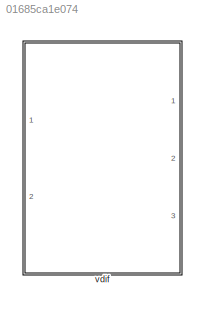
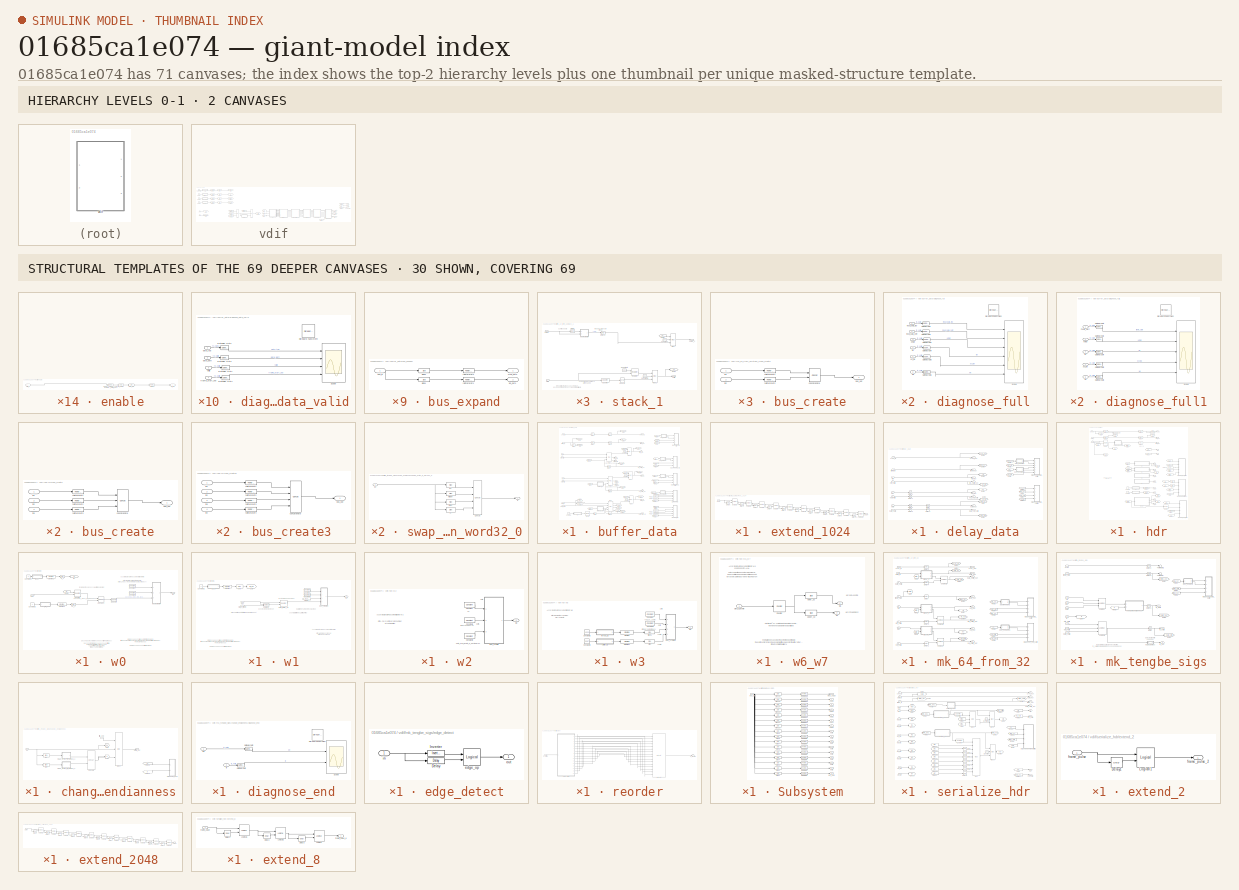
[diagram: thumbnail index - top-2 hierarchy levels (2 canvases) + 30 structural-template representatives of the remaining 69 canvases]
MODEL slx_01685ca1e074
KIND library
BLOCK [SubSystem] vdif
  FunctionWithSeparateData = off
  MaskHideContents = off
  MinAlgLoopOccurrences = off
  Opaque = off
  Ports = [2, 3]
  PropExecContextOutsideSubsystem = off
  RTWSystemCode = Auto
  RequestExecContextInheritance = off
BLOCK [Constant] vdif/Constant
  Value = 0
BLOCK [Constant] vdif/Constant2
  Value = 0
BLOCK [Constant] vdif/Constant3
  Value = 0
BLOCK [From] vdif/From
  GotoTag = tx_data
BLOCK [From] vdif/From1
  GotoTag = tx_valid
BLOCK [From] vdif/From16
  GotoTag = sync
BLOCK [From] vdif/From17
  GotoTag = data
BLOCK [From] vdif/From2
  GotoTag = tx_eof
BLOCK [From] vdif/From3
  GotoTag = real_data
BLOCK [From] vdif/From4
  GotoTag = le
BLOCK [From] vdif/From52
  GotoTag = reorder
BLOCK [From] vdif/From53
  GotoTag = use_test
BLOCK [From] vdif/From54
  GotoTag = en
BLOCK [Goto] vdif/Goto1
  GotoTag = tx_data
BLOCK [Goto] vdif/Goto11
  GotoTag = data
BLOCK [Goto] vdif/Goto12
  GotoTag = le
BLOCK [Goto] vdif/Goto13
  GotoTag = sync
BLOCK [Goto] vdif/Goto2
  GotoTag = tx_valid
BLOCK [Goto] vdif/Goto21
  GotoTag = reorder
BLOCK [Goto] vdif/Goto22
  GotoTag = use_test
BLOCK [Goto] vdif/Goto3
  GotoTag = tx_eof
BLOCK [Goto] vdif/Goto7
  GotoTag = real_data
BLOCK [Goto] vdif/Goto8
  GotoTag = en
BLOCK [Reference] vdif/Mux  REF=xbsIndex_r4/Mux
  Ports = [3, 1]
  SourceBlock = xbsIndex_r4/Mux
  SourceType = Xilinx Bus Multiplexer Block
  arith_type = Unsigned
  bin_pt = 14
  block_type = mux
  dbl_ovrd = off
  en = off
  has_advanced_control = 0
  inputs = 2
  latency = 0
  n_bits = 16
  overflow = Wrap
  precision = Full
  quantization = Truncate
  sg_icon_stat = 45,154,3,1,white,blue,3,eb98d690,right,,[ ],[ ]
  sg_mask_display = fprintf('','COMMENT: begin icon graphics');\npatch([0 45 45 0 0 ],[0 22 132 154 0 ],[0.77 0.82 0.91 ]);\nplot([0 45 45 0 0 ],[0 22 132 154 0 ]);\npatch([8.65 17.32 23.32 29.32 35.32 23.32 14.65 8.65 ],[83.66 83.66 89.66 83.66 89.66 89.66 89.66 83.66 ],[1 1 1 ]);\npatch([14.65 23.32 17.32 8.65 14.65 ],[77.66 77.66 83.66 83.66 77.66 ],[0.931 0.946 0.973 ]);\npatch([8.65 17.32 23.32 14.65 8.65 ],[71.66 71...<+448ch>
  sggui_pos = -1,-1,-1,-1
  xl_area = [0,0,0,0,0,0,0]
  xl_use_area = off
BLOCK [Reference] vdif/Mux1  REF=xbsIndex_r4/Mux
  Ports = [3, 1]
  SourceBlock = xbsIndex_r4/Mux
  SourceType = Xilinx Bus Multiplexer Block
  arith_type = Unsigned
  bin_pt = 14
  block_type = mux
  dbl_ovrd = off
  en = off
  has_advanced_control = 0
  inputs = 2
  latency = 0
  n_bits = 16
  overflow = Wrap
  precision = Full
  quantization = Truncate
  sg_icon_stat = 45,154,3,1,white,blue,3,eb98d690,right,,[ ],[ ]
  sg_mask_display = fprintf('','COMMENT: begin icon graphics');\npatch([0 45 45 0 0 ],[0 22 132 154 0 ],[0.77 0.82 0.91 ]);\nplot([0 45 45 0 0 ],[0 22 132 154 0 ]);\npatch([8.65 17.32 23.32 29.32 35.32 23.32 14.65 8.65 ],[83.66 83.66 89.66 83.66 89.66 89.66 89.66 83.66 ],[1 1 1 ]);\npatch([14.65 23.32 17.32 8.65 14.65 ],[77.66 77.66 83.66 83.66 77.66 ],[0.931 0.946 0.973 ]);\npatch([8.65 17.32 23.32 14.65 8.65 ],[71.66 71...<+448ch>
  sggui_pos = -1,-1,-1,-1
  xl_area = [0,0,0,0,0,0,0]
  xl_use_area = off
BLOCK [DiscretePulseGenerator] vdif/Pulse Generator
  Period = 8000
  PhaseDelay = 1001
  Ports = [0, 1]
  PulseWidth = 2000
BLOCK [Reference] vdif/Slice1  REF=xbsIndex_r4/Slice
  Ports = [1, 1]
  SourceBlock = xbsIndex_r4/Slice
  SourceType = Xilinx Bit Slice Extractor Block
  base0 = LSB of Input
  base1 = MSB of Input
  bit0 = 0
  bit1 = 0
  block_type = slice
  block_version = 11.4
  boolean_output = on
  dbl_ovrd = off
  has_advanced_control = 0
  infoedit = Extracts a given range of bits from each input sample and presents it at the output.  The output type is ordinarily unsigned with binary point at zero, but can be Boolean when the slice is one bit wide.<br><br>Hardware notes: In hardware this block costs nothing.  <repeated x70 — deduplicated; at blocks: Slice1, Slice3, Slice4, Slice6, Slice, slice1, slice2, slice_reg, 29_1, b_1, bott, lower_32, upper_32, hi, low, midhi, +16 more>
  mode = Lower Bit Location + Width
  nbits = 1
  sg_icon_stat = 75,26,1,1,white,blue,0,1fd851a7,right,,[ ],[ ]
  sg_mask_display = fprintf('','COMMENT: begin icon graphics');\npatch([0 75 75 0 0 ],[0 0 26 26 0 ],[0.77 0.82 0.91 ]);\nplot([0 75 75 0 0 ],[0 0 26 26 0 ]);\npatch([30.325 34.66 37.66 40.66 43.66 37.66 33.325 30.325 ],[16.33 16.33 19.33 16.33 19.33 19.33 19.33 16.33 ],[1 1 1 ]);\npatch([33.325 37.66 34.66 30.325 33.325 ],[13.33 13.33 16.33 16.33 13.33 ],[0.931 0.946 0.973 ]);\npatch([30.325 34.66 37.66 33.325 30.325 ],[...<+328ch>  <repeated x4 — deduplicated; at blocks: Slice1, Slice3, Slice4, Slice6>
  sggui_pos = 20,20,631,621
BLOCK [Reference] vdif/Slice3  REF=xbsIndex_r4/Slice
  Ports = [1, 1]
  SourceBlock = xbsIndex_r4/Slice
  SourceType = Xilinx Bit Slice Extractor Block
  base0 = LSB of Input
  base1 = MSB of Input
  bit0 = 0
  bit1 = 0
  block_type = slice
  block_version = 11.4
  boolean_output = off
  dbl_ovrd = off
  has_advanced_control = 0
  mode = Lower Bit Location + Width
  nbits = 1
  sg_icon_stat = 75,26,1,1,white,blue,0,1fd851a7,right,,[ ],[ ]
  sggui_pos = 20,20,631,621
BLOCK [Reference] vdif/Slice4  REF=xbsIndex_r4/Slice
  Ports = [1, 1]
  SourceBlock = xbsIndex_r4/Slice
  SourceType = Xilinx Bit Slice Extractor Block
  base0 = LSB of Input
  base1 = MSB of Input
  bit0 = 0
  bit1 = 0
  block_type = slice
  boolean_output = off
  dbl_ovrd = off
  has_advanced_control = 0
  mode = Lower Bit Location + Width
  nbits = 1
  sg_icon_stat = 75,26,1,1,white,blue,0,1fd851a7,right,,[ ],[ ]
  sggui_pos = 20,45,591,503
BLOCK [Reference] vdif/Slice6  REF=xbsIndex_r4/Slice
  Ports = [1, 1]
  SourceBlock = xbsIndex_r4/Slice
  SourceType = Xilinx Bit Slice Extractor Block
  base0 = LSB of Input
  base1 = MSB of Input
  bit0 = 0
  bit1 = 0
  block_type = slice
  block_version = 11.4
  boolean_output = off
  dbl_ovrd = off
  has_advanced_control = 0
  mode = Lower Bit Location + Width
  nbits = 1
  sg_icon_stat = 75,26,1,1,white,blue,0,1fd851a7,right,,[ ],[ ]
  sggui_pos = 20,20,631,621
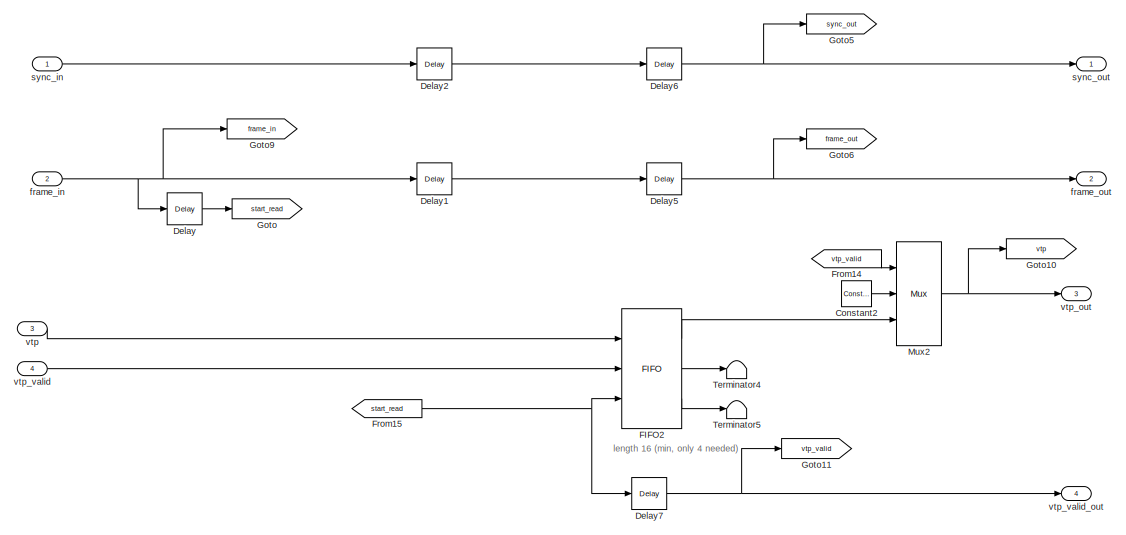
[diagram: vdif/buffer_data - part 1/3, top center region]
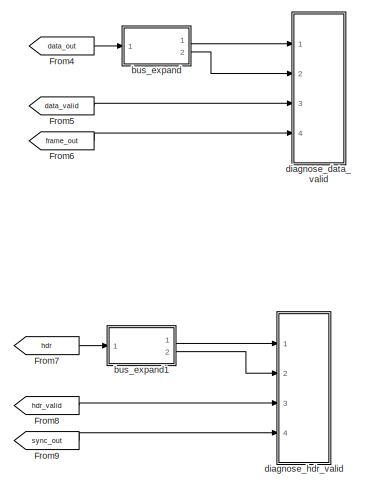
[diagram: vdif/buffer_data - part 2/3, top right region]
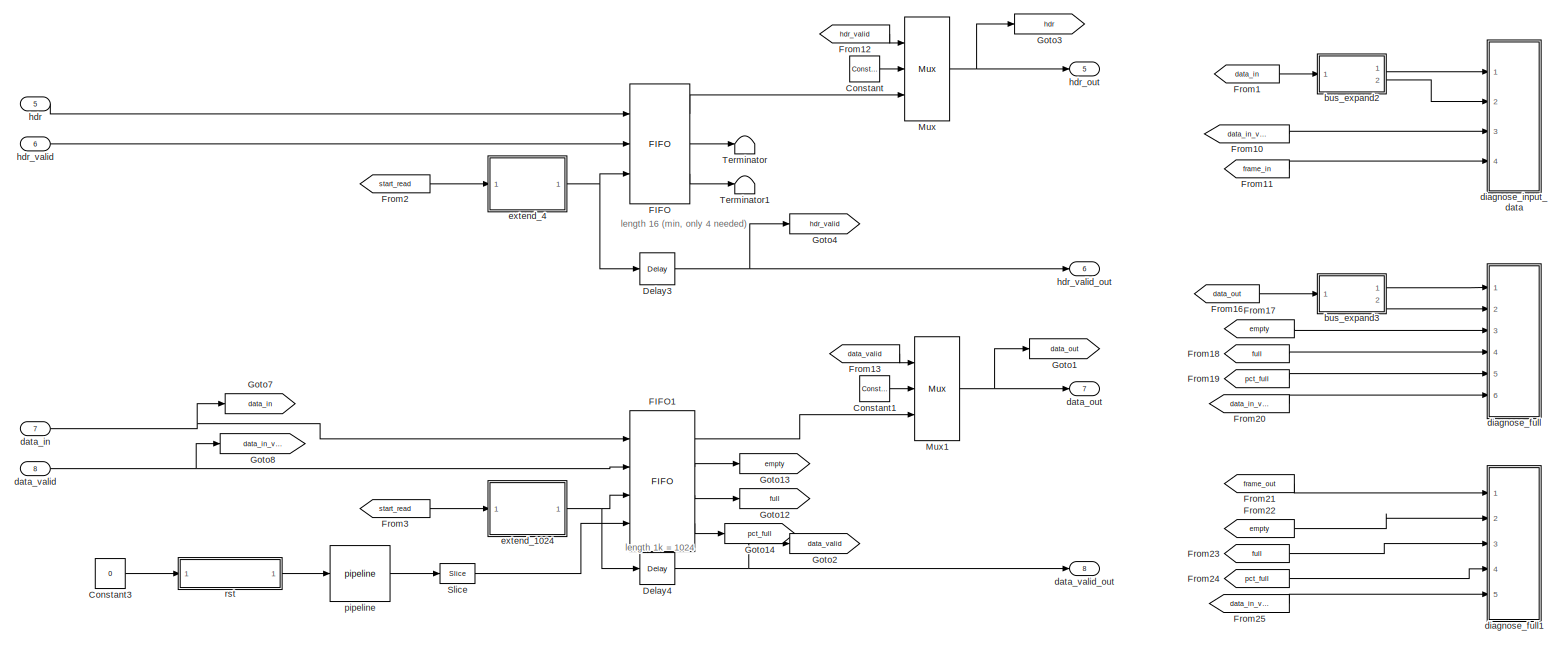
[diagram: vdif/buffer_data - part 3/3, full width, bottom band]
BLOCK [SubSystem] vdif/buffer_data
  FunctionWithSeparateData = off
  MaskHideContents = off
  MinAlgLoopOccurrences = off
  Opaque = off
  Ports = [8, 8]
  PropExecContextOutsideSubsystem = off
  RTWSystemCode = Auto
  RequestExecContextInheritance = off
BLOCK [Reference] vdif/buffer_data/Constant  REF=xbsIndex_r4/Constant
  Ports = [0, 1]
  SourceBlock = xbsIndex_r4/Constant
  SourceType = Xilinx Constant Block Block
  arith_type = Unsigned
  bin_pt = 0
  block_type = constant
  carry = CIN
  const = 0
  dbl_ovrd = off
  dsp48_infoedit = The use of this block for DSP48 instructions is deprecated.  Please use the Opmode block.
  equ = P=C
  exp_width = 8
  explicit_period = on
  frac_width = 24
  gui_display_data_type = Fixed-point
  has_advanced_control = 0
  inp1 = P
  inp2 = PCIN>>17
  n_bits = 64
  opr = +
  opselect = C
  period = 1
  preci_type = Single
  sg_icon_stat = 30,26,0,1,white,blue,0,bf4ddd8b,right,,[ ],[ ]
  sg_mask_display = fprintf('','COMMENT: begin icon graphics');\npatch([0 30 30 0 0 ],[0 0 26 26 0 ],[0.77 0.82 0.91 ]);\nplot([0 30 30 0 0 ],[0 0 26 26 0 ]);\npatch([8.325 12.66 15.66 18.66 21.66 15.66 11.325 8.325 ],[16.33 16.33 19.33 16.33 19.33 19.33 19.33 16.33 ],[1 1 1 ]);\npatch([11.325 15.66 12.66 8.325 11.325 ],[13.33 13.33 16.33 16.33 13.33 ],[0.931 0.946 0.973 ]);\npatch([8.325 12.66 15.66 11.325 8.325 ],[10.33...<+317ch>  <repeated x9 — deduplicated; at blocks: Constant, Constant1, Constant2>
  sggui_pos = -1,-1,-1,-1
BLOCK [Reference] vdif/buffer_data/Constant1  REF=xbsIndex_r4/Constant
  Ports = [0, 1]
  SourceBlock = xbsIndex_r4/Constant
  SourceType = Xilinx Constant Block Block
  arith_type = Unsigned
  bin_pt = 0
  block_type = constant
  carry = CIN
  const = 0
  dbl_ovrd = off
  dsp48_infoedit = The use of this block for DSP48 instructions is deprecated.  Please use the Opmode block.
  equ = P=C
  exp_width = 8
  explicit_period = on
  frac_width = 24
  gui_display_data_type = Fixed-point
  has_advanced_control = 0
  inp1 = P
  inp2 = PCIN>>17
  n_bits = 64
  opr = +
  opselect = C
  period = 1
  preci_type = Single
  sg_icon_stat = 30,26,0,1,white,blue,0,bf4ddd8b,right,,[ ],[ ]
  sggui_pos = -1,-1,-1,-1
BLOCK [Reference] vdif/buffer_data/Constant2  REF=xbsIndex_r4/Constant
  Ports = [0, 1]
  SourceBlock = xbsIndex_r4/Constant
  SourceType = Xilinx Constant Block Block
  arith_type = Unsigned
  bin_pt = 0
  block_type = constant
  carry = CIN
  const = 0
  dbl_ovrd = off
  dsp48_infoedit = The use of this block for DSP48 instructions is deprecated.  Please use the Opmode block.
  equ = P=C
  exp_width = 8
  explicit_period = on
  frac_width = 24
  gui_display_data_type = Fixed-point
  has_advanced_control = 0
  inp1 = P
  inp2 = PCIN>>17
  n_bits = 64
  opr = +
  opselect = C
  period = 1
  preci_type = Single
  sg_icon_stat = 30,26,0,1,white,blue,0,bf4ddd8b,right,,[ ],[ ]
  sggui_pos = -1,-1,-1,-1
BLOCK [Constant] vdif/buffer_data/Constant3
  Value = 0
BLOCK [Reference] vdif/buffer_data/Delay  REF=xbsIndex_r4/Delay
  Ports = [1, 1]
  SourceBlock = xbsIndex_r4/Delay
  SourceType = Xilinx Delay Block
  block_type = delay
  dbl_ovrd = off
  en = off
  has_advanced_control = 0
  infoedit = Hardware notes: A delay line is a chain, each link of which is an SRL16 followed by a flip-flop.
  infoeditControl = Selection of Reset will increase slice count due to use of real FFs and instead of SRLs
  latency = 1024
  reg_retiming = off
  rst = off
  sg_icon_stat = 35,32,1,1,white,blue,0,949cb0f6,right,,[ ],[ ]
  sg_mask_display = fprintf('','COMMENT: begin icon graphics');\npatch([0 35 35 0 0 ],[0 0 32 32 0 ],[0.77 0.82 0.91 ]);\nplot([0 35 35 0 0 ],[0 0 32 32 0 ]);\npatch([8.1 13.88 17.88 21.88 25.88 17.88 12.1 8.1 ],[20.44 20.44 24.44 20.44 24.44 24.44 24.44 20.44 ],[1 1 1 ]);\npatch([12.1 17.88 13.88 8.1 12.1 ],[16.44 16.44 20.44 20.44 16.44 ],[0.931 0.946 0.973 ]);\npatch([8.1 13.88 17.88 12.1 8.1 ],[12.44 12.44 16.44 16.44...<+301ch>  <repeated x4 — deduplicated; at blocks: Delay, Delay1, Delay2, Delay11>
  sggui_pos = 20,45,451,405
  xl_area = [0,0,0,0,0,0,0]
  xl_use_area = off
BLOCK [Reference] vdif/buffer_data/Delay1  REF=xbsIndex_r4/Delay
  Ports = [1, 1]
  SourceBlock = xbsIndex_r4/Delay
  SourceType = Xilinx Delay Block
  block_type = delay
  dbl_ovrd = off
  en = off
  has_advanced_control = 0
  infoedit = Hardware notes: A delay line is a chain, each link of which is an SRL16 followed by a flip-flop.
  infoeditControl = Selection of Reset will increase slice count due to use of real FFs and instead of SRLs
  latency = 1024
  reg_retiming = off
  rst = off
  sg_icon_stat = 35,32,1,1,white,blue,0,949cb0f6,right,,[ ],[ ]
  sggui_pos = 20,45,451,405
  xl_area = [0,0,0,0,0,0,0]
  xl_use_area = off
BLOCK [Reference] vdif/buffer_data/Delay2  REF=xbsIndex_r4/Delay
  Ports = [1, 1]
  SourceBlock = xbsIndex_r4/Delay
  SourceType = Xilinx Delay Block
  block_type = delay
  dbl_ovrd = off
  en = off
  has_advanced_control = 0
  infoedit = Hardware notes: A delay line is a chain, each link of which is an SRL16 followed by a flip-flop.
  infoeditControl = Selection of Reset will increase slice count due to use of real FFs and instead of SRLs
  latency = 1024
  reg_retiming = off
  rst = off
  sg_icon_stat = 35,32,1,1,white,blue,0,949cb0f6,right,,[ ],[ ]
  sggui_pos = 20,45,451,405
  xl_area = [0,0,0,0,0,0,0]
  xl_use_area = off
BLOCK [Reference] vdif/buffer_data/Delay3  REF=xbsIndex_r4/Delay
  Ports = [1, 1]
  SourceBlock = xbsIndex_r4/Delay
  SourceType = Xilinx Delay Block
  block_type = delay
  dbl_ovrd = off
  en = off
  has_advanced_control = 0
  infoedit = Hardware notes: A delay line is a chain, each link of which is an SRL16 followed by a flip-flop.
  infoeditControl = Selection of Reset will increase slice count due to use of real FFs and instead of SRLs
  latency = 1
  reg_retiming = off
  rst = off
  sg_icon_stat = 35,32,1,1,white,blue,0,07b98262,right,,[ ],[ ]
  sg_mask_display = fprintf('','COMMENT: begin icon graphics');\npatch([0 35 35 0 0 ],[0 0 32 32 0 ],[0.77 0.82 0.91 ]);\nplot([0 35 35 0 0 ],[0 0 32 32 0 ]);\npatch([8.1 13.88 17.88 21.88 25.88 17.88 12.1 8.1 ],[20.44 20.44 24.44 20.44 24.44 24.44 24.44 20.44 ],[1 1 1 ]);\npatch([12.1 17.88 13.88 8.1 12.1 ],[16.44 16.44 20.44 20.44 16.44 ],[0.931 0.946 0.973 ]);\npatch([8.1 13.88 17.88 12.1 8.1 ],[12.44 12.44 16.44 16.44...<+298ch>  <repeated x26 — deduplicated; at blocks: Delay3, Delay4, Delay5, Delay6, Delay7, Delay1, Delay2, Delay>
  sggui_pos = 20,45,451,405
  xl_area = [0,0,0,0,0,0,0]
  xl_use_area = off
BLOCK [Reference] vdif/buffer_data/Delay4  REF=xbsIndex_r4/Delay
  Ports = [1, 1]
  SourceBlock = xbsIndex_r4/Delay
  SourceType = Xilinx Delay Block
  block_type = delay
  dbl_ovrd = off
  en = off
  has_advanced_control = 0
  infoedit = Hardware notes: A delay line is a chain, each link of which is an SRL16 followed by a flip-flop.
  infoeditControl = Selection of Reset will increase slice count due to use of real FFs and instead of SRLs
  latency = 1
  reg_retiming = off
  rst = off
  sg_icon_stat = 35,32,1,1,white,blue,0,07b98262,right,,[ ],[ ]
  sggui_pos = 20,45,451,405
  xl_area = [0,0,0,0,0,0,0]
  xl_use_area = off
BLOCK [Reference] vdif/buffer_data/Delay5  REF=xbsIndex_r4/Delay
  Ports = [1, 1]
  SourceBlock = xbsIndex_r4/Delay
  SourceType = Xilinx Delay Block
  block_type = delay
  dbl_ovrd = off
  en = off
  has_advanced_control = 0
  infoedit = Hardware notes: A delay line is a chain, each link of which is an SRL16 followed by a flip-flop.
  infoeditControl = Selection of Reset will increase slice count due to use of real FFs and instead of SRLs
  latency = 1
  reg_retiming = off
  rst = off
  sg_icon_stat = 35,32,1,1,white,blue,0,07b98262,right,,[ ],[ ]
  sggui_pos = 20,45,451,405
  xl_area = [0,0,0,0,0,0,0]
  xl_use_area = off
BLOCK [Reference] vdif/buffer_data/Delay6  REF=xbsIndex_r4/Delay
  Ports = [1, 1]
  SourceBlock = xbsIndex_r4/Delay
  SourceType = Xilinx Delay Block
  block_type = delay
  dbl_ovrd = off
  en = off
  has_advanced_control = 0
  infoedit = Hardware notes: A delay line is a chain, each link of which is an SRL16 followed by a flip-flop.
  infoeditControl = Selection of Reset will increase slice count due to use of real FFs and instead of SRLs
  latency = 1
  reg_retiming = off
  rst = off
  sg_icon_stat = 35,32,1,1,white,blue,0,07b98262,right,,[ ],[ ]
  sggui_pos = 20,45,451,405
  xl_area = [0,0,0,0,0,0,0]
  xl_use_area = off
BLOCK [Reference] vdif/buffer_data/Delay7  REF=xbsIndex_r4/Delay
  Ports = [1, 1]
  SourceBlock = xbsIndex_r4/Delay
  SourceType = Xilinx Delay Block
  block_type = delay
  dbl_ovrd = off
  en = off
  has_advanced_control = 0
  infoedit = Hardware notes: A delay line is a chain, each link of which is an SRL16 followed by a flip-flop.
  infoeditControl = Selection of Reset will increase slice count due to use of real FFs and instead of SRLs
  latency = 1
  reg_retiming = off
  rst = off
  sg_icon_stat = 35,32,1,1,white,blue,0,07b98262,right,,[ ],[ ]
  sggui_pos = 20,45,451,405
  xl_area = [0,0,0,0,0,0,0]
  xl_use_area = off
BLOCK [Reference] vdif/buffer_data/FIFO  REF=xbsIndex_r4/FIFO
  Ports = [3, 3]
  SourceBlock = xbsIndex_r4/FIFO
  SourceType = Xilinx FIFO Block Block
  almost_empty_thresh = 2
  almost_full_thresh = 14
  block_type = fifo
  dbl_ovrd = off
  depth = 16
  embedded_registers = off
  en = off
  explicit_period = off
  has_advanced_control = 0
  infoedit1 = Available only for V4, V5, V6, V7, K7, A7 and Zynq devices.
  mem_type = Block RAM
  percent_nbits = 1
  performance_options = Standard_FIFO
  rst = off
  sg_icon_stat = 60,120,3,3,white,blue,0,375ec951,right,,[ ],[ ]
  sg_mask_display = fprintf('','COMMENT: begin icon graphics');\npatch([0 60 60 0 0 ],[0 0 120 120 0 ],[0.77 0.82 0.91 ]);\nplot([0 60 60 0 0 ],[0 0 120 120 0 ]);\npatch([12.2 23.76 31.76 39.76 47.76 31.76 20.2 12.2 ],[68.88 68.88 76.88 68.88 76.88 76.88 76.88 68.88 ],[1 1 1 ]);\npatch([20.2 31.76 23.76 12.2 20.2 ],[60.88 60.88 68.88 68.88 60.88 ],[0.931 0.946 0.973 ]);\npatch([12.2 23.76 31.76 20.2 12.2 ],[52.88 52.88 60...<+533ch>
  sggui_pos = 20,45,532,781
  use_almost_empty = off
  use_almost_full = off
  use_dcount = off
  use_percent_full_port = off
  xl_area = [0,0,0,0,0,0,0]
  xl_use_area = off
BLOCK [Reference] vdif/buffer_data/FIFO1  REF=xbsIndex_r4/FIFO
  Ports = [4, 4]
  SourceBlock = xbsIndex_r4/FIFO
  SourceType = Xilinx FIFO Block Block
  almost_empty_thresh = 2
  almost_full_thresh = 14
  block_type = fifo
  dbl_ovrd = off
  depth = 1K
  embedded_registers = off
  en = off
  explicit_period = off
  has_advanced_control = 0
  infoedit1 = Available only for V4, V5, V6, V7, K7, A7 and Zynq devices.
  mem_type = Block RAM
  percent_nbits = 6
  performance_options = Standard_FIFO
  rst = on
  sg_icon_stat = 65,141,4,4,white,blue,0,7b30cb60,right,,[ ],[ ]
  sg_mask_display = fprintf('','COMMENT: begin icon graphics');\npatch([0 65 65 0 0 ],[0 0 141 141 0 ],[0.77 0.82 0.91 ]);\nplot([0 65 65 0 0 ],[0 0 141 141 0 ]);\npatch([11.975 24.98 33.98 42.98 51.98 33.98 20.975 11.975 ],[79.99 79.99 88.99 79.99 88.99 88.99 88.99 79.99 ],[1 1 1 ]);\npatch([20.975 33.98 24.98 11.975 20.975 ],[70.99 70.99 79.99 79.99 70.99 ],[0.931 0.946 0.973 ]);\npatch([11.975 24.98 33.98 20.975 11.975...<+648ch>
  sggui_pos = 20,45,532,781
  use_almost_empty = off
  use_almost_full = off
  use_dcount = off
  use_percent_full_port = on
  xl_area = [0,0,0,0,0,0,0]
  xl_use_area = off
BLOCK [Reference] vdif/buffer_data/FIFO2  REF=xbsIndex_r4/FIFO
  Ports = [3, 3]
  SourceBlock = xbsIndex_r4/FIFO
  SourceType = Xilinx FIFO Block Block
  almost_empty_thresh = 2
  almost_full_thresh = 14
  block_type = fifo
  dbl_ovrd = off
  depth = 16
  embedded_registers = off
  en = off
  explicit_period = off
  has_advanced_control = 0
  infoedit1 = Available only for V4, V5, V6, V7, K7, A7 and Zynq devices.
  mem_type = Block RAM
  percent_nbits = 1
  performance_options = Standard_FIFO
  rst = off
  sg_icon_stat = 60,120,3,3,white,blue,0,375ec951,right,,[ ],[ ]
  sg_mask_display = fprintf('','COMMENT: begin icon graphics');\npatch([0 60 60 0 0 ],[0 0 120 120 0 ],[0.77 0.82 0.91 ]);\nplot([0 60 60 0 0 ],[0 0 120 120 0 ]);\npatch([12.2 23.76 31.76 39.76 47.76 31.76 20.2 12.2 ],[68.88 68.88 76.88 68.88 76.88 76.88 76.88 68.88 ],[1 1 1 ]);\npatch([20.2 31.76 23.76 12.2 20.2 ],[60.88 60.88 68.88 68.88 60.88 ],[0.931 0.946 0.973 ]);\npatch([12.2 23.76 31.76 20.2 12.2 ],[52.88 52.88 60...<+533ch>
  sggui_pos = 20,45,532,781
  use_almost_empty = off
  use_almost_full = off
  use_dcount = off
  use_percent_full_port = off
  xl_area = [0,0,0,0,0,0,0]
  xl_use_area = off
BLOCK [From] vdif/buffer_data/From1
  GotoTag = data_in
BLOCK [From] vdif/buffer_data/From10
  GotoTag = data_in_valid
BLOCK [From] vdif/buffer_data/From11
  GotoTag = frame_in
BLOCK [From] vdif/buffer_data/From12
  GotoTag = hdr_valid
BLOCK [From] vdif/buffer_data/From13
  GotoTag = data_valid
BLOCK [From] vdif/buffer_data/From14
  GotoTag = vtp_valid
BLOCK [From] vdif/buffer_data/From15
  GotoTag = start_read
BLOCK [From] vdif/buffer_data/From16
  GotoTag = data_out
BLOCK [From] vdif/buffer_data/From17
  GotoTag = empty
BLOCK [From] vdif/buffer_data/From18
  GotoTag = full
BLOCK [From] vdif/buffer_data/From19
  GotoTag = pct_full
BLOCK [From] vdif/buffer_data/From2
  GotoTag = start_read
BLOCK [From] vdif/buffer_data/From20
  GotoTag = data_in_valid
BLOCK [From] vdif/buffer_data/From21
  GotoTag = frame_out
BLOCK [From] vdif/buffer_data/From22
  GotoTag = empty
BLOCK [From] vdif/buffer_data/From23
  GotoTag = full
BLOCK [From] vdif/buffer_data/From24
  GotoTag = pct_full
BLOCK [From] vdif/buffer_data/From25
  GotoTag = data_in_valid
BLOCK [From] vdif/buffer_data/From3
  GotoTag = start_read
BLOCK [From] vdif/buffer_data/From4
  GotoTag = data_out
BLOCK [From] vdif/buffer_data/From5
  GotoTag = data_valid
BLOCK [From] vdif/buffer_data/From6
  GotoTag = frame_out
BLOCK [From] vdif/buffer_data/From7
  GotoTag = hdr
BLOCK [From] vdif/buffer_data/From8
  GotoTag = hdr_valid
BLOCK [From] vdif/buffer_data/From9
  GotoTag = sync_out
BLOCK [Goto] vdif/buffer_data/Goto
  GotoTag = start_read
BLOCK [Goto] vdif/buffer_data/Goto1
  GotoTag = data_out
BLOCK [Goto] vdif/buffer_data/Goto10
  GotoTag = vtp
BLOCK [Goto] vdif/buffer_data/Goto11
  GotoTag = vtp_valid
BLOCK [Goto] vdif/buffer_data/Goto12
  GotoTag = full
BLOCK [Goto] vdif/buffer_data/Goto13
  GotoTag = empty
BLOCK [Goto] vdif/buffer_data/Goto14
  GotoTag = pct_full
BLOCK [Goto] vdif/buffer_data/Goto2
  GotoTag = data_valid
BLOCK [Goto] vdif/buffer_data/Goto3
  GotoTag = hdr
BLOCK [Goto] vdif/buffer_data/Goto4
  GotoTag = hdr_valid
BLOCK [Goto] vdif/buffer_data/Goto5
  GotoTag = sync_out
BLOCK [Goto] vdif/buffer_data/Goto6
  GotoTag = frame_out
BLOCK [Goto] vdif/buffer_data/Goto7
  GotoTag = data_in
BLOCK [Goto] vdif/buffer_data/Goto8
  GotoTag = data_in_valid
BLOCK [Goto] vdif/buffer_data/Goto9
  GotoTag = frame_in
BLOCK [Reference] vdif/buffer_data/Mux  REF=xbsIndex_r4/Mux
  Ports = [3, 1]
  SourceBlock = xbsIndex_r4/Mux
  SourceType = Xilinx Bus Multiplexer Block
  arith_type = Unsigned
  bin_pt = 14
  block_type = mux
  dbl_ovrd = off
  en = off
  has_advanced_control = 0
  inputs = 2
  latency = 0
  n_bits = 16
  overflow = Wrap
  precision = Full
  quantization = Truncate
  sg_icon_stat = 45,104,3,1,white,blue,3,eb98d690,right,,[ ],[ ]
  sg_mask_display = fprintf('','COMMENT: begin icon graphics');\npatch([0 45 45 0 0 ],[0 14.8571 89.1429 104 0 ],[0.77 0.82 0.91 ]);\nplot([0 45 45 0 0 ],[0 14.8571 89.1429 104 0 ]);\npatch([8.65 17.32 23.32 29.32 35.32 23.32 14.65 8.65 ],[58.66 58.66 64.66 58.66 64.66 64.66 64.66 58.66 ],[1 1 1 ]);\npatch([14.65 23.32 17.32 8.65 14.65 ],[52.66 52.66 58.66 58.66 52.66 ],[0.931 0.946 0.973 ]);\npatch([8.65 17.32 23.32 14.6...<+466ch>  <repeated x9 — deduplicated; at blocks: Mux, Mux1, Mux2>
  sggui_pos = -1,-1,-1,-1
  xl_area = [0,0,0,0,0,0,0]
  xl_use_area = off
BLOCK [Reference] vdif/buffer_data/Mux1  REF=xbsIndex_r4/Mux
  Ports = [3, 1]
  SourceBlock = xbsIndex_r4/Mux
  SourceType = Xilinx Bus Multiplexer Block
  arith_type = Unsigned
  bin_pt = 14
  block_type = mux
  dbl_ovrd = off
  en = off
  has_advanced_control = 0
  inputs = 2
  latency = 0
  n_bits = 16
  overflow = Wrap
  precision = Full
  quantization = Truncate
  sg_icon_stat = 45,104,3,1,white,blue,3,eb98d690,right,,[ ],[ ]
  sggui_pos = -1,-1,-1,-1
  xl_area = [0,0,0,0,0,0,0]
  xl_use_area = off
BLOCK [Reference] vdif/buffer_data/Mux2  REF=xbsIndex_r4/Mux
  Ports = [3, 1]
  SourceBlock = xbsIndex_r4/Mux
  SourceType = Xilinx Bus Multiplexer Block
  arith_type = Unsigned
  bin_pt = 14
  block_type = mux
  dbl_ovrd = off
  en = off
  has_advanced_control = 0
  inputs = 2
  latency = 0
  n_bits = 16
  overflow = Wrap
  precision = Full
  quantization = Truncate
  sg_icon_stat = 45,104,3,1,white,blue,3,eb98d690,right,,[ ],[ ]
  sggui_pos = -1,-1,-1,-1
  xl_area = [0,0,0,0,0,0,0]
  xl_use_area = off
BLOCK [Reference] vdif/buffer_data/Slice  REF=xbsIndex_r4/Slice
  Ports = [1, 1]
  SourceBlock = xbsIndex_r4/Slice
  SourceType = Xilinx Bit Slice Extractor Block
  base0 = LSB of Input
  base1 = LSB of Input
  bit0 = 0
  bit1 = 0
  block_type = slice
  boolean_output = on
  dbl_ovrd = off
  has_advanced_control = 0
  mode = Lower Bit Location + Width
  nbits = 1
  sg_icon_stat = 35,20,1,1,white,blue,0,1fd851a7,right,,[ ],[ ]
  sg_mask_display = fprintf('','COMMENT: begin icon graphics');\npatch([0 35 35 0 0 ],[0 0 20 20 0 ],[0.77 0.82 0.91 ]);\nplot([0 35 35 0 0 ],[0 0 20 20 0 ]);\npatch([12.55 15.44 17.44 19.44 21.44 17.44 14.55 12.55 ],[12.22 12.22 14.22 12.22 14.22 14.22 14.22 12.22 ],[1 1 1 ]);\npatch([14.55 17.44 15.44 12.55 14.55 ],[10.22 10.22 12.22 12.22 10.22 ],[0.931 0.946 0.973 ]);\npatch([12.55 15.44 17.44 14.55 12.55 ],[8.22 8.22...<+310ch>
  sggui_pos = 20,45,591,503
BLOCK [Terminator] vdif/buffer_data/Terminator
BLOCK [Terminator] vdif/buffer_data/Terminator1
BLOCK [Terminator] vdif/buffer_data/Terminator4
BLOCK [Terminator] vdif/buffer_data/Terminator5
BLOCK [SubSystem] vdif/buffer_data/bus_expand
  AncestorBlock = casper_library_flow_control/bus_expand
  AttributesFormatString = 2 outputs
  FunctionWithSeparateData = off
  MaskHideContents = off
  MinAlgLoopOccurrences = off
  Opaque = off
  Ports = [1, 2]
  PropExecContextOutsideSubsystem = off
  RTWSystemCode = Auto
  RequestExecContextInheritance = off
  UserDataPersistent = on
BLOCK [Inport] vdif/buffer_data/bus_expand/bus_in
  IconDisplay = Port number
BLOCK [Outport] vdif/buffer_data/bus_expand/lsb_out1
  IconDisplay = Port number
  Port = 2
BLOCK [Outport] vdif/buffer_data/bus_expand/msb_out2
  IconDisplay = Port number
BLOCK [Reference] vdif/buffer_data/bus_expand/reinterpret1  REF=xbsIndex_r4/Reinterpret
  Ports = [1, 1]
  SourceBlock = xbsIndex_r4/Reinterpret
  SourceType = Xilinx Type Reinterpreter Block
  arith_type = Unsigned
  bin_pt = 0
  block_type = reinterpret
  force_arith_type = on
  force_bin_pt = on
  has_advanced_control = 0
  infoedit = Changes signal type without altering the binary representation.   You can change the signal between signed and unsigned, and relocate the binary point.<br><br>Hardware notes: In hardware this block costs nothing.<br><br>Example:  Suppose the input is 6 bits wide, signed, with 2 fractional bits, and the output is forced to unsigned with 0 fractional bits.  Then an input of -2.0 (1110.00 in binary 2...<+58ch>  <repeated x52 — deduplicated; at blocks: reinterpret1, reinterpret2, reint1, reinterpret3, reinterpret4, reinterpret10, reinterpret11, reinterpret12, reinterpret13, reinterpret14, reinterpret15, reinterpret16, reinterpret5, reinterpret6, reinterpret7, reinterpret8, +1 more>
  sg_icon_stat = 50,20,1,1,white,blue,0,6b04d0b0,right,,[ ],[ ]
  sg_mask_display = fprintf('','COMMENT: begin icon graphics');\npatch([0 50 50 0 0 ],[0 0 20 20 0 ],[0.77 0.82 0.91 ]);\nplot([0 50 50 0 0 ],[0 0 20 20 0 ]);\npatch([20.55 23.44 25.44 27.44 29.44 25.44 22.55 20.55 ],[12.22 12.22 14.22 12.22 14.22 14.22 14.22 12.22 ],[1 1 1 ]);\npatch([22.55 25.44 23.44 20.55 22.55 ],[10.22 10.22 12.22 12.22 10.22 ],[0.931 0.946 0.973 ]);\npatch([20.55 23.44 25.44 22.55 20.55 ],[8.22 8.22...<+300ch>  <repeated x66 — deduplicated; at blocks: reinterpret1, reinterpret2, reint1, reinterpret3, reinterpret4, reinterpret10, reinterpret11, reinterpret12, reinterpret13, reinterpret14, reinterpret15, reinterpret16, reinterpret5, reinterpret6, reinterpret7, reinterpret8, +1 more>
  sggui_pos = -1,-1,-1,-1
BLOCK [Reference] vdif/buffer_data/bus_expand/reinterpret2  REF=xbsIndex_r4/Reinterpret
  Ports = [1, 1]
  SourceBlock = xbsIndex_r4/Reinterpret
  SourceType = Xilinx Type Reinterpreter Block
  arith_type = Unsigned
  bin_pt = 0
  block_type = reinterpret
  force_arith_type = on
  force_bin_pt = on
  has_advanced_control = 0
  sg_icon_stat = 50,20,1,1,white,blue,0,6b04d0b0,right,,[ ],[ ]
  sggui_pos = -1,-1,-1,-1
BLOCK [Reference] vdif/buffer_data/bus_expand/slice1  REF=xbsIndex_r4/Slice
  Ports = [1, 1]
  SourceBlock = xbsIndex_r4/Slice
  SourceType = Xilinx Bit Slice Extractor Block
  base0 = LSB of Input
  base1 = MSB of Input
  bit0 = 0
  bit1 = -16
  block_type = slice
  boolean_output = off
  dbl_ovrd = off
  has_advanced_control = 0
  mode = Upper Bit Location + Width
  nbits = 16
  sg_icon_stat = 50,20,1,1,white,blue,0,1fd851a7,right,,[ ],[ ]
  sg_mask_display = fprintf('','COMMENT: begin icon graphics');\npatch([0 50 50 0 0 ],[0 0 20 20 0 ],[0.77 0.82 0.91 ]);\nplot([0 50 50 0 0 ],[0 0 20 20 0 ]);\npatch([20.55 23.44 25.44 27.44 29.44 25.44 22.55 20.55 ],[12.22 12.22 14.22 12.22 14.22 14.22 14.22 12.22 ],[1 1 1 ]);\npatch([22.55 25.44 23.44 20.55 22.55 ],[10.22 10.22 12.22 12.22 10.22 ],[0.931 0.946 0.973 ]);\npatch([20.55 23.44 25.44 22.55 20.55 ],[8.22 8.22...<+310ch>  <repeated x58 — deduplicated; at blocks: slice1, slice2, io_delay, slice_reg, slice10, slice11, slice12, slice13, slice14, slice15, slice16, slice3, slice4, slice5, slice6, slice7, +2 more>
  sggui_pos = 20,45,543,459
BLOCK [Reference] vdif/buffer_data/bus_expand/slice2  REF=xbsIndex_r4/Slice
  Ports = [1, 1]
  SourceBlock = xbsIndex_r4/Slice
  SourceType = Xilinx Bit Slice Extractor Block
  base0 = LSB of Input
  base1 = MSB of Input
  bit0 = 0
  bit1 = 0
  block_type = slice
  boolean_output = off
  dbl_ovrd = off
  has_advanced_control = 0
  mode = Upper Bit Location + Width
  nbits = 16
  sg_icon_stat = 50,20,1,1,white,blue,0,1fd851a7,right,,[ ],[ ]
  sggui_pos = 20,45,543,459
BLOCK [SubSystem] vdif/buffer_data/bus_expand1
  AncestorBlock = casper_library_flow_control/bus_expand
  AttributesFormatString = 2 outputs
  FunctionWithSeparateData = off
  MaskHideContents = off
  MinAlgLoopOccurrences = off
  Opaque = off
  Ports = [1, 2]
  PropExecContextOutsideSubsystem = off
  RTWSystemCode = Auto
  RequestExecContextInheritance = off
  UserDataPersistent = on
BLOCK [Inport] vdif/buffer_data/bus_expand1/bus_in
  IconDisplay = Port number
BLOCK [Outport] vdif/buffer_data/bus_expand1/lsb_out1
  IconDisplay = Port number
  Port = 2
BLOCK [Outport] vdif/buffer_data/bus_expand1/msb_out2
  IconDisplay = Port number
BLOCK [Reference] vdif/buffer_data/bus_expand1/reinterpret1  REF=xbsIndex_r4/Reinterpret
  Ports = [1, 1]
  SourceBlock = xbsIndex_r4/Reinterpret
  SourceType = Xilinx Type Reinterpreter Block
  arith_type = Unsigned
  bin_pt = 0
  block_type = reinterpret
  force_arith_type = on
  force_bin_pt = on
  has_advanced_control = 0
  sg_icon_stat = 50,20,1,1,white,blue,0,6b04d0b0,right,,[ ],[ ]
  sggui_pos = -1,-1,-1,-1
BLOCK [Reference] vdif/buffer_data/bus_expand1/reinterpret2  REF=xbsIndex_r4/Reinterpret
  Ports = [1, 1]
  SourceBlock = xbsIndex_r4/Reinterpret
  SourceType = Xilinx Type Reinterpreter Block
  arith_type = Unsigned
  bin_pt = 0
  block_type = reinterpret
  force_arith_type = on
  force_bin_pt = on
  has_advanced_control = 0
  sg_icon_stat = 50,20,1,1,white,blue,0,6b04d0b0,right,,[ ],[ ]
  sggui_pos = -1,-1,-1,-1
BLOCK [Reference] vdif/buffer_data/bus_expand1/slice1  REF=xbsIndex_r4/Slice
  Ports = [1, 1]
  SourceBlock = xbsIndex_r4/Slice
  SourceType = Xilinx Bit Slice Extractor Block
  base0 = LSB of Input
  base1 = MSB of Input
  bit0 = 0
  bit1 = -32
  block_type = slice
  boolean_output = off
  dbl_ovrd = off
  has_advanced_control = 0
  mode = Upper Bit Location + Width
  nbits = 32
  sg_icon_stat = 50,20,1,1,white,blue,0,1fd851a7,right,,[ ],[ ]
  sggui_pos = 20,45,591,503
BLOCK [Reference] vdif/buffer_data/bus_expand1/slice2  REF=xbsIndex_r4/Slice
  Ports = [1, 1]
  SourceBlock = xbsIndex_r4/Slice
  SourceType = Xilinx Bit Slice Extractor Block
  base0 = LSB of Input
  base1 = MSB of Input
  bit0 = 0
  bit1 = 0
  block_type = slice
  boolean_output = off
  dbl_ovrd = off
  has_advanced_control = 0
  mode = Upper Bit Location + Width
  nbits = 32
  sg_icon_stat = 50,20,1,1,white,blue,0,1fd851a7,right,,[ ],[ ]
  sggui_pos = 20,45,591,503
BLOCK [SubSystem] vdif/buffer_data/bus_expand2
  AncestorBlock = casper_library_flow_control/bus_expand
  AttributesFormatString = 2 outputs
  FunctionWithSeparateData = off
  MaskHideContents = off
  MinAlgLoopOccurrences = off
  Opaque = off
  Ports = [1, 2]
  PropExecContextOutsideSubsystem = off
  RTWSystemCode = Auto
  RequestExecContextInheritance = off
  UserDataPersistent = on
BLOCK [Inport] vdif/buffer_data/bus_expand2/bus_in
  IconDisplay = Port number
BLOCK [Outport] vdif/buffer_data/bus_expand2/lsb_out1
  IconDisplay = Port number
  Port = 2
BLOCK [Outport] vdif/buffer_data/bus_expand2/msb_out2
  IconDisplay = Port number
BLOCK [Reference] vdif/buffer_data/bus_expand2/reinterpret1  REF=xbsIndex_r4/Reinterpret
  Ports = [1, 1]
  SourceBlock = xbsIndex_r4/Reinterpret
  SourceType = Xilinx Type Reinterpreter Block
  arith_type = Unsigned
  bin_pt = 0
  block_type = reinterpret
  force_arith_type = on
  force_bin_pt = on
  has_advanced_control = 0
  sg_icon_stat = 50,20,1,1,white,blue,0,6b04d0b0,right,,[ ],[ ]
  sggui_pos = -1,-1,-1,-1
BLOCK [Reference] vdif/buffer_data/bus_expand2/reinterpret2  REF=xbsIndex_r4/Reinterpret
  Ports = [1, 1]
  SourceBlock = xbsIndex_r4/Reinterpret
  SourceType = Xilinx Type Reinterpreter Block
  arith_type = Unsigned
  bin_pt = 0
  block_type = reinterpret
  force_arith_type = on
  force_bin_pt = on
  has_advanced_control = 0
  sg_icon_stat = 50,20,1,1,white,blue,0,6b04d0b0,right,,[ ],[ ]
  sggui_pos = -1,-1,-1,-1
BLOCK [Reference] vdif/buffer_data/bus_expand2/slice1  REF=xbsIndex_r4/Slice
  Ports = [1, 1]
  SourceBlock = xbsIndex_r4/Slice
  SourceType = Xilinx Bit Slice Extractor Block
  base0 = LSB of Input
  base1 = MSB of Input
  bit0 = 0
  bit1 = -32
  block_type = slice
  boolean_output = off
  dbl_ovrd = off
  has_advanced_control = 0
  mode = Upper Bit Location + Width
  nbits = 32
  sg_icon_stat = 50,20,1,1,white,blue,0,1fd851a7,right,,[ ],[ ]
  sggui_pos = 20,45,591,503
BLOCK [Reference] vdif/buffer_data/bus_expand2/slice2  REF=xbsIndex_r4/Slice
  Ports = [1, 1]
  SourceBlock = xbsIndex_r4/Slice
  SourceType = Xilinx Bit Slice Extractor Block
  base0 = LSB of Input
  base1 = MSB of Input
  bit0 = 0
  bit1 = 0
  block_type = slice
  boolean_output = off
  dbl_ovrd = off
  has_advanced_control = 0
  mode = Upper Bit Location + Width
  nbits = 32
  sg_icon_stat = 50,20,1,1,white,blue,0,1fd851a7,right,,[ ],[ ]
  sggui_pos = 20,45,591,503
BLOCK [SubSystem] vdif/buffer_data/bus_expand3
  AncestorBlock = casper_library_flow_control/bus_expand
  AttributesFormatString = 2 outputs
  FunctionWithSeparateData = off
  MaskHideContents = off
  MinAlgLoopOccurrences = off
  Opaque = off
  Ports = [1, 2]
  PropExecContextOutsideSubsystem = off
  RTWSystemCode = Auto
  RequestExecContextInheritance = off
  UserDataPersistent = on
BLOCK [Inport] vdif/buffer_data/bus_expand3/bus_in
  IconDisplay = Port number
BLOCK [Outport] vdif/buffer_data/bus_expand3/lsb_out1
  IconDisplay = Port number
  Port = 2
BLOCK [Outport] vdif/buffer_data/bus_expand3/msb_out2
  IconDisplay = Port number
BLOCK [Reference] vdif/buffer_data/bus_expand3/reinterpret1  REF=xbsIndex_r4/Reinterpret
  Ports = [1, 1]
  SourceBlock = xbsIndex_r4/Reinterpret
  SourceType = Xilinx Type Reinterpreter Block
  arith_type = Unsigned
  bin_pt = 0
  block_type = reinterpret
  force_arith_type = on
  force_bin_pt = on
  has_advanced_control = 0
  sg_icon_stat = 50,20,1,1,white,blue,0,6b04d0b0,right,,[ ],[ ]
  sggui_pos = -1,-1,-1,-1
BLOCK [Reference] vdif/buffer_data/bus_expand3/reinterpret2  REF=xbsIndex_r4/Reinterpret
  Ports = [1, 1]
  SourceBlock = xbsIndex_r4/Reinterpret
  SourceType = Xilinx Type Reinterpreter Block
  arith_type = Unsigned
  bin_pt = 0
  block_type = reinterpret
  force_arith_type = on
  force_bin_pt = on
  has_advanced_control = 0
  sg_icon_stat = 50,20,1,1,white,blue,0,6b04d0b0,right,,[ ],[ ]
  sggui_pos = -1,-1,-1,-1
BLOCK [Reference] vdif/buffer_data/bus_expand3/slice1  REF=xbsIndex_r4/Slice
  Ports = [1, 1]
  SourceBlock = xbsIndex_r4/Slice
  SourceType = Xilinx Bit Slice Extractor Block
  base0 = LSB of Input
  base1 = MSB of Input
  bit0 = 0
  bit1 = -32
  block_type = slice
  boolean_output = off
  dbl_ovrd = off
  has_advanced_control = 0
  mode = Upper Bit Location + Width
  nbits = 32
  sg_icon_stat = 50,20,1,1,white,blue,0,1fd851a7,right,,[ ],[ ]
  sggui_pos = 20,45,591,503
BLOCK [Reference] vdif/buffer_data/bus_expand3/slice2  REF=xbsIndex_r4/Slice
  Ports = [1, 1]
  SourceBlock = xbsIndex_r4/Slice
  SourceType = Xilinx Bit Slice Extractor Block
  base0 = LSB of Input
  base1 = MSB of Input
  bit0 = 0
  bit1 = 0
  block_type = slice
  boolean_output = off
  dbl_ovrd = off
  has_advanced_control = 0
  mode = Upper Bit Location + Width
  nbits = 32
  sg_icon_stat = 50,20,1,1,white,blue,0,1fd851a7,right,,[ ],[ ]
  sggui_pos = 20,45,591,503
BLOCK [Inport] vdif/buffer_data/data_in
  IconDisplay = Port number
  Port = 7
BLOCK [Outport] vdif/buffer_data/data_out
  IconDisplay = Port number
  Port = 7
BLOCK [Inport] vdif/buffer_data/data_valid
  IconDisplay = Port number
  Port = 8
BLOCK [Outport] vdif/buffer_data/data_valid_out
  IconDisplay = Port number
  Port = 8
BLOCK [SubSystem] vdif/buffer_data/diagnose_data_valid
  FunctionWithSeparateData = off
  MaskHideContents = off
  MinAlgLoopOccurrences = off
  Opaque = off
  Ports = [4]
  PropExecContextOutsideSubsystem = off
  RTWSystemCode = Auto
  RequestExecContextInheritance = off
BLOCK [Reference] vdif/buffer_data/diagnose_data_valid/Disregard Subsystem  REF=xbsIndex_r4/Disregard Subsystem
  AttributesFormatString = Disregard Subsystem\nFor Generation
  Ports = []
  SourceBlock = xbsIndex_r4/Disregard Subsystem
  SourceType = Xilinx Disregard Subsystem For Generation Block
  Tag = discardX
  block_type = disregard
  has_advanced_control = 0
  infoedit = Place this block into a subsystem to have System Generator ignore the subsystem during code generation. This block can be used in combination with the Simulation Multiplexer block to provide an alternative simulation model for another subsystem (e.g., to provide a simulation model for a black box).  <repeated x15 — deduplicated; at blocks: Disregard Subsystem>
  sg_icon_stat = 58,58,-1,-1,darkgray,black,0,07734,right,,[ ],[ ]
  sg_mask_display = fprintf('','COMMENT: begin icon graphics');\npatch([0 58 58 0 0 ],[0 0 58 58 0 ],[0.1 0.1 0.1 ]);\nplot([0 58 58 0 0 ],[0 0 58 58 0 ]);\npatch([11.2 22.76 30.76 38.76 46.76 30.76 19.2 11.2 ],[37.88 37.88 45.88 37.88 45.88 45.88 45.88 37.88 ],[0.33 0.33 0.33 ]);\npatch([19.2 30.76 22.76 11.2 19.2 ],[29.88 29.88 37.88 37.88 29.88 ],[0.261 0.261 0.261 ]);\npatch([11.2 22.76 30.76 19.2 11.2 ],[21.88 21.88 ...<+275ch>  <repeated x15 — deduplicated; at blocks: Disregard Subsystem>
  sggui_pos = -1,-1,-1,-1
BLOCK [Reference] vdif/buffer_data/diagnose_data_valid/Gateway Out1  REF=xbsIndex_r4/Gateway Out
  DACChannel = '1'
  LOCs = {}
  Ports = [1, 1]
  SourceBlock = xbsIndex_r4/Gateway Out
  SourceType = Xilinx Gateway Out Block
  UseAsDAC = off
  block_type = gatewayout
  has_advanced_control = 0
  hdl_port = on
  infoedit = Gateway out block.  Converts Xilinx fixed-point or floating-point type inputs into ouputs of type Simulink integer, single, double, or fixed-point.<br><br>Hardware notes:  In hardware these blocks become top level output ports or are discarded, depending on how they are configured.  <repeated x64 — deduplicated; at blocks: Gateway Out1, Gateway Out2, Gateway Out3, Gateway Out4, Gateway Out5, Gateway Out6, Gateway Out, Gateway Out8>
  inherit_from_input = off
  locs_specified = off
  sg_icon_stat = 35,20,1,1,white,yellow,1,cc31b7ac,right,,[ ],[ ]
  sg_mask_display = fprintf('','COMMENT: begin icon graphics');\npatch([0 35 35 0 0 ],[0 0 20 20 0 ],[0.95 0.93 0.65 ]);\nplot([0 35 35 0 0 ],[0 0 20 20 0 ]);\npatch([12.55 15.44 17.44 19.44 21.44 17.44 14.55 12.55 ],[12.22 12.22 14.22 12.22 14.22 14.22 14.22 12.22 ],[1 1 1 ]);\npatch([14.55 17.44 15.44 12.55 14.55 ],[10.22 10.22 12.22 12.22 10.22 ],[0.985 0.979 0.895 ]);\npatch([12.55 15.44 17.44 14.55 12.55 ],[8.22 8.22...<+384ch>  <repeated x64 — deduplicated; at blocks: Gateway Out1, Gateway Out2, Gateway Out3, Gateway Out4, Gateway Out5, Gateway Out6, Gateway Out, Gateway Out8>
  sggui_pos = -1,-1,-1,-1
  timing_constraint = None
  xl_area = [0,0,0,0,0,0,0]
  xl_use_area = off
BLOCK [Reference] vdif/buffer_data/diagnose_data_valid/Gateway Out2  REF=xbsIndex_r4/Gateway Out
  DACChannel = '1'
  LOCs = {}
  Ports = [1, 1]
  SourceBlock = xbsIndex_r4/Gateway Out
  SourceType = Xilinx Gateway Out Block
  UseAsDAC = off
  block_type = gatewayout
  has_advanced_control = 0
  hdl_port = on
  inherit_from_input = off
  locs_specified = off
  sg_icon_stat = 35,20,1,1,white,yellow,1,cc31b7ac,right,,[ ],[ ]
  sggui_pos = -1,-1,-1,-1
  timing_constraint = None
  xl_area = [0,0,0,0,0,0,0]
  xl_use_area = off
BLOCK [Reference] vdif/buffer_data/diagnose_data_valid/Gateway Out3  REF=xbsIndex_r4/Gateway Out
  DACChannel = '1'
  LOCs = {}
  Ports = [1, 1]
  SourceBlock = xbsIndex_r4/Gateway Out
  SourceType = Xilinx Gateway Out Block
  UseAsDAC = off
  block_type = gatewayout
  has_advanced_control = 0
  hdl_port = on
  inherit_from_input = off
  locs_specified = off
  sg_icon_stat = 35,20,1,1,white,yellow,1,cc31b7ac,right,,[ ],[ ]
  sggui_pos = -1,-1,-1,-1
  timing_constraint = None
  xl_area = [0,0,0,0,0,0,0]
  xl_use_area = off
BLOCK [Reference] vdif/buffer_data/diagnose_data_valid/Gateway Out4  REF=xbsIndex_r4/Gateway Out
  DACChannel = '1'
  LOCs = {}
  Ports = [1, 1]
  SourceBlock = xbsIndex_r4/Gateway Out
  SourceType = Xilinx Gateway Out Block
  UseAsDAC = off
  block_type = gatewayout
  has_advanced_control = 0
  hdl_port = on
  inherit_from_input = off
  locs_specified = off
  sg_icon_stat = 35,20,1,1,white,yellow,1,cc31b7ac,right,,[ ],[ ]
  sggui_pos = -1,-1,-1,-1
  timing_constraint = None
  xl_area = [0,0,0,0,0,0,0]
  xl_use_area = off
BLOCK [Scope] vdif/buffer_data/diagnose_data_valid/Scope
  DataFormat = StructureWithTime
  Floating = off
  LimitDataPoints = off
  NumInputPorts = 4
  Ports = [4]
  SampleTime = 0
  ShowLegends = off
  TimeRange = 1.649420126233963
  YMax = 7.66651e+12~1.05~1~5
  YMin = 6.93637e+12~0.95~-1~-5
  ZoomMode = xonly
BLOCK [Inport] vdif/buffer_data/diagnose_data_valid/data_bott
  IconDisplay = Port number
  Port = 2
BLOCK [Inport] vdif/buffer_data/diagnose_data_valid/data_top
  IconDisplay = Port number
BLOCK [Inport] vdif/buffer_data/diagnose_data_valid/frame_start_out
  IconDisplay = Port number
  Port = 4
BLOCK [Inport] vdif/buffer_data/diagnose_data_valid/valid
  IconDisplay = Port number
  Port = 3
BLOCK [SubSystem] vdif/buffer_data/diagnose_full
  FunctionWithSeparateData = off
  MaskHideContents = off
  MinAlgLoopOccurrences = off
  Opaque = off
  Ports = [6]
  PropExecContextOutsideSubsystem = off
  RTWSystemCode = Auto
  RequestExecContextInheritance = off
BLOCK [Reference] vdif/buffer_data/diagnose_full/Disregard Subsystem  REF=xbsIndex_r4/Disregard Subsystem
  AttributesFormatString = Disregard Subsystem\nFor Generation
  Ports = []
  SourceBlock = xbsIndex_r4/Disregard Subsystem
  SourceType = Xilinx Disregard Subsystem For Generation Block
  Tag = discardX
  block_type = disregard
  has_advanced_control = 0
  sg_icon_stat = 58,58,-1,-1,darkgray,black,0,07734,right,,[ ],[ ]
  sggui_pos = -1,-1,-1,-1
BLOCK [Reference] vdif/buffer_data/diagnose_full/Gateway Out1  REF=xbsIndex_r4/Gateway Out
  DACChannel = '1'
  LOCs = {}
  Ports = [1, 1]
  SourceBlock = xbsIndex_r4/Gateway Out
  SourceType = Xilinx Gateway Out Block
  UseAsDAC = off
  block_type = gatewayout
  has_advanced_control = 0
  hdl_port = on
  inherit_from_input = off
  locs_specified = off
  sg_icon_stat = 35,20,1,1,white,yellow,1,cc31b7ac,right,,[ ],[ ]
  sggui_pos = -1,-1,-1,-1
  timing_constraint = None
  xl_area = [0,0,0,0,0,0,0]
  xl_use_area = off
BLOCK [Reference] vdif/buffer_data/diagnose_full/Gateway Out2  REF=xbsIndex_r4/Gateway Out
  DACChannel = '1'
  LOCs = {}
  Ports = [1, 1]
  SourceBlock = xbsIndex_r4/Gateway Out
  SourceType = Xilinx Gateway Out Block
  UseAsDAC = off
  block_type = gatewayout
  has_advanced_control = 0
  hdl_port = on
  inherit_from_input = off
  locs_specified = off
  sg_icon_stat = 35,20,1,1,white,yellow,1,cc31b7ac,right,,[ ],[ ]
  sggui_pos = -1,-1,-1,-1
  timing_constraint = None
  xl_area = [0,0,0,0,0,0,0]
  xl_use_area = off
BLOCK [Reference] vdif/buffer_data/diagnose_full/Gateway Out3  REF=xbsIndex_r4/Gateway Out
  DACChannel = '1'
  LOCs = {}
  Ports = [1, 1]
  SourceBlock = xbsIndex_r4/Gateway Out
  SourceType = Xilinx Gateway Out Block
  UseAsDAC = off
  block_type = gatewayout
  has_advanced_control = 0
  hdl_port = on
  inherit_from_input = off
  locs_specified = off
  sg_icon_stat = 35,20,1,1,white,yellow,1,cc31b7ac,right,,[ ],[ ]
  sggui_pos = -1,-1,-1,-1
  timing_constraint = None
  xl_area = [0,0,0,0,0,0,0]
  xl_use_area = off
BLOCK [Reference] vdif/buffer_data/diagnose_full/Gateway Out4  REF=xbsIndex_r4/Gateway Out
  DACChannel = '1'
  LOCs = {}
  Ports = [1, 1]
  SourceBlock = xbsIndex_r4/Gateway Out
  SourceType = Xilinx Gateway Out Block
  UseAsDAC = off
  block_type = gatewayout
  has_advanced_control = 0
  hdl_port = on
  inherit_from_input = off
  locs_specified = off
  sg_icon_stat = 35,20,1,1,white,yellow,1,cc31b7ac,right,,[ ],[ ]
  sggui_pos = -1,-1,-1,-1
  timing_constraint = None
  xl_area = [0,0,0,0,0,0,0]
  xl_use_area = off
BLOCK [Reference] vdif/buffer_data/diagnose_full/Gateway Out5  REF=xbsIndex_r4/Gateway Out
  DACChannel = '1'
  LOCs = {}
  Ports = [1, 1]
  SourceBlock = xbsIndex_r4/Gateway Out
  SourceType = Xilinx Gateway Out Block
  UseAsDAC = off
  block_type = gatewayout
  has_advanced_control = 0
  hdl_port = on
  inherit_from_input = off
  locs_specified = off
  sg_icon_stat = 35,20,1,1,white,yellow,1,cc31b7ac,right,,[ ],[ ]
  sggui_pos = -1,-1,-1,-1
  timing_constraint = None
  xl_area = [0,0,0,0,0,0,0]
  xl_use_area = off
BLOCK [Reference] vdif/buffer_data/diagnose_full/Gateway Out6  REF=xbsIndex_r4/Gateway Out
  DACChannel = '1'
  LOCs = {}
  Ports = [1, 1]
  SourceBlock = xbsIndex_r4/Gateway Out
  SourceType = Xilinx Gateway Out Block
  UseAsDAC = off
  block_type = gatewayout
  has_advanced_control = 0
  hdl_port = on
  inherit_from_input = off
  locs_specified = off
  sg_icon_stat = 35,20,1,1,white,yellow,1,cc31b7ac,right,,[ ],[ ]
  sggui_pos = -1,-1,-1,-1
  timing_constraint = None
  xl_area = [0,0,0,0,0,0,0]
  xl_use_area = off
BLOCK [Scope] vdif/buffer_data/diagnose_full/Scope
  DataFormat = StructureWithTime
  Floating = off
  LimitDataPoints = off
  NumInputPorts = 6
  Ports = [6]
  SampleTime = 0
  ShowLegends = off
  TimeRange = 1.649420126233963
  YMax = 7.66651e+12~1.05~1~5~5~5
  YMin = 6.93637e+12~0.95~-1~-5~-5~-5
  ZoomMode = xonly
BLOCK [Inport] vdif/buffer_data/diagnose_full/empty
  IconDisplay = Port number
  Port = 3
BLOCK [Inport] vdif/buffer_data/diagnose_full/full
  IconDisplay = Port number
  Port = 4
BLOCK [Inport] vdif/buffer_data/diagnose_full/input_data_bott
  IconDisplay = Port number
  Port = 2
BLOCK [Inport] vdif/buffer_data/diagnose_full/input_data_top
  IconDisplay = Port number
BLOCK [Inport] vdif/buffer_data/diagnose_full/pct_full
  IconDisplay = Port number
  Port = 5
BLOCK [Inport] vdif/buffer_data/diagnose_full/we
  IconDisplay = Port number
  Port = 6
BLOCK [SubSystem] vdif/buffer_data/diagnose_full1
  FunctionWithSeparateData = off
  MaskHideContents = off
  MinAlgLoopOccurrences = off
  Opaque = off
  Ports = [5]
  PropExecContextOutsideSubsystem = off
  RTWSystemCode = Auto
  RequestExecContextInheritance = off
BLOCK [Reference] vdif/buffer_data/diagnose_full1/Disregard Subsystem  REF=xbsIndex_r4/Disregard Subsystem
  AttributesFormatString = Disregard Subsystem\nFor Generation
  Ports = []
  SourceBlock = xbsIndex_r4/Disregard Subsystem
  SourceType = Xilinx Disregard Subsystem For Generation Block
  Tag = discardX
  block_type = disregard
  has_advanced_control = 0
  sg_icon_stat = 58,58,-1,-1,darkgray,black,0,07734,right,,[ ],[ ]
  sggui_pos = -1,-1,-1,-1
BLOCK [Reference] vdif/buffer_data/diagnose_full1/Gateway Out1  REF=xbsIndex_r4/Gateway Out
  DACChannel = '1'
  LOCs = {}
  Ports = [1, 1]
  SourceBlock = xbsIndex_r4/Gateway Out
  SourceType = Xilinx Gateway Out Block
  UseAsDAC = off
  block_type = gatewayout
  has_advanced_control = 0
  hdl_port = on
  inherit_from_input = off
  locs_specified = off
  sg_icon_stat = 35,20,1,1,white,yellow,1,cc31b7ac,right,,[ ],[ ]
  sggui_pos = -1,-1,-1,-1
  timing_constraint = None
  xl_area = [0,0,0,0,0,0,0]
  xl_use_area = off
BLOCK [Reference] vdif/buffer_data/diagnose_full1/Gateway Out2  REF=xbsIndex_r4/Gateway Out
  DACChannel = '1'
  LOCs = {}
  Ports = [1, 1]
  SourceBlock = xbsIndex_r4/Gateway Out
  SourceType = Xilinx Gateway Out Block
  UseAsDAC = off
  block_type = gatewayout
  has_advanced_control = 0
  hdl_port = on
  inherit_from_input = off
  locs_specified = off
  sg_icon_stat = 35,20,1,1,white,yellow,1,cc31b7ac,right,,[ ],[ ]
  sggui_pos = -1,-1,-1,-1
  timing_constraint = None
  xl_area = [0,0,0,0,0,0,0]
  xl_use_area = off
BLOCK [Reference] vdif/buffer_data/diagnose_full1/Gateway Out4  REF=xbsIndex_r4/Gateway Out
  DACChannel = '1'
  LOCs = {}
  Ports = [1, 1]
  SourceBlock = xbsIndex_r4/Gateway Out
  SourceType = Xilinx Gateway Out Block
  UseAsDAC = off
  block_type = gatewayout
  has_advanced_control = 0
  hdl_port = on
  inherit_from_input = off
  locs_specified = off
  sg_icon_stat = 35,20,1,1,white,yellow,1,cc31b7ac,right,,[ ],[ ]
  sggui_pos = -1,-1,-1,-1
  timing_constraint = None
  xl_area = [0,0,0,0,0,0,0]
  xl_use_area = off
BLOCK [Reference] vdif/buffer_data/diagnose_full1/Gateway Out5  REF=xbsIndex_r4/Gateway Out
  DACChannel = '1'
  LOCs = {}
  Ports = [1, 1]
  SourceBlock = xbsIndex_r4/Gateway Out
  SourceType = Xilinx Gateway Out Block
  UseAsDAC = off
  block_type = gatewayout
  has_advanced_control = 0
  hdl_port = on
  inherit_from_input = off
  locs_specified = off
  sg_icon_stat = 35,20,1,1,white,yellow,1,cc31b7ac,right,,[ ],[ ]
  sggui_pos = -1,-1,-1,-1
  timing_constraint = None
  xl_area = [0,0,0,0,0,0,0]
  xl_use_area = off
BLOCK [Reference] vdif/buffer_data/diagnose_full1/Gateway Out6  REF=xbsIndex_r4/Gateway Out
  DACChannel = '1'
  LOCs = {}
  Ports = [1, 1]
  SourceBlock = xbsIndex_r4/Gateway Out
  SourceType = Xilinx Gateway Out Block
  UseAsDAC = off
  block_type = gatewayout
  has_advanced_control = 0
  hdl_port = on
  inherit_from_input = off
  locs_specified = off
  sg_icon_stat = 35,20,1,1,white,yellow,1,cc31b7ac,right,,[ ],[ ]
  sggui_pos = -1,-1,-1,-1
  timing_constraint = None
  xl_area = [0,0,0,0,0,0,0]
  xl_use_area = off
BLOCK [Scope] vdif/buffer_data/diagnose_full1/Scope
  DataFormat = StructureWithTime
  Floating = off
  LimitDataPoints = off
  NumInputPorts = 5
  Ports = [5]
  SampleTime = 0
  ShowLegends = off
  TimeRange = 1.649420126233963
  YMax = 1~1~0.984375~1~1
  YMin = -1~-1~0.984375~1~1
  ZoomMode = xonly
BLOCK [Inport] vdif/buffer_data/diagnose_full1/empty
  IconDisplay = Port number
  Port = 2
BLOCK [Inport] vdif/buffer_data/diagnose_full1/frame_start
  IconDisplay = Port number
BLOCK [Inport] vdif/buffer_data/diagnose_full1/full
  IconDisplay = Port number
  Port = 3
BLOCK [Inport] vdif/buffer_data/diagnose_full1/pct_full
  IconDisplay = Port number
  Port = 4
BLOCK [Inport] vdif/buffer_data/diagnose_full1/we
  IconDisplay = Port number
  Port = 5
BLOCK [SubSystem] vdif/buffer_data/diagnose_hdr_valid
  FunctionWithSeparateData = off
  MaskHideContents = off
  MinAlgLoopOccurrences = off
  Opaque = off
  Ports = [4]
  PropExecContextOutsideSubsystem = off
  RTWSystemCode = Auto
  RequestExecContextInheritance = off
BLOCK [Reference] vdif/buffer_data/diagnose_hdr_valid/Disregard Subsystem  REF=xbsIndex_r4/Disregard Subsystem
  AttributesFormatString = Disregard Subsystem\nFor Generation
  Ports = []
  SourceBlock = xbsIndex_r4/Disregard Subsystem
  SourceType = Xilinx Disregard Subsystem For Generation Block
  Tag = discardX
  block_type = disregard
  has_advanced_control = 0
  sg_icon_stat = 58,58,-1,-1,darkgray,black,0,07734,right,,[ ],[ ]
  sggui_pos = -1,-1,-1,-1
BLOCK [Reference] vdif/buffer_data/diagnose_hdr_valid/Gateway Out1  REF=xbsIndex_r4/Gateway Out
  DACChannel = '1'
  LOCs = {}
  Ports = [1, 1]
  SourceBlock = xbsIndex_r4/Gateway Out
  SourceType = Xilinx Gateway Out Block
  UseAsDAC = off
  block_type = gatewayout
  has_advanced_control = 0
  hdl_port = on
  inherit_from_input = off
  locs_specified = off
  sg_icon_stat = 35,20,1,1,white,yellow,1,cc31b7ac,right,,[ ],[ ]
  sggui_pos = -1,-1,-1,-1
  timing_constraint = None
  xl_area = [0,0,0,0,0,0,0]
  xl_use_area = off
BLOCK [Reference] vdif/buffer_data/diagnose_hdr_valid/Gateway Out2  REF=xbsIndex_r4/Gateway Out
  DACChannel = '1'
  LOCs = {}
  Ports = [1, 1]
  SourceBlock = xbsIndex_r4/Gateway Out
  SourceType = Xilinx Gateway Out Block
  UseAsDAC = off
  block_type = gatewayout
  has_advanced_control = 0
  hdl_port = on
  inherit_from_input = off
  locs_specified = off
  sg_icon_stat = 35,20,1,1,white,yellow,1,cc31b7ac,right,,[ ],[ ]
  sggui_pos = -1,-1,-1,-1
  timing_constraint = None
  xl_area = [0,0,0,0,0,0,0]
  xl_use_area = off
BLOCK [Reference] vdif/buffer_data/diagnose_hdr_valid/Gateway Out3  REF=xbsIndex_r4/Gateway Out
  DACChannel = '1'
  LOCs = {}
  Ports = [1, 1]
  SourceBlock = xbsIndex_r4/Gateway Out
  SourceType = Xilinx Gateway Out Block
  UseAsDAC = off
  block_type = gatewayout
  has_advanced_control = 0
  hdl_port = on
  inherit_from_input = off
  locs_specified = off
  sg_icon_stat = 35,20,1,1,white,yellow,1,cc31b7ac,right,,[ ],[ ]
  sggui_pos = -1,-1,-1,-1
  timing_constraint = None
  xl_area = [0,0,0,0,0,0,0]
  xl_use_area = off
BLOCK [Reference] vdif/buffer_data/diagnose_hdr_valid/Gateway Out4  REF=xbsIndex_r4/Gateway Out
  DACChannel = '1'
  LOCs = {}
  Ports = [1, 1]
  SourceBlock = xbsIndex_r4/Gateway Out
  SourceType = Xilinx Gateway Out Block
  UseAsDAC = off
  block_type = gatewayout
  has_advanced_control = 0
  hdl_port = on
  inherit_from_input = off
  locs_specified = off
  sg_icon_stat = 35,20,1,1,white,yellow,1,cc31b7ac,right,,[ ],[ ]
  sggui_pos = -1,-1,-1,-1
  timing_constraint = None
  xl_area = [0,0,0,0,0,0,0]
  xl_use_area = off
BLOCK [Scope] vdif/buffer_data/diagnose_hdr_valid/Scope
  DataFormat = StructureWithTime
  Floating = off
  LimitDataPoints = off
  NumInputPorts = 4
  Ports = [4]
  SampleTime = 0
  ShowLegends = off
  TimeRange = 1.649420126233963
  YMax = 7.66651e+12~1.05~1~5
  YMin = 6.93637e+12~0.95~-1~-5
  ZoomMode = yonly
BLOCK [Inport] vdif/buffer_data/diagnose_hdr_valid/hdr_bott
  IconDisplay = Port number
  Port = 2
BLOCK [Inport] vdif/buffer_data/diagnose_hdr_valid/hdr_top
  IconDisplay = Port number
BLOCK [Inport] vdif/buffer_data/diagnose_hdr_valid/sync_out
  IconDisplay = Port number
  Port = 4
BLOCK [Inport] vdif/buffer_data/diagnose_hdr_valid/valid
  IconDisplay = Port number
  Port = 3
BLOCK [SubSystem] vdif/buffer_data/diagnose_input_data
  FunctionWithSeparateData = off
  MaskHideContents = off
  MinAlgLoopOccurrences = off
  Opaque = off
  Ports = [4]
  PropExecContextOutsideSubsystem = off
  RTWSystemCode = Auto
  RequestExecContextInheritance = off
BLOCK [Reference] vdif/buffer_data/diagnose_input_data/Disregard Subsystem  REF=xbsIndex_r4/Disregard Subsystem
  AttributesFormatString = Disregard Subsystem\nFor Generation
  Ports = []
  SourceBlock = xbsIndex_r4/Disregard Subsystem
  SourceType = Xilinx Disregard Subsystem For Generation Block
  Tag = discardX
  block_type = disregard
  has_advanced_control = 0
  sg_icon_stat = 58,58,-1,-1,darkgray,black,0,07734,right,,[ ],[ ]
  sggui_pos = -1,-1,-1,-1
BLOCK [Reference] vdif/buffer_data/diagnose_input_data/Gateway Out1  REF=xbsIndex_r4/Gateway Out
  DACChannel = '1'
  LOCs = {}
  Ports = [1, 1]
  SourceBlock = xbsIndex_r4/Gateway Out
  SourceType = Xilinx Gateway Out Block
  UseAsDAC = off
  block_type = gatewayout
  has_advanced_control = 0
  hdl_port = on
  inherit_from_input = off
  locs_specified = off
  sg_icon_stat = 35,20,1,1,white,yellow,1,cc31b7ac,right,,[ ],[ ]
  sggui_pos = -1,-1,-1,-1
  timing_constraint = None
  xl_area = [0,0,0,0,0,0,0]
  xl_use_area = off
BLOCK [Reference] vdif/buffer_data/diagnose_input_data/Gateway Out2  REF=xbsIndex_r4/Gateway Out
  DACChannel = '1'
  LOCs = {}
  Ports = [1, 1]
  SourceBlock = xbsIndex_r4/Gateway Out
  SourceType = Xilinx Gateway Out Block
  UseAsDAC = off
  block_type = gatewayout
  has_advanced_control = 0
  hdl_port = on
  inherit_from_input = off
  locs_specified = off
  sg_icon_stat = 35,20,1,1,white,yellow,1,cc31b7ac,right,,[ ],[ ]
  sggui_pos = -1,-1,-1,-1
  timing_constraint = None
  xl_area = [0,0,0,0,0,0,0]
  xl_use_area = off
BLOCK [Reference] vdif/buffer_data/diagnose_input_data/Gateway Out3  REF=xbsIndex_r4/Gateway Out
  DACChannel = '1'
  LOCs = {}
  Ports = [1, 1]
  SourceBlock = xbsIndex_r4/Gateway Out
  SourceType = Xilinx Gateway Out Block
  UseAsDAC = off
  block_type = gatewayout
  has_advanced_control = 0
  hdl_port = on
  inherit_from_input = off
  locs_specified = off
  sg_icon_stat = 35,20,1,1,white,yellow,1,cc31b7ac,right,,[ ],[ ]
  sggui_pos = -1,-1,-1,-1
  timing_constraint = None
  xl_area = [0,0,0,0,0,0,0]
  xl_use_area = off
BLOCK [Reference] vdif/buffer_data/diagnose_input_data/Gateway Out4  REF=xbsIndex_r4/Gateway Out
  DACChannel = '1'
  LOCs = {}
  Ports = [1, 1]
  SourceBlock = xbsIndex_r4/Gateway Out
  SourceType = Xilinx Gateway Out Block
  UseAsDAC = off
  block_type = gatewayout
  has_advanced_control = 0
  hdl_port = on
  inherit_from_input = off
  locs_specified = off
  sg_icon_stat = 35,20,1,1,white,yellow,1,cc31b7ac,right,,[ ],[ ]
  sggui_pos = -1,-1,-1,-1
  timing_constraint = None
  xl_area = [0,0,0,0,0,0,0]
  xl_use_area = off
BLOCK [Scope] vdif/buffer_data/diagnose_input_data/Scope
  DataFormat = StructureWithTime
  Floating = off
  LimitDataPoints = off
  NumInputPorts = 4
  Ports = [4]
  SampleTime = 0
  ShowLegends = off
  TimeRange = 1.649420126233963
  YMax = 7.66651e+12~1.05~1~5
  YMin = 6.93637e+12~0.95~-1~-5
  ZoomMode = xonly
BLOCK [Inport] vdif/buffer_data/diagnose_input_data/frame_start_int
  IconDisplay = Port number
  Port = 4
BLOCK [Inport] vdif/buffer_data/diagnose_input_data/input_data_bott
  IconDisplay = Port number
  Port = 2
BLOCK [Inport] vdif/buffer_data/diagnose_input_data/input_data_top
  IconDisplay = Port number
BLOCK [Inport] vdif/buffer_data/diagnose_input_data/valid
  IconDisplay = Port number
  Port = 3
BLOCK [SubSystem] vdif/buffer_data/extend_1024
  FunctionWithSeparateData = off
  MaskHideContents = off
  MinAlgLoopOccurrences = off
  Opaque = off
  Ports = [1, 1]
  PropExecContextOutsideSubsystem = off
  RTWSystemCode = Auto
  RequestExecContextInheritance = off
BLOCK [Reference] vdif/buffer_data/extend_1024/Delay1  REF=xbsIndex_r4/Delay
  Ports = [1, 1]
  SourceBlock = xbsIndex_r4/Delay
  SourceType = Xilinx Delay Block
  block_type = delay
  dbl_ovrd = off
  en = off
  has_advanced_control = 0
  infoedit = Hardware notes: A delay line is a chain, each link of which is an SRL16 followed by a flip-flop.
  infoeditControl = Selection of Reset will increase slice count due to use of real FFs and instead of SRLs
  latency = 1
  reg_retiming = off
  rst = off
  sg_icon_stat = 35,32,1,1,white,blue,0,07b98262,right,,[ ],[ ]
  sggui_pos = 20,45,451,405
  xl_area = [0,0,0,0,0,0,0]
  xl_use_area = off
BLOCK [Reference] vdif/buffer_data/extend_1024/Delay10  REF=xbsIndex_r4/Delay
  Ports = [1, 1]
  SourceBlock = xbsIndex_r4/Delay
  SourceType = Xilinx Delay Block
  block_type = delay
  dbl_ovrd = off
  en = off
  has_advanced_control = 0
  infoedit = Hardware notes: A delay line is a chain, each link of which is an SRL16 followed by a flip-flop.
  infoeditControl = Selection of Reset will increase slice count due to use of real FFs and instead of SRLs
  latency = 512
  reg_retiming = off
  rst = off
  sg_icon_stat = 35,32,1,1,white,blue,0,d2b84bca,right,,[ ],[ ]
  sg_mask_display = fprintf('','COMMENT: begin icon graphics');\npatch([0 35 35 0 0 ],[0 0 32 32 0 ],[0.77 0.82 0.91 ]);\nplot([0 35 35 0 0 ],[0 0 32 32 0 ]);\npatch([8.1 13.88 17.88 21.88 25.88 17.88 12.1 8.1 ],[20.44 20.44 24.44 20.44 24.44 24.44 24.44 20.44 ],[1 1 1 ]);\npatch([12.1 17.88 13.88 8.1 12.1 ],[16.44 16.44 20.44 20.44 16.44 ],[0.931 0.946 0.973 ]);\npatch([8.1 13.88 17.88 12.1 8.1 ],[12.44 12.44 16.44 16.44...<+300ch>  <repeated x6 — deduplicated; at blocks: Delay10, Delay8, Delay9>
  sggui_pos = 20,45,451,405
  xl_area = [0,0,0,0,0,0,0]
  xl_use_area = off
BLOCK [Reference] vdif/buffer_data/extend_1024/Delay2  REF=xbsIndex_r4/Delay
  Ports = [1, 1]
  SourceBlock = xbsIndex_r4/Delay
  SourceType = Xilinx Delay Block
  block_type = delay
  dbl_ovrd = off
  en = off
  has_advanced_control = 0
  infoedit = Hardware notes: A delay line is a chain, each link of which is an SRL16 followed by a flip-flop.
  infoeditControl = Selection of Reset will increase slice count due to use of real FFs and instead of SRLs
  latency = 2
  reg_retiming = off
  rst = off
  sg_icon_stat = 35,32,1,1,white,blue,0,85ce9542,right,,[ ],[ ]
  sggui_pos = 20,45,451,405
  xl_area = [0,0,0,0,0,0,0]
  xl_use_area = off
BLOCK [Reference] vdif/buffer_data/extend_1024/Delay3  REF=xbsIndex_r4/Delay
  Ports = [1, 1]
  SourceBlock = xbsIndex_r4/Delay
  SourceType = Xilinx Delay Block
  block_type = delay
  dbl_ovrd = off
  en = off
  has_advanced_control = 0
  infoedit = Hardware notes: A delay line is a chain, each link of which is an SRL16 followed by a flip-flop.
  infoeditControl = Selection of Reset will increase slice count due to use of real FFs and instead of SRLs
  latency = 4
  reg_retiming = off
  rst = off
  sg_icon_stat = 35,32,1,1,white,blue,0,d390c2d8,right,,[ ],[ ]
  sggui_pos = 20,45,451,405
  xl_area = [0,0,0,0,0,0,0]
  xl_use_area = off
BLOCK [Reference] vdif/buffer_data/extend_1024/Delay4  REF=xbsIndex_r4/Delay
  Ports = [1, 1]
  SourceBlock = xbsIndex_r4/Delay
  SourceType = Xilinx Delay Block
  block_type = delay
  dbl_ovrd = off
  en = off
  has_advanced_control = 0
  infoedit = Hardware notes: A delay line is a chain, each link of which is an SRL16 followed by a flip-flop.
  infoeditControl = Selection of Reset will increase slice count due to use of real FFs and instead of SRLs
  latency = 8
  reg_retiming = off
  rst = off
  sg_icon_stat = 35,32,1,1,white,blue,0,e47f993a,right,,[ ],[ ]
  sggui_pos = 20,45,451,405
  xl_area = [0,0,0,0,0,0,0]
  xl_use_area = off
BLOCK [Reference] vdif/buffer_data/extend_1024/Delay5  REF=xbsIndex_r4/Delay
  Ports = [1, 1]
  SourceBlock = xbsIndex_r4/Delay
  SourceType = Xilinx Delay Block
  block_type = delay
  dbl_ovrd = off
  en = off
  has_advanced_control = 0
  infoedit = Hardware notes: A delay line is a chain, each link of which is an SRL16 followed by a flip-flop.
  infoeditControl = Selection of Reset will increase slice count due to use of real FFs and instead of SRLs
  latency = 16
  reg_retiming = off
  rst = off
  sg_icon_stat = 35,32,1,1,white,blue,0,f89f7887,right,,[ ],[ ]
  sg_mask_display = fprintf('','COMMENT: begin icon graphics');\npatch([0 35 35 0 0 ],[0 0 32 32 0 ],[0.77 0.82 0.91 ]);\nplot([0 35 35 0 0 ],[0 0 32 32 0 ]);\npatch([8.1 13.88 17.88 21.88 25.88 17.88 12.1 8.1 ],[20.44 20.44 24.44 20.44 24.44 24.44 24.44 20.44 ],[1 1 1 ]);\npatch([12.1 17.88 13.88 8.1 12.1 ],[16.44 16.44 20.44 20.44 16.44 ],[0.931 0.946 0.973 ]);\npatch([8.1 13.88 17.88 12.1 8.1 ],[12.44 12.44 16.44 16.44...<+299ch>  <repeated x6 — deduplicated; at blocks: Delay5, Delay6, Delay7>
  sggui_pos = 20,45,451,405
  xl_area = [0,0,0,0,0,0,0]
  xl_use_area = off
BLOCK [Reference] vdif/buffer_data/extend_1024/Delay6  REF=xbsIndex_r4/Delay
  Ports = [1, 1]
  SourceBlock = xbsIndex_r4/Delay
  SourceType = Xilinx Delay Block
  block_type = delay
  dbl_ovrd = off
  en = off
  has_advanced_control = 0
  infoedit = Hardware notes: A delay line is a chain, each link of which is an SRL16 followed by a flip-flop.
  infoeditControl = Selection of Reset will increase slice count due to use of real FFs and instead of SRLs
  latency = 32
  reg_retiming = off
  rst = off
  sg_icon_stat = 35,32,1,1,white,blue,0,05c6467a,right,,[ ],[ ]
  sggui_pos = 20,45,451,405
  xl_area = [0,0,0,0,0,0,0]
  xl_use_area = off
BLOCK [Reference] vdif/buffer_data/extend_1024/Delay7  REF=xbsIndex_r4/Delay
  Ports = [1, 1]
  SourceBlock = xbsIndex_r4/Delay
  SourceType = Xilinx Delay Block
  block_type = delay
  dbl_ovrd = off
  en = off
  has_advanced_control = 0
  infoedit = Hardware notes: A delay line is a chain, each link of which is an SRL16 followed by a flip-flop.
  infoeditControl = Selection of Reset will increase slice count due to use of real FFs and instead of SRLs
  latency = 64
  reg_retiming = off
  rst = off
  sg_icon_stat = 35,32,1,1,white,blue,0,0603ebe1,right,,[ ],[ ]
  sggui_pos = 20,45,451,405
  xl_area = [0,0,0,0,0,0,0]
  xl_use_area = off
BLOCK [Reference] vdif/buffer_data/extend_1024/Delay8  REF=xbsIndex_r4/Delay
  Ports = [1, 1]
  SourceBlock = xbsIndex_r4/Delay
  SourceType = Xilinx Delay Block
  block_type = delay
  dbl_ovrd = off
  en = off
  has_advanced_control = 0
  infoedit = Hardware notes: A delay line is a chain, each link of which is an SRL16 followed by a flip-flop.
  infoeditControl = Selection of Reset will increase slice count due to use of real FFs and instead of SRLs
  latency = 128
  reg_retiming = off
  rst = off
  sg_icon_stat = 35,32,1,1,white,blue,0,91428c9d,right,,[ ],[ ]
  sggui_pos = 20,45,451,405
  xl_area = [0,0,0,0,0,0,0]
  xl_use_area = off
BLOCK [Reference] vdif/buffer_data/extend_1024/Delay9  REF=xbsIndex_r4/Delay
  Ports = [1, 1]
  SourceBlock = xbsIndex_r4/Delay
  SourceType = Xilinx Delay Block
  block_type = delay
  dbl_ovrd = off
  en = off
  has_advanced_control = 0
  infoedit = Hardware notes: A delay line is a chain, each link of which is an SRL16 followed by a flip-flop.
  infoeditControl = Selection of Reset will increase slice count due to use of real FFs and instead of SRLs
  latency = 256
  reg_retiming = off
  rst = off
  sg_icon_stat = 35,32,1,1,white,blue,0,6bb11d99,right,,[ ],[ ]
  sggui_pos = 20,45,451,405
  xl_area = [0,0,0,0,0,0,0]
  xl_use_area = off
BLOCK [Reference] vdif/buffer_data/extend_1024/Logical1  REF=xbsIndex_r4/Logical
  Ports = [2, 1]
  SourceBlock = xbsIndex_r4/Logical
  SourceType = Xilinx Logical Block Block
  align_bp = on
  arith_type = Unsigned
  bin_pt = 0
  block_type = logical
  dbl_ovrd = off
  en = off
  has_advanced_control = 0
  inputs = 2
  latency = 0
  logical_function = OR
  n_bits = 16
  precision = Full
  sg_icon_stat = 55,60,2,1,white,blue,0,7ede7d88,right,,[ ],[ ]
  sg_mask_display = fprintf('','COMMENT: begin icon graphics');\npatch([0 55 55 0 0 ],[0 0 60 60 0 ],[0.77 0.82 0.91 ]);\nplot([0 55 55 0 0 ],[0 0 60 60 0 ]);\npatch([11.425 21.54 28.54 35.54 42.54 28.54 18.425 11.425 ],[37.77 37.77 44.77 37.77 44.77 44.77 44.77 37.77 ],[1 1 1 ]);\npatch([18.425 28.54 21.54 11.425 18.425 ],[30.77 30.77 37.77 37.77 30.77 ],[0.931 0.946 0.973 ]);\npatch([11.425 21.54 28.54 18.425 11.425 ],[...<+314ch>  <repeated x27 — deduplicated; at blocks: Logical1, Logical10, Logical2, Logical3, Logical4, Logical5, Logical6, Logical7, Logical8, Logical9, Logical11, Logical>
  sggui_pos = 62,95,451,297
  xl_area = [0,0,0,0,0,0,0]
  xl_use_area = off
BLOCK [Reference] vdif/buffer_data/extend_1024/Logical10  REF=xbsIndex_r4/Logical
  Ports = [2, 1]
  SourceBlock = xbsIndex_r4/Logical
  SourceType = Xilinx Logical Block Block
  align_bp = on
  arith_type = Unsigned
  bin_pt = 0
  block_type = logical
  dbl_ovrd = off
  en = off
  has_advanced_control = 0
  inputs = 2
  latency = 0
  logical_function = OR
  n_bits = 16
  precision = Full
  sg_icon_stat = 55,60,2,1,white,blue,0,7ede7d88,right,,[ ],[ ]
  sggui_pos = 62,95,451,297
  xl_area = [0,0,0,0,0,0,0]
  xl_use_area = off
BLOCK [Reference] vdif/buffer_data/extend_1024/Logical2  REF=xbsIndex_r4/Logical
  Ports = [2, 1]
  SourceBlock = xbsIndex_r4/Logical
  SourceType = Xilinx Logical Block Block
  align_bp = on
  arith_type = Unsigned
  bin_pt = 0
  block_type = logical
  dbl_ovrd = off
  en = off
  has_advanced_control = 0
  inputs = 2
  latency = 0
  logical_function = OR
  n_bits = 16
  precision = Full
  sg_icon_stat = 55,60,2,1,white,blue,0,7ede7d88,right,,[ ],[ ]
  sggui_pos = 62,95,451,297
  xl_area = [0,0,0,0,0,0,0]
  xl_use_area = off
BLOCK [Reference] vdif/buffer_data/extend_1024/Logical3  REF=xbsIndex_r4/Logical
  Ports = [2, 1]
  SourceBlock = xbsIndex_r4/Logical
  SourceType = Xilinx Logical Block Block
  align_bp = on
  arith_type = Unsigned
  bin_pt = 0
  block_type = logical
  dbl_ovrd = off
  en = off
  has_advanced_control = 0
  inputs = 2
  latency = 0
  logical_function = OR
  n_bits = 16
  precision = Full
  sg_icon_stat = 55,60,2,1,white,blue,0,7ede7d88,right,,[ ],[ ]
  sggui_pos = 62,95,451,297
  xl_area = [0,0,0,0,0,0,0]
  xl_use_area = off
BLOCK [Reference] vdif/buffer_data/extend_1024/Logical4  REF=xbsIndex_r4/Logical
  Ports = [2, 1]
  SourceBlock = xbsIndex_r4/Logical
  SourceType = Xilinx Logical Block Block
  align_bp = on
  arith_type = Unsigned
  bin_pt = 0
  block_type = logical
  dbl_ovrd = off
  en = off
  has_advanced_control = 0
  inputs = 2
  latency = 0
  logical_function = OR
  n_bits = 16
  precision = Full
  sg_icon_stat = 55,60,2,1,white,blue,0,7ede7d88,right,,[ ],[ ]
  sggui_pos = 62,95,451,297
  xl_area = [0,0,0,0,0,0,0]
  xl_use_area = off
BLOCK [Reference] vdif/buffer_data/extend_1024/Logical5  REF=xbsIndex_r4/Logical
  Ports = [2, 1]
  SourceBlock = xbsIndex_r4/Logical
  SourceType = Xilinx Logical Block Block
  align_bp = on
  arith_type = Unsigned
  bin_pt = 0
  block_type = logical
  dbl_ovrd = off
  en = off
  has_advanced_control = 0
  inputs = 2
  latency = 0
  logical_function = OR
  n_bits = 16
  precision = Full
  sg_icon_stat = 55,60,2,1,white,blue,0,7ede7d88,right,,[ ],[ ]
  sggui_pos = 62,95,451,297
  xl_area = [0,0,0,0,0,0,0]
  xl_use_area = off
BLOCK [Reference] vdif/buffer_data/extend_1024/Logical6  REF=xbsIndex_r4/Logical
  Ports = [2, 1]
  SourceBlock = xbsIndex_r4/Logical
  SourceType = Xilinx Logical Block Block
  align_bp = on
  arith_type = Unsigned
  bin_pt = 0
  block_type = logical
  dbl_ovrd = off
  en = off
  has_advanced_control = 0
  inputs = 2
  latency = 0
  logical_function = OR
  n_bits = 16
  precision = Full
  sg_icon_stat = 55,60,2,1,white,blue,0,7ede7d88,right,,[ ],[ ]
  sggui_pos = 62,95,451,297
  xl_area = [0,0,0,0,0,0,0]
  xl_use_area = off
BLOCK [Reference] vdif/buffer_data/extend_1024/Logical7  REF=xbsIndex_r4/Logical
  Ports = [2, 1]
  SourceBlock = xbsIndex_r4/Logical
  SourceType = Xilinx Logical Block Block
  align_bp = on
  arith_type = Unsigned
  bin_pt = 0
  block_type = logical
  dbl_ovrd = off
  en = off
  has_advanced_control = 0
  inputs = 2
  latency = 0
  logical_function = OR
  n_bits = 16
  precision = Full
  sg_icon_stat = 55,60,2,1,white,blue,0,7ede7d88,right,,[ ],[ ]
  sggui_pos = 62,95,451,297
  xl_area = [0,0,0,0,0,0,0]
  xl_use_area = off
BLOCK [Reference] vdif/buffer_data/extend_1024/Logical8  REF=xbsIndex_r4/Logical
  Ports = [2, 1]
  SourceBlock = xbsIndex_r4/Logical
  SourceType = Xilinx Logical Block Block
  align_bp = on
  arith_type = Unsigned
  bin_pt = 0
  block_type = logical
  dbl_ovrd = off
  en = off
  has_advanced_control = 0
  inputs = 2
  latency = 0
  logical_function = OR
  n_bits = 16
  precision = Full
  sg_icon_stat = 55,60,2,1,white,blue,0,7ede7d88,right,,[ ],[ ]
  sggui_pos = 62,95,451,297
  xl_area = [0,0,0,0,0,0,0]
  xl_use_area = off
BLOCK [Reference] vdif/buffer_data/extend_1024/Logical9  REF=xbsIndex_r4/Logical
  Ports = [2, 1]
  SourceBlock = xbsIndex_r4/Logical
  SourceType = Xilinx Logical Block Block
  align_bp = on
  arith_type = Unsigned
  bin_pt = 0
  block_type = logical
  dbl_ovrd = off
  en = off
  has_advanced_control = 0
  inputs = 2
  latency = 0
  logical_function = OR
  n_bits = 16
  precision = Full
  sg_icon_stat = 55,60,2,1,white,blue,0,7ede7d88,right,,[ ],[ ]
  sggui_pos = 62,95,451,297
  xl_area = [0,0,0,0,0,0,0]
  xl_use_area = off
BLOCK [Outport] vdif/buffer_data/extend_1024/p1024
  IconDisplay = Port number
BLOCK [Inport] vdif/buffer_data/extend_1024/pulse
  IconDisplay = Port number
BLOCK [SubSystem] vdif/buffer_data/extend_4
  FunctionWithSeparateData = off
  MaskHideContents = off
  MinAlgLoopOccurrences = off
  Opaque = off
  Ports = [1, 1]
  PropExecContextOutsideSubsystem = off
  RTWSystemCode = Auto
  RequestExecContextInheritance = off
BLOCK [Reference] vdif/buffer_data/extend_4/Delay1  REF=xbsIndex_r4/Delay
  Ports = [1, 1]
  SourceBlock = xbsIndex_r4/Delay
  SourceType = Xilinx Delay Block
  block_type = delay
  dbl_ovrd = off
  en = off
  has_advanced_control = 0
  infoedit = Hardware notes: A delay line is a chain, each link of which is an SRL16 followed by a flip-flop.
  infoeditControl = Selection of Reset will increase slice count due to use of real FFs and instead of SRLs
  latency = 1
  reg_retiming = off
  rst = off
  sg_icon_stat = 35,32,1,1,white,blue,0,07b98262,right,,[ ],[ ]
  sggui_pos = 20,45,451,405
  xl_area = [0,0,0,0,0,0,0]
  xl_use_area = off
BLOCK [Reference] vdif/buffer_data/extend_4/Delay2  REF=xbsIndex_r4/Delay
  Ports = [1, 1]
  SourceBlock = xbsIndex_r4/Delay
  SourceType = Xilinx Delay Block
  block_type = delay
  dbl_ovrd = off
  en = off
  has_advanced_control = 0
  infoedit = Hardware notes: A delay line is a chain, each link of which is an SRL16 followed by a flip-flop.
  infoeditControl = Selection of Reset will increase slice count due to use of real FFs and instead of SRLs
  latency = 2
  reg_retiming = off
  rst = off
  sg_icon_stat = 35,32,1,1,white,blue,0,85ce9542,right,,[ ],[ ]
  sggui_pos = 20,45,451,405
  xl_area = [0,0,0,0,0,0,0]
  xl_use_area = off
BLOCK [Reference] vdif/buffer_data/extend_4/Logical1  REF=xbsIndex_r4/Logical
  Ports = [2, 1]
  SourceBlock = xbsIndex_r4/Logical
  SourceType = Xilinx Logical Block Block
  align_bp = on
  arith_type = Unsigned
  bin_pt = 0
  block_type = logical
  dbl_ovrd = off
  en = off
  has_advanced_control = 0
  inputs = 2
  latency = 0
  logical_function = OR
  n_bits = 16
  precision = Full
  sg_icon_stat = 55,60,2,1,white,blue,0,7ede7d88,right,,[ ],[ ]
  sggui_pos = 62,95,451,297
  xl_area = [0,0,0,0,0,0,0]
  xl_use_area = off
BLOCK [Reference] vdif/buffer_data/extend_4/Logical2  REF=xbsIndex_r4/Logical
  Ports = [2, 1]
  SourceBlock = xbsIndex_r4/Logical
  SourceType = Xilinx Logical Block Block
  align_bp = on
  arith_type = Unsigned
  bin_pt = 0
  block_type = logical
  dbl_ovrd = off
  en = off
  has_advanced_control = 0
  inputs = 2
  latency = 0
  logical_function = OR
  n_bits = 16
  precision = Full
  sg_icon_stat = 55,60,2,1,white,blue,0,7ede7d88,right,,[ ],[ ]
  sggui_pos = 62,95,451,297
  xl_area = [0,0,0,0,0,0,0]
  xl_use_area = off
BLOCK [Inport] vdif/buffer_data/extend_4/pulse
  IconDisplay = Port number
BLOCK [Outport] vdif/buffer_data/extend_4/pulse_4
  IconDisplay = Port number
BLOCK [Inport] vdif/buffer_data/frame_in
  IconDisplay = Port number
  Port = 2
BLOCK [Outport] vdif/buffer_data/frame_out
  IconDisplay = Port number
  Port = 2
BLOCK [Inport] vdif/buffer_data/hdr
  IconDisplay = Port number
  Port = 5
BLOCK [Outport] vdif/buffer_data/hdr_out
  IconDisplay = Port number
  Port = 5
BLOCK [Inport] vdif/buffer_data/hdr_valid
  IconDisplay = Port number
  Port = 6
BLOCK [Outport] vdif/buffer_data/hdr_valid_out
  IconDisplay = Port number
  Port = 6
BLOCK [Reference] vdif/buffer_data/pipeline  REF=casper_library_delays/pipeline  (lib defined in mdl_259a08a3fac5, mdl_65009615caaa, +5 more)
  AttributesFormatString = Latency = %<latency>
  Ports = [1, 1]
  SourceBlock = casper_library_delays/pipeline
  SourceType = pipeline
  UserDataPersistent = on
  latency = 3
BLOCK [SubSystem] vdif/buffer_data/rst
  AncestorBlock = xps_library/software register
  AttributesFormatString = 1input
  FunctionWithSeparateData = off
  MaskHideContents = off
  MinAlgLoopOccurrences = off
  Opaque = off
  Ports = [1, 1]
  PropExecContextOutsideSubsystem = off
  RTWSystemCode = Auto
  RequestExecContextInheritance = off
  Tag = xps:sw_reg
BLOCK [Outport] vdif/buffer_data/rst/in_reg
  IconDisplay = Port number
BLOCK [Reference] vdif/buffer_data/rst/io_delay  REF=xbsIndex_r4/Delay
  Ports = [1, 1]
  SourceBlock = xbsIndex_r4/Delay
  SourceType = Xilinx Delay Block
  block_type = delay
  dbl_ovrd = off
  en = off
  has_advanced_control = 0
  infoedit = Hardware notes: A delay line is a chain, each link of which is an SRL16 followed by a flip-flop.
  infoeditControl = Selection of Reset will increase slice count due to use of real FFs and instead of SRLs
  latency = 0
  reg_retiming = on
  rst = off
  sg_icon_stat = 50,20,1,1,white,blue,0,24450e6f,right,,[ ],[ ]
  sggui_pos = -1,-1,-1,-1
  xl_area = [0,0,0,0,0,0,0]
  xl_use_area = off
BLOCK [Reference] vdif/buffer_data/rst/r2dbe_10gbe_f_vdif_buffer_data_rst_user_data_out  REF=xbsIndex_r4/Gateway In
  ADCChannel = '1'
  LOCs = {}
  Ports = [1, 1]
  SourceBlock = xbsIndex_r4/Gateway In
  SourceType = Xilinx Gateway In Block
  UseAsADC = off
  arith_type = Unsigned
  bin_pt = 0
  block_type = gatewayin
  dbl_ovrd = off
  exp_width = 8
  frac_width = 24
  gui_display_data_type = Fixed-point
  has_advanced_control = 0
  hdl_port = on
  infoedit = Gateway in block.  Converts inputs of type Simulink integer, single, double and fixed-point to  Xilinx fixed-point or floating-point data type.<br><br>Hardware notes:  In hardware these blocks become top level input ports.  <repeated x12 — deduplicated; at blocks: r2dbe_10gbe_f_vdif_buffer_data_rst_user_data_out, r2dbe_10gbe_f_vdif_enable_user_data_out, r2dbe_10gbe_f_vdif_hdr_w0_reset_user_data_out, r2dbe_10gbe_f_vdif_hdr_w0_sec_ref_ep_user_data_…, r2dbe_10gbe_f_vdif_hdr_w1_ref_ep_user_data_out, r2dbe_10gbe_f_vdif_hdr_w3_station_id_user_data_…, r2dbe_10gbe_f_vdif_hdr_w3_thread_id_user_data_o…, r2dbe_10gbe_f_vdif_hdr_w4_user_data_out, r2dbe_10gbe_f_vdif_hdr_w5_user_data_out, r2dbe_10gbe_f_vdif_little_end_user_data_out, r2dbe_10gbe_f_vdif_reorder_2b_samps_user_data_o…, r2dbe_10gbe_f_vdif_test_sel_user_data_out>
  inherit_from_input = off
  locs_specified = off
  n_bits = 32
  overflow = Saturate
  period = 1
  preci_type = Single
  quantization = Round  (unbiased: +/- Inf)
  sg_icon_stat = 50,20,1,1,white,yellow,1,00d3666e,right,,[ ],[ ]
  sg_mask_display = fprintf('','COMMENT: begin icon graphics');\npatch([0 50 50 0 0 ],[0 0 20 20 0 ],[0.95 0.93 0.65 ]);\nplot([0 50 50 0 0 ],[0 0 20 20 0 ]);\npatch([20.55 23.44 25.44 27.44 29.44 25.44 22.55 20.55 ],[12.22 12.22 14.22 12.22 14.22 14.22 14.22 12.22 ],[1 1 1 ]);\npatch([22.55 25.44 23.44 20.55 22.55 ],[10.22 10.22 12.22 12.22 10.22 ],[0.985 0.979 0.895 ]);\npatch([20.55 23.44 25.44 22.55 20.55 ],[8.22 8.22...<+383ch>  <repeated x12 — deduplicated; at blocks: r2dbe_10gbe_f_vdif_buffer_data_rst_user_data_out, r2dbe_10gbe_f_vdif_enable_user_data_out, r2dbe_10gbe_f_vdif_hdr_w0_reset_user_data_out, r2dbe_10gbe_f_vdif_hdr_w0_sec_ref_ep_user_data_…, r2dbe_10gbe_f_vdif_hdr_w1_ref_ep_user_data_out, r2dbe_10gbe_f_vdif_hdr_w3_station_id_user_data_…, r2dbe_10gbe_f_vdif_hdr_w3_thread_id_user_data_o…, r2dbe_10gbe_f_vdif_hdr_w4_user_data_out, r2dbe_10gbe_f_vdif_hdr_w5_user_data_out, r2dbe_10gbe_f_vdif_little_end_user_data_out, r2dbe_10gbe_f_vdif_reorder_2b_samps_user_data_o…, r2dbe_10gbe_f_vdif_test_sel_user_data_out>
  sggui_pos = -1,-1,-1,-1
  timing_constraint = None
  xl_area = [0,0,0,0,0,0,0]
  xl_use_area = off
BLOCK [Reference] vdif/buffer_data/rst/reint1  REF=xbsIndex_r4/Reinterpret
  Ports = [1, 1]
  SourceBlock = xbsIndex_r4/Reinterpret
  SourceType = Xilinx Type Reinterpreter Block
  arith_type = Unsigned
  bin_pt = 0
  block_type = reinterpret
  force_arith_type = on
  force_bin_pt = on
  has_advanced_control = 0
  sg_icon_stat = 50,20,1,1,white,blue,0,6b04d0b0,right,,[ ],[ ]
  sggui_pos = -1,-1,-1,-1
BLOCK [Inport] vdif/buffer_data/rst/sim_1
  IconDisplay = Port number
BLOCK [Reference] vdif/buffer_data/rst/slice_reg  REF=xbsIndex_r4/Slice
  Ports = [1, 1]
  SourceBlock = xbsIndex_r4/Slice
  SourceType = Xilinx Bit Slice Extractor Block
  base0 = LSB of Input
  base1 = MSB of Input
  bit0 = 0
  bit1 = 0
  block_type = slice
  boolean_output = off
  dbl_ovrd = off
  has_advanced_control = 0
  mode = Lower Bit Location + Width
  nbits = 32
  sg_icon_stat = 50,20,1,1,white,blue,0,1fd851a7,right,,[ ],[ ]
  sggui_pos = -1,-1,-1,-1
BLOCK [Inport] vdif/buffer_data/sync_in
  IconDisplay = Port number
BLOCK [Outport] vdif/buffer_data/sync_out
  IconDisplay = Port number
BLOCK [Inport] vdif/buffer_data/vtp
  IconDisplay = Port number
  Port = 3
BLOCK [Outport] vdif/buffer_data/vtp_out
  IconDisplay = Port number
  Port = 3
BLOCK [Inport] vdif/buffer_data/vtp_valid
  IconDisplay = Port number
  Port = 4
BLOCK [Outport] vdif/buffer_data/vtp_valid_out
  IconDisplay = Port number
  Port = 4
BLOCK [Inport] vdif/data
  IconDisplay = Port number
  Port = 2
BLOCK [SubSystem] vdif/delay_data
  FunctionWithSeparateData = off
  MaskHideContents = off
  MinAlgLoopOccurrences = off
  Opaque = off
  Ports = [8, 8]
  PropExecContextOutsideSubsystem = off
  RTWSystemCode = Auto
  RequestExecContextInheritance = off
BLOCK [Reference] vdif/delay_data/Delay  REF=xbsIndex_r4/Delay
  Ports = [1, 1]
  SourceBlock = xbsIndex_r4/Delay
  SourceType = Xilinx Delay Block
  block_type = delay
  dbl_ovrd = off
  en = off
  has_advanced_control = 0
  infoedit = Hardware notes: A delay line is a chain, each link of which is an SRL16 followed by a flip-flop.
  infoeditControl = Selection of Reset will increase slice count due to use of real FFs and instead of SRLs
  latency = 4
  reg_retiming = off
  rst = off
  sg_icon_stat = 25,26,1,1,white,blue,0,d390c2d8,right,,[ ],[ ]
  sg_mask_display = fprintf('','COMMENT: begin icon graphics');\npatch([0 25 25 0 0 ],[0 0 26 26 0 ],[0.77 0.82 0.91 ]);\nplot([0 25 25 0 0 ],[0 0 26 26 0 ]);\npatch([5.325 9.66 12.66 15.66 18.66 12.66 8.325 5.325 ],[16.33 16.33 19.33 16.33 19.33 19.33 19.33 16.33 ],[1 1 1 ]);\npatch([8.325 12.66 9.66 5.325 8.325 ],[13.33 13.33 16.33 16.33 13.33 ],[0.931 0.946 0.973 ]);\npatch([5.325 9.66 12.66 8.325 5.325 ],[10.33 10.33 ...<+312ch>  <repeated x6 — deduplicated; at blocks: Delay, Delay1, Delay2, Delay3, Delay4, Delay5>
  sggui_pos = 20,45,451,405
  xl_area = [0,0,0,0,0,0,0]
  xl_use_area = off
BLOCK [Reference] vdif/delay_data/Delay1  REF=xbsIndex_r4/Delay
  Ports = [1, 1]
  SourceBlock = xbsIndex_r4/Delay
  SourceType = Xilinx Delay Block
  block_type = delay
  dbl_ovrd = off
  en = off
  has_advanced_control = 0
  infoedit = Hardware notes: A delay line is a chain, each link of which is an SRL16 followed by a flip-flop.
  infoeditControl = Selection of Reset will increase slice count due to use of real FFs and instead of SRLs
  latency = 4
  reg_retiming = off
  rst = off
  sg_icon_stat = 25,26,1,1,white,blue,0,d390c2d8,right,,[ ],[ ]
  sggui_pos = 20,45,451,405
  xl_area = [0,0,0,0,0,0,0]
  xl_use_area = off
BLOCK [Reference] vdif/delay_data/Delay2  REF=xbsIndex_r4/Delay
  Ports = [1, 1]
  SourceBlock = xbsIndex_r4/Delay
  SourceType = Xilinx Delay Block
  block_type = delay
  dbl_ovrd = off
  en = off
  has_advanced_control = 0
  infoedit = Hardware notes: A delay line is a chain, each link of which is an SRL16 followed by a flip-flop.
  infoeditControl = Selection of Reset will increase slice count due to use of real FFs and instead of SRLs
  latency = 1
  reg_retiming = off
  rst = off
  sg_icon_stat = 25,26,1,1,white,blue,0,07b98262,right,,[ ],[ ]
  sggui_pos = 20,45,451,405
  xl_area = [0,0,0,0,0,0,0]
  xl_use_area = off
BLOCK [Reference] vdif/delay_data/Delay3  REF=xbsIndex_r4/Delay
  Ports = [1, 1]
  SourceBlock = xbsIndex_r4/Delay
  SourceType = Xilinx Delay Block
  block_type = delay
  dbl_ovrd = off
  en = off
  has_advanced_control = 0
  infoedit = Hardware notes: A delay line is a chain, each link of which is an SRL16 followed by a flip-flop.
  infoeditControl = Selection of Reset will increase slice count due to use of real FFs and instead of SRLs
  latency = 1
  reg_retiming = off
  rst = off
  sg_icon_stat = 25,26,1,1,white,blue,0,07b98262,right,,[ ],[ ]
  sggui_pos = 20,45,451,405
  xl_area = [0,0,0,0,0,0,0]
  xl_use_area = off
BLOCK [Reference] vdif/delay_data/Delay4  REF=xbsIndex_r4/Delay
  Ports = [1, 1]
  SourceBlock = xbsIndex_r4/Delay
  SourceType = Xilinx Delay Block
  block_type = delay
  dbl_ovrd = off
  en = off
  has_advanced_control = 0
  infoedit = Hardware notes: A delay line is a chain, each link of which is an SRL16 followed by a flip-flop.
  infoeditControl = Selection of Reset will increase slice count due to use of real FFs and instead of SRLs
  latency = 1
  reg_retiming = off
  rst = off
  sg_icon_stat = 25,26,1,1,white,blue,0,07b98262,right,,[ ],[ ]
  sggui_pos = 20,45,451,405
  xl_area = [0,0,0,0,0,0,0]
  xl_use_area = off
BLOCK [Reference] vdif/delay_data/Delay5  REF=xbsIndex_r4/Delay
  Ports = [1, 1]
  SourceBlock = xbsIndex_r4/Delay
  SourceType = Xilinx Delay Block
  block_type = delay
  dbl_ovrd = off
  en = off
  has_advanced_control = 0
  infoedit = Hardware notes: A delay line is a chain, each link of which is an SRL16 followed by a flip-flop.
  infoeditControl = Selection of Reset will increase slice count due to use of real FFs and instead of SRLs
  latency = 1
  reg_retiming = off
  rst = off
  sg_icon_stat = 25,26,1,1,white,blue,0,07b98262,right,,[ ],[ ]
  sggui_pos = 20,45,451,405
  xl_area = [0,0,0,0,0,0,0]
  xl_use_area = off
BLOCK [From] vdif/delay_data/From1
  GotoTag = hdr
BLOCK [From] vdif/delay_data/From2
  GotoTag = hdr_valid
BLOCK [From] vdif/delay_data/From3
  GotoTag = data_valid
BLOCK [From] vdif/delay_data/From4
  GotoTag = data_out
BLOCK [From] vdif/delay_data/From5
  GotoTag = sync_out
BLOCK [From] vdif/delay_data/From6
  GotoTag = frame_out
BLOCK [From] vdif/delay_data/From7
  GotoTag = data_valid
BLOCK [From] vdif/delay_data/From8
  GotoTag = hdr_valid
BLOCK [Goto] vdif/delay_data/Goto
  GotoTag = data_out
BLOCK [Goto] vdif/delay_data/Goto1
  GotoTag = data_valid
BLOCK [Goto] vdif/delay_data/Goto2
  GotoTag = hdr
BLOCK [Goto] vdif/delay_data/Goto3
  GotoTag = hdr_valid
BLOCK [Goto] vdif/delay_data/Goto4
  GotoTag = sync_out
BLOCK [Goto] vdif/delay_data/Goto5
  GotoTag = frame_out
BLOCK [Goto] vdif/delay_data/Goto6
  GotoTag = vtp
BLOCK [Goto] vdif/delay_data/Goto7
  GotoTag = vtp_valid
BLOCK [SubSystem] vdif/delay_data/bus_expand
  AncestorBlock = casper_library_flow_control/bus_expand
  AttributesFormatString = 2 outputs
  FunctionWithSeparateData = off
  MaskHideContents = off
  MinAlgLoopOccurrences = off
  Opaque = off
  Ports = [1, 2]
  PropExecContextOutsideSubsystem = off
  RTWSystemCode = Auto
  RequestExecContextInheritance = off
  UserDataPersistent = on
BLOCK [Inport] vdif/delay_data/bus_expand/bus_in
  IconDisplay = Port number
BLOCK [Outport] vdif/delay_data/bus_expand/lsb_out1
  IconDisplay = Port number
  Port = 2
BLOCK [Outport] vdif/delay_data/bus_expand/msb_out2
  IconDisplay = Port number
BLOCK [Reference] vdif/delay_data/bus_expand/reinterpret1  REF=xbsIndex_r4/Reinterpret
  Ports = [1, 1]
  SourceBlock = xbsIndex_r4/Reinterpret
  SourceType = Xilinx Type Reinterpreter Block
  arith_type = Unsigned
  bin_pt = 0
  block_type = reinterpret
  force_arith_type = on
  force_bin_pt = on
  has_advanced_control = 0
  sg_icon_stat = 50,20,1,1,white,blue,0,6b04d0b0,right,,[ ],[ ]
  sggui_pos = -1,-1,-1,-1
BLOCK [Reference] vdif/delay_data/bus_expand/reinterpret2  REF=xbsIndex_r4/Reinterpret
  Ports = [1, 1]
  SourceBlock = xbsIndex_r4/Reinterpret
  SourceType = Xilinx Type Reinterpreter Block
  arith_type = Unsigned
  bin_pt = 0
  block_type = reinterpret
  force_arith_type = on
  force_bin_pt = on
  has_advanced_control = 0
  sg_icon_stat = 50,20,1,1,white,blue,0,6b04d0b0,right,,[ ],[ ]
  sggui_pos = -1,-1,-1,-1
BLOCK [Reference] vdif/delay_data/bus_expand/slice1  REF=xbsIndex_r4/Slice
  Ports = [1, 1]
  SourceBlock = xbsIndex_r4/Slice
  SourceType = Xilinx Bit Slice Extractor Block
  base0 = LSB of Input
  base1 = MSB of Input
  bit0 = 0
  bit1 = -32
  block_type = slice
  boolean_output = off
  dbl_ovrd = off
  has_advanced_control = 0
  mode = Upper Bit Location + Width
  nbits = 32
  sg_icon_stat = 50,20,1,1,white,blue,0,1fd851a7,right,,[ ],[ ]
  sggui_pos = 20,45,543,459
BLOCK [Reference] vdif/delay_data/bus_expand/slice2  REF=xbsIndex_r4/Slice
  Ports = [1, 1]
  SourceBlock = xbsIndex_r4/Slice
  SourceType = Xilinx Bit Slice Extractor Block
  base0 = LSB of Input
  base1 = MSB of Input
  bit0 = 0
  bit1 = 0
  block_type = slice
  boolean_output = off
  dbl_ovrd = off
  has_advanced_control = 0
  mode = Upper Bit Location + Width
  nbits = 32
  sg_icon_stat = 50,20,1,1,white,blue,0,1fd851a7,right,,[ ],[ ]
  sggui_pos = 20,45,543,459
BLOCK [SubSystem] vdif/delay_data/bus_expand1
  AncestorBlock = casper_library_flow_control/bus_expand
  AttributesFormatString = 2 outputs
  FunctionWithSeparateData = off
  MaskHideContents = off
  MinAlgLoopOccurrences = off
  Opaque = off
  Ports = [1, 2]
  PropExecContextOutsideSubsystem = off
  RTWSystemCode = Auto
  RequestExecContextInheritance = off
  UserDataPersistent = on
BLOCK [Inport] vdif/delay_data/bus_expand1/bus_in
  IconDisplay = Port number
BLOCK [Outport] vdif/delay_data/bus_expand1/lsb_out1
  IconDisplay = Port number
  Port = 2
BLOCK [Outport] vdif/delay_data/bus_expand1/msb_out2
  IconDisplay = Port number
BLOCK [Reference] vdif/delay_data/bus_expand1/reinterpret1  REF=xbsIndex_r4/Reinterpret
  Ports = [1, 1]
  SourceBlock = xbsIndex_r4/Reinterpret
  SourceType = Xilinx Type Reinterpreter Block
  arith_type = Unsigned
  bin_pt = 0
  block_type = reinterpret
  force_arith_type = on
  force_bin_pt = on
  has_advanced_control = 0
  sg_icon_stat = 50,20,1,1,white,blue,0,6b04d0b0,right,,[ ],[ ]
  sggui_pos = -1,-1,-1,-1
BLOCK [Reference] vdif/delay_data/bus_expand1/reinterpret2  REF=xbsIndex_r4/Reinterpret
  Ports = [1, 1]
  SourceBlock = xbsIndex_r4/Reinterpret
  SourceType = Xilinx Type Reinterpreter Block
  arith_type = Unsigned
  bin_pt = 0
  block_type = reinterpret
  force_arith_type = on
  force_bin_pt = on
  has_advanced_control = 0
  sg_icon_stat = 50,20,1,1,white,blue,0,6b04d0b0,right,,[ ],[ ]
  sggui_pos = -1,-1,-1,-1
BLOCK [Reference] vdif/delay_data/bus_expand1/slice1  REF=xbsIndex_r4/Slice
  Ports = [1, 1]
  SourceBlock = xbsIndex_r4/Slice
  SourceType = Xilinx Bit Slice Extractor Block
  base0 = LSB of Input
  base1 = MSB of Input
  bit0 = 0
  bit1 = -32
  block_type = slice
  boolean_output = off
  dbl_ovrd = off
  has_advanced_control = 0
  mode = Upper Bit Location + Width
  nbits = 32
  sg_icon_stat = 50,20,1,1,white,blue,0,1fd851a7,right,,[ ],[ ]
  sggui_pos = 20,45,543,459
BLOCK [Reference] vdif/delay_data/bus_expand1/slice2  REF=xbsIndex_r4/Slice
  Ports = [1, 1]
  SourceBlock = xbsIndex_r4/Slice
  SourceType = Xilinx Bit Slice Extractor Block
  base0 = LSB of Input
  base1 = MSB of Input
  bit0 = 0
  bit1 = 0
  block_type = slice
  boolean_output = off
  dbl_ovrd = off
  has_advanced_control = 0
  mode = Upper Bit Location + Width
  nbits = 32
  sg_icon_stat = 50,20,1,1,white,blue,0,1fd851a7,right,,[ ],[ ]
  sggui_pos = 20,45,543,459
BLOCK [Inport] vdif/delay_data/data
  IconDisplay = Port number
  Port = 7
BLOCK [Outport] vdif/delay_data/data_out
  IconDisplay = Port number
  Port = 7
BLOCK [Outport] vdif/delay_data/data_out_valid
  IconDisplay = Port number
  Port = 8
BLOCK [Inport] vdif/delay_data/data_valid
  IconDisplay = Port number
  Port = 8
BLOCK [SubSystem] vdif/delay_data/diagnose_data_valid
  FunctionWithSeparateData = off
  MaskHideContents = off
  MinAlgLoopOccurrences = off
  Opaque = off
  Ports = [6]
  PropExecContextOutsideSubsystem = off
  RTWSystemCode = Auto
  RequestExecContextInheritance = off
BLOCK [Reference] vdif/delay_data/diagnose_data_valid/Disregard Subsystem  REF=xbsIndex_r4/Disregard Subsystem
  AttributesFormatString = Disregard Subsystem\nFor Generation
  Ports = []
  SourceBlock = xbsIndex_r4/Disregard Subsystem
  SourceType = Xilinx Disregard Subsystem For Generation Block
  Tag = discardX
  block_type = disregard
  has_advanced_control = 0
  sg_icon_stat = 58,58,-1,-1,darkgray,black,0,07734,right,,[ ],[ ]
  sggui_pos = -1,-1,-1,-1
BLOCK [Reference] vdif/delay_data/diagnose_data_valid/Gateway Out1  REF=xbsIndex_r4/Gateway Out
  DACChannel = '1'
  LOCs = {}
  Ports = [1, 1]
  SourceBlock = xbsIndex_r4/Gateway Out
  SourceType = Xilinx Gateway Out Block
  UseAsDAC = off
  block_type = gatewayout
  has_advanced_control = 0
  hdl_port = on
  inherit_from_input = off
  locs_specified = off
  sg_icon_stat = 35,20,1,1,white,yellow,1,cc31b7ac,right,,[ ],[ ]
  sggui_pos = -1,-1,-1,-1
  timing_constraint = None
  xl_area = [0,0,0,0,0,0,0]
  xl_use_area = off
BLOCK [Reference] vdif/delay_data/diagnose_data_valid/Gateway Out2  REF=xbsIndex_r4/Gateway Out
  DACChannel = '1'
  LOCs = {}
  Ports = [1, 1]
  SourceBlock = xbsIndex_r4/Gateway Out
  SourceType = Xilinx Gateway Out Block
  UseAsDAC = off
  block_type = gatewayout
  has_advanced_control = 0
  hdl_port = on
  inherit_from_input = off
  locs_specified = off
  sg_icon_stat = 35,20,1,1,white,yellow,1,cc31b7ac,right,,[ ],[ ]
  sggui_pos = -1,-1,-1,-1
  timing_constraint = None
  xl_area = [0,0,0,0,0,0,0]
  xl_use_area = off
BLOCK [Reference] vdif/delay_data/diagnose_data_valid/Gateway Out3  REF=xbsIndex_r4/Gateway Out
  DACChannel = '1'
  LOCs = {}
  Ports = [1, 1]
  SourceBlock = xbsIndex_r4/Gateway Out
  SourceType = Xilinx Gateway Out Block
  UseAsDAC = off
  block_type = gatewayout
  has_advanced_control = 0
  hdl_port = on
  inherit_from_input = off
  locs_specified = off
  sg_icon_stat = 35,20,1,1,white,yellow,1,cc31b7ac,right,,[ ],[ ]
  sggui_pos = -1,-1,-1,-1
  timing_constraint = None
  xl_area = [0,0,0,0,0,0,0]
  xl_use_area = off
BLOCK [Reference] vdif/delay_data/diagnose_data_valid/Gateway Out4  REF=xbsIndex_r4/Gateway Out
  DACChannel = '1'
  LOCs = {}
  Ports = [1, 1]
  SourceBlock = xbsIndex_r4/Gateway Out
  SourceType = Xilinx Gateway Out Block
  UseAsDAC = off
  block_type = gatewayout
  has_advanced_control = 0
  hdl_port = on
  inherit_from_input = off
  locs_specified = off
  sg_icon_stat = 35,20,1,1,white,yellow,1,cc31b7ac,right,,[ ],[ ]
  sggui_pos = -1,-1,-1,-1
  timing_constraint = None
  xl_area = [0,0,0,0,0,0,0]
  xl_use_area = off
BLOCK [Reference] vdif/delay_data/diagnose_data_valid/Gateway Out5  REF=xbsIndex_r4/Gateway Out
  DACChannel = '1'
  LOCs = {}
  Ports = [1, 1]
  SourceBlock = xbsIndex_r4/Gateway Out
  SourceType = Xilinx Gateway Out Block
  UseAsDAC = off
  block_type = gatewayout
  has_advanced_control = 0
  hdl_port = on
  inherit_from_input = off
  locs_specified = off
  sg_icon_stat = 35,20,1,1,white,yellow,1,cc31b7ac,right,,[ ],[ ]
  sggui_pos = -1,-1,-1,-1
  timing_constraint = None
  xl_area = [0,0,0,0,0,0,0]
  xl_use_area = off
BLOCK [Reference] vdif/delay_data/diagnose_data_valid/Gateway Out6  REF=xbsIndex_r4/Gateway Out
  DACChannel = '1'
  LOCs = {}
  Ports = [1, 1]
  SourceBlock = xbsIndex_r4/Gateway Out
  SourceType = Xilinx Gateway Out Block
  UseAsDAC = off
  block_type = gatewayout
  has_advanced_control = 0
  hdl_port = on
  inherit_from_input = off
  locs_specified = off
  sg_icon_stat = 35,20,1,1,white,yellow,1,cc31b7ac,right,,[ ],[ ]
  sggui_pos = -1,-1,-1,-1
  timing_constraint = None
  xl_area = [0,0,0,0,0,0,0]
  xl_use_area = off
BLOCK [Scope] vdif/delay_data/diagnose_data_valid/Scope
  DataFormat = StructureWithTime
  Floating = off
  LimitDataPoints = off
  NumInputPorts = 6
  Ports = [6]
  SampleTime = 0
  ShowLegends = off
  TimeRange = 1.649420126233963
  YMax = 7.66651e+12~1.05~1~5~5~5
  YMin = 6.93637e+12~0.95~-1~-5~-5~-5
  ZoomMode = xonly
BLOCK [Inport] vdif/delay_data/diagnose_data_valid/data_bott
  IconDisplay = Port number
  Port = 2
BLOCK [Inport] vdif/delay_data/diagnose_data_valid/data_top
  IconDisplay = Port number
BLOCK [Inport] vdif/delay_data/diagnose_data_valid/data_valid
  IconDisplay = Port number
  Port = 3
BLOCK [Inport] vdif/delay_data/diagnose_data_valid/hdr_bott
  IconDisplay = Port number
  Port = 5
BLOCK [Inport] vdif/delay_data/diagnose_data_valid/hdr_top
  IconDisplay = Port number
  Port = 4
BLOCK [Inport] vdif/delay_data/diagnose_data_valid/hdr_valid
  IconDisplay = Port number
  Port = 6
BLOCK [SubSystem] vdif/delay_data/diagnose_data_valid1
  FunctionWithSeparateData = off
  MaskHideContents = off
  MinAlgLoopOccurrences = off
  Opaque = off
  Ports = [4]
  PropExecContextOutsideSubsystem = off
  RTWSystemCode = Auto
  RequestExecContextInheritance = off
BLOCK [Reference] vdif/delay_data/diagnose_data_valid1/Disregard Subsystem  REF=xbsIndex_r4/Disregard Subsystem
  AttributesFormatString = Disregard Subsystem\nFor Generation
  Ports = []
  SourceBlock = xbsIndex_r4/Disregard Subsystem
  SourceType = Xilinx Disregard Subsystem For Generation Block
  Tag = discardX
  block_type = disregard
  has_advanced_control = 0
  sg_icon_stat = 58,58,-1,-1,darkgray,black,0,07734,right,,[ ],[ ]
  sggui_pos = -1,-1,-1,-1
BLOCK [Reference] vdif/delay_data/diagnose_data_valid1/Gateway Out1  REF=xbsIndex_r4/Gateway Out
  DACChannel = '1'
  LOCs = {}
  Ports = [1, 1]
  SourceBlock = xbsIndex_r4/Gateway Out
  SourceType = Xilinx Gateway Out Block
  UseAsDAC = off
  block_type = gatewayout
  has_advanced_control = 0
  hdl_port = on
  inherit_from_input = off
  locs_specified = off
  sg_icon_stat = 35,20,1,1,white,yellow,1,cc31b7ac,right,,[ ],[ ]
  sggui_pos = -1,-1,-1,-1
  timing_constraint = None
  xl_area = [0,0,0,0,0,0,0]
  xl_use_area = off
BLOCK [Reference] vdif/delay_data/diagnose_data_valid1/Gateway Out2  REF=xbsIndex_r4/Gateway Out
  DACChannel = '1'
  LOCs = {}
  Ports = [1, 1]
  SourceBlock = xbsIndex_r4/Gateway Out
  SourceType = Xilinx Gateway Out Block
  UseAsDAC = off
  block_type = gatewayout
  has_advanced_control = 0
  hdl_port = on
  inherit_from_input = off
  locs_specified = off
  sg_icon_stat = 35,20,1,1,white,yellow,1,cc31b7ac,right,,[ ],[ ]
  sggui_pos = -1,-1,-1,-1
  timing_constraint = None
  xl_area = [0,0,0,0,0,0,0]
  xl_use_area = off
BLOCK [Reference] vdif/delay_data/diagnose_data_valid1/Gateway Out3  REF=xbsIndex_r4/Gateway Out
  DACChannel = '1'
  LOCs = {}
  Ports = [1, 1]
  SourceBlock = xbsIndex_r4/Gateway Out
  SourceType = Xilinx Gateway Out Block
  UseAsDAC = off
  block_type = gatewayout
  has_advanced_control = 0
  hdl_port = on
  inherit_from_input = off
  locs_specified = off
  sg_icon_stat = 35,20,1,1,white,yellow,1,cc31b7ac,right,,[ ],[ ]
  sggui_pos = -1,-1,-1,-1
  timing_constraint = None
  xl_area = [0,0,0,0,0,0,0]
  xl_use_area = off
BLOCK [Reference] vdif/delay_data/diagnose_data_valid1/Gateway Out4  REF=xbsIndex_r4/Gateway Out
  DACChannel = '1'
  LOCs = {}
  Ports = [1, 1]
  SourceBlock = xbsIndex_r4/Gateway Out
  SourceType = Xilinx Gateway Out Block
  UseAsDAC = off
  block_type = gatewayout
  has_advanced_control = 0
  hdl_port = on
  inherit_from_input = off
  locs_specified = off
  sg_icon_stat = 35,20,1,1,white,yellow,1,cc31b7ac,right,,[ ],[ ]
  sggui_pos = -1,-1,-1,-1
  timing_constraint = None
  xl_area = [0,0,0,0,0,0,0]
  xl_use_area = off
BLOCK [Scope] vdif/delay_data/diagnose_data_valid1/Scope
  DataFormat = StructureWithTime
  Floating = off
  LimitDataPoints = off
  NumInputPorts = 4
  Ports = [4]
  SampleTime = 0
  ShowLegends = off
  TimeRange = 1.649420126233963
  YMax = 7.66651e+12~1.05~1~5
  YMin = 6.93637e+12~0.95~-1~-5
  ZoomMode = xonly
BLOCK [Inport] vdif/delay_data/diagnose_data_valid1/data_valid
  IconDisplay = Port number
  Port = 3
BLOCK [Inport] vdif/delay_data/diagnose_data_valid1/frame
  IconDisplay = Port number
  Port = 2
BLOCK [Inport] vdif/delay_data/diagnose_data_valid1/hdr_valid
  IconDisplay = Port number
  Port = 4
BLOCK [Inport] vdif/delay_data/diagnose_data_valid1/sync
  IconDisplay = Port number
BLOCK [Inport] vdif/delay_data/frame_in
  IconDisplay = Port number
  Port = 2
BLOCK [Outport] vdif/delay_data/frame_out
  IconDisplay = Port number
  Port = 2
BLOCK [Inport] vdif/delay_data/hdr
  IconDisplay = Port number
  Port = 5
BLOCK [Outport] vdif/delay_data/hdr_out
  IconDisplay = Port number
  Port = 5
BLOCK [Outport] vdif/delay_data/hdr_out_valid
  IconDisplay = Port number
  Port = 6
BLOCK [Inport] vdif/delay_data/hdr_valid
  IconDisplay = Port number
  Port = 6
BLOCK [Inport] vdif/delay_data/sync_in
  IconDisplay = Port number
BLOCK [Outport] vdif/delay_data/sync_out
  IconDisplay = Port number
BLOCK [Inport] vdif/delay_data/vtp
  IconDisplay = Port number
  Port = 3
BLOCK [Outport] vdif/delay_data/vtp_out
  IconDisplay = Port number
  Port = 3
BLOCK [Inport] vdif/delay_data/vtp_valid
  IconDisplay = Port number
  Port = 4
BLOCK [Outport] vdif/delay_data/vtp_valid_out
  IconDisplay = Port number
  Port = 4
BLOCK [SubSystem] vdif/enable
  AncestorBlock = xps_library/software register
  AttributesFormatString = 1input
  FunctionWithSeparateData = off
  MaskHideContents = off
  MinAlgLoopOccurrences = off
  Opaque = off
  Ports = [1, 1]
  PropExecContextOutsideSubsystem = off
  RTWSystemCode = Auto
  RequestExecContextInheritance = off
  Tag = xps:sw_reg
BLOCK [Outport] vdif/enable/in_reg
  IconDisplay = Port number
BLOCK [Reference] vdif/enable/io_delay  REF=xbsIndex_r4/Delay
  Ports = [1, 1]
  SourceBlock = xbsIndex_r4/Delay
  SourceType = Xilinx Delay Block
  block_type = delay
  dbl_ovrd = off
  en = off
  has_advanced_control = 0
  infoedit = Hardware notes: A delay line is a chain, each link of which is an SRL16 followed by a flip-flop.
  infoeditControl = Selection of Reset will increase slice count due to use of real FFs and instead of SRLs
  latency = 0
  reg_retiming = on
  rst = off
  sg_icon_stat = 50,20,1,1,white,blue,0,24450e6f,right,,[ ],[ ]
  sggui_pos = -1,-1,-1,-1
  xl_area = [0,0,0,0,0,0,0]
  xl_use_area = off
BLOCK [Reference] vdif/enable/r2dbe_10gbe_f_vdif_enable_user_data_out  REF=xbsIndex_r4/Gateway In
  ADCChannel = '1'
  LOCs = {}
  Ports = [1, 1]
  SourceBlock = xbsIndex_r4/Gateway In
  SourceType = Xilinx Gateway In Block
  UseAsADC = off
  arith_type = Unsigned
  bin_pt = 0
  block_type = gatewayin
  dbl_ovrd = off
  exp_width = 8
  frac_width = 24
  gui_display_data_type = Fixed-point
  has_advanced_control = 0
  hdl_port = on
  inherit_from_input = off
  locs_specified = off
  n_bits = 32
  overflow = Saturate
  period = 1
  preci_type = Single
  quantization = Round  (unbiased: +/- Inf)
  sg_icon_stat = 50,20,1,1,white,yellow,1,00d3666e,right,,[ ],[ ]
  sggui_pos = -1,-1,-1,-1
  timing_constraint = None
  xl_area = [0,0,0,0,0,0,0]
  xl_use_area = off
BLOCK [Reference] vdif/enable/reint1  REF=xbsIndex_r4/Reinterpret
  Ports = [1, 1]
  SourceBlock = xbsIndex_r4/Reinterpret
  SourceType = Xilinx Type Reinterpreter Block
  arith_type = Unsigned
  bin_pt = 0
  block_type = reinterpret
  force_arith_type = on
  force_bin_pt = on
  has_advanced_control = 0
  sg_icon_stat = 50,20,1,1,white,blue,0,6b04d0b0,right,,[ ],[ ]
  sggui_pos = -1,-1,-1,-1
BLOCK [Inport] vdif/enable/sim_1
  IconDisplay = Port number
BLOCK [Reference] vdif/enable/slice_reg  REF=xbsIndex_r4/Slice
  Ports = [1, 1]
  SourceBlock = xbsIndex_r4/Slice
  SourceType = Xilinx Bit Slice Extractor Block
  base0 = LSB of Input
  base1 = MSB of Input
  bit0 = 0
  bit1 = 0
  block_type = slice
  boolean_output = off
  dbl_ovrd = off
  has_advanced_control = 0
  mode = Lower Bit Location + Width
  nbits = 32
  sg_icon_stat = 50,20,1,1,white,blue,0,1fd851a7,right,,[ ],[ ]
  sggui_pos = -1,-1,-1,-1
BLOCK [SubSystem] vdif/hdr
  FunctionWithSeparateData = off
  MaskHideContents = off
  MinAlgLoopOccurrences = off
  Opaque = off
  Ports = [3, 13]
  PropExecContextOutsideSubsystem = off
  RTWSystemCode = Auto
  RequestExecContextInheritance = off
BLOCK [Constant] vdif/hdr/Constant1
  Value = 0
BLOCK [Constant] vdif/hdr/Constant4
  Value = 0
BLOCK [Reference] vdif/hdr/Counter  REF=xbsIndex_r4/Counter
  Ports = [1, 1]
  SourceBlock = xbsIndex_r4/Counter
  SourceType = Xilinx Counter Block
  arith_type = Unsigned
  bin_pt = 0
  block_type = counter
  cnt_by_val = 1
  cnt_to = Inf
  cnt_type = Free Running
  dbl_ovrd = off
  en = on
  explicit_period = on
  has_advanced_control = 0
  implementation = Fabric
  infoedit = Hardware notes: Free running counters are the least expensive in hardware.  A count limited counter is implemented by combining a counter with a comparator.
  load_pin = off
  n_bits = 32
  operation = Up
  period = 1
  rst = off
  sg_icon_stat = 60,60,1,1,white,blue,0,b089e9c5,right,,[ ],[ ]
  sg_mask_display = fprintf('','COMMENT: begin icon graphics');\npatch([0 60 60 0 0 ],[0 0 60 60 0 ],[0.77 0.82 0.91 ]);\nplot([0 60 60 0 0 ],[0 0 60 60 0 ]);\npatch([12.2 23.76 31.76 39.76 47.76 31.76 20.2 12.2 ],[38.88 38.88 46.88 38.88 46.88 46.88 46.88 38.88 ],[1 1 1 ]);\npatch([20.2 31.76 23.76 12.2 20.2 ],[30.88 30.88 38.88 38.88 30.88 ],[0.931 0.946 0.973 ]);\npatch([12.2 23.76 31.76 20.2 12.2 ],[22.88 22.88 30.88 ...<+364ch>
  sggui_pos = 20,45,451,765
  start_count = 2^32-1
  use_behavioral_HDL = off
  xl_area = [0,0,0,0,0,0,0]
  xl_use_area = off
BLOCK [Reference] vdif/hdr/Delay  REF=xbsIndex_r4/Delay
  Ports = [1, 1]
  SourceBlock = xbsIndex_r4/Delay
  SourceType = Xilinx Delay Block
  block_type = delay
  dbl_ovrd = off
  en = off
  has_advanced_control = 0
  infoedit = Hardware notes: A delay line is a chain, each link of which is an SRL16 followed by a flip-flop.
  infoeditControl = Selection of Reset will increase slice count due to use of real FFs and instead of SRLs
  latency = 1
  reg_retiming = off
  rst = off
  sg_icon_stat = 60,32,1,1,white,blue,0,07b98262,right,,[ ],[ ]
  sg_mask_display = fprintf('','COMMENT: begin icon graphics');\npatch([0 60 60 0 0 ],[0 0 32 32 0 ],[0.77 0.82 0.91 ]);\nplot([0 60 60 0 0 ],[0 0 32 32 0 ]);\npatch([21.1 26.88 30.88 34.88 38.88 30.88 25.1 21.1 ],[20.44 20.44 24.44 20.44 24.44 24.44 24.44 20.44 ],[1 1 1 ]);\npatch([25.1 30.88 26.88 21.1 25.1 ],[16.44 16.44 20.44 20.44 16.44 ],[0.931 0.946 0.973 ]);\npatch([21.1 26.88 30.88 25.1 21.1 ],[12.44 12.44 16.44 ...<+304ch>  <repeated x5 — deduplicated; at blocks: Delay, Delay1, Delay2, Delay3, Delay4>
  sggui_pos = -1,-1,-1,-1
  xl_area = [0,0,0,0,0,0,0]
  xl_use_area = off
BLOCK [Reference] vdif/hdr/Delay1  REF=xbsIndex_r4/Delay
  Ports = [1, 1]
  SourceBlock = xbsIndex_r4/Delay
  SourceType = Xilinx Delay Block
  block_type = delay
  dbl_ovrd = off
  en = off
  has_advanced_control = 0
  infoedit = Hardware notes: A delay line is a chain, each link of which is an SRL16 followed by a flip-flop.
  infoeditControl = Selection of Reset will increase slice count due to use of real FFs and instead of SRLs
  latency = 1
  reg_retiming = off
  rst = off
  sg_icon_stat = 60,32,1,1,white,blue,0,07b98262,right,,[ ],[ ]
  sggui_pos = -1,-1,-1,-1
  xl_area = [0,0,0,0,0,0,0]
  xl_use_area = off
BLOCK [Reference] vdif/hdr/Delay2  REF=xbsIndex_r4/Delay
  Ports = [1, 1]
  SourceBlock = xbsIndex_r4/Delay
  SourceType = Xilinx Delay Block
  block_type = delay
  dbl_ovrd = off
  en = off
  has_advanced_control = 0
  infoedit = Hardware notes: A delay line is a chain, each link of which is an SRL16 followed by a flip-flop.
  infoeditControl = Selection of Reset will increase slice count due to use of real FFs and instead of SRLs
  latency = 1
  reg_retiming = off
  rst = off
  sg_icon_stat = 60,32,1,1,white,blue,0,07b98262,right,,[ ],[ ]
  sggui_pos = -1,-1,-1,-1
  xl_area = [0,0,0,0,0,0,0]
  xl_use_area = off
BLOCK [Reference] vdif/hdr/Delay3  REF=xbsIndex_r4/Delay
  Ports = [1, 1]
  SourceBlock = xbsIndex_r4/Delay
  SourceType = Xilinx Delay Block
  block_type = delay
  dbl_ovrd = off
  en = off
  has_advanced_control = 0
  infoedit = Hardware notes: A delay line is a chain, each link of which is an SRL16 followed by a flip-flop.
  infoeditControl = Selection of Reset will increase slice count due to use of real FFs and instead of SRLs
  latency = 1
  reg_retiming = off
  rst = off
  sg_icon_stat = 60,32,1,1,white,blue,0,07b98262,right,,[ ],[ ]
  sggui_pos = -1,-1,-1,-1
  xl_area = [0,0,0,0,0,0,0]
  xl_use_area = off
BLOCK [Reference] vdif/hdr/Delay4  REF=xbsIndex_r4/Delay
  Ports = [1, 1]
  SourceBlock = xbsIndex_r4/Delay
  SourceType = Xilinx Delay Block
  block_type = delay
  dbl_ovrd = off
  en = off
  has_advanced_control = 0
  infoedit = Hardware notes: A delay line is a chain, each link of which is an SRL16 followed by a flip-flop.
  infoeditControl = Selection of Reset will increase slice count due to use of real FFs and instead of SRLs
  latency = 1
  reg_retiming = off
  rst = off
  sg_icon_stat = 60,32,1,1,white,blue,0,07b98262,right,,[ ],[ ]
  sggui_pos = -1,-1,-1,-1
  xl_area = [0,0,0,0,0,0,0]
  xl_use_area = off
BLOCK [From] vdif/hdr/From1
  GotoTag = start_frame
BLOCK [From] vdif/hdr/From10
  GotoTag = start_frame
BLOCK [From] vdif/hdr/From11
  GotoTag = en
BLOCK [From] vdif/hdr/From12
  GotoTag = w1
BLOCK [From] vdif/hdr/From13
  GotoTag = w6
BLOCK [From] vdif/hdr/From14
  GotoTag = w6
BLOCK [From] vdif/hdr/From15
  GotoTag = sync2
BLOCK [From] vdif/hdr/From16
  GotoTag = data2
BLOCK [From] vdif/hdr/From17
  GotoTag = w7
BLOCK [From] vdif/hdr/From18
  GotoTag = en_in
BLOCK [From] vdif/hdr/From2
  GotoTag = data1
BLOCK [From] vdif/hdr/From3
  GotoTag = sync
BLOCK [From] vdif/hdr/From4
  GotoTag = w0
BLOCK [From] vdif/hdr/From41
  GotoTag = sync1
BLOCK [From] vdif/hdr/From5
  GotoTag = sync2
BLOCK [From] vdif/hdr/From6
  GotoTag = data2
BLOCK [From] vdif/hdr/From7
  GotoTag = sync1
BLOCK [From] vdif/hdr/From8
  GotoTag = sync1
BLOCK [From] vdif/hdr/From9
  GotoTag = start_frame
BLOCK [Goto] vdif/hdr/Goto1
  GotoTag = en
BLOCK [Goto] vdif/hdr/Goto10
  GotoTag = w6
BLOCK [Goto] vdif/hdr/Goto11
  GotoTag = w7
BLOCK [Goto] vdif/hdr/Goto12
  GotoTag = en_in
BLOCK [Goto] vdif/hdr/Goto2
  GotoTag = data1
BLOCK [Goto] vdif/hdr/Goto3
  GotoTag = sync
BLOCK [Goto] vdif/hdr/Goto4
  GotoTag = data2
BLOCK [Goto] vdif/hdr/Goto5
  GotoTag = start_frame
BLOCK [Goto] vdif/hdr/Goto6
  GotoTag = sync2
BLOCK [Goto] vdif/hdr/Goto7
  GotoTag = sync1
BLOCK [Goto] vdif/hdr/Goto8
  GotoTag = w0
BLOCK [Goto] vdif/hdr/Goto9
  GotoTag = w1
BLOCK [Reference] vdif/hdr/Register  REF=xbsIndex_r4/Register
  Ports = [2, 1]
  SourceBlock = xbsIndex_r4/Register
  SourceType = Xilinx Register Block
  block_type = register
  dbl_ovrd = off
  en = on
  has_advanced_control = 0
  init = 0
  rst = off
  sg_icon_stat = 60,82,2,1,white,blue,0,6bd0930c,right,,[ ],[ ]
  sg_mask_display = fprintf('','COMMENT: begin icon graphics');\npatch([0 60 60 0 0 ],[0 0 82 82 0 ],[0.77 0.82 0.91 ]);\nplot([0 60 60 0 0 ],[0 0 82 82 0 ]);\npatch([12.2 23.76 31.76 39.76 47.76 31.76 20.2 12.2 ],[49.88 49.88 57.88 49.88 57.88 57.88 57.88 49.88 ],[1 1 1 ]);\npatch([20.2 31.76 23.76 12.2 20.2 ],[41.88 41.88 49.88 49.88 41.88 ],[0.931 0.946 0.973 ]);\npatch([12.2 23.76 31.76 20.2 12.2 ],[33.88 33.88 41.88 ...<+434ch>
  sggui_pos = 20,45,451,211
  xl_area = [0,0,0,0,0,0,0]
  xl_use_area = off
BLOCK [Reference] vdif/hdr/Slice  REF=xbsIndex_r4/Slice
  Ports = [1, 1]
  SourceBlock = xbsIndex_r4/Slice
  SourceType = Xilinx Bit Slice Extractor Block
  base0 = LSB of Input
  base1 = MSB of Input
  bit0 = 0
  bit1 = 0
  block_type = slice
  boolean_output = off
  dbl_ovrd = off
  has_advanced_control = 0
  mode = Lower Bit Location + Width
  nbits = 30
  sg_icon_stat = 60,30,1,1,white,blue,0,1fd851a7,right,,[ ],[ ]
  sg_mask_display = fprintf('','COMMENT: begin icon graphics');\npatch([0 60 60 0 0 ],[0 0 30 30 0 ],[0.77 0.82 0.91 ]);\nplot([0 60 60 0 0 ],[0 0 30 30 0 ]);\npatch([21.1 26.88 30.88 34.88 38.88 30.88 25.1 21.1 ],[19.44 19.44 23.44 19.44 23.44 23.44 23.44 19.44 ],[1 1 1 ]);\npatch([25.1 30.88 26.88 21.1 25.1 ],[15.44 15.44 19.44 19.44 15.44 ],[0.931 0.946 0.973 ]);\npatch([21.1 26.88 30.88 25.1 21.1 ],[11.44 11.44 15.44 ...<+304ch>  <repeated x15 — deduplicated; at blocks: Slice, Slice1, bott, lower_32, upper_32, hi, low, midhi, midlow, top>
  sggui_pos = 20,45,591,503
BLOCK [Reference] vdif/hdr/Slice1  REF=xbsIndex_r4/Slice
  Ports = [1, 1]
  SourceBlock = xbsIndex_r4/Slice
  SourceType = Xilinx Bit Slice Extractor Block
  base0 = LSB of Input
  base1 = MSB of Input
  bit0 = 0
  bit1 = 0
  block_type = slice
  boolean_output = off
  dbl_ovrd = off
  has_advanced_control = 0
  mode = Lower Bit Location + Width
  nbits = 24
  sg_icon_stat = 60,30,1,1,white,blue,0,1fd851a7,right,,[ ],[ ]
  sggui_pos = 20,45,591,503
BLOCK [Inport] vdif/hdr/data_in
  IconDisplay = Port number
  Port = 2
BLOCK [Outport] vdif/hdr/data_out
  IconDisplay = Port number
  Port = 13
BLOCK [SubSystem] vdif/hdr/diagnose_input_timing
  FunctionWithSeparateData = off
  MaskHideContents = off
  MinAlgLoopOccurrences = off
  Opaque = off
  Ports = [5]
  PropExecContextOutsideSubsystem = off
  RTWSystemCode = Auto
  RequestExecContextInheritance = off
BLOCK [Reference] vdif/hdr/diagnose_input_timing/Disregard Subsystem  REF=xbsIndex_r4/Disregard Subsystem
  AttributesFormatString = Disregard Subsystem\nFor Generation
  Ports = []
  SourceBlock = xbsIndex_r4/Disregard Subsystem
  SourceType = Xilinx Disregard Subsystem For Generation Block
  Tag = discardX
  block_type = disregard
  has_advanced_control = 0
  sg_icon_stat = 58,58,-1,-1,darkgray,black,0,07734,right,,[ ],[ ]
  sggui_pos = -1,-1,-1,-1
BLOCK [Reference] vdif/hdr/diagnose_input_timing/Gateway Out  REF=xbsIndex_r4/Gateway Out
  DACChannel = '1'
  LOCs = {}
  Ports = [1, 1]
  SourceBlock = xbsIndex_r4/Gateway Out
  SourceType = Xilinx Gateway Out Block
  UseAsDAC = off
  block_type = gatewayout
  has_advanced_control = 0
  hdl_port = on
  inherit_from_input = off
  locs_specified = off
  sg_icon_stat = 35,20,1,1,white,yellow,1,cc31b7ac,right,,[ ],[ ]
  sggui_pos = -1,-1,-1,-1
  timing_constraint = None
  xl_area = [0,0,0,0,0,0,0]
  xl_use_area = off
BLOCK [Reference] vdif/hdr/diagnose_input_timing/Gateway Out1  REF=xbsIndex_r4/Gateway Out
  DACChannel = '1'
  LOCs = {}
  Ports = [1, 1]
  SourceBlock = xbsIndex_r4/Gateway Out
  SourceType = Xilinx Gateway Out Block
  UseAsDAC = off
  block_type = gatewayout
  has_advanced_control = 0
  hdl_port = on
  inherit_from_input = off
  locs_specified = off
  sg_icon_stat = 35,20,1,1,white,yellow,1,cc31b7ac,right,,[ ],[ ]
  sggui_pos = -1,-1,-1,-1
  timing_constraint = None
  xl_area = [0,0,0,0,0,0,0]
  xl_use_area = off
BLOCK [Reference] vdif/hdr/diagnose_input_timing/Gateway Out2  REF=xbsIndex_r4/Gateway Out
  DACChannel = '1'
  LOCs = {}
  Ports = [1, 1]
  SourceBlock = xbsIndex_r4/Gateway Out
  SourceType = Xilinx Gateway Out Block
  UseAsDAC = off
  block_type = gatewayout
  has_advanced_control = 0
  hdl_port = on
  inherit_from_input = off
  locs_specified = off
  sg_icon_stat = 35,20,1,1,white,yellow,1,cc31b7ac,right,,[ ],[ ]
  sggui_pos = -1,-1,-1,-1
  timing_constraint = None
  xl_area = [0,0,0,0,0,0,0]
  xl_use_area = off
BLOCK [Reference] vdif/hdr/diagnose_input_timing/Gateway Out3  REF=xbsIndex_r4/Gateway Out
  DACChannel = '1'
  LOCs = {}
  Ports = [1, 1]
  SourceBlock = xbsIndex_r4/Gateway Out
  SourceType = Xilinx Gateway Out Block
  UseAsDAC = off
  block_type = gatewayout
  has_advanced_control = 0
  hdl_port = on
  inherit_from_input = off
  locs_specified = off
  sg_icon_stat = 35,20,1,1,white,yellow,1,cc31b7ac,right,,[ ],[ ]
  sggui_pos = -1,-1,-1,-1
  timing_constraint = None
  xl_area = [0,0,0,0,0,0,0]
  xl_use_area = off
BLOCK [Reference] vdif/hdr/diagnose_input_timing/Gateway Out4  REF=xbsIndex_r4/Gateway Out
  DACChannel = '1'
  LOCs = {}
  Ports = [1, 1]
  SourceBlock = xbsIndex_r4/Gateway Out
  SourceType = Xilinx Gateway Out Block
  UseAsDAC = off
  block_type = gatewayout
  has_advanced_control = 0
  hdl_port = on
  inherit_from_input = off
  locs_specified = off
  sg_icon_stat = 35,20,1,1,white,yellow,1,cc31b7ac,right,,[ ],[ ]
  sggui_pos = -1,-1,-1,-1
  timing_constraint = None
  xl_area = [0,0,0,0,0,0,0]
  xl_use_area = off
BLOCK [Scope] vdif/hdr/diagnose_input_timing/Scope
  DataFormat = StructureWithTime
  Floating = off
  LimitDataPoints = off
  NumInputPorts = 5
  Ports = [5]
  SampleTime = 0
  ShowLegends = off
  TimeRange = 1.649420126233963
  YMax = 3.15~5.8133e+08~5~5~5
  YMin = 2.85~5.25966e+08~-5~-5~-5
  ZoomMode = xonly
BLOCK [Inport] vdif/hdr/diagnose_input_timing/data
  IconDisplay = Port number
  Port = 5
BLOCK [Inport] vdif/hdr/diagnose_input_timing/en_input
  IconDisplay = Port number
  Port = 3
BLOCK [Inport] vdif/hdr/diagnose_input_timing/enable
  IconDisplay = Port number
  Port = 2
BLOCK [Inport] vdif/hdr/diagnose_input_timing/start_frame
  IconDisplay = Port number
  Port = 4
BLOCK [Inport] vdif/hdr/diagnose_input_timing/sync
  IconDisplay = Port number
BLOCK [SubSystem] vdif/hdr/diagnose_input_timing1
  FunctionWithSeparateData = off
  MaskHideContents = off
  MinAlgLoopOccurrences = off
  Opaque = off
  Ports = [4]
  PropExecContextOutsideSubsystem = off
  RTWSystemCode = Auto
  RequestExecContextInheritance = off
BLOCK [Reference] vdif/hdr/diagnose_input_timing1/Disregard Subsystem  REF=xbsIndex_r4/Disregard Subsystem
  AttributesFormatString = Disregard Subsystem\nFor Generation
  Ports = []
  SourceBlock = xbsIndex_r4/Disregard Subsystem
  SourceType = Xilinx Disregard Subsystem For Generation Block
  Tag = discardX
  block_type = disregard
  has_advanced_control = 0
  sg_icon_stat = 58,58,-1,-1,darkgray,black,0,07734,right,,[ ],[ ]
  sggui_pos = -1,-1,-1,-1
BLOCK [Reference] vdif/hdr/diagnose_input_timing1/Gateway Out  REF=xbsIndex_r4/Gateway Out
  DACChannel = '1'
  LOCs = {}
  Ports = [1, 1]
  SourceBlock = xbsIndex_r4/Gateway Out
  SourceType = Xilinx Gateway Out Block
  UseAsDAC = off
  block_type = gatewayout
  has_advanced_control = 0
  hdl_port = on
  inherit_from_input = off
  locs_specified = off
  sg_icon_stat = 35,20,1,1,white,yellow,1,cc31b7ac,right,,[ ],[ ]
  sggui_pos = -1,-1,-1,-1
  timing_constraint = None
  xl_area = [0,0,0,0,0,0,0]
  xl_use_area = off
BLOCK [Reference] vdif/hdr/diagnose_input_timing1/Gateway Out1  REF=xbsIndex_r4/Gateway Out
  DACChannel = '1'
  LOCs = {}
  Ports = [1, 1]
  SourceBlock = xbsIndex_r4/Gateway Out
  SourceType = Xilinx Gateway Out Block
  UseAsDAC = off
  block_type = gatewayout
  has_advanced_control = 0
  hdl_port = on
  inherit_from_input = off
  locs_specified = off
  sg_icon_stat = 35,20,1,1,white,yellow,1,cc31b7ac,right,,[ ],[ ]
  sggui_pos = -1,-1,-1,-1
  timing_constraint = None
  xl_area = [0,0,0,0,0,0,0]
  xl_use_area = off
BLOCK [Reference] vdif/hdr/diagnose_input_timing1/Gateway Out3  REF=xbsIndex_r4/Gateway Out
  DACChannel = '1'
  LOCs = {}
  Ports = [1, 1]
  SourceBlock = xbsIndex_r4/Gateway Out
  SourceType = Xilinx Gateway Out Block
  UseAsDAC = off
  block_type = gatewayout
  has_advanced_control = 0
  hdl_port = on
  inherit_from_input = off
  locs_specified = off
  sg_icon_stat = 35,20,1,1,white,yellow,1,cc31b7ac,right,,[ ],[ ]
  sggui_pos = -1,-1,-1,-1
  timing_constraint = None
  xl_area = [0,0,0,0,0,0,0]
  xl_use_area = off
BLOCK [Reference] vdif/hdr/diagnose_input_timing1/Gateway Out4  REF=xbsIndex_r4/Gateway Out
  DACChannel = '1'
  LOCs = {}
  Ports = [1, 1]
  SourceBlock = xbsIndex_r4/Gateway Out
  SourceType = Xilinx Gateway Out Block
  UseAsDAC = off
  block_type = gatewayout
  has_advanced_control = 0
  hdl_port = on
  inherit_from_input = off
  locs_specified = off
  sg_icon_stat = 35,20,1,1,white,yellow,1,cc31b7ac,right,,[ ],[ ]
  sggui_pos = -1,-1,-1,-1
  timing_constraint = None
  xl_area = [0,0,0,0,0,0,0]
  xl_use_area = off
BLOCK [Scope] vdif/hdr/diagnose_input_timing1/Scope
  DataFormat = StructureWithTime
  Floating = off
  LimitDataPoints = off
  NumInputPorts = 4
  Ports = [4]
  SampleTime = 0
  SaveName = ScopeData1
  ShowLegends = off
  TimeRange = 1.649420126233963
  YMax = 3.15~5.8133e+08~5~5
  YMin = 2.85~5.25966e+08~-5~-5
  ZoomMode = xonly
BLOCK [Inport] vdif/hdr/diagnose_input_timing1/data
  IconDisplay = Port number
  Port = 3
BLOCK [Inport] vdif/hdr/diagnose_input_timing1/frame
  IconDisplay = Port number
  Port = 2
BLOCK [Inport] vdif/hdr/diagnose_input_timing1/pps
  IconDisplay = Port number
  Port = 4
BLOCK [Inport] vdif/hdr/diagnose_input_timing1/secs
  IconDisplay = Port number
BLOCK [SubSystem] vdif/hdr/diagnose_input_timing2
  FunctionWithSeparateData = off
  MaskHideContents = off
  MinAlgLoopOccurrences = off
  Opaque = off
  Ports = [4]
  PropExecContextOutsideSubsystem = off
  RTWSystemCode = Auto
  RequestExecContextInheritance = off
BLOCK [Reference] vdif/hdr/diagnose_input_timing2/Disregard Subsystem  REF=xbsIndex_r4/Disregard Subsystem
  AttributesFormatString = Disregard Subsystem\nFor Generation
  Ports = []
  SourceBlock = xbsIndex_r4/Disregard Subsystem
  SourceType = Xilinx Disregard Subsystem For Generation Block
  Tag = discardX
  block_type = disregard
  has_advanced_control = 0
  sg_icon_stat = 58,58,-1,-1,darkgray,black,0,07734,right,,[ ],[ ]
  sggui_pos = -1,-1,-1,-1
BLOCK [Reference] vdif/hdr/diagnose_input_timing2/Gateway Out  REF=xbsIndex_r4/Gateway Out
  DACChannel = '1'
  LOCs = {}
  Ports = [1, 1]
  SourceBlock = xbsIndex_r4/Gateway Out
  SourceType = Xilinx Gateway Out Block
  UseAsDAC = off
  block_type = gatewayout
  has_advanced_control = 0
  hdl_port = on
  inherit_from_input = off
  locs_specified = off
  sg_icon_stat = 35,20,1,1,white,yellow,1,cc31b7ac,right,,[ ],[ ]
  sggui_pos = -1,-1,-1,-1
  timing_constraint = None
  xl_area = [0,0,0,0,0,0,0]
  xl_use_area = off
BLOCK [Reference] vdif/hdr/diagnose_input_timing2/Gateway Out1  REF=xbsIndex_r4/Gateway Out
  DACChannel = '1'
  LOCs = {}
  Ports = [1, 1]
  SourceBlock = xbsIndex_r4/Gateway Out
  SourceType = Xilinx Gateway Out Block
  UseAsDAC = off
  block_type = gatewayout
  has_advanced_control = 0
  hdl_port = on
  inherit_from_input = off
  locs_specified = off
  sg_icon_stat = 35,20,1,1,white,yellow,1,cc31b7ac,right,,[ ],[ ]
  sggui_pos = -1,-1,-1,-1
  timing_constraint = None
  xl_area = [0,0,0,0,0,0,0]
  xl_use_area = off
BLOCK [Reference] vdif/hdr/diagnose_input_timing2/Gateway Out3  REF=xbsIndex_r4/Gateway Out
  DACChannel = '1'
  LOCs = {}
  Ports = [1, 1]
  SourceBlock = xbsIndex_r4/Gateway Out
  SourceType = Xilinx Gateway Out Block
  UseAsDAC = off
  block_type = gatewayout
  has_advanced_control = 0
  hdl_port = on
  inherit_from_input = off
  locs_specified = off
  sg_icon_stat = 35,20,1,1,white,yellow,1,cc31b7ac,right,,[ ],[ ]
  sggui_pos = -1,-1,-1,-1
  timing_constraint = None
  xl_area = [0,0,0,0,0,0,0]
  xl_use_area = off
BLOCK [Reference] vdif/hdr/diagnose_input_timing2/Gateway Out4  REF=xbsIndex_r4/Gateway Out
  DACChannel = '1'
  LOCs = {}
  Ports = [1, 1]
  SourceBlock = xbsIndex_r4/Gateway Out
  SourceType = Xilinx Gateway Out Block
  UseAsDAC = off
  block_type = gatewayout
  has_advanced_control = 0
  hdl_port = on
  inherit_from_input = off
  locs_specified = off
  sg_icon_stat = 35,20,1,1,white,yellow,1,cc31b7ac,right,,[ ],[ ]
  sggui_pos = -1,-1,-1,-1
  timing_constraint = None
  xl_area = [0,0,0,0,0,0,0]
  xl_use_area = off
BLOCK [Scope] vdif/hdr/diagnose_input_timing2/Scope
  DataFormat = StructureWithTime
  Floating = off
  LimitDataPoints = off
  NumInputPorts = 4
  Ports = [4]
  SampleTime = 0
  SaveName = ScopeData1
  ShowLegends = off
  TimeRange = 1.649420126233963
  YMax = 3~5.8133e+08~5~5
  YMin = 3~5.25966e+08~-5~-5
  ZoomMode = yonly
BLOCK [Inport] vdif/hdr/diagnose_input_timing2/data
  IconDisplay = Port number
  Port = 3
BLOCK [Inport] vdif/hdr/diagnose_input_timing2/pps
  IconDisplay = Port number
  Port = 4
BLOCK [Inport] vdif/hdr/diagnose_input_timing2/w6
  IconDisplay = Port number
BLOCK [Inport] vdif/hdr/diagnose_input_timing2/w7
  IconDisplay = Port number
  Port = 2
BLOCK [Inport] vdif/hdr/enable
  IconDisplay = Port number
  Port = 3
BLOCK [Outport] vdif/hdr/frame_out
  IconDisplay = Port number
  Port = 2
BLOCK [Outport] vdif/hdr/hdr_w0
  IconDisplay = Port number
  Port = 5
BLOCK [Outport] vdif/hdr/hdr_w1
  IconDisplay = Port number
  Port = 6
BLOCK [Outport] vdif/hdr/hdr_w2
  IconDisplay = Port number
  Port = 7
BLOCK [Outport] vdif/hdr/hdr_w3
  IconDisplay = Port number
  Port = 8
BLOCK [Outport] vdif/hdr/hdr_w4
  IconDisplay = Port number
  Port = 9
BLOCK [Outport] vdif/hdr/hdr_w5
  IconDisplay = Port number
  Port = 10
BLOCK [Outport] vdif/hdr/hdr_w6
  IconDisplay = Port number
  Port = 11
BLOCK [Outport] vdif/hdr/hdr_w7
  IconDisplay = Port number
  Port = 12
BLOCK [Reference] vdif/hdr/pipeline1  REF=casper_library_delays/pipeline  (lib defined in mdl_259a08a3fac5, mdl_65009615caaa, +5 more)
  AttributesFormatString = Latency = %<latency>
  Ports = [1, 1]
  SourceBlock = casper_library_delays/pipeline
  SourceType = pipeline
  UserDataPersistent = on
  latency = 1
BLOCK [Reference] vdif/hdr/pipeline2  REF=casper_library_delays/pipeline  (lib defined in mdl_259a08a3fac5, mdl_65009615caaa, +5 more)
  AttributesFormatString = Latency = %<latency>
  Ports = [1, 1]
  SourceBlock = casper_library_delays/pipeline
  SourceType = pipeline
  UserDataPersistent = on
  latency = 1
BLOCK [SubSystem] vdif/hdr/pulse_every_2048
  FunctionWithSeparateData = off
  MaskHideContents = off
  MinAlgLoopOccurrences = off
  Opaque = off
  Ports = [1, 1]
  PropExecContextOutsideSubsystem = off
  RTWSystemCode = Auto
  RequestExecContextInheritance = off
BLOCK [Reference] vdif/hdr/pulse_every_2048/Constant  REF=xbsIndex_r4/Constant
  Ports = [0, 1]
  SourceBlock = xbsIndex_r4/Constant
  SourceType = Xilinx Constant Block Block
  arith_type = Unsigned
  bin_pt = 0
  block_type = constant
  carry = CIN
  const = 0
  dbl_ovrd = off
  dsp48_infoedit = The use of this block for DSP48 instructions is deprecated.  Please use the Opmode block.
  equ = P=C
  exp_width = 8
  explicit_period = on
  frac_width = 24
  gui_display_data_type = Fixed-point
  has_advanced_control = 0
  inp1 = P
  inp2 = PCIN>>17
  n_bits = 1
  opr = +
  opselect = C
  period = 1
  preci_type = Single
  sg_icon_stat = 55,26,0,1,white,blue,0,bf4ddd8b,right,,[ ],[ ]
  sg_mask_display = fprintf('','COMMENT: begin icon graphics');\npatch([0 55 55 0 0 ],[0 0 26 26 0 ],[0.77 0.82 0.91 ]);\nplot([0 55 55 0 0 ],[0 0 26 26 0 ]);\npatch([20.325 24.66 27.66 30.66 33.66 27.66 23.325 20.325 ],[16.33 16.33 19.33 16.33 19.33 19.33 19.33 16.33 ],[1 1 1 ]);\npatch([23.325 27.66 24.66 20.325 23.325 ],[13.33 13.33 16.33 16.33 13.33 ],[0.931 0.946 0.973 ]);\npatch([20.325 24.66 27.66 23.325 20.325 ],[...<+323ch>  <repeated x9 — deduplicated; at blocks: Constant, Constant1>
  sggui_pos = 142,320,375,476
BLOCK [Reference] vdif/hdr/pulse_every_2048/Counter  REF=xbsIndex_r4/Counter
  Ports = [1, 1]
  SourceBlock = xbsIndex_r4/Counter
  SourceType = Xilinx Counter Block
  arith_type = Unsigned
  bin_pt = 0
  block_type = counter
  cnt_by_val = 1
  cnt_to = max(per,2)-1
  cnt_type = Count Limited
  dbl_ovrd = off
  en = on
  explicit_period = on
  has_advanced_control = 0
  implementation = Fabric
  infoedit = Hardware notes: Free running counters are the least expensive in hardware.  A count limited counter is implemented by combining a counter with a comparator.
  load_pin = off
  n_bits = nextpow2(max(per,2))
  operation = Up
  period = 1
  rst = off
  sg_icon_stat = 60,60,1,1,white,blue,0,6de68f4a,right,,[ ],[ ]
  sg_mask_display = fprintf('','COMMENT: begin icon graphics');\npatch([0 60 60 0 0 ],[0 0 60 60 0 ],[0.77 0.82 0.91 ]);\nplot([0 60 60 0 0 ],[0 0 60 60 0 ]);\npatch([12.2 23.76 31.76 39.76 47.76 31.76 20.2 12.2 ],[38.88 38.88 46.88 38.88 46.88 46.88 46.88 38.88 ],[1 1 1 ]);\npatch([20.2 31.76 23.76 12.2 20.2 ],[30.88 30.88 38.88 38.88 30.88 ],[0.931 0.946 0.973 ]);\npatch([12.2 23.76 31.76 20.2 12.2 ],[22.88 22.88 30.88 ...<+376ch>
  sggui_pos = 936,184,451,765
  start_count = 0
  use_behavioral_HDL = off
  xl_area = [0,0,0,0,0,0,0]
  xl_use_area = off
BLOCK [Reference] vdif/hdr/pulse_every_2048/Logical  REF=xbsIndex_r4/Logical
  Ports = [2, 1]
  SourceBlock = xbsIndex_r4/Logical
  SourceType = Xilinx Logical Block Block
  align_bp = on
  arith_type = Unsigned
  bin_pt = 0
  block_type = logical
  dbl_ovrd = off
  en = off
  has_advanced_control = 0
  inputs = 2
  latency = 0
  logical_function = AND
  n_bits = 16
  precision = Full
  sg_icon_stat = 65,331,2,1,white,blue,0,83a4b621,right,,[ ],[ ]
  sg_mask_display = fprintf('','COMMENT: begin icon graphics');\npatch([0 65 65 0 0 ],[0 0 331 331 0 ],[0.77 0.82 0.91 ]);\nplot([0 65 65 0 0 ],[0 0 331 331 0 ]);\npatch([11.975 24.98 33.98 42.98 51.98 33.98 20.975 11.975 ],[174.99 174.99 183.99 174.99 183.99 183.99 183.99 174.99 ],[1 1 1 ]);\npatch([20.975 33.98 24.98 11.975 20.975 ],[165.99 165.99 174.99 174.99 165.99 ],[0.931 0.946 0.973 ]);\npatch([11.975 24.98 33.98 ...<+344ch>
  sggui_pos = 20,45,451,297
  xl_area = [0,0,0,0,0,0,0]
  xl_use_area = off
BLOCK [Reference] vdif/hdr/pulse_every_2048/Relational  REF=xbsIndex_r4/Relational
  Ports = [2, 1]
  SourceBlock = xbsIndex_r4/Relational
  SourceType = Xilinx Arithmetic Relational Operator Block
  block_type = relational
  dbl_ovrd = off
  en = off
  has_advanced_control = 0
  latency = 0
  mode = a=b
  sg_icon_stat = 55,176,2,1,white,blue,0,2a81ff49,right,,[ ],[ ]
  sg_mask_display = fprintf('','COMMENT: begin icon graphics');\npatch([0 55 55 0 0 ],[0 0 176 176 0 ],[0.77 0.82 0.91 ]);\nplot([0 55 55 0 0 ],[0 0 176 176 0 ]);\npatch([11.425 21.54 28.54 35.54 42.54 28.54 18.425 11.425 ],[95.77 95.77 102.77 95.77 102.77 102.77 102.77 95.77 ],[1 1 1 ]);\npatch([18.425 28.54 21.54 11.425 18.425 ],[88.77 88.77 95.77 95.77 88.77 ],[0.931 0.946 0.973 ]);\npatch([11.425 21.54 28.54 18.425 11...<+467ch>
  sggui_pos = 20,45,451,211
  xl_area = [0,0,0,0,0,0,0]
  xl_use_area = off
BLOCK [Inport] vdif/hdr/pulse_every_2048/en
  IconDisplay = Port number
BLOCK [Outport] vdif/hdr/pulse_every_2048/pulse
  IconDisplay = Port number
BLOCK [Inport] vdif/hdr/sync_in
  IconDisplay = Port number
BLOCK [Outport] vdif/hdr/sync_out
  IconDisplay = Port number
BLOCK [Outport] vdif/hdr/vtp0
  IconDisplay = Port number
  Port = 3
BLOCK [Outport] vdif/hdr/vtp1
  IconDisplay = Port number
  Port = 4
BLOCK [SubSystem] vdif/hdr/w0
  FunctionWithSeparateData = off
  MaskHideContents = off
  MinAlgLoopOccurrences = off
  Opaque = off
  Ports = [1, 1]
  PropExecContextOutsideSubsystem = off
  RTWSystemCode = Auto
  RequestExecContextInheritance = off
BLOCK [Reference] vdif/hdr/w0/29_1  REF=xbsIndex_r4/Slice
  Ports = [1, 1]
  SourceBlock = xbsIndex_r4/Slice
  SourceType = Xilinx Bit Slice Extractor Block
  base0 = LSB of Input
  base1 = LSB of Input
  bit0 = 0
  bit1 = 23
  block_type = slice
  boolean_output = off
  dbl_ovrd = off
  has_advanced_control = 0
  mode = Lower Bit Location + Width
  nbits = 29
  sg_icon_stat = 40,20,1,1,white,blue,0,1fd851a7,right,,[ ],[ ]
  sg_mask_display = fprintf('','COMMENT: begin icon graphics');\npatch([0 40 40 0 0 ],[0 0 20 20 0 ],[0.77 0.82 0.91 ]);\nplot([0 40 40 0 0 ],[0 0 20 20 0 ]);\npatch([15.55 18.44 20.44 22.44 24.44 20.44 17.55 15.55 ],[12.22 12.22 14.22 12.22 14.22 14.22 14.22 12.22 ],[1 1 1 ]);\npatch([17.55 20.44 18.44 15.55 17.55 ],[10.22 10.22 12.22 12.22 10.22 ],[0.931 0.946 0.973 ]);\npatch([15.55 18.44 20.44 17.55 15.55 ],[8.22 8.22...<+310ch>
  sggui_pos = 20,45,591,503
BLOCK [Reference] vdif/hdr/w0/AddSub1  REF=xbsIndex_r4/AddSub
  Ports = [2, 1]
  SourceBlock = xbsIndex_r4/AddSub
  SourceType = Xilinx Adder/Subtracter Block
  arith_type = Unsigned
  bin_pt = 14
  block_type = addsub
  dbl_ovrd = off
  en = off
  has_advanced_control = 0
  hw_selection = Fabric
  latency = 0
  mode = Addition
  n_bits = 16
  overflow = Wrap
  pipelined = off
  precision = Full
  quantization = Truncate
  sg_icon_stat = 50,49,2,1,white,blue,0,e139daf6,right,,[ ],[ ]
  sg_mask_display = fprintf('','COMMENT: begin icon graphics');\npatch([0 50 50 0 0 ],[0 0 49 49 0 ],[0.77 0.82 0.91 ]);\nplot([0 50 50 0 0 ],[0 0 49 49 0 ]);\npatch([9.425 19.54 26.54 33.54 40.54 26.54 16.425 9.425 ],[31.77 31.77 38.77 31.77 38.77 38.77 38.77 31.77 ],[1 1 1 ]);\npatch([16.425 26.54 19.54 9.425 16.425 ],[24.77 24.77 31.77 31.77 24.77 ],[0.931 0.946 0.973 ]);\npatch([9.425 19.54 26.54 16.425 9.425 ],[17.77...<+429ch>
  sggui_pos = 20,45,451,365
  use_behavioral_HDL = off
  use_carryin = off
  use_carryout = off
  xl_area = [0,0,0,0,0,0,0]
  xl_use_area = off
BLOCK [Reference] vdif/hdr/w0/Constant  REF=xbsIndex_r4/Constant
  Ports = [0, 1]
  SourceBlock = xbsIndex_r4/Constant
  SourceType = Xilinx Constant Block Block
  arith_type = Unsigned
  bin_pt = 0
  block_type = constant
  carry = CIN
  const = 0
  dbl_ovrd = off
  dsp48_infoedit = The use of this block for DSP48 instructions is deprecated.  Please use the Opmode block.
  equ = P=C
  exp_width = 8
  explicit_period = on
  frac_width = 24
  gui_display_data_type = Fixed-point
  has_advanced_control = 0
  inp1 = P
  inp2 = PCIN>>17
  n_bits = 1
  opr = +
  opselect = C
  period = 1
  preci_type = Single
  sg_icon_stat = 55,26,0,1,white,blue,0,bf4ddd8b,right,,[ ],[ ]
  sggui_pos = -1,-1,-1,-1
BLOCK [Reference] vdif/hdr/w0/Constant1  REF=xbsIndex_r4/Constant
  Ports = [0, 1]
  SourceBlock = xbsIndex_r4/Constant
  SourceType = Xilinx Constant Block Block
  arith_type = Boolean
  bin_pt = 14
  block_type = constant
  carry = CIN
  const = 0
  dbl_ovrd = off
  dsp48_infoedit = The use of this block for DSP48 instructions is deprecated.  Please use the Opmode block.
  equ = P=C
  exp_width = 8
  explicit_period = on
  frac_width = 24
  gui_display_data_type = Boolean
  has_advanced_control = 0
  inp1 = P
  inp2 = PCIN>>17
  n_bits = 16
  opr = +
  opselect = C
  period = 1
  preci_type = Single
  sg_icon_stat = 55,26,0,1,white,blue,0,bf4ddd8b,right,,[ ],[ ]
  sggui_pos = -1,-1,-1,-1
BLOCK [Constant] vdif/hdr/w0/Constant2
  Value = 2
BLOCK [Constant] vdif/hdr/w0/Constant4
  Value = 0
BLOCK [Reference] vdif/hdr/w0/Convert  REF=xbsIndex_r4/Convert
  Ports = [1, 1]
  SourceBlock = xbsIndex_r4/Convert
  SourceType = Xilinx Type Converter Block
  arith_type = Unsigned
  bin_pt = 0
  block_type = convert
  dbl_ovrd = off
  en = off
  exp_bits = 8
  float_type = Single
  fraction_bits = 24
  gui_display_data_type = Fixed-point
  has_advanced_control = 0
  infoedit = Hardware notes: rounding and saturating require hardware resources; truncating and wrapping do not.
  latency = 0
  n_bits = 30
  overflow = Wrap
  pipeline = off
  quantization = Truncate
  sg_icon_stat = 45,30,1,1,white,blue,0,edca21da,right,,[ ],[ ]
  sg_mask_display = fprintf('','COMMENT: begin icon graphics');\npatch([0 45 45 0 0 ],[0 0 30 30 0 ],[0.77 0.82 0.91 ]);\nplot([0 45 45 0 0 ],[0 0 30 30 0 ]);\npatch([13.1 18.88 22.88 26.88 30.88 22.88 17.1 13.1 ],[19.44 19.44 23.44 19.44 23.44 23.44 23.44 19.44 ],[1 1 1 ]);\npatch([17.1 22.88 18.88 13.1 17.1 ],[15.44 15.44 19.44 19.44 15.44 ],[0.931 0.946 0.973 ]);\npatch([13.1 18.88 22.88 17.1 13.1 ],[11.44 11.44 15.44 ...<+303ch>
  sggui_pos = 20,45,565,655
  xl_area = [0,0,0,0,0,0,0]
  xl_use_area = off
BLOCK [Reference] vdif/hdr/w0/Counter  REF=xbsIndex_r4/Counter
  Ports = [2, 1]
  SourceBlock = xbsIndex_r4/Counter
  SourceType = Xilinx Counter Block
  arith_type = Unsigned
  bin_pt = 0
  block_type = counter
  cnt_by_val = 1
  cnt_to = Inf
  cnt_type = Free Running
  dbl_ovrd = off
  en = on
  explicit_period = on
  has_advanced_control = 0
  implementation = Fabric
  infoedit = Hardware notes: Free running counters are the least expensive in hardware.  A count limited counter is implemented by combining a counter with a comparator.
  load_pin = off
  n_bits = 29
  operation = Up
  period = 1
  rst = on
  sg_icon_stat = 55,60,2,1,white,blue,0,ae3608d6,right,,[ ],[ ]
  sg_mask_display = fprintf('','COMMENT: begin icon graphics');\npatch([0 55 55 0 0 ],[0 0 60 60 0 ],[0.77 0.82 0.91 ]);\nplot([0 55 55 0 0 ],[0 0 60 60 0 ]);\npatch([11.425 21.54 28.54 35.54 42.54 28.54 18.425 11.425 ],[37.77 37.77 44.77 37.77 44.77 44.77 44.77 37.77 ],[1 1 1 ]);\npatch([18.425 28.54 21.54 11.425 18.425 ],[30.77 30.77 37.77 37.77 30.77 ],[0.931 0.946 0.973 ]);\npatch([11.425 21.54 28.54 18.425 11.425 ],[...<+432ch>
  sggui_pos = 20,45,451,765
  start_count = 0
  use_behavioral_HDL = off
  xl_area = [0,0,0,0,0,0,0]
  xl_use_area = off
BLOCK [From] vdif/hdr/w0/From2
  GotoTag = rst
BLOCK [Reference] vdif/hdr/w0/b_1  REF=xbsIndex_r4/Slice
  Ports = [1, 1]
  SourceBlock = xbsIndex_r4/Slice
  SourceType = Xilinx Bit Slice Extractor Block
  base0 = LSB of Input
  base1 = LSB of Input
  bit0 = 0
  bit1 = 0
  block_type = slice
  boolean_output = on
  dbl_ovrd = off
  has_advanced_control = 0
  mode = Upper Bit Location + Width
  nbits = 1
  sg_icon_stat = 40,20,1,1,white,blue,0,1fd851a7,right,,[ ],[ ]
  sg_mask_display = fprintf('','COMMENT: begin icon graphics');\npatch([0 40 40 0 0 ],[0 0 20 20 0 ],[0.77 0.82 0.91 ]);\nplot([0 40 40 0 0 ],[0 0 20 20 0 ]);\npatch([15.55 18.44 20.44 22.44 24.44 20.44 17.55 15.55 ],[12.22 12.22 14.22 12.22 14.22 14.22 14.22 12.22 ],[1 1 1 ]);\npatch([17.55 20.44 18.44 15.55 17.55 ],[10.22 10.22 12.22 12.22 10.22 ],[0.931 0.946 0.973 ]);\npatch([15.55 18.44 20.44 17.55 15.55 ],[8.22 8.22...<+310ch>
  sggui_pos = 20,45,591,503
BLOCK [SubSystem] vdif/hdr/w0/bus_create
  FunctionWithSeparateData = off
  MaskHideContents = off
  MinAlgLoopOccurrences = off
  Opaque = off
  Ports = [3, 1]
  PropExecContextOutsideSubsystem = off
  RTWSystemCode = Auto
  RequestExecContextInheritance = off
  UserDataPersistent = on
BLOCK [Outport] vdif/hdr/w0/bus_create/bus_out
  IconDisplay = Port number
BLOCK [Reference] vdif/hdr/w0/bus_create/concatenate  REF=xbsIndex_r4/Concat
  Ports = [3, 1]
  SourceBlock = xbsIndex_r4/Concat
  SourceType = Xilinx Bus Concatenator Block
  block_type = concat
  block_version = 11.4
  dbl_ovrd = off
  has_advanced_control = 0
  infoedit = Concatenates two or more inputs.  Output will be cast to an unsigned value with the binary point at zero.
  num_inputs = 3
  sg_icon_stat = 50,100,3,1,white,blue,0,61ef8218,right,,[ ],[ ]
  sg_mask_display = fprintf('','COMMENT: begin icon graphics');\npatch([0 50 50 0 0 ],[0 0 100 100 0 ],[0.77 0.82 0.91 ]);\nplot([0 50 50 0 0 ],[0 0 100 100 0 ]);\npatch([9.425 19.54 26.54 33.54 40.54 26.54 16.425 9.425 ],[57.77 57.77 64.77 57.77 64.77 64.77 64.77 57.77 ],[1 1 1 ]);\npatch([16.425 26.54 19.54 9.425 16.425 ],[50.77 50.77 57.77 57.77 50.77 ],[0.931 0.946 0.973 ]);\npatch([9.425 19.54 26.54 16.425 9.425 ],[4...<+425ch>
  sggui_pos = -1,-1,-1,-1
BLOCK [Inport] vdif/hdr/w0/bus_create/in1
  IconDisplay = Port number
BLOCK [Inport] vdif/hdr/w0/bus_create/in2
  IconDisplay = Port number
  Port = 2
BLOCK [Inport] vdif/hdr/w0/bus_create/in3
  IconDisplay = Port number
  Port = 3
BLOCK [Reference] vdif/hdr/w0/bus_create/reinterpret1  REF=xbsIndex_r4/Reinterpret
  Ports = [1, 1]
  SourceBlock = xbsIndex_r4/Reinterpret
  SourceType = Xilinx Type Reinterpreter Block
  arith_type = Unsigned
  bin_pt = 0
  block_type = reinterpret
  block_version = 11.4
  force_arith_type = on
  force_bin_pt = on
  has_advanced_control = 0
  infoedit = Changes signal type without altering the binary representation.   You can changed the signal between signed and unsigned, and relocate the binary point.<br><br>Hardware notes: In hardware this block costs nothing.<br><br>Example:  Suppose the input is 6 bits wide, signed, with 2 fractional bits, and the output is forced to unsigned with 0 fractional bits.  Then an input of -2.0 (1110.00 in binary ...<+59ch>  <repeated x14 — deduplicated; at blocks: reinterpret1, reinterpret2>
  sg_icon_stat = 50,20,1,1,white,blue,0,6b04d0b0,right,,[ ],[ ]
  sggui_pos = -1,-1,-1,-1
BLOCK [Reference] vdif/hdr/w0/bus_create/reinterpret2  REF=xbsIndex_r4/Reinterpret
  Ports = [1, 1]
  SourceBlock = xbsIndex_r4/Reinterpret
  SourceType = Xilinx Type Reinterpreter Block
  arith_type = Unsigned
  bin_pt = 0
  block_type = reinterpret
  block_version = 11.4
  force_arith_type = on
  force_bin_pt = on
  has_advanced_control = 0
  sg_icon_stat = 50,20,1,1,white,blue,0,6b04d0b0,right,,[ ],[ ]
  sggui_pos = 281,224,671,460
BLOCK [Reference] vdif/hdr/w0/bus_create/reinterpret3  REF=xbsIndex_r4/Reinterpret
  Ports = [1, 1]
  SourceBlock = xbsIndex_r4/Reinterpret
  SourceType = Xilinx Type Reinterpreter Block
  arith_type = Unsigned
  bin_pt = 0
  block_type = reinterpret
  force_arith_type = on
  force_bin_pt = on
  has_advanced_control = 0
  sg_icon_stat = 50,20,1,1,white,blue,0,6b04d0b0,right,,[ ],[ ]
  sggui_pos = -1,-1,-1,-1
BLOCK [Reference] vdif/hdr/w0/pipeline2  REF=casper_library_delays/pipeline  (lib defined in mdl_259a08a3fac5, mdl_65009615caaa, +5 more)
  AttributesFormatString = Latency = %<latency>
  Ports = [1, 1]
  SourceBlock = casper_library_delays/pipeline
  SourceType = pipeline
  UserDataPersistent = on
  latency = 1
BLOCK [Reference] vdif/hdr/w0/pipeline3  REF=casper_library_delays/pipeline  (lib defined in mdl_259a08a3fac5, mdl_65009615caaa, +5 more)
  AttributesFormatString = Latency = %<latency>
  Ports = [1, 1]
  SourceBlock = casper_library_delays/pipeline
  SourceType = pipeline
  UserDataPersistent = on
  latency = 1
BLOCK [Inport] vdif/hdr/w0/pps
  IconDisplay = Port number
BLOCK [SubSystem] vdif/hdr/w0/reset
  AncestorBlock = xps_library/software register
  AttributesFormatString = 1input
  FunctionWithSeparateData = off
  MaskHideContents = off
  MinAlgLoopOccurrences = off
  Opaque = off
  Ports = [1, 1]
  PropExecContextOutsideSubsystem = off
  RTWSystemCode = Auto
  RequestExecContextInheritance = off
  Tag = xps:sw_reg
BLOCK [Outport] vdif/hdr/w0/reset/in_reg
  IconDisplay = Port number
BLOCK [Reference] vdif/hdr/w0/reset/io_delay  REF=xbsIndex_r4/Delay
  Ports = [1, 1]
  SourceBlock = xbsIndex_r4/Delay
  SourceType = Xilinx Delay Block
  block_type = delay
  dbl_ovrd = off
  en = off
  has_advanced_control = 0
  infoedit = Hardware notes: A delay line is a chain, each link of which is an SRL16 followed by a flip-flop.
  infoeditControl = Selection of Reset will increase slice count due to use of real FFs and instead of SRLs
  latency = 0
  reg_retiming = on
  rst = off
  sg_icon_stat = 50,20,1,1,white,blue,0,24450e6f,right,,[ ],[ ]
  sggui_pos = -1,-1,-1,-1
  xl_area = [0,0,0,0,0,0,0]
  xl_use_area = off
BLOCK [Reference] vdif/hdr/w0/reset/r2dbe_10gbe_f_vdif_hdr_w0_reset_user_data_out  REF=xbsIndex_r4/Gateway In
  ADCChannel = '1'
  LOCs = {}
  Ports = [1, 1]
  SourceBlock = xbsIndex_r4/Gateway In
  SourceType = Xilinx Gateway In Block
  UseAsADC = off
  arith_type = Unsigned
  bin_pt = 0
  block_type = gatewayin
  dbl_ovrd = off
  exp_width = 8
  frac_width = 24
  gui_display_data_type = Fixed-point
  has_advanced_control = 0
  hdl_port = on
  inherit_from_input = off
  locs_specified = off
  n_bits = 32
  overflow = Saturate
  period = 1
  preci_type = Single
  quantization = Round  (unbiased: +/- Inf)
  sg_icon_stat = 50,20,1,1,white,yellow,1,00d3666e,right,,[ ],[ ]
  sggui_pos = -1,-1,-1,-1
  timing_constraint = None
  xl_area = [0,0,0,0,0,0,0]
  xl_use_area = off
BLOCK [Reference] vdif/hdr/w0/reset/reint1  REF=xbsIndex_r4/Reinterpret
  Ports = [1, 1]
  SourceBlock = xbsIndex_r4/Reinterpret
  SourceType = Xilinx Type Reinterpreter Block
  arith_type = Unsigned
  bin_pt = 0
  block_type = reinterpret
  force_arith_type = on
  force_bin_pt = on
  has_advanced_control = 0
  sg_icon_stat = 50,20,1,1,white,blue,0,6b04d0b0,right,,[ ],[ ]
  sggui_pos = -1,-1,-1,-1
BLOCK [Inport] vdif/hdr/w0/reset/sim_1
  IconDisplay = Port number
BLOCK [Reference] vdif/hdr/w0/reset/slice_reg  REF=xbsIndex_r4/Slice
  Ports = [1, 1]
  SourceBlock = xbsIndex_r4/Slice
  SourceType = Xilinx Bit Slice Extractor Block
  base0 = LSB of Input
  base1 = MSB of Input
  bit0 = 0
  bit1 = 0
  block_type = slice
  boolean_output = off
  dbl_ovrd = off
  has_advanced_control = 0
  mode = Lower Bit Location + Width
  nbits = 32
  sg_icon_stat = 50,20,1,1,white,blue,0,1fd851a7,right,,[ ],[ ]
  sggui_pos = -1,-1,-1,-1
BLOCK [Goto] vdif/hdr/w0/rst
  GotoTag = rst
BLOCK [SubSystem] vdif/hdr/w0/sec_ref_ep
  AncestorBlock = xps_library/software register
  AttributesFormatString = 1input
  FunctionWithSeparateData = off
  MaskHideContents = off
  MinAlgLoopOccurrences = off
  Opaque = off
  Ports = [1, 1]
  PropExecContextOutsideSubsystem = off
  RTWSystemCode = Auto
  RequestExecContextInheritance = off
  Tag = xps:sw_reg
BLOCK [Outport] vdif/hdr/w0/sec_ref_ep/in_reg
  IconDisplay = Port number
BLOCK [Reference] vdif/hdr/w0/sec_ref_ep/io_delay  REF=xbsIndex_r4/Delay
  Ports = [1, 1]
  SourceBlock = xbsIndex_r4/Delay
  SourceType = Xilinx Delay Block
  block_type = delay
  dbl_ovrd = off
  en = off
  has_advanced_control = 0
  infoedit = Hardware notes: A delay line is a chain, each link of which is an SRL16 followed by a flip-flop.
  infoeditControl = Selection of Reset will increase slice count due to use of real FFs and instead of SRLs
  latency = 0
  reg_retiming = on
  rst = off
  sg_icon_stat = 50,20,1,1,white,blue,0,24450e6f,right,,[ ],[ ]
  sggui_pos = -1,-1,-1,-1
  xl_area = [0,0,0,0,0,0,0]
  xl_use_area = off
BLOCK [Reference] vdif/hdr/w0/sec_ref_ep/r2dbe_10gbe_f_vdif_hdr_w0_sec_ref_ep_user_data_out  REF=xbsIndex_r4/Gateway In
  ADCChannel = '1'
  LOCs = {}
  Ports = [1, 1]
  SourceBlock = xbsIndex_r4/Gateway In
  SourceType = Xilinx Gateway In Block
  UseAsADC = off
  arith_type = Unsigned
  bin_pt = 0
  block_type = gatewayin
  dbl_ovrd = off
  exp_width = 8
  frac_width = 24
  gui_display_data_type = Fixed-point
  has_advanced_control = 0
  hdl_port = on
  inherit_from_input = off
  locs_specified = off
  n_bits = 32
  overflow = Saturate
  period = 1
  preci_type = Single
  quantization = Round  (unbiased: +/- Inf)
  sg_icon_stat = 50,20,1,1,white,yellow,1,00d3666e,right,,[ ],[ ]
  sggui_pos = -1,-1,-1,-1
  timing_constraint = None
  xl_area = [0,0,0,0,0,0,0]
  xl_use_area = off
BLOCK [Reference] vdif/hdr/w0/sec_ref_ep/reint1  REF=xbsIndex_r4/Reinterpret
  Ports = [1, 1]
  SourceBlock = xbsIndex_r4/Reinterpret
  SourceType = Xilinx Type Reinterpreter Block
  arith_type = Unsigned
  bin_pt = 0
  block_type = reinterpret
  force_arith_type = on
  force_bin_pt = on
  has_advanced_control = 0
  sg_icon_stat = 50,20,1,1,white,blue,0,6b04d0b0,right,,[ ],[ ]
  sggui_pos = -1,-1,-1,-1
BLOCK [Inport] vdif/hdr/w0/sec_ref_ep/sim_1
  IconDisplay = Port number
BLOCK [Reference] vdif/hdr/w0/sec_ref_ep/slice_reg  REF=xbsIndex_r4/Slice
  Ports = [1, 1]
  SourceBlock = xbsIndex_r4/Slice
  SourceType = Xilinx Bit Slice Extractor Block
  base0 = LSB of Input
  base1 = MSB of Input
  bit0 = 0
  bit1 = 0
  block_type = slice
  boolean_output = off
  dbl_ovrd = off
  has_advanced_control = 0
  mode = Lower Bit Location + Width
  nbits = 32
  sg_icon_stat = 50,20,1,1,white,blue,0,1fd851a7,right,,[ ],[ ]
  sggui_pos = -1,-1,-1,-1
BLOCK [Outport] vdif/hdr/w0/w0
  IconDisplay = Port number
BLOCK [SubSystem] vdif/hdr/w1
  FunctionWithSeparateData = off
  MaskHideContents = off
  MinAlgLoopOccurrences = off
  Opaque = off
  Ports = [2, 1]
  PropExecContextOutsideSubsystem = off
  RTWSystemCode = Auto
  RequestExecContextInheritance = off
BLOCK [Reference] vdif/hdr/w1/Constant  REF=xbsIndex_r4/Constant
  Ports = [0, 1]
  SourceBlock = xbsIndex_r4/Constant
  SourceType = Xilinx Constant Block Block
  arith_type = Unsigned
  bin_pt = 0
  block_type = constant
  carry = CIN
  const = 0
  dbl_ovrd = off
  dsp48_infoedit = The use of this block for DSP48 instructions is deprecated.  Please use the Opmode block.
  equ = P=C
  exp_width = 8
  explicit_period = on
  frac_width = 24
  gui_display_data_type = Fixed-point
  has_advanced_control = 0
  inp1 = P
  inp2 = PCIN>>17
  n_bits = 1
  opr = +
  opselect = C
  period = 1
  preci_type = Single
  sg_icon_stat = 55,26,0,1,white,blue,0,bf4ddd8b,right,,[ ],[ ]
  sggui_pos = -1,-1,-1,-1
BLOCK [Reference] vdif/hdr/w1/Constant1  REF=xbsIndex_r4/Constant
  Ports = [0, 1]
  SourceBlock = xbsIndex_r4/Constant
  SourceType = Xilinx Constant Block Block
  arith_type = Unsigned
  bin_pt = 0
  block_type = constant
  carry = CIN
  const = 0
  dbl_ovrd = off
  dsp48_infoedit = The use of this block for DSP48 instructions is deprecated.  Please use the Opmode block.
  equ = P=C
  exp_width = 8
  explicit_period = on
  frac_width = 24
  gui_display_data_type = Fixed-point
  has_advanced_control = 0
  inp1 = P
  inp2 = PCIN>>17
  n_bits = 1
  opr = +
  opselect = C
  period = 1
  preci_type = Single
  sg_icon_stat = 55,26,0,1,white,blue,0,bf4ddd8b,right,,[ ],[ ]
  sggui_pos = -1,-1,-1,-1
BLOCK [Constant] vdif/hdr/w1/Constant2
  Value = 0
BLOCK [From] vdif/hdr/w1/From3
  GotoTag = ref_ep
BLOCK [Goto] vdif/hdr/w1/Goto
  GotoTag = ref_ep
BLOCK [Reference] vdif/hdr/w1/Logical  REF=xbsIndex_r4/Logical
  Ports = [2, 1]
  SourceBlock = xbsIndex_r4/Logical
  SourceType = Xilinx Logical Block Block
  align_bp = on
  arith_type = Unsigned
  bin_pt = 0
  block_type = logical
  dbl_ovrd = off
  en = off
  has_advanced_control = 0
  inputs = 2
  latency = 0
  logical_function = XOR
  n_bits = 16
  precision = Full
  sg_icon_stat = 45,31,2,1,white,blue,0,dc21e094,right,,[ ],[ ]
  sg_mask_display = fprintf('','COMMENT: begin icon graphics');\npatch([0 45 45 0 0 ],[0 0 31 31 0 ],[0.77 0.82 0.91 ]);\nplot([0 45 45 0 0 ],[0 0 31 31 0 ]);\npatch([13.1 18.88 22.88 26.88 30.88 22.88 17.1 13.1 ],[19.44 19.44 23.44 19.44 23.44 23.44 23.44 19.44 ],[1 1 1 ]);\npatch([17.1 22.88 18.88 13.1 17.1 ],[15.44 15.44 19.44 19.44 15.44 ],[0.931 0.946 0.973 ]);\npatch([13.1 18.88 22.88 17.1 13.1 ],[11.44 11.44 15.44 ...<+287ch>
  sggui_pos = 20,45,451,297
  xl_area = [0,0,0,0,0,0,0]
  xl_use_area = off
BLOCK [Reference] vdif/hdr/w1/bott  REF=xbsIndex_r4/Slice
  Ports = [1, 1]
  SourceBlock = xbsIndex_r4/Slice
  SourceType = Xilinx Bit Slice Extractor Block
  base0 = LSB of Input
  base1 = LSB of Input
  bit0 = 0
  bit1 = 0
  block_type = slice
  boolean_output = off
  dbl_ovrd = off
  has_advanced_control = 0
  mode = Lower Bit Location + Width
  nbits = 6
  sg_icon_stat = 60,30,1,1,white,blue,0,1fd851a7,right,,[ ],[ ]
  sggui_pos = 26,80,591,503
BLOCK [SubSystem] vdif/hdr/w1/bus_create3
  FunctionWithSeparateData = off
  MaskHideContents = off
  MinAlgLoopOccurrences = off
  Opaque = off
  Ports = [4, 1]
  PropExecContextOutsideSubsystem = off
  RTWSystemCode = Auto
  RequestExecContextInheritance = off
  UserDataPersistent = on
BLOCK [Outport] vdif/hdr/w1/bus_create3/bus_out
  IconDisplay = Port number
BLOCK [Reference] vdif/hdr/w1/bus_create3/concatenate  REF=xbsIndex_r4/Concat
  Ports = [4, 1]
  SourceBlock = xbsIndex_r4/Concat
  SourceType = Xilinx Bus Concatenator Block
  block_type = concat
  block_version = 11.4
  dbl_ovrd = off
  has_advanced_control = 0
  infoedit = Concatenates two or more inputs.  Output will be cast to an unsigned value with the binary point at zero.
  num_inputs = 4
  sg_icon_stat = 50,141,4,1,white,blue,0,47d3d416,right,,[ ],[ ]
  sg_mask_display = fprintf('','COMMENT: begin icon graphics');\npatch([0 50 50 0 0 ],[0 0 141 141 0 ],[0.77 0.82 0.91 ]);\nplot([0 50 50 0 0 ],[0 0 141 141 0 ]);\npatch([9.425 19.54 26.54 33.54 40.54 26.54 16.425 9.425 ],[77.77 77.77 84.77 77.77 84.77 84.77 84.77 77.77 ],[1 1 1 ]);\npatch([16.425 26.54 19.54 9.425 16.425 ],[70.77 70.77 77.77 77.77 70.77 ],[0.931 0.946 0.973 ]);\npatch([9.425 19.54 26.54 16.425 9.425 ],[6...<+426ch>
  sggui_pos = -1,-1,-1,-1
BLOCK [Inport] vdif/hdr/w1/bus_create3/in1
  IconDisplay = Port number
BLOCK [Inport] vdif/hdr/w1/bus_create3/in2
  IconDisplay = Port number
  Port = 2
BLOCK [Inport] vdif/hdr/w1/bus_create3/in3
  IconDisplay = Port number
  Port = 3
BLOCK [Inport] vdif/hdr/w1/bus_create3/in4
  IconDisplay = Port number
  Port = 4
BLOCK [Reference] vdif/hdr/w1/bus_create3/reinterpret1  REF=xbsIndex_r4/Reinterpret
  Ports = [1, 1]
  SourceBlock = xbsIndex_r4/Reinterpret
  SourceType = Xilinx Type Reinterpreter Block
  arith_type = Unsigned
  bin_pt = 0
  block_type = reinterpret
  block_version = 11.4
  force_arith_type = on
  force_bin_pt = on
  has_advanced_control = 0
  sg_icon_stat = 50,20,1,1,white,blue,0,6b04d0b0,right,,[ ],[ ]
  sggui_pos = -1,-1,-1,-1
BLOCK [Reference] vdif/hdr/w1/bus_create3/reinterpret2  REF=xbsIndex_r4/Reinterpret
  Ports = [1, 1]
  SourceBlock = xbsIndex_r4/Reinterpret
  SourceType = Xilinx Type Reinterpreter Block
  arith_type = Unsigned
  bin_pt = 0
  block_type = reinterpret
  block_version = 11.4
  force_arith_type = on
  force_bin_pt = on
  has_advanced_control = 0
  sg_icon_stat = 50,20,1,1,white,blue,0,6b04d0b0,right,,[ ],[ ]
  sggui_pos = 281,224,671,460
BLOCK [Reference] vdif/hdr/w1/bus_create3/reinterpret3  REF=xbsIndex_r4/Reinterpret
  Ports = [1, 1]
  SourceBlock = xbsIndex_r4/Reinterpret
  SourceType = Xilinx Type Reinterpreter Block
  arith_type = Unsigned
  bin_pt = 0
  block_type = reinterpret
  force_arith_type = on
  force_bin_pt = on
  has_advanced_control = 0
  sg_icon_stat = 50,20,1,1,white,blue,0,6b04d0b0,right,,[ ],[ ]
  sggui_pos = -1,-1,-1,-1
BLOCK [Reference] vdif/hdr/w1/bus_create3/reinterpret4  REF=xbsIndex_r4/Reinterpret
  Ports = [1, 1]
  SourceBlock = xbsIndex_r4/Reinterpret
  SourceType = Xilinx Type Reinterpreter Block
  arith_type = Unsigned
  bin_pt = 0
  block_type = reinterpret
  force_arith_type = on
  force_bin_pt = on
  has_advanced_control = 0
  sg_icon_stat = 50,20,1,1,white,blue,0,6b04d0b0,right,,[ ],[ ]
  sggui_pos = -1,-1,-1,-1
BLOCK [Reference] vdif/hdr/w1/data_frame_ctr  REF=xbsIndex_r4/Counter
  Ports = [2, 1]
  SourceBlock = xbsIndex_r4/Counter
  SourceType = Xilinx Counter Block
  arith_type = Unsigned
  bin_pt = 0
  block_type = counter
  cnt_by_val = 1
  cnt_to = Inf
  cnt_type = Free Running
  dbl_ovrd = off
  en = on
  explicit_period = on
  has_advanced_control = 0
  implementation = Fabric
  infoedit = Hardware notes: Free running counters are the least expensive in hardware.  A count limited counter is implemented by combining a counter with a comparator.
  load_pin = off
  n_bits = 24
  operation = Up
  period = 1
  rst = on
  sg_icon_stat = 60,60,2,1,white,blue,0,ae3608d6,right,,[ ],[ ]
  sg_mask_display = fprintf('','COMMENT: begin icon graphics');\npatch([0 60 60 0 0 ],[0 0 60 60 0 ],[0.77 0.82 0.91 ]);\nplot([0 60 60 0 0 ],[0 0 60 60 0 ]);\npatch([12.2 23.76 31.76 39.76 47.76 31.76 20.2 12.2 ],[38.88 38.88 46.88 38.88 46.88 46.88 46.88 38.88 ],[1 1 1 ]);\npatch([20.2 31.76 23.76 12.2 20.2 ],[30.88 30.88 38.88 38.88 30.88 ],[0.931 0.946 0.973 ]);\npatch([12.2 23.76 31.76 20.2 12.2 ],[22.88 22.88 30.88 ...<+408ch>
  sggui_pos = 20,45,451,765
  start_count = 0
  use_behavioral_HDL = off
  xl_area = [0,0,0,0,0,0,0]
  xl_use_area = off
BLOCK [Reference] vdif/hdr/w1/pipeline  REF=casper_library_delays/pipeline  (lib defined in mdl_259a08a3fac5, mdl_65009615caaa, +5 more)
  AttributesFormatString = Latency = %<latency>
  Ports = [1, 1]
  SourceBlock = casper_library_delays/pipeline
  SourceType = pipeline
  UserDataPersistent = on
  latency = 1
BLOCK [Inport] vdif/hdr/w1/pps
  IconDisplay = Port number
BLOCK [SubSystem] vdif/hdr/w1/ref_ep
  AncestorBlock = xps_library/software register
  AttributesFormatString = 1input
  FunctionWithSeparateData = off
  MaskHideContents = off
  MinAlgLoopOccurrences = off
  Opaque = off
  Ports = [1, 1]
  PropExecContextOutsideSubsystem = off
  RTWSystemCode = Auto
  RequestExecContextInheritance = off
  Tag = xps:sw_reg
BLOCK [Outport] vdif/hdr/w1/ref_ep/in_reg
  IconDisplay = Port number
BLOCK [Reference] vdif/hdr/w1/ref_ep/io_delay  REF=xbsIndex_r4/Delay
  Ports = [1, 1]
  SourceBlock = xbsIndex_r4/Delay
  SourceType = Xilinx Delay Block
  block_type = delay
  dbl_ovrd = off
  en = off
  has_advanced_control = 0
  infoedit = Hardware notes: A delay line is a chain, each link of which is an SRL16 followed by a flip-flop.
  infoeditControl = Selection of Reset will increase slice count due to use of real FFs and instead of SRLs
  latency = 0
  reg_retiming = on
  rst = off
  sg_icon_stat = 50,20,1,1,white,blue,0,24450e6f,right,,[ ],[ ]
  sggui_pos = -1,-1,-1,-1
  xl_area = [0,0,0,0,0,0,0]
  xl_use_area = off
BLOCK [Reference] vdif/hdr/w1/ref_ep/r2dbe_10gbe_f_vdif_hdr_w1_ref_ep_user_data_out  REF=xbsIndex_r4/Gateway In
  ADCChannel = '1'
  LOCs = {}
  Ports = [1, 1]
  SourceBlock = xbsIndex_r4/Gateway In
  SourceType = Xilinx Gateway In Block
  UseAsADC = off
  arith_type = Unsigned
  bin_pt = 0
  block_type = gatewayin
  dbl_ovrd = off
  exp_width = 8
  frac_width = 24
  gui_display_data_type = Fixed-point
  has_advanced_control = 0
  hdl_port = on
  inherit_from_input = off
  locs_specified = off
  n_bits = 32
  overflow = Saturate
  period = 1
  preci_type = Single
  quantization = Round  (unbiased: +/- Inf)
  sg_icon_stat = 50,20,1,1,white,yellow,1,00d3666e,right,,[ ],[ ]
  sggui_pos = -1,-1,-1,-1
  timing_constraint = None
  xl_area = [0,0,0,0,0,0,0]
  xl_use_area = off
BLOCK [Reference] vdif/hdr/w1/ref_ep/reint1  REF=xbsIndex_r4/Reinterpret
  Ports = [1, 1]
  SourceBlock = xbsIndex_r4/Reinterpret
  SourceType = Xilinx Type Reinterpreter Block
  arith_type = Unsigned
  bin_pt = 0
  block_type = reinterpret
  force_arith_type = on
  force_bin_pt = on
  has_advanced_control = 0
  sg_icon_stat = 50,20,1,1,white,blue,0,6b04d0b0,right,,[ ],[ ]
  sggui_pos = -1,-1,-1,-1
BLOCK [Inport] vdif/hdr/w1/ref_ep/sim_1
  IconDisplay = Port number
BLOCK [Reference] vdif/hdr/w1/ref_ep/slice_reg  REF=xbsIndex_r4/Slice
  Ports = [1, 1]
  SourceBlock = xbsIndex_r4/Slice
  SourceType = Xilinx Bit Slice Extractor Block
  base0 = LSB of Input
  base1 = MSB of Input
  bit0 = 0
  bit1 = 0
  block_type = slice
  boolean_output = off
  dbl_ovrd = off
  has_advanced_control = 0
  mode = Lower Bit Location + Width
  nbits = 32
  sg_icon_stat = 50,20,1,1,white,blue,0,1fd851a7,right,,[ ],[ ]
  sggui_pos = -1,-1,-1,-1
BLOCK [Inport] vdif/hdr/w1/start_of_frame
  IconDisplay = Port number
  Port = 2
BLOCK [Outport] vdif/hdr/w1/w1
  IconDisplay = Port number
BLOCK [SubSystem] vdif/hdr/w2
  FunctionWithSeparateData = off
  MaskHideContents = off
  MinAlgLoopOccurrences = off
  Opaque = off
  Ports = [0, 1]
  PropExecContextOutsideSubsystem = off
  RTWSystemCode = Auto
  RequestExecContextInheritance = off
BLOCK [Reference] vdif/hdr/w2/Constant  REF=xbsIndex_r4/Constant
  Ports = [0, 1]
  SourceBlock = xbsIndex_r4/Constant
  SourceType = Xilinx Constant Block Block
  arith_type = Unsigned
  bin_pt = 0
  block_type = constant
  carry = CIN
  const = 0
  dbl_ovrd = off
  dsp48_infoedit = The use of this block for DSP48 instructions is deprecated.  Please use the Opmode block.
  equ = P=C
  exp_width = 8
  explicit_period = on
  frac_width = 24
  gui_display_data_type = Fixed-point
  has_advanced_control = 0
  inp1 = P
  inp2 = PCIN>>17
  n_bits = 3
  opr = +
  opselect = C
  period = 1
  preci_type = Single
  sg_icon_stat = 55,26,0,1,white,blue,0,bf4ddd8b,right,,[ ],[ ]
  sggui_pos = 460,183,375,476
BLOCK [Reference] vdif/hdr/w2/Constant1  REF=xbsIndex_r4/Constant
  Ports = [0, 1]
  SourceBlock = xbsIndex_r4/Constant
  SourceType = Xilinx Constant Block Block
  arith_type = Unsigned
  bin_pt = 0
  block_type = constant
  carry = CIN
  const = 0
  dbl_ovrd = off
  dsp48_infoedit = The use of this block for DSP48 instructions is deprecated.  Please use the Opmode block.
  equ = P=C
  exp_width = 8
  explicit_period = on
  frac_width = 24
  gui_display_data_type = Fixed-point
  has_advanced_control = 0
  inp1 = P
  inp2 = PCIN>>17
  n_bits = 5
  opr = +
  opselect = C
  period = 1
  preci_type = Single
  sg_icon_stat = 55,26,0,1,white,blue,0,bf4ddd8b,right,,[ ],[ ]
  sggui_pos = 460,183,375,476
BLOCK [Reference] vdif/hdr/w2/Constant2  REF=xbsIndex_r4/Constant
  Ports = [0, 1]
  SourceBlock = xbsIndex_r4/Constant
  SourceType = Xilinx Constant Block Block
  arith_type = Unsigned
  bin_pt = 0
  block_type = constant
  carry = CIN
  const = 1028
  dbl_ovrd = off
  dsp48_infoedit = The use of this block for DSP48 instructions is deprecated.  Please use the Opmode block.
  equ = P=C
  exp_width = 8
  explicit_period = on
  frac_width = 24
  gui_display_data_type = Fixed-point
  has_advanced_control = 0
  inp1 = P
  inp2 = PCIN>>17
  n_bits = 24
  opr = +
  opselect = C
  period = 1
  preci_type = Single
  sg_icon_stat = 55,26,0,1,white,blue,0,9c0e768f,right,,[ ],[ ]
  sg_mask_display = fprintf('','COMMENT: begin icon graphics');\npatch([0 55 55 0 0 ],[0 0 26 26 0 ],[0.77 0.82 0.91 ]);\nplot([0 55 55 0 0 ],[0 0 26 26 0 ]);\npatch([20.325 24.66 27.66 30.66 33.66 27.66 23.325 20.325 ],[16.33 16.33 19.33 16.33 19.33 19.33 19.33 16.33 ],[1 1 1 ]);\npatch([23.325 27.66 24.66 20.325 23.325 ],[13.33 13.33 16.33 16.33 13.33 ],[0.931 0.946 0.973 ]);\npatch([20.325 24.66 27.66 23.325 20.325 ],[...<+326ch>
  sggui_pos = 460,183,375,476
BLOCK [SubSystem] vdif/hdr/w2/bus_create
  FunctionWithSeparateData = off
  MaskHideContents = off
  MinAlgLoopOccurrences = off
  Opaque = off
  Ports = [3, 1]
  PropExecContextOutsideSubsystem = off
  RTWSystemCode = Auto
  RequestExecContextInheritance = off
  UserDataPersistent = on
BLOCK [Outport] vdif/hdr/w2/bus_create/bus_out
  IconDisplay = Port number
BLOCK [Reference] vdif/hdr/w2/bus_create/concatenate  REF=xbsIndex_r4/Concat
  Ports = [3, 1]
  SourceBlock = xbsIndex_r4/Concat
  SourceType = Xilinx Bus Concatenator Block
  block_type = concat
  block_version = 11.4
  dbl_ovrd = off
  has_advanced_control = 0
  infoedit = Concatenates two or more inputs.  Output will be cast to an unsigned value with the binary point at zero.
  num_inputs = 3
  sg_icon_stat = 50,100,3,1,white,blue,0,61ef8218,right,,[ ],[ ]
  sg_mask_display = fprintf('','COMMENT: begin icon graphics');\npatch([0 50 50 0 0 ],[0 0 100 100 0 ],[0.77 0.82 0.91 ]);\nplot([0 50 50 0 0 ],[0 0 100 100 0 ]);\npatch([9.425 19.54 26.54 33.54 40.54 26.54 16.425 9.425 ],[57.77 57.77 64.77 57.77 64.77 64.77 64.77 57.77 ],[1 1 1 ]);\npatch([16.425 26.54 19.54 9.425 16.425 ],[50.77 50.77 57.77 57.77 50.77 ],[0.931 0.946 0.973 ]);\npatch([9.425 19.54 26.54 16.425 9.425 ],[4...<+425ch>
  sggui_pos = -1,-1,-1,-1
BLOCK [Inport] vdif/hdr/w2/bus_create/in1
  IconDisplay = Port number
BLOCK [Inport] vdif/hdr/w2/bus_create/in2
  IconDisplay = Port number
  Port = 2
BLOCK [Inport] vdif/hdr/w2/bus_create/in3
  IconDisplay = Port number
  Port = 3
BLOCK [Reference] vdif/hdr/w2/bus_create/reinterpret1  REF=xbsIndex_r4/Reinterpret
  Ports = [1, 1]
  SourceBlock = xbsIndex_r4/Reinterpret
  SourceType = Xilinx Type Reinterpreter Block
  arith_type = Unsigned
  bin_pt = 0
  block_type = reinterpret
  block_version = 11.4
  force_arith_type = on
  force_bin_pt = on
  has_advanced_control = 0
  sg_icon_stat = 50,20,1,1,white,blue,0,6b04d0b0,right,,[ ],[ ]
  sggui_pos = -1,-1,-1,-1
BLOCK [Reference] vdif/hdr/w2/bus_create/reinterpret2  REF=xbsIndex_r4/Reinterpret
  Ports = [1, 1]
  SourceBlock = xbsIndex_r4/Reinterpret
  SourceType = Xilinx Type Reinterpreter Block
  arith_type = Unsigned
  bin_pt = 0
  block_type = reinterpret
  block_version = 11.4
  force_arith_type = on
  force_bin_pt = on
  has_advanced_control = 0
  sg_icon_stat = 50,20,1,1,white,blue,0,6b04d0b0,right,,[ ],[ ]
  sggui_pos = 281,224,671,460
BLOCK [Reference] vdif/hdr/w2/bus_create/reinterpret3  REF=xbsIndex_r4/Reinterpret
  Ports = [1, 1]
  SourceBlock = xbsIndex_r4/Reinterpret
  SourceType = Xilinx Type Reinterpreter Block
  arith_type = Unsigned
  bin_pt = 0
  block_type = reinterpret
  force_arith_type = on
  force_bin_pt = on
  has_advanced_control = 0
  sg_icon_stat = 50,20,1,1,white,blue,0,6b04d0b0,right,,[ ],[ ]
  sggui_pos = -1,-1,-1,-1
BLOCK [Outport] vdif/hdr/w2/w2
  IconDisplay = Port number
BLOCK [SubSystem] vdif/hdr/w3
  FunctionWithSeparateData = off
  MaskHideContents = off
  MinAlgLoopOccurrences = off
  Opaque = off
  Ports = [0, 1]
  PropExecContextOutsideSubsystem = off
  RTWSystemCode = Auto
  RequestExecContextInheritance = off
BLOCK [Reference] vdif/hdr/w3/Constant  REF=xbsIndex_r4/Constant
  Ports = [0, 1]
  SourceBlock = xbsIndex_r4/Constant
  SourceType = Xilinx Constant Block Block
  arith_type = Unsigned
  bin_pt = 0
  block_type = constant
  carry = CIN
  const = 0
  dbl_ovrd = off
  dsp48_infoedit = The use of this block for DSP48 instructions is deprecated.  Please use the Opmode block.
  equ = P=C
  exp_width = 8
  explicit_period = on
  frac_width = 24
  gui_display_data_type = Fixed-point
  has_advanced_control = 0
  inp1 = P
  inp2 = PCIN>>17
  n_bits = 1
  opr = +
  opselect = C
  period = 1
  preci_type = Single
  sg_icon_stat = 55,26,0,1,white,blue,0,bf4ddd8b,right,,[ ],[ ]
  sggui_pos = 460,183,375,476
BLOCK [Reference] vdif/hdr/w3/Constant1  REF=xbsIndex_r4/Constant
  Ports = [0, 1]
  SourceBlock = xbsIndex_r4/Constant
  SourceType = Xilinx Constant Block Block
  arith_type = Unsigned
  bin_pt = 0
  block_type = constant
  carry = CIN
  const = 1
  dbl_ovrd = off
  dsp48_infoedit = The use of this block for DSP48 instructions is deprecated.  Please use the Opmode block.
  equ = P=C
  exp_width = 8
  explicit_period = on
  frac_width = 24
  gui_display_data_type = Fixed-point
  has_advanced_control = 0
  inp1 = P
  inp2 = PCIN>>17
  n_bits = 5
  opr = +
  opselect = C
  period = 1
  preci_type = Single
  sg_icon_stat = 55,26,0,1,white,blue,0,1c72b5be,right,,[ ],[ ]
  sggui_pos = 460,183,375,476
BLOCK [Constant] vdif/hdr/w3/Constant2
  Value = 1023
BLOCK [Constant] vdif/hdr/w3/Constant3
  Value = 3097
BLOCK [Reference] vdif/hdr/w3/Slice  REF=xbsIndex_r4/Slice
  Ports = [1, 1]
  SourceBlock = xbsIndex_r4/Slice
  SourceType = Xilinx Bit Slice Extractor Block
  base0 = LSB of Input
  base1 = MSB of Input
  bit0 = 0
  bit1 = 0
  block_type = slice
  block_version = 11.4
  boolean_output = off
  dbl_ovrd = off
  has_advanced_control = 0
  mode = Lower Bit Location + Width
  nbits = 16
  sg_icon_stat = 60,20,1,1,white,blue,0,1fd851a7,right,,[ ],[ ]
  sg_mask_display = fprintf('','COMMENT: begin icon graphics');\npatch([0 60 60 0 0 ],[0 0 20 20 0 ],[0.77 0.82 0.91 ]);\nplot([0 60 60 0 0 ],[0 0 20 20 0 ]);\npatch([25.55 28.44 30.44 32.44 34.44 30.44 27.55 25.55 ],[12.22 12.22 14.22 12.22 14.22 14.22 14.22 12.22 ],[1 1 1 ]);\npatch([27.55 30.44 28.44 25.55 27.55 ],[10.22 10.22 12.22 12.22 10.22 ],[0.931 0.946 0.973 ]);\npatch([25.55 28.44 30.44 27.55 25.55 ],[8.22 8.22...<+310ch>
  sggui_pos = 20,20,631,621
BLOCK [Reference] vdif/hdr/w3/Slice1  REF=xbsIndex_r4/Slice
  Ports = [1, 1]
  SourceBlock = xbsIndex_r4/Slice
  SourceType = Xilinx Bit Slice Extractor Block
  base0 = LSB of Input
  base1 = MSB of Input
  bit0 = 0
  bit1 = 0
  block_type = slice
  block_version = 11.4
  boolean_output = off
  dbl_ovrd = off
  has_advanced_control = 0
  mode = Lower Bit Location + Width
  nbits = 10
  sg_icon_stat = 60,20,1,1,white,blue,0,1fd851a7,right,,[ ],[ ]
  sg_mask_display = fprintf('','COMMENT: begin icon graphics');\npatch([0 60 60 0 0 ],[0 0 20 20 0 ],[0.77 0.82 0.91 ]);\nplot([0 60 60 0 0 ],[0 0 20 20 0 ]);\npatch([25.55 28.44 30.44 32.44 34.44 30.44 27.55 25.55 ],[12.22 12.22 14.22 12.22 14.22 14.22 14.22 12.22 ],[1 1 1 ]);\npatch([27.55 30.44 28.44 25.55 27.55 ],[10.22 10.22 12.22 12.22 10.22 ],[0.931 0.946 0.973 ]);\npatch([25.55 28.44 30.44 27.55 25.55 ],[8.22 8.22...<+310ch>
  sggui_pos = 20,20,631,621
BLOCK [SubSystem] vdif/hdr/w3/bus_create3
  FunctionWithSeparateData = off
  MaskHideContents = off
  MinAlgLoopOccurrences = off
  Opaque = off
  Ports = [4, 1]
  PropExecContextOutsideSubsystem = off
  RTWSystemCode = Auto
  RequestExecContextInheritance = off
  UserDataPersistent = on
BLOCK [Outport] vdif/hdr/w3/bus_create3/bus_out
  IconDisplay = Port number
BLOCK [Reference] vdif/hdr/w3/bus_create3/concatenate  REF=xbsIndex_r4/Concat
  Ports = [4, 1]
  SourceBlock = xbsIndex_r4/Concat
  SourceType = Xilinx Bus Concatenator Block
  block_type = concat
  block_version = 11.4
  dbl_ovrd = off
  has_advanced_control = 0
  infoedit = Concatenates two or more inputs.  Output will be cast to an unsigned value with the binary point at zero.
  num_inputs = 4
  sg_icon_stat = 50,141,4,1,white,blue,0,47d3d416,right,,[ ],[ ]
  sg_mask_display = fprintf('','COMMENT: begin icon graphics');\npatch([0 50 50 0 0 ],[0 0 141 141 0 ],[0.77 0.82 0.91 ]);\nplot([0 50 50 0 0 ],[0 0 141 141 0 ]);\npatch([9.425 19.54 26.54 33.54 40.54 26.54 16.425 9.425 ],[77.77 77.77 84.77 77.77 84.77 84.77 84.77 77.77 ],[1 1 1 ]);\npatch([16.425 26.54 19.54 9.425 16.425 ],[70.77 70.77 77.77 77.77 70.77 ],[0.931 0.946 0.973 ]);\npatch([9.425 19.54 26.54 16.425 9.425 ],[6...<+426ch>
  sggui_pos = -1,-1,-1,-1
BLOCK [Inport] vdif/hdr/w3/bus_create3/in1
  IconDisplay = Port number
BLOCK [Inport] vdif/hdr/w3/bus_create3/in2
  IconDisplay = Port number
  Port = 2
BLOCK [Inport] vdif/hdr/w3/bus_create3/in3
  IconDisplay = Port number
  Port = 3
BLOCK [Inport] vdif/hdr/w3/bus_create3/in4
  IconDisplay = Port number
  Port = 4
BLOCK [Reference] vdif/hdr/w3/bus_create3/reinterpret1  REF=xbsIndex_r4/Reinterpret
  Ports = [1, 1]
  SourceBlock = xbsIndex_r4/Reinterpret
  SourceType = Xilinx Type Reinterpreter Block
  arith_type = Unsigned
  bin_pt = 0
  block_type = reinterpret
  block_version = 11.4
  force_arith_type = on
  force_bin_pt = on
  has_advanced_control = 0
  sg_icon_stat = 50,20,1,1,white,blue,0,6b04d0b0,right,,[ ],[ ]
  sggui_pos = -1,-1,-1,-1
BLOCK [Reference] vdif/hdr/w3/bus_create3/reinterpret2  REF=xbsIndex_r4/Reinterpret
  Ports = [1, 1]
  SourceBlock = xbsIndex_r4/Reinterpret
  SourceType = Xilinx Type Reinterpreter Block
  arith_type = Unsigned
  bin_pt = 0
  block_type = reinterpret
  block_version = 11.4
  force_arith_type = on
  force_bin_pt = on
  has_advanced_control = 0
  sg_icon_stat = 50,20,1,1,white,blue,0,6b04d0b0,right,,[ ],[ ]
  sggui_pos = 281,224,671,460
BLOCK [Reference] vdif/hdr/w3/bus_create3/reinterpret3  REF=xbsIndex_r4/Reinterpret
  Ports = [1, 1]
  SourceBlock = xbsIndex_r4/Reinterpret
  SourceType = Xilinx Type Reinterpreter Block
  arith_type = Unsigned
  bin_pt = 0
  block_type = reinterpret
  force_arith_type = on
  force_bin_pt = on
  has_advanced_control = 0
  sg_icon_stat = 50,20,1,1,white,blue,0,6b04d0b0,right,,[ ],[ ]
  sggui_pos = -1,-1,-1,-1
BLOCK [Reference] vdif/hdr/w3/bus_create3/reinterpret4  REF=xbsIndex_r4/Reinterpret
  Ports = [1, 1]
  SourceBlock = xbsIndex_r4/Reinterpret
  SourceType = Xilinx Type Reinterpreter Block
  arith_type = Unsigned
  bin_pt = 0
  block_type = reinterpret
  force_arith_type = on
  force_bin_pt = on
  has_advanced_control = 0
  sg_icon_stat = 50,20,1,1,white,blue,0,6b04d0b0,right,,[ ],[ ]
  sggui_pos = -1,-1,-1,-1
BLOCK [Reference] vdif/hdr/w3/pipeline  REF=casper_library_delays/pipeline  (lib defined in mdl_259a08a3fac5, mdl_65009615caaa, +5 more)
  AttributesFormatString = Latency = %<latency>
  Ports = [1, 1]
  SourceBlock = casper_library_delays/pipeline
  SourceType = pipeline
  UserDataPersistent = on
  latency = 1
BLOCK [Reference] vdif/hdr/w3/pipeline1  REF=casper_library_delays/pipeline  (lib defined in mdl_259a08a3fac5, mdl_65009615caaa, +5 more)
  AttributesFormatString = Latency = %<latency>
  Ports = [1, 1]
  SourceBlock = casper_library_delays/pipeline
  SourceType = pipeline
  UserDataPersistent = on
  latency = 1
BLOCK [SubSystem] vdif/hdr/w3/station_id
  AncestorBlock = xps_library/software register
  AttributesFormatString = 1input
  FunctionWithSeparateData = off
  MaskHideContents = off
  MinAlgLoopOccurrences = off
  Opaque = off
  Ports = [1, 1]
  PropExecContextOutsideSubsystem = off
  RTWSystemCode = Auto
  RequestExecContextInheritance = off
  Tag = xps:sw_reg
BLOCK [Outport] vdif/hdr/w3/station_id/in_reg
  IconDisplay = Port number
BLOCK [Reference] vdif/hdr/w3/station_id/io_delay  REF=xbsIndex_r4/Delay
  Ports = [1, 1]
  SourceBlock = xbsIndex_r4/Delay
  SourceType = Xilinx Delay Block
  block_type = delay
  dbl_ovrd = off
  en = off
  has_advanced_control = 0
  infoedit = Hardware notes: A delay line is a chain, each link of which is an SRL16 followed by a flip-flop.
  infoeditControl = Selection of Reset will increase slice count due to use of real FFs and instead of SRLs
  latency = 0
  reg_retiming = on
  rst = off
  sg_icon_stat = 50,20,1,1,white,blue,0,24450e6f,right,,[ ],[ ]
  sggui_pos = -1,-1,-1,-1
  xl_area = [0,0,0,0,0,0,0]
  xl_use_area = off
BLOCK [Reference] vdif/hdr/w3/station_id/r2dbe_10gbe_f_vdif_hdr_w3_station_id_user_data_out  REF=xbsIndex_r4/Gateway In
  ADCChannel = '1'
  LOCs = {}
  Ports = [1, 1]
  SourceBlock = xbsIndex_r4/Gateway In
  SourceType = Xilinx Gateway In Block
  UseAsADC = off
  arith_type = Unsigned
  bin_pt = 0
  block_type = gatewayin
  dbl_ovrd = off
  exp_width = 8
  frac_width = 24
  gui_display_data_type = Fixed-point
  has_advanced_control = 0
  hdl_port = on
  inherit_from_input = off
  locs_specified = off
  n_bits = 32
  overflow = Saturate
  period = 1
  preci_type = Single
  quantization = Round  (unbiased: +/- Inf)
  sg_icon_stat = 50,20,1,1,white,yellow,1,00d3666e,right,,[ ],[ ]
  sggui_pos = -1,-1,-1,-1
  timing_constraint = None
  xl_area = [0,0,0,0,0,0,0]
  xl_use_area = off
BLOCK [Reference] vdif/hdr/w3/station_id/reint1  REF=xbsIndex_r4/Reinterpret
  Ports = [1, 1]
  SourceBlock = xbsIndex_r4/Reinterpret
  SourceType = Xilinx Type Reinterpreter Block
  arith_type = Unsigned
  bin_pt = 0
  block_type = reinterpret
  force_arith_type = on
  force_bin_pt = on
  has_advanced_control = 0
  sg_icon_stat = 50,20,1,1,white,blue,0,6b04d0b0,right,,[ ],[ ]
  sggui_pos = -1,-1,-1,-1
BLOCK [Inport] vdif/hdr/w3/station_id/sim_1
  IconDisplay = Port number
BLOCK [Reference] vdif/hdr/w3/station_id/slice_reg  REF=xbsIndex_r4/Slice
  Ports = [1, 1]
  SourceBlock = xbsIndex_r4/Slice
  SourceType = Xilinx Bit Slice Extractor Block
  base0 = LSB of Input
  base1 = MSB of Input
  bit0 = 0
  bit1 = 0
  block_type = slice
  boolean_output = off
  dbl_ovrd = off
  has_advanced_control = 0
  mode = Lower Bit Location + Width
  nbits = 32
  sg_icon_stat = 50,20,1,1,white,blue,0,1fd851a7,right,,[ ],[ ]
  sggui_pos = -1,-1,-1,-1
BLOCK [SubSystem] vdif/hdr/w3/thread_id
  AncestorBlock = xps_library/software register
  AttributesFormatString = 1input
  FunctionWithSeparateData = off
  MaskHideContents = off
  MinAlgLoopOccurrences = off
  Opaque = off
  Ports = [1, 1]
  PropExecContextOutsideSubsystem = off
  RTWSystemCode = Auto
  RequestExecContextInheritance = off
  Tag = xps:sw_reg
BLOCK [Outport] vdif/hdr/w3/thread_id/in_reg
  IconDisplay = Port number
BLOCK [Reference] vdif/hdr/w3/thread_id/io_delay  REF=xbsIndex_r4/Delay
  Ports = [1, 1]
  SourceBlock = xbsIndex_r4/Delay
  SourceType = Xilinx Delay Block
  block_type = delay
  dbl_ovrd = off
  en = off
  has_advanced_control = 0
  infoedit = Hardware notes: A delay line is a chain, each link of which is an SRL16 followed by a flip-flop.
  infoeditControl = Selection of Reset will increase slice count due to use of real FFs and instead of SRLs
  latency = 0
  reg_retiming = on
  rst = off
  sg_icon_stat = 50,20,1,1,white,blue,0,24450e6f,right,,[ ],[ ]
  sggui_pos = -1,-1,-1,-1
  xl_area = [0,0,0,0,0,0,0]
  xl_use_area = off
BLOCK [Reference] vdif/hdr/w3/thread_id/r2dbe_10gbe_f_vdif_hdr_w3_thread_id_user_data_out  REF=xbsIndex_r4/Gateway In
  ADCChannel = '1'
  LOCs = {}
  Ports = [1, 1]
  SourceBlock = xbsIndex_r4/Gateway In
  SourceType = Xilinx Gateway In Block
  UseAsADC = off
  arith_type = Unsigned
  bin_pt = 0
  block_type = gatewayin
  dbl_ovrd = off
  exp_width = 8
  frac_width = 24
  gui_display_data_type = Fixed-point
  has_advanced_control = 0
  hdl_port = on
  inherit_from_input = off
  locs_specified = off
  n_bits = 32
  overflow = Saturate
  period = 1
  preci_type = Single
  quantization = Round  (unbiased: +/- Inf)
  sg_icon_stat = 50,20,1,1,white,yellow,1,00d3666e,right,,[ ],[ ]
  sggui_pos = -1,-1,-1,-1
  timing_constraint = None
  xl_area = [0,0,0,0,0,0,0]
  xl_use_area = off
BLOCK [Reference] vdif/hdr/w3/thread_id/reint1  REF=xbsIndex_r4/Reinterpret
  Ports = [1, 1]
  SourceBlock = xbsIndex_r4/Reinterpret
  SourceType = Xilinx Type Reinterpreter Block
  arith_type = Unsigned
  bin_pt = 0
  block_type = reinterpret
  force_arith_type = on
  force_bin_pt = on
  has_advanced_control = 0
  sg_icon_stat = 50,20,1,1,white,blue,0,6b04d0b0,right,,[ ],[ ]
  sggui_pos = -1,-1,-1,-1
BLOCK [Inport] vdif/hdr/w3/thread_id/sim_1
  IconDisplay = Port number
BLOCK [Reference] vdif/hdr/w3/thread_id/slice_reg  REF=xbsIndex_r4/Slice
  Ports = [1, 1]
  SourceBlock = xbsIndex_r4/Slice
  SourceType = Xilinx Bit Slice Extractor Block
  base0 = LSB of Input
  base1 = MSB of Input
  bit0 = 0
  bit1 = 0
  block_type = slice
  boolean_output = off
  dbl_ovrd = off
  has_advanced_control = 0
  mode = Lower Bit Location + Width
  nbits = 32
  sg_icon_stat = 50,20,1,1,white,blue,0,1fd851a7,right,,[ ],[ ]
  sggui_pos = -1,-1,-1,-1
BLOCK [Outport] vdif/hdr/w3/w3
  IconDisplay = Port number
BLOCK [SubSystem] vdif/hdr/w4
  AncestorBlock = xps_library/software register
  AttributesFormatString = 1input
  FunctionWithSeparateData = off
  MaskHideContents = off
  MinAlgLoopOccurrences = off
  Opaque = off
  Ports = [1, 1]
  PropExecContextOutsideSubsystem = off
  RTWSystemCode = Auto
  RequestExecContextInheritance = off
  Tag = xps:sw_reg
BLOCK [Outport] vdif/hdr/w4/in_reg
  IconDisplay = Port number
BLOCK [Reference] vdif/hdr/w4/io_delay  REF=xbsIndex_r4/Delay
  Ports = [1, 1]
  SourceBlock = xbsIndex_r4/Delay
  SourceType = Xilinx Delay Block
  block_type = delay
  dbl_ovrd = off
  en = off
  has_advanced_control = 0
  infoedit = Hardware notes: A delay line is a chain, each link of which is an SRL16 followed by a flip-flop.
  infoeditControl = Selection of Reset will increase slice count due to use of real FFs and instead of SRLs
  latency = 0
  reg_retiming = on
  rst = off
  sg_icon_stat = 50,20,1,1,white,blue,0,24450e6f,right,,[ ],[ ]
  sggui_pos = -1,-1,-1,-1
  xl_area = [0,0,0,0,0,0,0]
  xl_use_area = off
BLOCK [Reference] vdif/hdr/w4/r2dbe_10gbe_f_vdif_hdr_w4_user_data_out  REF=xbsIndex_r4/Gateway In
  ADCChannel = '1'
  LOCs = {}
  Ports = [1, 1]
  SourceBlock = xbsIndex_r4/Gateway In
  SourceType = Xilinx Gateway In Block
  UseAsADC = off
  arith_type = Unsigned
  bin_pt = 0
  block_type = gatewayin
  dbl_ovrd = off
  exp_width = 8
  frac_width = 24
  gui_display_data_type = Fixed-point
  has_advanced_control = 0
  hdl_port = on
  inherit_from_input = off
  locs_specified = off
  n_bits = 32
  overflow = Saturate
  period = 1
  preci_type = Single
  quantization = Round  (unbiased: +/- Inf)
  sg_icon_stat = 50,20,1,1,white,yellow,1,00d3666e,right,,[ ],[ ]
  sggui_pos = -1,-1,-1,-1
  timing_constraint = None
  xl_area = [0,0,0,0,0,0,0]
  xl_use_area = off
BLOCK [Reference] vdif/hdr/w4/reint1  REF=xbsIndex_r4/Reinterpret
  Ports = [1, 1]
  SourceBlock = xbsIndex_r4/Reinterpret
  SourceType = Xilinx Type Reinterpreter Block
  arith_type = Unsigned
  bin_pt = 0
  block_type = reinterpret
  force_arith_type = on
  force_bin_pt = on
  has_advanced_control = 0
  sg_icon_stat = 50,20,1,1,white,blue,0,6b04d0b0,right,,[ ],[ ]
  sggui_pos = -1,-1,-1,-1
BLOCK [Inport] vdif/hdr/w4/sim_1
  IconDisplay = Port number
BLOCK [Reference] vdif/hdr/w4/slice_reg  REF=xbsIndex_r4/Slice
  Ports = [1, 1]
  SourceBlock = xbsIndex_r4/Slice
  SourceType = Xilinx Bit Slice Extractor Block
  base0 = LSB of Input
  base1 = MSB of Input
  bit0 = 0
  bit1 = 0
  block_type = slice
  boolean_output = off
  dbl_ovrd = off
  has_advanced_control = 0
  mode = Lower Bit Location + Width
  nbits = 32
  sg_icon_stat = 50,20,1,1,white,blue,0,1fd851a7,right,,[ ],[ ]
  sggui_pos = -1,-1,-1,-1
BLOCK [SubSystem] vdif/hdr/w5
  AncestorBlock = xps_library/software register
  AttributesFormatString = 1input
  FunctionWithSeparateData = off
  MaskHideContents = off
  MinAlgLoopOccurrences = off
  Opaque = off
  Ports = [1, 1]
  PropExecContextOutsideSubsystem = off
  RTWSystemCode = Auto
  RequestExecContextInheritance = off
  Tag = xps:sw_reg
BLOCK [Outport] vdif/hdr/w5/in_reg
  IconDisplay = Port number
BLOCK [Reference] vdif/hdr/w5/io_delay  REF=xbsIndex_r4/Delay
  Ports = [1, 1]
  SourceBlock = xbsIndex_r4/Delay
  SourceType = Xilinx Delay Block
  block_type = delay
  dbl_ovrd = off
  en = off
  has_advanced_control = 0
  infoedit = Hardware notes: A delay line is a chain, each link of which is an SRL16 followed by a flip-flop.
  infoeditControl = Selection of Reset will increase slice count due to use of real FFs and instead of SRLs
  latency = 0
  reg_retiming = on
  rst = off
  sg_icon_stat = 50,20,1,1,white,blue,0,24450e6f,right,,[ ],[ ]
  sggui_pos = -1,-1,-1,-1
  xl_area = [0,0,0,0,0,0,0]
  xl_use_area = off
BLOCK [Reference] vdif/hdr/w5/r2dbe_10gbe_f_vdif_hdr_w5_user_data_out  REF=xbsIndex_r4/Gateway In
  ADCChannel = '1'
  LOCs = {}
  Ports = [1, 1]
  SourceBlock = xbsIndex_r4/Gateway In
  SourceType = Xilinx Gateway In Block
  UseAsADC = off
  arith_type = Unsigned
  bin_pt = 0
  block_type = gatewayin
  dbl_ovrd = off
  exp_width = 8
  frac_width = 24
  gui_display_data_type = Fixed-point
  has_advanced_control = 0
  hdl_port = on
  inherit_from_input = off
  locs_specified = off
  n_bits = 32
  overflow = Saturate
  period = 1
  preci_type = Single
  quantization = Round  (unbiased: +/- Inf)
  sg_icon_stat = 50,20,1,1,white,yellow,1,00d3666e,right,,[ ],[ ]
  sggui_pos = -1,-1,-1,-1
  timing_constraint = None
  xl_area = [0,0,0,0,0,0,0]
  xl_use_area = off
BLOCK [Reference] vdif/hdr/w5/reint1  REF=xbsIndex_r4/Reinterpret
  Ports = [1, 1]
  SourceBlock = xbsIndex_r4/Reinterpret
  SourceType = Xilinx Type Reinterpreter Block
  arith_type = Unsigned
  bin_pt = 0
  block_type = reinterpret
  force_arith_type = on
  force_bin_pt = on
  has_advanced_control = 0
  sg_icon_stat = 50,20,1,1,white,blue,0,6b04d0b0,right,,[ ],[ ]
  sggui_pos = -1,-1,-1,-1
BLOCK [Inport] vdif/hdr/w5/sim_1
  IconDisplay = Port number
BLOCK [Reference] vdif/hdr/w5/slice_reg  REF=xbsIndex_r4/Slice
  Ports = [1, 1]
  SourceBlock = xbsIndex_r4/Slice
  SourceType = Xilinx Bit Slice Extractor Block
  base0 = LSB of Input
  base1 = MSB of Input
  bit0 = 0
  bit1 = 0
  block_type = slice
  boolean_output = off
  dbl_ovrd = off
  has_advanced_control = 0
  mode = Lower Bit Location + Width
  nbits = 32
  sg_icon_stat = 50,20,1,1,white,blue,0,1fd851a7,right,,[ ],[ ]
  sggui_pos = -1,-1,-1,-1
BLOCK [SubSystem] vdif/hdr/w6_w7
  FunctionWithSeparateData = off
  MaskHideContents = off
  MinAlgLoopOccurrences = off
  Opaque = off
  Ports = [1, 2]
  PropExecContextOutsideSubsystem = off
  RTWSystemCode = Auto
  RequestExecContextInheritance = off
BLOCK [Reference] vdif/hdr/w6_w7/Counter  REF=xbsIndex_r4/Counter
  Ports = [1, 1]
  SourceBlock = xbsIndex_r4/Counter
  SourceType = Xilinx Counter Block
  arith_type = Unsigned
  bin_pt = 0
  block_type = counter
  cnt_by_val = 1
  cnt_to = Inf
  cnt_type = Free Running
  dbl_ovrd = off
  en = on
  explicit_period = on
  has_advanced_control = 0
  implementation = Fabric
  infoedit = Hardware notes: Free running counters are the least expensive in hardware.  A count limited counter is implemented by combining a counter with a comparator.
  load_pin = off
  n_bits = 64
  operation = Up
  period = 1
  rst = off
  sg_icon_stat = 60,60,1,1,white,blue,0,b089e9c5,right,,[ ],[ ]
  sg_mask_display = fprintf('','COMMENT: begin icon graphics');\npatch([0 60 60 0 0 ],[0 0 60 60 0 ],[0.77 0.82 0.91 ]);\nplot([0 60 60 0 0 ],[0 0 60 60 0 ]);\npatch([12.2 23.76 31.76 39.76 47.76 31.76 20.2 12.2 ],[38.88 38.88 46.88 38.88 46.88 46.88 46.88 38.88 ],[1 1 1 ]);\npatch([20.2 31.76 23.76 12.2 20.2 ],[30.88 30.88 38.88 38.88 30.88 ],[0.931 0.946 0.973 ]);\npatch([12.2 23.76 31.76 20.2 12.2 ],[22.88 22.88 30.88 ...<+364ch>
  sggui_pos = 456,101,451,765
  start_count = 2^64-1
  use_behavioral_HDL = off
  xl_area = [0,0,0,0,0,0,0]
  xl_use_area = off
BLOCK [Reference] vdif/hdr/w6_w7/lower_32  REF=xbsIndex_r4/Slice
  Ports = [1, 1]
  SourceBlock = xbsIndex_r4/Slice
  SourceType = Xilinx Bit Slice Extractor Block
  base0 = LSB of Input
  base1 = LSB of Input
  bit0 = 0
  bit1 = 0
  block_type = slice
  boolean_output = off
  dbl_ovrd = off
  has_advanced_control = 0
  mode = Lower Bit Location + Width
  nbits = 32
  sg_icon_stat = 60,30,1,1,white,blue,0,1fd851a7,right,,[ ],[ ]
  sggui_pos = 20,45,591,503
BLOCK [Inport] vdif/hdr/w6_w7/start_of_frame
  IconDisplay = Port number
BLOCK [Reference] vdif/hdr/w6_w7/upper_32  REF=xbsIndex_r4/Slice
  Ports = [1, 1]
  SourceBlock = xbsIndex_r4/Slice
  SourceType = Xilinx Bit Slice Extractor Block
  base0 = LSB of Input
  base1 = MSB of Input
  bit0 = 32
  bit1 = 0
  block_type = slice
  boolean_output = off
  dbl_ovrd = off
  has_advanced_control = 0
  mode = Lower Bit Location + Width
  nbits = 32
  sg_icon_stat = 60,30,1,1,white,blue,0,1fd851a7,right,,[ ],[ ]
  sggui_pos = 20,45,591,503
BLOCK [Outport] vdif/hdr/w6_w7/w6
  IconDisplay = Port number
BLOCK [Outport] vdif/hdr/w6_w7/w7
  IconDisplay = Port number
  Port = 2
BLOCK [SubSystem] vdif/little_end
  AncestorBlock = xps_library/software register
  AttributesFormatString = 1input
  FunctionWithSeparateData = off
  MaskHideContents = off
  MinAlgLoopOccurrences = off
  Opaque = off
  Ports = [1, 1]
  PropExecContextOutsideSubsystem = off
  RTWSystemCode = Auto
  RequestExecContextInheritance = off
  Tag = xps:sw_reg
BLOCK [Outport] vdif/little_end/in_reg
  IconDisplay = Port number
BLOCK [Reference] vdif/little_end/io_delay  REF=xbsIndex_r4/Delay
  Ports = [1, 1]
  SourceBlock = xbsIndex_r4/Delay
  SourceType = Xilinx Delay Block
  block_type = delay
  dbl_ovrd = off
  en = off
  has_advanced_control = 0
  infoedit = Hardware notes: A delay line is a chain, each link of which is an SRL16 followed by a flip-flop.
  infoeditControl = Selection of Reset will increase slice count due to use of real FFs and instead of SRLs
  latency = 0
  reg_retiming = on
  rst = off
  sg_icon_stat = 50,20,1,1,white,blue,0,24450e6f,right,,[ ],[ ]
  sggui_pos = -1,-1,-1,-1
  xl_area = [0,0,0,0,0,0,0]
  xl_use_area = off
BLOCK [Reference] vdif/little_end/r2dbe_10gbe_f_vdif_little_end_user_data_out  REF=xbsIndex_r4/Gateway In
  ADCChannel = '1'
  LOCs = {}
  Ports = [1, 1]
  SourceBlock = xbsIndex_r4/Gateway In
  SourceType = Xilinx Gateway In Block
  UseAsADC = off
  arith_type = Unsigned
  bin_pt = 0
  block_type = gatewayin
  dbl_ovrd = off
  exp_width = 8
  frac_width = 24
  gui_display_data_type = Fixed-point
  has_advanced_control = 0
  hdl_port = on
  inherit_from_input = off
  locs_specified = off
  n_bits = 32
  overflow = Saturate
  period = 1
  preci_type = Single
  quantization = Round  (unbiased: +/- Inf)
  sg_icon_stat = 50,20,1,1,white,yellow,1,00d3666e,right,,[ ],[ ]
  sggui_pos = -1,-1,-1,-1
  timing_constraint = None
  xl_area = [0,0,0,0,0,0,0]
  xl_use_area = off
BLOCK [Reference] vdif/little_end/reint1  REF=xbsIndex_r4/Reinterpret
  Ports = [1, 1]
  SourceBlock = xbsIndex_r4/Reinterpret
  SourceType = Xilinx Type Reinterpreter Block
  arith_type = Unsigned
  bin_pt = 0
  block_type = reinterpret
  force_arith_type = on
  force_bin_pt = on
  has_advanced_control = 0
  sg_icon_stat = 50,20,1,1,white,blue,0,6b04d0b0,right,,[ ],[ ]
  sggui_pos = -1,-1,-1,-1
BLOCK [Inport] vdif/little_end/sim_1
  IconDisplay = Port number
BLOCK [Reference] vdif/little_end/slice_reg  REF=xbsIndex_r4/Slice
  Ports = [1, 1]
  SourceBlock = xbsIndex_r4/Slice
  SourceType = Xilinx Bit Slice Extractor Block
  base0 = LSB of Input
  base1 = MSB of Input
  bit0 = 0
  bit1 = 0
  block_type = slice
  boolean_output = off
  dbl_ovrd = off
  has_advanced_control = 0
  mode = Lower Bit Location + Width
  nbits = 32
  sg_icon_stat = 50,20,1,1,white,blue,0,1fd851a7,right,,[ ],[ ]
  sggui_pos = -1,-1,-1,-1
BLOCK [SubSystem] vdif/mk_64_from_32
  FunctionWithSeparateData = off
  MaskHideContents = off
  MinAlgLoopOccurrences = off
  Opaque = off
  Ports = [8, 8]
  PropExecContextOutsideSubsystem = off
  RTWSystemCode = Auto
  RequestExecContextInheritance = off
BLOCK [Reference] vdif/mk_64_from_32/Delay  REF=xbsIndex_r4/Delay
  Ports = [1, 1]
  SourceBlock = xbsIndex_r4/Delay
  SourceType = Xilinx Delay Block
  block_type = delay
  dbl_ovrd = off
  en = off
  has_advanced_control = 0
  infoedit = Hardware notes: A delay line is a chain, each link of which is an SRL16 followed by a flip-flop.
  infoeditControl = Selection of Reset will increase slice count due to use of real FFs and instead of SRLs
  latency = 2
  reg_retiming = off
  rst = off
  sg_icon_stat = 30,26,1,1,white,blue,0,85ce9542,right,,[ ],[ ]
  sg_mask_display = fprintf('','COMMENT: begin icon graphics');\npatch([0 30 30 0 0 ],[0 0 26 26 0 ],[0.77 0.82 0.91 ]);\nplot([0 30 30 0 0 ],[0 0 26 26 0 ]);\npatch([8.325 12.66 15.66 18.66 21.66 15.66 11.325 8.325 ],[16.33 16.33 19.33 16.33 19.33 19.33 19.33 16.33 ],[1 1 1 ]);\npatch([11.325 15.66 12.66 8.325 11.325 ],[13.33 13.33 16.33 16.33 13.33 ],[0.931 0.946 0.973 ]);\npatch([8.325 12.66 15.66 11.325 8.325 ],[10.33...<+322ch>  <repeated x5 — deduplicated; at blocks: Delay, Delay1, Delay2, Delay3, Delay4>
  sggui_pos = 20,45,451,405
  xl_area = [0,0,0,0,0,0,0]
  xl_use_area = off
BLOCK [Reference] vdif/mk_64_from_32/Delay1  REF=xbsIndex_r4/Delay
  Ports = [1, 1]
  SourceBlock = xbsIndex_r4/Delay
  SourceType = Xilinx Delay Block
  block_type = delay
  dbl_ovrd = off
  en = off
  has_advanced_control = 0
  infoedit = Hardware notes: A delay line is a chain, each link of which is an SRL16 followed by a flip-flop.
  infoeditControl = Selection of Reset will increase slice count due to use of real FFs and instead of SRLs
  latency = 2
  reg_retiming = off
  rst = off
  sg_icon_stat = 30,26,1,1,white,blue,0,85ce9542,right,,[ ],[ ]
  sggui_pos = 20,45,451,405
  xl_area = [0,0,0,0,0,0,0]
  xl_use_area = off
BLOCK [Reference] vdif/mk_64_from_32/Delay2  REF=xbsIndex_r4/Delay
  Ports = [1, 1]
  SourceBlock = xbsIndex_r4/Delay
  SourceType = Xilinx Delay Block
  block_type = delay
  dbl_ovrd = off
  en = off
  has_advanced_control = 0
  infoedit = Hardware notes: A delay line is a chain, each link of which is an SRL16 followed by a flip-flop.
  infoeditControl = Selection of Reset will increase slice count due to use of real FFs and instead of SRLs
  latency = 2
  reg_retiming = off
  rst = off
  sg_icon_stat = 30,26,1,1,white,blue,0,85ce9542,right,,[ ],[ ]
  sggui_pos = 20,45,451,405
  xl_area = [0,0,0,0,0,0,0]
  xl_use_area = off
BLOCK [Reference] vdif/mk_64_from_32/Delay3  REF=xbsIndex_r4/Delay
  Ports = [1, 1]
  SourceBlock = xbsIndex_r4/Delay
  SourceType = Xilinx Delay Block
  block_type = delay
  dbl_ovrd = off
  en = off
  has_advanced_control = 0
  infoedit = Hardware notes: A delay line is a chain, each link of which is an SRL16 followed by a flip-flop.
  infoeditControl = Selection of Reset will increase slice count due to use of real FFs and instead of SRLs
  latency = 2
  reg_retiming = off
  rst = off
  sg_icon_stat = 30,26,1,1,white,blue,0,85ce9542,right,,[ ],[ ]
  sggui_pos = 20,45,451,405
  xl_area = [0,0,0,0,0,0,0]
  xl_use_area = off
BLOCK [Reference] vdif/mk_64_from_32/Delay4  REF=xbsIndex_r4/Delay
  Ports = [1, 1]
  SourceBlock = xbsIndex_r4/Delay
  SourceType = Xilinx Delay Block
  block_type = delay
  dbl_ovrd = off
  en = off
  has_advanced_control = 0
  infoedit = Hardware notes: A delay line is a chain, each link of which is an SRL16 followed by a flip-flop.
  infoeditControl = Selection of Reset will increase slice count due to use of real FFs and instead of SRLs
  latency = 2
  reg_retiming = off
  rst = off
  sg_icon_stat = 30,26,1,1,white,blue,0,85ce9542,right,,[ ],[ ]
  sggui_pos = 20,45,451,405
  xl_area = [0,0,0,0,0,0,0]
  xl_use_area = off
BLOCK [From] vdif/mk_64_from_32/From
  GotoTag = start
BLOCK [From] vdif/mk_64_from_32/From1
  GotoTag = start
BLOCK [From] vdif/mk_64_from_32/From2
  GotoTag = start
BLOCK [From] vdif/mk_64_from_32/From3
  GotoTag = data_out
BLOCK [From] vdif/mk_64_from_32/From4
  GotoTag = data_valid
BLOCK [From] vdif/mk_64_from_32/From5
  GotoTag = frame_out
BLOCK [From] vdif/mk_64_from_32/From6
  GotoTag = hdr
BLOCK [From] vdif/mk_64_from_32/From7
  GotoTag = hdr_valid
BLOCK [From] vdif/mk_64_from_32/From8
  GotoTag = sync_out
BLOCK [Goto] vdif/mk_64_from_32/Goto
  GotoTag = start
BLOCK [Goto] vdif/mk_64_from_32/Goto1
  GotoTag = data_out
BLOCK [Goto] vdif/mk_64_from_32/Goto2
  GotoTag = data_valid
BLOCK [Goto] vdif/mk_64_from_32/Goto3
  GotoTag = frame_out
BLOCK [Goto] vdif/mk_64_from_32/Goto4
  GotoTag = hdr
BLOCK [Goto] vdif/mk_64_from_32/Goto5
  GotoTag = hdr_valid
BLOCK [Goto] vdif/mk_64_from_32/Goto6
  GotoTag = sync_out
BLOCK [Goto] vdif/mk_64_from_32/Goto7
  GotoTag = vtp
BLOCK [Goto] vdif/mk_64_from_32/Goto8
  GotoTag = vtp_valid
BLOCK [Reference] vdif/mk_64_from_32/Logical  REF=xbsIndex_r4/Logical
  Ports = [2, 1]
  SourceBlock = xbsIndex_r4/Logical
  SourceType = Xilinx Logical Block Block
  align_bp = on
  arith_type = Unsigned
  bin_pt = 0
  block_type = logical
  dbl_ovrd = off
  en = off
  has_advanced_control = 0
  inputs = 2
  latency = 0
  logical_function = AND
  n_bits = 16
  precision = Full
  sg_icon_stat = 55,60,2,1,white,blue,0,83a4b621,right,,[ ],[ ]
  sg_mask_display = fprintf('','COMMENT: begin icon graphics');\npatch([0 55 55 0 0 ],[0 0 60 60 0 ],[0.77 0.82 0.91 ]);\nplot([0 55 55 0 0 ],[0 0 60 60 0 ]);\npatch([11.425 21.54 28.54 35.54 42.54 28.54 18.425 11.425 ],[37.77 37.77 44.77 37.77 44.77 44.77 44.77 37.77 ],[1 1 1 ]);\npatch([18.425 28.54 21.54 11.425 18.425 ],[30.77 30.77 37.77 37.77 30.77 ],[0.931 0.946 0.973 ]);\npatch([11.425 21.54 28.54 18.425 11.425 ],[...<+315ch>  <repeated x3 — deduplicated; at blocks: Logical, Logical1, Logical2>
  sggui_pos = -1,-1,-1,-1
  xl_area = [0,0,0,0,0,0,0]
  xl_use_area = off
BLOCK [Reference] vdif/mk_64_from_32/Logical1  REF=xbsIndex_r4/Logical
  Ports = [2, 1]
  SourceBlock = xbsIndex_r4/Logical
  SourceType = Xilinx Logical Block Block
  align_bp = on
  arith_type = Unsigned
  bin_pt = 0
  block_type = logical
  dbl_ovrd = off
  en = off
  has_advanced_control = 0
  inputs = 2
  latency = 0
  logical_function = AND
  n_bits = 16
  precision = Full
  sg_icon_stat = 55,60,2,1,white,blue,0,83a4b621,right,,[ ],[ ]
  sggui_pos = -1,-1,-1,-1
  xl_area = [0,0,0,0,0,0,0]
  xl_use_area = off
BLOCK [Reference] vdif/mk_64_from_32/Logical2  REF=xbsIndex_r4/Logical
  Ports = [2, 1]
  SourceBlock = xbsIndex_r4/Logical
  SourceType = Xilinx Logical Block Block
  align_bp = on
  arith_type = Unsigned
  bin_pt = 0
  block_type = logical
  dbl_ovrd = off
  en = off
  has_advanced_control = 0
  inputs = 2
  latency = 0
  logical_function = AND
  n_bits = 16
  precision = Full
  sg_icon_stat = 55,60,2,1,white,blue,0,83a4b621,right,,[ ],[ ]
  sggui_pos = -1,-1,-1,-1
  xl_area = [0,0,0,0,0,0,0]
  xl_use_area = off
BLOCK [SubSystem] vdif/mk_64_from_32/bus_expand
  AncestorBlock = casper_library_flow_control/bus_expand
  AttributesFormatString = 2 outputs
  FunctionWithSeparateData = off
  MaskHideContents = off
  MinAlgLoopOccurrences = off
  Opaque = off
  Ports = [1, 2]
  PropExecContextOutsideSubsystem = off
  RTWSystemCode = Auto
  RequestExecContextInheritance = off
  UserDataPersistent = on
BLOCK [Inport] vdif/mk_64_from_32/bus_expand/bus_in
  IconDisplay = Port number
BLOCK [Outport] vdif/mk_64_from_32/bus_expand/lsb_out1
  IconDisplay = Port number
  Port = 2
BLOCK [Outport] vdif/mk_64_from_32/bus_expand/msb_out2
  IconDisplay = Port number
BLOCK [Reference] vdif/mk_64_from_32/bus_expand/reinterpret1  REF=xbsIndex_r4/Reinterpret
  Ports = [1, 1]
  SourceBlock = xbsIndex_r4/Reinterpret
  SourceType = Xilinx Type Reinterpreter Block
  arith_type = Unsigned
  bin_pt = 0
  block_type = reinterpret
  force_arith_type = on
  force_bin_pt = on
  has_advanced_control = 0
  sg_icon_stat = 50,20,1,1,white,blue,0,6b04d0b0,right,,[ ],[ ]
  sggui_pos = -1,-1,-1,-1
BLOCK [Reference] vdif/mk_64_from_32/bus_expand/reinterpret2  REF=xbsIndex_r4/Reinterpret
  Ports = [1, 1]
  SourceBlock = xbsIndex_r4/Reinterpret
  SourceType = Xilinx Type Reinterpreter Block
  arith_type = Unsigned
  bin_pt = 0
  block_type = reinterpret
  force_arith_type = on
  force_bin_pt = on
  has_advanced_control = 0
  sg_icon_stat = 50,20,1,1,white,blue,0,6b04d0b0,right,,[ ],[ ]
  sggui_pos = -1,-1,-1,-1
BLOCK [Reference] vdif/mk_64_from_32/bus_expand/slice1  REF=xbsIndex_r4/Slice
  Ports = [1, 1]
  SourceBlock = xbsIndex_r4/Slice
  SourceType = Xilinx Bit Slice Extractor Block
  base0 = LSB of Input
  base1 = MSB of Input
  bit0 = 0
  bit1 = -32
  block_type = slice
  boolean_output = off
  dbl_ovrd = off
  has_advanced_control = 0
  mode = Upper Bit Location + Width
  nbits = 32
  sg_icon_stat = 50,20,1,1,white,blue,0,1fd851a7,right,,[ ],[ ]
  sggui_pos = 20,45,543,459
BLOCK [Reference] vdif/mk_64_from_32/bus_expand/slice2  REF=xbsIndex_r4/Slice
  Ports = [1, 1]
  SourceBlock = xbsIndex_r4/Slice
  SourceType = Xilinx Bit Slice Extractor Block
  base0 = LSB of Input
  base1 = MSB of Input
  bit0 = 0
  bit1 = 0
  block_type = slice
  boolean_output = off
  dbl_ovrd = off
  has_advanced_control = 0
  mode = Upper Bit Location + Width
  nbits = 32
  sg_icon_stat = 50,20,1,1,white,blue,0,1fd851a7,right,,[ ],[ ]
  sggui_pos = 20,45,543,459
BLOCK [SubSystem] vdif/mk_64_from_32/bus_expand1
  AncestorBlock = casper_library_flow_control/bus_expand
  AttributesFormatString = 2 outputs
  FunctionWithSeparateData = off
  MaskHideContents = off
  MinAlgLoopOccurrences = off
  Opaque = off
  Ports = [1, 2]
  PropExecContextOutsideSubsystem = off
  RTWSystemCode = Auto
  RequestExecContextInheritance = off
  UserDataPersistent = on
BLOCK [Inport] vdif/mk_64_from_32/bus_expand1/bus_in
  IconDisplay = Port number
BLOCK [Outport] vdif/mk_64_from_32/bus_expand1/lsb_out1
  IconDisplay = Port number
  Port = 2
BLOCK [Outport] vdif/mk_64_from_32/bus_expand1/msb_out2
  IconDisplay = Port number
BLOCK [Reference] vdif/mk_64_from_32/bus_expand1/reinterpret1  REF=xbsIndex_r4/Reinterpret
  Ports = [1, 1]
  SourceBlock = xbsIndex_r4/Reinterpret
  SourceType = Xilinx Type Reinterpreter Block
  arith_type = Unsigned
  bin_pt = 0
  block_type = reinterpret
  force_arith_type = on
  force_bin_pt = on
  has_advanced_control = 0
  sg_icon_stat = 50,20,1,1,white,blue,0,6b04d0b0,right,,[ ],[ ]
  sggui_pos = -1,-1,-1,-1
BLOCK [Reference] vdif/mk_64_from_32/bus_expand1/reinterpret2  REF=xbsIndex_r4/Reinterpret
  Ports = [1, 1]
  SourceBlock = xbsIndex_r4/Reinterpret
  SourceType = Xilinx Type Reinterpreter Block
  arith_type = Unsigned
  bin_pt = 0
  block_type = reinterpret
  force_arith_type = on
  force_bin_pt = on
  has_advanced_control = 0
  sg_icon_stat = 50,20,1,1,white,blue,0,6b04d0b0,right,,[ ],[ ]
  sggui_pos = -1,-1,-1,-1
BLOCK [Reference] vdif/mk_64_from_32/bus_expand1/slice1  REF=xbsIndex_r4/Slice
  Ports = [1, 1]
  SourceBlock = xbsIndex_r4/Slice
  SourceType = Xilinx Bit Slice Extractor Block
  base0 = LSB of Input
  base1 = MSB of Input
  bit0 = 0
  bit1 = -32
  block_type = slice
  boolean_output = off
  dbl_ovrd = off
  has_advanced_control = 0
  mode = Upper Bit Location + Width
  nbits = 32
  sg_icon_stat = 50,20,1,1,white,blue,0,1fd851a7,right,,[ ],[ ]
  sggui_pos = 20,45,543,459
BLOCK [Reference] vdif/mk_64_from_32/bus_expand1/slice2  REF=xbsIndex_r4/Slice
  Ports = [1, 1]
  SourceBlock = xbsIndex_r4/Slice
  SourceType = Xilinx Bit Slice Extractor Block
  base0 = LSB of Input
  base1 = MSB of Input
  bit0 = 0
  bit1 = 0
  block_type = slice
  boolean_output = off
  dbl_ovrd = off
  has_advanced_control = 0
  mode = Upper Bit Location + Width
  nbits = 32
  sg_icon_stat = 50,20,1,1,white,blue,0,1fd851a7,right,,[ ],[ ]
  sggui_pos = 20,45,543,459
BLOCK [Inport] vdif/mk_64_from_32/data_in
  IconDisplay = Port number
  Port = 7
BLOCK [Outport] vdif/mk_64_from_32/data_out
  IconDisplay = Port number
  Port = 7
BLOCK [Inport] vdif/mk_64_from_32/data_valid
  IconDisplay = Port number
  Port = 8
BLOCK [Outport] vdif/mk_64_from_32/data_valid_out
  IconDisplay = Port number
  Port = 8
BLOCK [SubSystem] vdif/mk_64_from_32/diagnose_data_valid
  FunctionWithSeparateData = off
  MaskHideContents = off
  MinAlgLoopOccurrences = off
  Opaque = off
  Ports = [4]
  PropExecContextOutsideSubsystem = off
  RTWSystemCode = Auto
  RequestExecContextInheritance = off
BLOCK [Reference] vdif/mk_64_from_32/diagnose_data_valid/Disregard Subsystem  REF=xbsIndex_r4/Disregard Subsystem
  AttributesFormatString = Disregard Subsystem\nFor Generation
  Ports = []
  SourceBlock = xbsIndex_r4/Disregard Subsystem
  SourceType = Xilinx Disregard Subsystem For Generation Block
  Tag = discardX
  block_type = disregard
  has_advanced_control = 0
  sg_icon_stat = 58,58,-1,-1,darkgray,black,0,07734,right,,[ ],[ ]
  sggui_pos = -1,-1,-1,-1
BLOCK [Reference] vdif/mk_64_from_32/diagnose_data_valid/Gateway Out1  REF=xbsIndex_r4/Gateway Out
  DACChannel = '1'
  LOCs = {}
  Ports = [1, 1]
  SourceBlock = xbsIndex_r4/Gateway Out
  SourceType = Xilinx Gateway Out Block
  UseAsDAC = off
  block_type = gatewayout
  has_advanced_control = 0
  hdl_port = on
  inherit_from_input = off
  locs_specified = off
  sg_icon_stat = 35,20,1,1,white,yellow,1,cc31b7ac,right,,[ ],[ ]
  sggui_pos = -1,-1,-1,-1
  timing_constraint = None
  xl_area = [0,0,0,0,0,0,0]
  xl_use_area = off
BLOCK [Reference] vdif/mk_64_from_32/diagnose_data_valid/Gateway Out2  REF=xbsIndex_r4/Gateway Out
  DACChannel = '1'
  LOCs = {}
  Ports = [1, 1]
  SourceBlock = xbsIndex_r4/Gateway Out
  SourceType = Xilinx Gateway Out Block
  UseAsDAC = off
  block_type = gatewayout
  has_advanced_control = 0
  hdl_port = on
  inherit_from_input = off
  locs_specified = off
  sg_icon_stat = 35,20,1,1,white,yellow,1,cc31b7ac,right,,[ ],[ ]
  sggui_pos = -1,-1,-1,-1
  timing_constraint = None
  xl_area = [0,0,0,0,0,0,0]
  xl_use_area = off
BLOCK [Reference] vdif/mk_64_from_32/diagnose_data_valid/Gateway Out3  REF=xbsIndex_r4/Gateway Out
  DACChannel = '1'
  LOCs = {}
  Ports = [1, 1]
  SourceBlock = xbsIndex_r4/Gateway Out
  SourceType = Xilinx Gateway Out Block
  UseAsDAC = off
  block_type = gatewayout
  has_advanced_control = 0
  hdl_port = on
  inherit_from_input = off
  locs_specified = off
  sg_icon_stat = 35,20,1,1,white,yellow,1,cc31b7ac,right,,[ ],[ ]
  sggui_pos = -1,-1,-1,-1
  timing_constraint = None
  xl_area = [0,0,0,0,0,0,0]
  xl_use_area = off
BLOCK [Reference] vdif/mk_64_from_32/diagnose_data_valid/Gateway Out4  REF=xbsIndex_r4/Gateway Out
  DACChannel = '1'
  LOCs = {}
  Ports = [1, 1]
  SourceBlock = xbsIndex_r4/Gateway Out
  SourceType = Xilinx Gateway Out Block
  UseAsDAC = off
  block_type = gatewayout
  has_advanced_control = 0
  hdl_port = on
  inherit_from_input = off
  locs_specified = off
  sg_icon_stat = 35,20,1,1,white,yellow,1,cc31b7ac,right,,[ ],[ ]
  sggui_pos = -1,-1,-1,-1
  timing_constraint = None
  xl_area = [0,0,0,0,0,0,0]
  xl_use_area = off
BLOCK [Scope] vdif/mk_64_from_32/diagnose_data_valid/Scope
  DataFormat = StructureWithTime
  Floating = off
  LimitDataPoints = off
  NumInputPorts = 4
  Ports = [4]
  SampleTime = 0
  ShowLegends = off
  TimeRange = 1.649420126233963
  YMax = 7.66651e+12~1.05~1~5
  YMin = 6.93637e+12~0.95~-1~-5
  ZoomMode = xonly
BLOCK [Inport] vdif/mk_64_from_32/diagnose_data_valid/data_bott
  IconDisplay = Port number
  Port = 2
BLOCK [Inport] vdif/mk_64_from_32/diagnose_data_valid/data_top
  IconDisplay = Port number
BLOCK [Inport] vdif/mk_64_from_32/diagnose_data_valid/frame_start_out
  IconDisplay = Port number
  Port = 4
BLOCK [Inport] vdif/mk_64_from_32/diagnose_data_valid/valid
  IconDisplay = Port number
  Port = 3
BLOCK [SubSystem] vdif/mk_64_from_32/diagnose_hdr_valid
  FunctionWithSeparateData = off
  MaskHideContents = off
  MinAlgLoopOccurrences = off
  Opaque = off
  Ports = [4]
  PropExecContextOutsideSubsystem = off
  RTWSystemCode = Auto
  RequestExecContextInheritance = off
BLOCK [Reference] vdif/mk_64_from_32/diagnose_hdr_valid/Disregard Subsystem  REF=xbsIndex_r4/Disregard Subsystem
  AttributesFormatString = Disregard Subsystem\nFor Generation
  Ports = []
  SourceBlock = xbsIndex_r4/Disregard Subsystem
  SourceType = Xilinx Disregard Subsystem For Generation Block
  Tag = discardX
  block_type = disregard
  has_advanced_control = 0
  sg_icon_stat = 58,58,-1,-1,darkgray,black,0,07734,right,,[ ],[ ]
  sggui_pos = -1,-1,-1,-1
BLOCK [Reference] vdif/mk_64_from_32/diagnose_hdr_valid/Gateway Out1  REF=xbsIndex_r4/Gateway Out
  DACChannel = '1'
  LOCs = {}
  Ports = [1, 1]
  SourceBlock = xbsIndex_r4/Gateway Out
  SourceType = Xilinx Gateway Out Block
  UseAsDAC = off
  block_type = gatewayout
  has_advanced_control = 0
  hdl_port = on
  inherit_from_input = off
  locs_specified = off
  sg_icon_stat = 35,20,1,1,white,yellow,1,cc31b7ac,right,,[ ],[ ]
  sggui_pos = -1,-1,-1,-1
  timing_constraint = None
  xl_area = [0,0,0,0,0,0,0]
  xl_use_area = off
BLOCK [Reference] vdif/mk_64_from_32/diagnose_hdr_valid/Gateway Out2  REF=xbsIndex_r4/Gateway Out
  DACChannel = '1'
  LOCs = {}
  Ports = [1, 1]
  SourceBlock = xbsIndex_r4/Gateway Out
  SourceType = Xilinx Gateway Out Block
  UseAsDAC = off
  block_type = gatewayout
  has_advanced_control = 0
  hdl_port = on
  inherit_from_input = off
  locs_specified = off
  sg_icon_stat = 35,20,1,1,white,yellow,1,cc31b7ac,right,,[ ],[ ]
  sggui_pos = -1,-1,-1,-1
  timing_constraint = None
  xl_area = [0,0,0,0,0,0,0]
  xl_use_area = off
BLOCK [Reference] vdif/mk_64_from_32/diagnose_hdr_valid/Gateway Out3  REF=xbsIndex_r4/Gateway Out
  DACChannel = '1'
  LOCs = {}
  Ports = [1, 1]
  SourceBlock = xbsIndex_r4/Gateway Out
  SourceType = Xilinx Gateway Out Block
  UseAsDAC = off
  block_type = gatewayout
  has_advanced_control = 0
  hdl_port = on
  inherit_from_input = off
  locs_specified = off
  sg_icon_stat = 35,20,1,1,white,yellow,1,cc31b7ac,right,,[ ],[ ]
  sggui_pos = -1,-1,-1,-1
  timing_constraint = None
  xl_area = [0,0,0,0,0,0,0]
  xl_use_area = off
BLOCK [Reference] vdif/mk_64_from_32/diagnose_hdr_valid/Gateway Out4  REF=xbsIndex_r4/Gateway Out
  DACChannel = '1'
  LOCs = {}
  Ports = [1, 1]
  SourceBlock = xbsIndex_r4/Gateway Out
  SourceType = Xilinx Gateway Out Block
  UseAsDAC = off
  block_type = gatewayout
  has_advanced_control = 0
  hdl_port = on
  inherit_from_input = off
  locs_specified = off
  sg_icon_stat = 35,20,1,1,white,yellow,1,cc31b7ac,right,,[ ],[ ]
  sggui_pos = -1,-1,-1,-1
  timing_constraint = None
  xl_area = [0,0,0,0,0,0,0]
  xl_use_area = off
BLOCK [Scope] vdif/mk_64_from_32/diagnose_hdr_valid/Scope
  DataFormat = StructureWithTime
  Floating = off
  LimitDataPoints = off
  NumInputPorts = 4
  Ports = [4]
  SampleTime = 0
  ShowLegends = off
  TimeRange = 1.649420126233963
  YMax = 7.66651e+12~1.05~1~5
  YMin = 6.93637e+12~0.95~-1~-5
  ZoomMode = xonly
BLOCK [Inport] vdif/mk_64_from_32/diagnose_hdr_valid/data_bott
  IconDisplay = Port number
  Port = 2
BLOCK [Inport] vdif/mk_64_from_32/diagnose_hdr_valid/data_top
  IconDisplay = Port number
BLOCK [Inport] vdif/mk_64_from_32/diagnose_hdr_valid/sync_out
  IconDisplay = Port number
  Port = 4
BLOCK [Inport] vdif/mk_64_from_32/diagnose_hdr_valid/valid
  IconDisplay = Port number
  Port = 3
BLOCK [Outport] vdif/mk_64_from_32/frame_out
  IconDisplay = Port number
  Port = 2
BLOCK [Inport] vdif/mk_64_from_32/frame_start
  IconDisplay = Port number
  Port = 2
BLOCK [Inport] vdif/mk_64_from_32/hdr
  IconDisplay = Port number
  Port = 5
BLOCK [Outport] vdif/mk_64_from_32/hdr_out
  IconDisplay = Port number
  Port = 5
BLOCK [Inport] vdif/mk_64_from_32/hdr_valid
  IconDisplay = Port number
  Port = 6
BLOCK [Outport] vdif/mk_64_from_32/hdr_valid_out
  IconDisplay = Port number
  Port = 6
BLOCK [SubSystem] vdif/mk_64_from_32/stack_1
  FunctionWithSeparateData = off
  MaskHideContents = off
  MinAlgLoopOccurrences = off
  Opaque = off
  Ports = [2, 2]
  PropExecContextOutsideSubsystem = off
  RTWSystemCode = Auto
  RequestExecContextInheritance = off
BLOCK [Reference] vdif/mk_64_from_32/stack_1/Constant  REF=xbsIndex_r4/Constant
  Ports = [0, 1]
  SourceBlock = xbsIndex_r4/Constant
  SourceType = Xilinx Constant Block Block
  arith_type = Unsigned
  bin_pt = 0
  block_type = constant
  carry = CIN
  const = 0
  dbl_ovrd = off
  dsp48_infoedit = The use of this block for DSP48 instructions is deprecated.  Please use the Opmode block.
  equ = P=C
  exp_width = 8
  explicit_period = on
  frac_width = 24
  gui_display_data_type = Fixed-point
  has_advanced_control = 0
  inp1 = P
  inp2 = PCIN>>17
  n_bits = 64
  opr = +
  opselect = C
  period = 1
  preci_type = Single
  sg_icon_stat = 30,22,0,1,white,blue,0,bf4ddd8b,right,,[ ],[ ]
  sg_mask_display = fprintf('','COMMENT: begin icon graphics');\npatch([0 30 30 0 0 ],[0 0 22 22 0 ],[0.77 0.82 0.91 ]);\nplot([0 30 30 0 0 ],[0 0 22 22 0 ]);\npatch([8.325 12.66 15.66 18.66 21.66 15.66 11.325 8.325 ],[14.33 14.33 17.33 14.33 17.33 17.33 17.33 14.33 ],[1 1 1 ]);\npatch([11.325 15.66 12.66 8.325 11.325 ],[11.33 11.33 14.33 14.33 11.33 ],[0.931 0.946 0.973 ]);\npatch([8.325 12.66 15.66 11.325 8.325 ],[8.33 ...<+311ch>  <repeated x3 — deduplicated; at blocks: Constant>
  sggui_pos = -1,-1,-1,-1
BLOCK [Reference] vdif/mk_64_from_32/stack_1/Constant1  REF=xbsIndex_r4/Constant
  Ports = [0, 1]
  SourceBlock = xbsIndex_r4/Constant
  SourceType = Xilinx Constant Block Block
  arith_type = Boolean
  bin_pt = 14
  block_type = constant
  carry = CIN
  const = 1
  dbl_ovrd = off
  dsp48_infoedit = The use of this block for DSP48 instructions is deprecated.  Please use the Opmode block.
  equ = P=C
  exp_width = 8
  explicit_period = on
  frac_width = 24
  gui_display_data_type = Boolean
  has_advanced_control = 0
  inp1 = P
  inp2 = PCIN>>17
  n_bits = 16
  opr = +
  opselect = C
  period = 1
  preci_type = Single
  sg_icon_stat = 30,26,0,1,white,blue,0,1c72b5be,right,,[ ],[ ]
  sggui_pos = -1,-1,-1,-1
BLOCK [Reference] vdif/mk_64_from_32/stack_1/Constant2  REF=xbsIndex_r4/Constant
  Ports = [0, 1]
  SourceBlock = xbsIndex_r4/Constant
  SourceType = Xilinx Constant Block Block
  arith_type = Boolean
  bin_pt = 14
  block_type = constant
  carry = CIN
  const = 0
  dbl_ovrd = off
  dsp48_infoedit = The use of this block for DSP48 instructions is deprecated.  Please use the Opmode block.
  equ = P=C
  exp_width = 8
  explicit_period = on
  frac_width = 24
  gui_display_data_type = Boolean
  has_advanced_control = 0
  inp1 = P
  inp2 = PCIN>>17
  n_bits = 16
  opr = +
  opselect = C
  period = 1
  preci_type = Single
  sg_icon_stat = 30,26,0,1,white,blue,0,bf4ddd8b,right,,[ ],[ ]
  sggui_pos = -1,-1,-1,-1
BLOCK [Reference] vdif/mk_64_from_32/stack_1/Convert  REF=xbsIndex_r4/Convert
  Ports = [1, 1]
  SourceBlock = xbsIndex_r4/Convert
  SourceType = Xilinx Type Converter Block
  arith_type = Boolean
  bin_pt = 0
  block_type = convert
  block_version = 11.4
  dbl_ovrd = off
  en = off
  exp_bits = 8
  float_type = Single
  fraction_bits = 24
  gui_display_data_type = Boolean
  has_advanced_control = 0
  infoedit = Hardware notes: rounding and saturating require hardware resources; truncating and wrapping do not.
  latency = 0
  n_bits = 3
  overflow = Wrap
  pipeline = off
  quantization = Truncate
  sg_icon_stat = 35,40,1,1,white,blue,0,edca21da,right,,[ ],[ ]
  sg_mask_display = fprintf('','COMMENT: begin icon graphics');\npatch([0 35 35 0 0 ],[0 0 40 40 0 ],[0.77 0.82 0.91 ]);\nplot([0 35 35 0 0 ],[0 0 40 40 0 ]);\npatch([5.875 13.1 18.1 23.1 28.1 18.1 10.875 5.875 ],[25.55 25.55 30.55 25.55 30.55 30.55 30.55 25.55 ],[1 1 1 ]);\npatch([10.875 18.1 13.1 5.875 10.875 ],[20.55 20.55 25.55 25.55 20.55 ],[0.931 0.946 0.973 ]);\npatch([5.875 13.1 18.1 10.875 5.875 ],[15.55 15.55 20...<+312ch>  <repeated x3 — deduplicated; at blocks: Convert>
  sggui_pos = 20,20,636,521
  xl_area = [0,0,0,0,0,0,0]
  xl_use_area = off
BLOCK [Reference] vdif/mk_64_from_32/stack_1/Counter  REF=xbsIndex_r4/Counter
  Ports = [1, 1]
  SourceBlock = xbsIndex_r4/Counter
  SourceType = Xilinx Counter Block
  arith_type = Unsigned
  bin_pt = 0
  block_type = counter
  cnt_by_val = 1
  cnt_to = Inf
  cnt_type = Free Running
  dbl_ovrd = off
  en = off
  explicit_period = on
  has_advanced_control = 0
  implementation = Fabric
  infoedit = Hardware notes: Free running counters are the least expensive in hardware.  A count limited counter is implemented by combining a counter with a comparator.
  load_pin = off
  n_bits = 1
  operation = Up
  period = 1
  rst = on
  sg_icon_stat = 65,34,1,1,white,blue,0,803eba70,right,,[ ],[ ]
  sg_mask_display = fprintf('','COMMENT: begin icon graphics');\npatch([0 65 65 0 0 ],[0 0 34 34 0 ],[0.77 0.82 0.91 ]);\nplot([0 65 65 0 0 ],[0 0 34 34 0 ]);\npatch([23.1 28.88 32.88 36.88 40.88 32.88 27.1 23.1 ],[21.44 21.44 25.44 21.44 25.44 25.44 25.44 21.44 ],[1 1 1 ]);\npatch([27.1 32.88 28.88 23.1 27.1 ],[17.44 17.44 21.44 21.44 17.44 ],[0.931 0.946 0.973 ]);\npatch([23.1 28.88 32.88 27.1 23.1 ],[13.44 13.44 17.44 ...<+361ch>  <repeated x3 — deduplicated; at blocks: Counter>
  sggui_pos = 19,45,451,765
  start_count = 0
  use_behavioral_HDL = off
  xl_area = [0,0,0,0,0,0,0]
  xl_use_area = off
BLOCK [Reference] vdif/mk_64_from_32/stack_1/Delay  REF=xbsIndex_r4/Delay
  Ports = [1, 1]
  SourceBlock = xbsIndex_r4/Delay
  SourceType = Xilinx Delay Block
  block_type = delay
  dbl_ovrd = off
  en = off
  has_advanced_control = 0
  infoedit = Hardware notes: A delay line is a chain, each link of which is an SRL16 followed by a flip-flop.
  infoeditControl = Selection of Reset will increase slice count due to use of real FFs and instead of SRLs
  latency = 1
  reg_retiming = off
  rst = off
  sg_icon_stat = 35,26,1,1,white,blue,0,07b98262,right,,[ ],[ ]
  sg_mask_display = fprintf('','COMMENT: begin icon graphics');\npatch([0 35 35 0 0 ],[0 0 26 26 0 ],[0.77 0.82 0.91 ]);\nplot([0 35 35 0 0 ],[0 0 26 26 0 ]);\npatch([10.325 14.66 17.66 20.66 23.66 17.66 13.325 10.325 ],[16.33 16.33 19.33 16.33 19.33 19.33 19.33 16.33 ],[1 1 1 ]);\npatch([13.325 17.66 14.66 10.325 13.325 ],[13.33 13.33 16.33 16.33 13.33 ],[0.931 0.946 0.973 ]);\npatch([10.325 14.66 17.66 13.325 10.325 ],[...<+328ch>  <repeated x6 — deduplicated; at blocks: Delay, Delay6>
  sggui_pos = -1,-1,-1,-1
  xl_area = [0,0,0,0,0,0,0]
  xl_use_area = off
BLOCK [Reference] vdif/mk_64_from_32/stack_1/Delay6  REF=xbsIndex_r4/Delay
  Ports = [1, 1]
  SourceBlock = xbsIndex_r4/Delay
  SourceType = Xilinx Delay Block
  block_type = delay
  dbl_ovrd = off
  en = off
  has_advanced_control = 0
  infoedit = Hardware notes: A delay line is a chain, each link of which is an SRL16 followed by a flip-flop.
  infoeditControl = Selection of Reset will increase slice count due to use of real FFs and instead of SRLs
  latency = 1
  reg_retiming = off
  rst = off
  sg_icon_stat = 35,26,1,1,white,blue,0,07b98262,right,,[ ],[ ]
  sggui_pos = 20,45,451,405
  xl_area = [0,0,0,0,0,0,0]
  xl_use_area = off
BLOCK [From] vdif/mk_64_from_32/stack_1/From3
  GotoTag = val
BLOCK [Goto] vdif/mk_64_from_32/stack_1/Goto3
  GotoTag = val
BLOCK [Reference] vdif/mk_64_from_32/stack_1/Mux  REF=xbsIndex_r4/Mux
  Ports = [3, 1]
  SourceBlock = xbsIndex_r4/Mux
  SourceType = Xilinx Bus Multiplexer Block
  arith_type = Unsigned
  bin_pt = 14
  block_type = mux
  dbl_ovrd = off
  en = off
  has_advanced_control = 0
  inputs = 2
  latency = 0
  n_bits = 16
  overflow = Wrap
  precision = Full
  quantization = Truncate
  sg_icon_stat = 45,104,3,1,white,blue,3,eb98d690,right,,[ ],[ ]
  sggui_pos = -1,-1,-1,-1
  xl_area = [0,0,0,0,0,0,0]
  xl_use_area = off
BLOCK [Reference] vdif/mk_64_from_32/stack_1/Mux1  REF=xbsIndex_r4/Mux
  Ports = [3, 1]
  SourceBlock = xbsIndex_r4/Mux
  SourceType = Xilinx Bus Multiplexer Block
  arith_type = Unsigned
  bin_pt = 14
  block_type = mux
  dbl_ovrd = off
  en = off
  has_advanced_control = 0
  inputs = 2
  latency = 0
  n_bits = 16
  overflow = Wrap
  precision = Full
  quantization = Truncate
  sg_icon_stat = 45,104,3,1,white,blue,3,eb98d690,right,,[ ],[ ]
  sggui_pos = -1,-1,-1,-1
  xl_area = [0,0,0,0,0,0,0]
  xl_use_area = off
BLOCK [Reference] vdif/mk_64_from_32/stack_1/Register  REF=xbsIndex_r4/Register
  Ports = [2, 1]
  SourceBlock = xbsIndex_r4/Register
  SourceType = Xilinx Register Block
  block_type = register
  dbl_ovrd = off
  en = on
  has_advanced_control = 0
  init = 0
  rst = off
  sg_icon_stat = 60,56,2,1,white,blue,0,6bd0930c,right,,[ ],[ ]
  sg_mask_display = fprintf('','COMMENT: begin icon graphics');\npatch([0 60 60 0 0 ],[0 0 56 56 0 ],[0.77 0.82 0.91 ]);\nplot([0 60 60 0 0 ],[0 0 56 56 0 ]);\npatch([12.2 23.76 31.76 39.76 47.76 31.76 20.2 12.2 ],[36.88 36.88 44.88 36.88 44.88 44.88 44.88 36.88 ],[1 1 1 ]);\npatch([20.2 31.76 23.76 12.2 20.2 ],[28.88 28.88 36.88 36.88 28.88 ],[0.931 0.946 0.973 ]);\npatch([12.2 23.76 31.76 20.2 12.2 ],[20.88 20.88 28.88 ...<+434ch>  <repeated x3 — deduplicated; at blocks: Register>
  sggui_pos = 20,45,451,211
  xl_area = [0,0,0,0,0,0,0]
  xl_use_area = off
BLOCK [SubSystem] vdif/mk_64_from_32/stack_1/bus_create
  FunctionWithSeparateData = off
  MaskHideContents = off
  MinAlgLoopOccurrences = off
  Opaque = off
  Ports = [2, 1]
  PropExecContextOutsideSubsystem = off
  RTWSystemCode = Auto
  RequestExecContextInheritance = off
  UserDataPersistent = on
BLOCK [Outport] vdif/mk_64_from_32/stack_1/bus_create/bus_out
  IconDisplay = Port number
BLOCK [Reference] vdif/mk_64_from_32/stack_1/bus_create/concatenate  REF=xbsIndex_r4/Concat
  Ports = [2, 1]
  SourceBlock = xbsIndex_r4/Concat
  SourceType = Xilinx Bus Concatenator Block
  block_type = concat
  block_version = 11.4
  dbl_ovrd = off
  has_advanced_control = 0
  infoedit = Concatenates two or more inputs.  Output will be cast to an unsigned value with the binary point at zero.
  num_inputs = 2
  sg_icon_stat = 50,60,2,1,white,blue,0,16398980,right,,[ ],[ ]
  sg_mask_display = fprintf('','COMMENT: begin icon graphics');\npatch([0 50 50 0 0 ],[0 0 60 60 0 ],[0.77 0.82 0.91 ]);\nplot([0 50 50 0 0 ],[0 0 60 60 0 ]);\npatch([9.425 19.54 26.54 33.54 40.54 26.54 16.425 9.425 ],[37.77 37.77 44.77 37.77 44.77 44.77 44.77 37.77 ],[1 1 1 ]);\npatch([16.425 26.54 19.54 9.425 16.425 ],[30.77 30.77 37.77 37.77 30.77 ],[0.931 0.946 0.973 ]);\npatch([9.425 19.54 26.54 16.425 9.425 ],[23.77...<+420ch>  <repeated x3 — deduplicated; at blocks: concatenate>
  sggui_pos = -1,-1,-1,-1
BLOCK [Inport] vdif/mk_64_from_32/stack_1/bus_create/in1
  IconDisplay = Port number
BLOCK [Inport] vdif/mk_64_from_32/stack_1/bus_create/in2
  IconDisplay = Port number
  Port = 2
BLOCK [Reference] vdif/mk_64_from_32/stack_1/bus_create/reinterpret1  REF=xbsIndex_r4/Reinterpret
  Ports = [1, 1]
  SourceBlock = xbsIndex_r4/Reinterpret
  SourceType = Xilinx Type Reinterpreter Block
  arith_type = Unsigned
  bin_pt = 0
  block_type = reinterpret
  block_version = 11.4
  force_arith_type = on
  force_bin_pt = on
  has_advanced_control = 0
  sg_icon_stat = 50,20,1,1,white,blue,0,6b04d0b0,right,,[ ],[ ]
  sggui_pos = -1,-1,-1,-1
BLOCK [Reference] vdif/mk_64_from_32/stack_1/bus_create/reinterpret2  REF=xbsIndex_r4/Reinterpret
  Ports = [1, 1]
  SourceBlock = xbsIndex_r4/Reinterpret
  SourceType = Xilinx Type Reinterpreter Block
  arith_type = Unsigned
  bin_pt = 0
  block_type = reinterpret
  block_version = 11.4
  force_arith_type = on
  force_bin_pt = on
  has_advanced_control = 0
  sg_icon_stat = 50,20,1,1,white,blue,0,6b04d0b0,right,,[ ],[ ]
  sggui_pos = 281,224,671,460
BLOCK [Inport] vdif/mk_64_from_32/stack_1/start
  IconDisplay = Port number
  Port = 2
BLOCK [Outport] vdif/mk_64_from_32/stack_1/valid
  IconDisplay = Port number
  Port = 2
BLOCK [Inport] vdif/mk_64_from_32/stack_1/value
  IconDisplay = Port number
BLOCK [Outport] vdif/mk_64_from_32/stack_1/value_2
  IconDisplay = Port number
BLOCK [SubSystem] vdif/mk_64_from_32/stack_2
  FunctionWithSeparateData = off
  MaskHideContents = off
  MinAlgLoopOccurrences = off
  Opaque = off
  Ports = [2, 2]
  PropExecContextOutsideSubsystem = off
  RTWSystemCode = Auto
  RequestExecContextInheritance = off
BLOCK [Reference] vdif/mk_64_from_32/stack_2/Constant  REF=xbsIndex_r4/Constant
  Ports = [0, 1]
  SourceBlock = xbsIndex_r4/Constant
  SourceType = Xilinx Constant Block Block
  arith_type = Unsigned
  bin_pt = 0
  block_type = constant
  carry = CIN
  const = 0
  dbl_ovrd = off
  dsp48_infoedit = The use of this block for DSP48 instructions is deprecated.  Please use the Opmode block.
  equ = P=C
  exp_width = 8
  explicit_period = on
  frac_width = 24
  gui_display_data_type = Fixed-point
  has_advanced_control = 0
  inp1 = P
  inp2 = PCIN>>17
  n_bits = 64
  opr = +
  opselect = C
  period = 1
  preci_type = Single
  sg_icon_stat = 30,22,0,1,white,blue,0,bf4ddd8b,right,,[ ],[ ]
  sggui_pos = -1,-1,-1,-1
BLOCK [Reference] vdif/mk_64_from_32/stack_2/Constant1  REF=xbsIndex_r4/Constant
  Ports = [0, 1]
  SourceBlock = xbsIndex_r4/Constant
  SourceType = Xilinx Constant Block Block
  arith_type = Boolean
  bin_pt = 14
  block_type = constant
  carry = CIN
  const = 1
  dbl_ovrd = off
  dsp48_infoedit = The use of this block for DSP48 instructions is deprecated.  Please use the Opmode block.
  equ = P=C
  exp_width = 8
  explicit_period = on
  frac_width = 24
  gui_display_data_type = Boolean
  has_advanced_control = 0
  inp1 = P
  inp2 = PCIN>>17
  n_bits = 16
  opr = +
  opselect = C
  period = 1
  preci_type = Single
  sg_icon_stat = 30,26,0,1,white,blue,0,1c72b5be,right,,[ ],[ ]
  sggui_pos = -1,-1,-1,-1
BLOCK [Reference] vdif/mk_64_from_32/stack_2/Constant2  REF=xbsIndex_r4/Constant
  Ports = [0, 1]
  SourceBlock = xbsIndex_r4/Constant
  SourceType = Xilinx Constant Block Block
  arith_type = Boolean
  bin_pt = 14
  block_type = constant
  carry = CIN
  const = 0
  dbl_ovrd = off
  dsp48_infoedit = The use of this block for DSP48 instructions is deprecated.  Please use the Opmode block.
  equ = P=C
  exp_width = 8
  explicit_period = on
  frac_width = 24
  gui_display_data_type = Boolean
  has_advanced_control = 0
  inp1 = P
  inp2 = PCIN>>17
  n_bits = 16
  opr = +
  opselect = C
  period = 1
  preci_type = Single
  sg_icon_stat = 30,26,0,1,white,blue,0,bf4ddd8b,right,,[ ],[ ]
  sggui_pos = -1,-1,-1,-1
BLOCK [Reference] vdif/mk_64_from_32/stack_2/Convert  REF=xbsIndex_r4/Convert
  Ports = [1, 1]
  SourceBlock = xbsIndex_r4/Convert
  SourceType = Xilinx Type Converter Block
  arith_type = Boolean
  bin_pt = 0
  block_type = convert
  block_version = 11.4
  dbl_ovrd = off
  en = off
  exp_bits = 8
  float_type = Single
  fraction_bits = 24
  gui_display_data_type = Boolean
  has_advanced_control = 0
  infoedit = Hardware notes: rounding and saturating require hardware resources; truncating and wrapping do not.
  latency = 0
  n_bits = 3
  overflow = Wrap
  pipeline = off
  quantization = Truncate
  sg_icon_stat = 35,40,1,1,white,blue,0,edca21da,right,,[ ],[ ]
  sggui_pos = 20,20,636,521
  xl_area = [0,0,0,0,0,0,0]
  xl_use_area = off
BLOCK [Reference] vdif/mk_64_from_32/stack_2/Counter  REF=xbsIndex_r4/Counter
  Ports = [1, 1]
  SourceBlock = xbsIndex_r4/Counter
  SourceType = Xilinx Counter Block
  arith_type = Unsigned
  bin_pt = 0
  block_type = counter
  cnt_by_val = 1
  cnt_to = Inf
  cnt_type = Free Running
  dbl_ovrd = off
  en = off
  explicit_period = on
  has_advanced_control = 0
  implementation = Fabric
  infoedit = Hardware notes: Free running counters are the least expensive in hardware.  A count limited counter is implemented by combining a counter with a comparator.
  load_pin = off
  n_bits = 1
  operation = Up
  period = 1
  rst = on
  sg_icon_stat = 65,34,1,1,white,blue,0,803eba70,right,,[ ],[ ]
  sggui_pos = 19,45,451,765
  start_count = 0
  use_behavioral_HDL = off
  xl_area = [0,0,0,0,0,0,0]
  xl_use_area = off
BLOCK [Reference] vdif/mk_64_from_32/stack_2/Delay  REF=xbsIndex_r4/Delay
  Ports = [1, 1]
  SourceBlock = xbsIndex_r4/Delay
  SourceType = Xilinx Delay Block
  block_type = delay
  dbl_ovrd = off
  en = off
  has_advanced_control = 0
  infoedit = Hardware notes: A delay line is a chain, each link of which is an SRL16 followed by a flip-flop.
  infoeditControl = Selection of Reset will increase slice count due to use of real FFs and instead of SRLs
  latency = 1
  reg_retiming = off
  rst = off
  sg_icon_stat = 35,26,1,1,white,blue,0,07b98262,right,,[ ],[ ]
  sggui_pos = -1,-1,-1,-1
  xl_area = [0,0,0,0,0,0,0]
  xl_use_area = off
BLOCK [Reference] vdif/mk_64_from_32/stack_2/Delay6  REF=xbsIndex_r4/Delay
  Ports = [1, 1]
  SourceBlock = xbsIndex_r4/Delay
  SourceType = Xilinx Delay Block
  block_type = delay
  dbl_ovrd = off
  en = off
  has_advanced_control = 0
  infoedit = Hardware notes: A delay line is a chain, each link of which is an SRL16 followed by a flip-flop.
  infoeditControl = Selection of Reset will increase slice count due to use of real FFs and instead of SRLs
  latency = 1
  reg_retiming = off
  rst = off
  sg_icon_stat = 35,26,1,1,white,blue,0,07b98262,right,,[ ],[ ]
  sggui_pos = 20,45,451,405
  xl_area = [0,0,0,0,0,0,0]
  xl_use_area = off
BLOCK [From] vdif/mk_64_from_32/stack_2/From3
  GotoTag = val
BLOCK [Goto] vdif/mk_64_from_32/stack_2/Goto3
  GotoTag = val
BLOCK [Reference] vdif/mk_64_from_32/stack_2/Mux  REF=xbsIndex_r4/Mux
  Ports = [3, 1]
  SourceBlock = xbsIndex_r4/Mux
  SourceType = Xilinx Bus Multiplexer Block
  arith_type = Unsigned
  bin_pt = 14
  block_type = mux
  dbl_ovrd = off
  en = off
  has_advanced_control = 0
  inputs = 2
  latency = 0
  n_bits = 16
  overflow = Wrap
  precision = Full
  quantization = Truncate
  sg_icon_stat = 45,104,3,1,white,blue,3,eb98d690,right,,[ ],[ ]
  sggui_pos = -1,-1,-1,-1
  xl_area = [0,0,0,0,0,0,0]
  xl_use_area = off
BLOCK [Reference] vdif/mk_64_from_32/stack_2/Mux1  REF=xbsIndex_r4/Mux
  Ports = [3, 1]
  SourceBlock = xbsIndex_r4/Mux
  SourceType = Xilinx Bus Multiplexer Block
  arith_type = Unsigned
  bin_pt = 14
  block_type = mux
  dbl_ovrd = off
  en = off
  has_advanced_control = 0
  inputs = 2
  latency = 0
  n_bits = 16
  overflow = Wrap
  precision = Full
  quantization = Truncate
  sg_icon_stat = 45,104,3,1,white,blue,3,eb98d690,right,,[ ],[ ]
  sggui_pos = -1,-1,-1,-1
  xl_area = [0,0,0,0,0,0,0]
  xl_use_area = off
BLOCK [Reference] vdif/mk_64_from_32/stack_2/Register  REF=xbsIndex_r4/Register
  Ports = [2, 1]
  SourceBlock = xbsIndex_r4/Register
  SourceType = Xilinx Register Block
  block_type = register
  dbl_ovrd = off
  en = on
  has_advanced_control = 0
  init = 0
  rst = off
  sg_icon_stat = 60,56,2,1,white,blue,0,6bd0930c,right,,[ ],[ ]
  sggui_pos = 20,45,451,211
  xl_area = [0,0,0,0,0,0,0]
  xl_use_area = off
BLOCK [SubSystem] vdif/mk_64_from_32/stack_2/bus_create
  FunctionWithSeparateData = off
  MaskHideContents = off
  MinAlgLoopOccurrences = off
  Opaque = off
  Ports = [2, 1]
  PropExecContextOutsideSubsystem = off
  RTWSystemCode = Auto
  RequestExecContextInheritance = off
  UserDataPersistent = on
BLOCK [Outport] vdif/mk_64_from_32/stack_2/bus_create/bus_out
  IconDisplay = Port number
BLOCK [Reference] vdif/mk_64_from_32/stack_2/bus_create/concatenate  REF=xbsIndex_r4/Concat
  Ports = [2, 1]
  SourceBlock = xbsIndex_r4/Concat
  SourceType = Xilinx Bus Concatenator Block
  block_type = concat
  block_version = 11.4
  dbl_ovrd = off
  has_advanced_control = 0
  infoedit = Concatenates two or more inputs.  Output will be cast to an unsigned value with the binary point at zero.
  num_inputs = 2
  sg_icon_stat = 50,60,2,1,white,blue,0,16398980,right,,[ ],[ ]
  sggui_pos = -1,-1,-1,-1
BLOCK [Inport] vdif/mk_64_from_32/stack_2/bus_create/in1
  IconDisplay = Port number
BLOCK [Inport] vdif/mk_64_from_32/stack_2/bus_create/in2
  IconDisplay = Port number
  Port = 2
BLOCK [Reference] vdif/mk_64_from_32/stack_2/bus_create/reinterpret1  REF=xbsIndex_r4/Reinterpret
  Ports = [1, 1]
  SourceBlock = xbsIndex_r4/Reinterpret
  SourceType = Xilinx Type Reinterpreter Block
  arith_type = Unsigned
  bin_pt = 0
  block_type = reinterpret
  block_version = 11.4
  force_arith_type = on
  force_bin_pt = on
  has_advanced_control = 0
  sg_icon_stat = 50,20,1,1,white,blue,0,6b04d0b0,right,,[ ],[ ]
  sggui_pos = -1,-1,-1,-1
BLOCK [Reference] vdif/mk_64_from_32/stack_2/bus_create/reinterpret2  REF=xbsIndex_r4/Reinterpret
  Ports = [1, 1]
  SourceBlock = xbsIndex_r4/Reinterpret
  SourceType = Xilinx Type Reinterpreter Block
  arith_type = Unsigned
  bin_pt = 0
  block_type = reinterpret
  block_version = 11.4
  force_arith_type = on
  force_bin_pt = on
  has_advanced_control = 0
  sg_icon_stat = 50,20,1,1,white,blue,0,6b04d0b0,right,,[ ],[ ]
  sggui_pos = 281,224,671,460
BLOCK [Inport] vdif/mk_64_from_32/stack_2/start
  IconDisplay = Port number
  Port = 2
BLOCK [Outport] vdif/mk_64_from_32/stack_2/valid
  IconDisplay = Port number
  Port = 2
BLOCK [Inport] vdif/mk_64_from_32/stack_2/value
  IconDisplay = Port number
BLOCK [Outport] vdif/mk_64_from_32/stack_2/value_2
  IconDisplay = Port number
BLOCK [SubSystem] vdif/mk_64_from_32/stack_3
  FunctionWithSeparateData = off
  MaskHideContents = off
  MinAlgLoopOccurrences = off
  Opaque = off
  Ports = [2, 2]
  PropExecContextOutsideSubsystem = off
  RTWSystemCode = Auto
  RequestExecContextInheritance = off
BLOCK [Reference] vdif/mk_64_from_32/stack_3/Constant  REF=xbsIndex_r4/Constant
  Ports = [0, 1]
  SourceBlock = xbsIndex_r4/Constant
  SourceType = Xilinx Constant Block Block
  arith_type = Unsigned
  bin_pt = 0
  block_type = constant
  carry = CIN
  const = 0
  dbl_ovrd = off
  dsp48_infoedit = The use of this block for DSP48 instructions is deprecated.  Please use the Opmode block.
  equ = P=C
  exp_width = 8
  explicit_period = on
  frac_width = 24
  gui_display_data_type = Fixed-point
  has_advanced_control = 0
  inp1 = P
  inp2 = PCIN>>17
  n_bits = 64
  opr = +
  opselect = C
  period = 1
  preci_type = Single
  sg_icon_stat = 30,22,0,1,white,blue,0,bf4ddd8b,right,,[ ],[ ]
  sggui_pos = -1,-1,-1,-1
BLOCK [Reference] vdif/mk_64_from_32/stack_3/Constant1  REF=xbsIndex_r4/Constant
  Ports = [0, 1]
  SourceBlock = xbsIndex_r4/Constant
  SourceType = Xilinx Constant Block Block
  arith_type = Boolean
  bin_pt = 14
  block_type = constant
  carry = CIN
  const = 1
  dbl_ovrd = off
  dsp48_infoedit = The use of this block for DSP48 instructions is deprecated.  Please use the Opmode block.
  equ = P=C
  exp_width = 8
  explicit_period = on
  frac_width = 24
  gui_display_data_type = Boolean
  has_advanced_control = 0
  inp1 = P
  inp2 = PCIN>>17
  n_bits = 16
  opr = +
  opselect = C
  period = 1
  preci_type = Single
  sg_icon_stat = 30,26,0,1,white,blue,0,1c72b5be,right,,[ ],[ ]
  sggui_pos = -1,-1,-1,-1
BLOCK [Reference] vdif/mk_64_from_32/stack_3/Constant2  REF=xbsIndex_r4/Constant
  Ports = [0, 1]
  SourceBlock = xbsIndex_r4/Constant
  SourceType = Xilinx Constant Block Block
  arith_type = Boolean
  bin_pt = 14
  block_type = constant
  carry = CIN
  const = 0
  dbl_ovrd = off
  dsp48_infoedit = The use of this block for DSP48 instructions is deprecated.  Please use the Opmode block.
  equ = P=C
  exp_width = 8
  explicit_period = on
  frac_width = 24
  gui_display_data_type = Boolean
  has_advanced_control = 0
  inp1 = P
  inp2 = PCIN>>17
  n_bits = 16
  opr = +
  opselect = C
  period = 1
  preci_type = Single
  sg_icon_stat = 30,26,0,1,white,blue,0,bf4ddd8b,right,,[ ],[ ]
  sggui_pos = -1,-1,-1,-1
BLOCK [Reference] vdif/mk_64_from_32/stack_3/Convert  REF=xbsIndex_r4/Convert
  Ports = [1, 1]
  SourceBlock = xbsIndex_r4/Convert
  SourceType = Xilinx Type Converter Block
  arith_type = Boolean
  bin_pt = 0
  block_type = convert
  block_version = 11.4
  dbl_ovrd = off
  en = off
  exp_bits = 8
  float_type = Single
  fraction_bits = 24
  gui_display_data_type = Boolean
  has_advanced_control = 0
  infoedit = Hardware notes: rounding and saturating require hardware resources; truncating and wrapping do not.
  latency = 0
  n_bits = 3
  overflow = Wrap
  pipeline = off
  quantization = Truncate
  sg_icon_stat = 35,40,1,1,white,blue,0,edca21da,right,,[ ],[ ]
  sggui_pos = 20,20,636,521
  xl_area = [0,0,0,0,0,0,0]
  xl_use_area = off
BLOCK [Reference] vdif/mk_64_from_32/stack_3/Counter  REF=xbsIndex_r4/Counter
  Ports = [1, 1]
  SourceBlock = xbsIndex_r4/Counter
  SourceType = Xilinx Counter Block
  arith_type = Unsigned
  bin_pt = 0
  block_type = counter
  cnt_by_val = 1
  cnt_to = Inf
  cnt_type = Free Running
  dbl_ovrd = off
  en = off
  explicit_period = on
  has_advanced_control = 0
  implementation = Fabric
  infoedit = Hardware notes: Free running counters are the least expensive in hardware.  A count limited counter is implemented by combining a counter with a comparator.
  load_pin = off
  n_bits = 1
  operation = Up
  period = 1
  rst = on
  sg_icon_stat = 65,34,1,1,white,blue,0,803eba70,right,,[ ],[ ]
  sggui_pos = 19,45,451,765
  start_count = 0
  use_behavioral_HDL = off
  xl_area = [0,0,0,0,0,0,0]
  xl_use_area = off
BLOCK [Reference] vdif/mk_64_from_32/stack_3/Delay  REF=xbsIndex_r4/Delay
  Ports = [1, 1]
  SourceBlock = xbsIndex_r4/Delay
  SourceType = Xilinx Delay Block
  block_type = delay
  dbl_ovrd = off
  en = off
  has_advanced_control = 0
  infoedit = Hardware notes: A delay line is a chain, each link of which is an SRL16 followed by a flip-flop.
  infoeditControl = Selection of Reset will increase slice count due to use of real FFs and instead of SRLs
  latency = 1
  reg_retiming = off
  rst = off
  sg_icon_stat = 35,26,1,1,white,blue,0,07b98262,right,,[ ],[ ]
  sggui_pos = -1,-1,-1,-1
  xl_area = [0,0,0,0,0,0,0]
  xl_use_area = off
BLOCK [Reference] vdif/mk_64_from_32/stack_3/Delay6  REF=xbsIndex_r4/Delay
  Ports = [1, 1]
  SourceBlock = xbsIndex_r4/Delay
  SourceType = Xilinx Delay Block
  block_type = delay
  dbl_ovrd = off
  en = off
  has_advanced_control = 0
  infoedit = Hardware notes: A delay line is a chain, each link of which is an SRL16 followed by a flip-flop.
  infoeditControl = Selection of Reset will increase slice count due to use of real FFs and instead of SRLs
  latency = 1
  reg_retiming = off
  rst = off
  sg_icon_stat = 35,26,1,1,white,blue,0,07b98262,right,,[ ],[ ]
  sggui_pos = 20,45,451,405
  xl_area = [0,0,0,0,0,0,0]
  xl_use_area = off
BLOCK [From] vdif/mk_64_from_32/stack_3/From3
  GotoTag = val
BLOCK [Goto] vdif/mk_64_from_32/stack_3/Goto3
  GotoTag = val
BLOCK [Reference] vdif/mk_64_from_32/stack_3/Mux  REF=xbsIndex_r4/Mux
  Ports = [3, 1]
  SourceBlock = xbsIndex_r4/Mux
  SourceType = Xilinx Bus Multiplexer Block
  arith_type = Unsigned
  bin_pt = 14
  block_type = mux
  dbl_ovrd = off
  en = off
  has_advanced_control = 0
  inputs = 2
  latency = 0
  n_bits = 16
  overflow = Wrap
  precision = Full
  quantization = Truncate
  sg_icon_stat = 45,104,3,1,white,blue,3,eb98d690,right,,[ ],[ ]
  sggui_pos = -1,-1,-1,-1
  xl_area = [0,0,0,0,0,0,0]
  xl_use_area = off
BLOCK [Reference] vdif/mk_64_from_32/stack_3/Mux1  REF=xbsIndex_r4/Mux
  Ports = [3, 1]
  SourceBlock = xbsIndex_r4/Mux
  SourceType = Xilinx Bus Multiplexer Block
  arith_type = Unsigned
  bin_pt = 14
  block_type = mux
  dbl_ovrd = off
  en = off
  has_advanced_control = 0
  inputs = 2
  latency = 0
  n_bits = 16
  overflow = Wrap
  precision = Full
  quantization = Truncate
  sg_icon_stat = 45,104,3,1,white,blue,3,eb98d690,right,,[ ],[ ]
  sggui_pos = -1,-1,-1,-1
  xl_area = [0,0,0,0,0,0,0]
  xl_use_area = off
BLOCK [Reference] vdif/mk_64_from_32/stack_3/Register  REF=xbsIndex_r4/Register
  Ports = [2, 1]
  SourceBlock = xbsIndex_r4/Register
  SourceType = Xilinx Register Block
  block_type = register
  dbl_ovrd = off
  en = on
  has_advanced_control = 0
  init = 0
  rst = off
  sg_icon_stat = 60,56,2,1,white,blue,0,6bd0930c,right,,[ ],[ ]
  sggui_pos = 20,45,451,211
  xl_area = [0,0,0,0,0,0,0]
  xl_use_area = off
BLOCK [SubSystem] vdif/mk_64_from_32/stack_3/bus_create
  FunctionWithSeparateData = off
  MaskHideContents = off
  MinAlgLoopOccurrences = off
  Opaque = off
  Ports = [2, 1]
  PropExecContextOutsideSubsystem = off
  RTWSystemCode = Auto
  RequestExecContextInheritance = off
  UserDataPersistent = on
BLOCK [Outport] vdif/mk_64_from_32/stack_3/bus_create/bus_out
  IconDisplay = Port number
BLOCK [Reference] vdif/mk_64_from_32/stack_3/bus_create/concatenate  REF=xbsIndex_r4/Concat
  Ports = [2, 1]
  SourceBlock = xbsIndex_r4/Concat
  SourceType = Xilinx Bus Concatenator Block
  block_type = concat
  block_version = 11.4
  dbl_ovrd = off
  has_advanced_control = 0
  infoedit = Concatenates two or more inputs.  Output will be cast to an unsigned value with the binary point at zero.
  num_inputs = 2
  sg_icon_stat = 50,60,2,1,white,blue,0,16398980,right,,[ ],[ ]
  sggui_pos = -1,-1,-1,-1
BLOCK [Inport] vdif/mk_64_from_32/stack_3/bus_create/in1
  IconDisplay = Port number
BLOCK [Inport] vdif/mk_64_from_32/stack_3/bus_create/in2
  IconDisplay = Port number
  Port = 2
BLOCK [Reference] vdif/mk_64_from_32/stack_3/bus_create/reinterpret1  REF=xbsIndex_r4/Reinterpret
  Ports = [1, 1]
  SourceBlock = xbsIndex_r4/Reinterpret
  SourceType = Xilinx Type Reinterpreter Block
  arith_type = Unsigned
  bin_pt = 0
  block_type = reinterpret
  block_version = 11.4
  force_arith_type = on
  force_bin_pt = on
  has_advanced_control = 0
  sg_icon_stat = 50,20,1,1,white,blue,0,6b04d0b0,right,,[ ],[ ]
  sggui_pos = -1,-1,-1,-1
BLOCK [Reference] vdif/mk_64_from_32/stack_3/bus_create/reinterpret2  REF=xbsIndex_r4/Reinterpret
  Ports = [1, 1]
  SourceBlock = xbsIndex_r4/Reinterpret
  SourceType = Xilinx Type Reinterpreter Block
  arith_type = Unsigned
  bin_pt = 0
  block_type = reinterpret
  block_version = 11.4
  force_arith_type = on
  force_bin_pt = on
  has_advanced_control = 0
  sg_icon_stat = 50,20,1,1,white,blue,0,6b04d0b0,right,,[ ],[ ]
  sggui_pos = 281,224,671,460
BLOCK [Inport] vdif/mk_64_from_32/stack_3/start
  IconDisplay = Port number
  Port = 2
BLOCK [Outport] vdif/mk_64_from_32/stack_3/valid
  IconDisplay = Port number
  Port = 2
BLOCK [Inport] vdif/mk_64_from_32/stack_3/value
  IconDisplay = Port number
BLOCK [Outport] vdif/mk_64_from_32/stack_3/value_2
  IconDisplay = Port number
BLOCK [Inport] vdif/mk_64_from_32/sync_in
  IconDisplay = Port number
BLOCK [Outport] vdif/mk_64_from_32/sync_out
  IconDisplay = Port number
BLOCK [Outport] vdif/mk_64_from_32/vpt_out
  IconDisplay = Port number
  Port = 3
BLOCK [Inport] vdif/mk_64_from_32/vtp
  IconDisplay = Port number
  Port = 3
BLOCK [Inport] vdif/mk_64_from_32/vtp_valid
  IconDisplay = Port number
  Port = 4
BLOCK [Outport] vdif/mk_64_from_32/vtp_valid_out
  IconDisplay = Port number
  Port = 4
BLOCK [SubSystem] vdif/mk_tengbe_sigs
  FunctionWithSeparateData = off
  MaskHideContents = off
  MinAlgLoopOccurrences = off
  Opaque = off
  Ports = [9, 3]
  PropExecContextOutsideSubsystem = off
  RTWSystemCode = Auto
  RequestExecContextInheritance = off
BLOCK [Reference] vdif/mk_tengbe_sigs/Delay  REF=xbsIndex_r4/Delay
  Ports = [1, 1]
  SourceBlock = xbsIndex_r4/Delay
  SourceType = Xilinx Delay Block
  block_type = delay
  dbl_ovrd = off
  en = off
  has_advanced_control = 0
  infoedit = Hardware notes: A delay line is a chain, each link of which is an SRL16 followed by a flip-flop.
  infoeditControl = Selection of Reset will increase slice count due to use of real FFs and instead of SRLs
  latency = 1
  reg_retiming = off
  rst = off
  sg_icon_stat = 20,22,1,1,white,blue,0,07b98262,right,,[ ],[ ]
  sg_mask_display = fprintf('','COMMENT: begin icon graphics');\npatch([0 20 20 0 0 ],[0 0 22 22 0 ],[0.77 0.82 0.91 ]);\nplot([0 20 20 0 0 ],[0 0 22 22 0 ]);\npatch([5.55 8.44 10.44 12.44 14.44 10.44 7.55 5.55 ],[13.22 13.22 15.22 13.22 15.22 15.22 15.22 13.22 ],[1 1 1 ]);\npatch([7.55 10.44 8.44 5.55 7.55 ],[11.22 11.22 13.22 13.22 11.22 ],[0.931 0.946 0.973 ]);\npatch([5.55 8.44 10.44 7.55 5.55 ],[9.22 9.22 11.22 11.22...<+294ch>  <repeated x4 — deduplicated; at blocks: Delay, Delay1, Delay2, Delay3>
  sggui_pos = -1,-1,-1,-1
  xl_area = [0,0,0,0,0,0,0]
  xl_use_area = off
BLOCK [Reference] vdif/mk_tengbe_sigs/Delay1  REF=xbsIndex_r4/Delay
  Ports = [1, 1]
  SourceBlock = xbsIndex_r4/Delay
  SourceType = Xilinx Delay Block
  block_type = delay
  dbl_ovrd = off
  en = off
  has_advanced_control = 0
  infoedit = Hardware notes: A delay line is a chain, each link of which is an SRL16 followed by a flip-flop.
  infoeditControl = Selection of Reset will increase slice count due to use of real FFs and instead of SRLs
  latency = 1
  reg_retiming = off
  rst = off
  sg_icon_stat = 20,22,1,1,white,blue,0,07b98262,right,,[ ],[ ]
  sggui_pos = -1,-1,-1,-1
  xl_area = [0,0,0,0,0,0,0]
  xl_use_area = off
BLOCK [Reference] vdif/mk_tengbe_sigs/Delay2  REF=xbsIndex_r4/Delay
  Ports = [1, 1]
  SourceBlock = xbsIndex_r4/Delay
  SourceType = Xilinx Delay Block
  block_type = delay
  dbl_ovrd = off
  en = off
  has_advanced_control = 0
  infoedit = Hardware notes: A delay line is a chain, each link of which is an SRL16 followed by a flip-flop.
  infoeditControl = Selection of Reset will increase slice count due to use of real FFs and instead of SRLs
  latency = 1
  reg_retiming = off
  rst = off
  sg_icon_stat = 20,22,1,1,white,blue,0,07b98262,right,,[ ],[ ]
  sggui_pos = -1,-1,-1,-1
  xl_area = [0,0,0,0,0,0,0]
  xl_use_area = off
BLOCK [Reference] vdif/mk_tengbe_sigs/Delay3  REF=xbsIndex_r4/Delay
  Ports = [1, 1]
  SourceBlock = xbsIndex_r4/Delay
  SourceType = Xilinx Delay Block
  block_type = delay
  dbl_ovrd = off
  en = off
  has_advanced_control = 0
  infoedit = Hardware notes: A delay line is a chain, each link of which is an SRL16 followed by a flip-flop.
  infoeditControl = Selection of Reset will increase slice count due to use of real FFs and instead of SRLs
  latency = 1
  reg_retiming = off
  rst = off
  sg_icon_stat = 20,22,1,1,white,blue,0,07b98262,right,,[ ],[ ]
  sggui_pos = -1,-1,-1,-1
  xl_area = [0,0,0,0,0,0,0]
  xl_use_area = off
BLOCK [From] vdif/mk_tengbe_sigs/From1
  GotoTag = data_valid
BLOCK [From] vdif/mk_tengbe_sigs/From4
  GotoTag = data_out
BLOCK [From] vdif/mk_tengbe_sigs/From5
  GotoTag = le
BLOCK [From] vdif/mk_tengbe_sigs/From6
  GotoTag = frame_out
BLOCK [Goto] vdif/mk_tengbe_sigs/Goto4
  GotoTag = le
BLOCK [Goto] vdif/mk_tengbe_sigs/Goto5
  GotoTag = data_out
BLOCK [Goto] vdif/mk_tengbe_sigs/Goto6
  GotoTag = data_valid
BLOCK [Goto] vdif/mk_tengbe_sigs/Goto7
  GotoTag = frame_out
BLOCK [Reference] vdif/mk_tengbe_sigs/Logical  REF=xbsIndex_r4/Logical
  Ports = [3, 1]
  SourceBlock = xbsIndex_r4/Logical
  SourceType = Xilinx Logical Block Block
  align_bp = on
  arith_type = Unsigned
  bin_pt = 0
  block_type = logical
  dbl_ovrd = off
  en = off
  has_advanced_control = 0
  inputs = 3
  latency = 0
  logical_function = XOR
  n_bits = 16
  precision = Full
  sg_icon_stat = 55,82,3,1,white,blue,0,86aed425,right,,[ ],[ ]
  sg_mask_display = fprintf('','COMMENT: begin icon graphics');\npatch([0 55 55 0 0 ],[0 0 82 82 0 ],[0.77 0.82 0.91 ]);\nplot([0 55 55 0 0 ],[0 0 82 82 0 ]);\npatch([11.425 21.54 28.54 35.54 42.54 28.54 18.425 11.425 ],[48.77 48.77 55.77 48.77 55.77 55.77 55.77 48.77 ],[1 1 1 ]);\npatch([18.425 28.54 21.54 11.425 18.425 ],[41.77 41.77 48.77 48.77 41.77 ],[0.931 0.946 0.973 ]);\npatch([11.425 21.54 28.54 18.425 11.425 ],[...<+316ch>
  sggui_pos = 20,45,451,297
  xl_area = [0,0,0,0,0,0,0]
  xl_use_area = off
BLOCK [Reference] vdif/mk_tengbe_sigs/Logical1  REF=xbsIndex_r4/Logical
  Ports = [3, 1]
  SourceBlock = xbsIndex_r4/Logical
  SourceType = Xilinx Logical Block Block
  align_bp = on
  arith_type = Unsigned
  bin_pt = 0
  block_type = logical
  dbl_ovrd = off
  en = off
  has_advanced_control = 0
  inputs = 3
  latency = 0
  logical_function = XOR
  n_bits = 16
  precision = Full
  sg_icon_stat = 65,102,3,1,white,blue,0,86aed425,right,,[ ],[ ]
  sg_mask_display = fprintf('','COMMENT: begin icon graphics');\npatch([0 65 65 0 0 ],[0 0 102 102 0 ],[0.77 0.82 0.91 ]);\nplot([0 65 65 0 0 ],[0 0 102 102 0 ]);\npatch([11.975 24.98 33.98 42.98 51.98 33.98 20.975 11.975 ],[60.99 60.99 69.99 60.99 69.99 69.99 69.99 60.99 ],[1 1 1 ]);\npatch([20.975 33.98 24.98 11.975 20.975 ],[51.99 51.99 60.99 60.99 51.99 ],[0.931 0.946 0.973 ]);\npatch([11.975 24.98 33.98 20.975 11.975...<+320ch>
  sggui_pos = 20,45,451,297
  xl_area = [0,0,0,0,0,0,0]
  xl_use_area = off
BLOCK [Terminator] vdif/mk_tengbe_sigs/Terminator
BLOCK [Terminator] vdif/mk_tengbe_sigs/Terminator1
BLOCK [SubSystem] vdif/mk_tengbe_sigs/bus_expand
  AncestorBlock = casper_library_flow_control/bus_expand
  AttributesFormatString = 2 outputs
  FunctionWithSeparateData = off
  MaskHideContents = off
  MinAlgLoopOccurrences = off
  Opaque = off
  Ports = [1, 2]
  PropExecContextOutsideSubsystem = off
  RTWSystemCode = Auto
  RequestExecContextInheritance = off
  UserDataPersistent = on
BLOCK [Inport] vdif/mk_tengbe_sigs/bus_expand/bus_in
  IconDisplay = Port number
BLOCK [Outport] vdif/mk_tengbe_sigs/bus_expand/lsb_out1
  IconDisplay = Port number
  Port = 2
BLOCK [Outport] vdif/mk_tengbe_sigs/bus_expand/msb_out2
  IconDisplay = Port number
BLOCK [Reference] vdif/mk_tengbe_sigs/bus_expand/reinterpret1  REF=xbsIndex_r4/Reinterpret
  Ports = [1, 1]
  SourceBlock = xbsIndex_r4/Reinterpret
  SourceType = Xilinx Type Reinterpreter Block
  arith_type = Unsigned
  bin_pt = 0
  block_type = reinterpret
  force_arith_type = on
  force_bin_pt = on
  has_advanced_control = 0
  sg_icon_stat = 50,20,1,1,white,blue,0,6b04d0b0,right,,[ ],[ ]
  sggui_pos = -1,-1,-1,-1
BLOCK [Reference] vdif/mk_tengbe_sigs/bus_expand/reinterpret2  REF=xbsIndex_r4/Reinterpret
  Ports = [1, 1]
  SourceBlock = xbsIndex_r4/Reinterpret
  SourceType = Xilinx Type Reinterpreter Block
  arith_type = Unsigned
  bin_pt = 0
  block_type = reinterpret
  force_arith_type = on
  force_bin_pt = on
  has_advanced_control = 0
  sg_icon_stat = 50,20,1,1,white,blue,0,6b04d0b0,right,,[ ],[ ]
  sggui_pos = -1,-1,-1,-1
BLOCK [Reference] vdif/mk_tengbe_sigs/bus_expand/slice1  REF=xbsIndex_r4/Slice
  Ports = [1, 1]
  SourceBlock = xbsIndex_r4/Slice
  SourceType = Xilinx Bit Slice Extractor Block
  base0 = LSB of Input
  base1 = MSB of Input
  bit0 = 0
  bit1 = -32
  block_type = slice
  boolean_output = off
  dbl_ovrd = off
  has_advanced_control = 0
  mode = Upper Bit Location + Width
  nbits = 32
  sg_icon_stat = 50,20,1,1,white,blue,0,1fd851a7,right,,[ ],[ ]
  sggui_pos = 20,45,543,459
BLOCK [Reference] vdif/mk_tengbe_sigs/bus_expand/slice2  REF=xbsIndex_r4/Slice
  Ports = [1, 1]
  SourceBlock = xbsIndex_r4/Slice
  SourceType = Xilinx Bit Slice Extractor Block
  base0 = LSB of Input
  base1 = MSB of Input
  bit0 = 0
  bit1 = 0
  block_type = slice
  boolean_output = off
  dbl_ovrd = off
  has_advanced_control = 0
  mode = Upper Bit Location + Width
  nbits = 32
  sg_icon_stat = 50,20,1,1,white,blue,0,1fd851a7,right,,[ ],[ ]
  sggui_pos = 20,45,543,459
BLOCK [SubSystem] vdif/mk_tengbe_sigs/change_endianness
  FunctionWithSeparateData = off
  MaskHideContents = off
  MinAlgLoopOccurrences = off
  Opaque = off
  Ports = [2, 1]
  PropExecContextOutsideSubsystem = off
  RTWSystemCode = Auto
  RequestExecContextInheritance = off
BLOCK [Reference] vdif/mk_tengbe_sigs/change_endianness/Concat1  REF=xbsIndex_r4/Concat
  Ports = [2, 1]
  SourceBlock = xbsIndex_r4/Concat
  SourceType = Xilinx Bus Concatenator Block
  block_type = concat
  dbl_ovrd = off
  has_advanced_control = 0
  infoedit = Concatenates two or more inputs.  Output will be cast to an unsigned value with the binary point at zero.
  num_inputs = 2
  sg_icon_stat = 70,182,2,1,white,blue,0,16398980,right,,[ ],[ ]
  sg_mask_display = fprintf('','COMMENT: begin icon graphics');\npatch([0 70 70 0 0 ],[0 0 182 182 0 ],[0.77 0.82 0.91 ]);\nplot([0 70 70 0 0 ],[0 0 182 182 0 ]);\npatch([12.75 27.2 37.2 47.2 57.2 37.2 22.75 12.75 ],[102.1 102.1 112.1 102.1 112.1 112.1 112.1 102.1 ],[1 1 1 ]);\npatch([22.75 37.2 27.2 12.75 22.75 ],[92.1 92.1 102.1 102.1 92.1 ],[0.931 0.946 0.973 ]);\npatch([12.75 27.2 37.2 22.75 12.75 ],[82.1 82.1 92.1 92...<+390ch>
  sggui_pos = -1,-1,-1,-1
BLOCK [From] vdif/mk_tengbe_sigs/change_endianness/From26
  GotoTag = be
BLOCK [From] vdif/mk_tengbe_sigs/change_endianness/From28
  GotoTag = le
BLOCK [Goto] vdif/mk_tengbe_sigs/change_endianness/Goto
  GotoTag = be
BLOCK [Goto] vdif/mk_tengbe_sigs/change_endianness/Goto1
  GotoTag = le
BLOCK [Reference] vdif/mk_tengbe_sigs/change_endianness/Mux2  REF=xbsIndex_r4/Mux
  Ports = [3, 1]
  SourceBlock = xbsIndex_r4/Mux
  SourceType = Xilinx Bus Multiplexer Block
  arith_type = Unsigned
  bin_pt = 14
  block_type = mux
  dbl_ovrd = off
  en = off
  has_advanced_control = 0
  inputs = 2
  latency = 0
  n_bits = 16
  overflow = Wrap
  precision = Full
  quantization = Truncate
  sg_icon_stat = 70,312,3,1,white,blue,0,eb98d690,right,,[ ],[ ]
  sg_mask_display = fprintf('','COMMENT: begin icon graphics');\npatch([0 70 70 0 0 ],[0 0 312 312 0 ],[0.77 0.82 0.91 ]);\nplot([0 70 70 0 0 ],[0 0 312 312 0 ]);\npatch([12.75 27.2 37.2 47.2 57.2 37.2 22.75 12.75 ],[167.1 167.1 177.1 167.1 177.1 177.1 177.1 167.1 ],[1 1 1 ]);\npatch([22.75 37.2 27.2 12.75 22.75 ],[157.1 157.1 167.1 167.1 157.1 ],[0.931 0.946 0.973 ]);\npatch([12.75 27.2 37.2 22.75 12.75 ],[147.1 147.1 15...<+439ch>
  sggui_pos = 20,45,451,365
  xl_area = [0,0,0,0,0,0,0]
  xl_use_area = off
BLOCK [Inport] vdif/mk_tengbe_sigs/change_endianness/be
  IconDisplay = Port number
BLOCK [Reference] vdif/mk_tengbe_sigs/change_endianness/bott  REF=xbsIndex_r4/Slice
  Ports = [1, 1]
  SourceBlock = xbsIndex_r4/Slice
  SourceType = Xilinx Bit Slice Extractor Block
  base0 = LSB of Input
  base1 = MSB of Input
  bit0 = 0
  bit1 = 0
  block_type = slice
  boolean_output = off
  dbl_ovrd = off
  has_advanced_control = 0
  mode = Lower Bit Location + Width
  nbits = 32
  sg_icon_stat = 60,30,1,1,white,blue,0,1fd851a7,right,,[ ],[ ]
  sggui_pos = 20,45,591,503
BLOCK [Outport] vdif/mk_tengbe_sigs/change_endianness/data_out
  IconDisplay = Port number
BLOCK [SubSystem] vdif/mk_tengbe_sigs/change_endianness/diagnose_end
  FunctionWithSeparateData = off
  MaskHideContents = off
  MinAlgLoopOccurrences = off
  Opaque = off
  Ports = [2]
  PropExecContextOutsideSubsystem = off
  RTWSystemCode = Auto
  RequestExecContextInheritance = off
BLOCK [Reference] vdif/mk_tengbe_sigs/change_endianness/diagnose_end/Disregard Subsystem  REF=xbsIndex_r4/Disregard Subsystem
  AttributesFormatString = Disregard Subsystem\nFor Generation
  Ports = []
  SourceBlock = xbsIndex_r4/Disregard Subsystem
  SourceType = Xilinx Disregard Subsystem For Generation Block
  Tag = discardX
  block_type = disregard
  has_advanced_control = 0
  sg_icon_stat = 58,58,-1,-1,darkgray,black,0,07734,right,,[ ],[ ]
  sggui_pos = -1,-1,-1,-1
BLOCK [Reference] vdif/mk_tengbe_sigs/change_endianness/diagnose_end/Gateway Out2  REF=xbsIndex_r4/Gateway Out
  DACChannel = '1'
  LOCs = {}
  Ports = [1, 1]
  SourceBlock = xbsIndex_r4/Gateway Out
  SourceType = Xilinx Gateway Out Block
  UseAsDAC = off
  block_type = gatewayout
  has_advanced_control = 0
  hdl_port = on
  inherit_from_input = off
  locs_specified = off
  sg_icon_stat = 35,20,1,1,white,yellow,1,cc31b7ac,right,,[ ],[ ]
  sggui_pos = -1,-1,-1,-1
  timing_constraint = None
  xl_area = [0,0,0,0,0,0,0]
  xl_use_area = off
BLOCK [Reference] vdif/mk_tengbe_sigs/change_endianness/diagnose_end/Gateway Out3  REF=xbsIndex_r4/Gateway Out
  DACChannel = '1'
  LOCs = {}
  Ports = [1, 1]
  SourceBlock = xbsIndex_r4/Gateway Out
  SourceType = Xilinx Gateway Out Block
  UseAsDAC = off
  block_type = gatewayout
  has_advanced_control = 0
  hdl_port = on
  inherit_from_input = off
  locs_specified = off
  sg_icon_stat = 35,20,1,1,white,yellow,1,cc31b7ac,right,,[ ],[ ]
  sggui_pos = -1,-1,-1,-1
  timing_constraint = None
  xl_area = [0,0,0,0,0,0,0]
  xl_use_area = off
BLOCK [Scope] vdif/mk_tengbe_sigs/change_endianness/diagnose_end/Scope
  DataFormat = StructureWithTime
  Floating = off
  LimitDataPoints = off
  NumInputPorts = 2
  Ports = [2]
  SampleTime = 0
  ShowLegends = off
  TimeRange = 1.649420126233963
  YMax = 7.66651e+12~1.05
  YMin = 6.93637e+12~0.95
  ZoomMode = yonly
BLOCK [Inport] vdif/mk_tengbe_sigs/change_endianness/diagnose_end/be
  IconDisplay = Port number
BLOCK [Inport] vdif/mk_tengbe_sigs/change_endianness/diagnose_end/le
  IconDisplay = Port number
  Port = 2
BLOCK [Inport] vdif/mk_tengbe_sigs/change_endianness/little_end
  IconDisplay = Port number
  Port = 2
BLOCK [SubSystem] vdif/mk_tengbe_sigs/change_endianness/swap_bytes_in_word32_0
  FunctionWithSeparateData = off
  MaskHideContents = off
  MinAlgLoopOccurrences = off
  Opaque = off
  Ports = [1, 1]
  PropExecContextOutsideSubsystem = off
  RTWSystemCode = Auto
  RequestExecContextInheritance = off
BLOCK [Reference] vdif/mk_tengbe_sigs/change_endianness/swap_bytes_in_word32_0/Concat  REF=xbsIndex_r4/Concat
  Ports = [4, 1]
  SourceBlock = xbsIndex_r4/Concat
  SourceType = Xilinx Bus Concatenator Block
  block_type = concat
  dbl_ovrd = off
  has_advanced_control = 0
  infoedit = Concatenates two or more inputs.  Output will be cast to an unsigned value with the binary point at zero.
  num_inputs = 4
  sg_icon_stat = 55,219,4,1,white,blue,0,47d3d416,right,,[ ],[ ]
  sg_mask_display = fprintf('','COMMENT: begin icon graphics');\npatch([0 55 55 0 0 ],[0 0 219 219 0 ],[0.77 0.82 0.91 ]);\nplot([0 55 55 0 0 ],[0 0 219 219 0 ]);\npatch([11.425 21.54 28.54 35.54 42.54 28.54 18.425 11.425 ],[116.77 116.77 123.77 116.77 123.77 123.77 123.77 116.77 ],[1 1 1 ]);\npatch([18.425 28.54 21.54 11.425 18.425 ],[109.77 109.77 116.77 116.77 109.77 ],[0.931 0.946 0.973 ]);\npatch([11.425 21.54 28.54 ...<+453ch>
  sggui_pos = -1,-1,-1,-1
BLOCK [Inport] vdif/mk_tengbe_sigs/change_endianness/swap_bytes_in_word32_0/be
  IconDisplay = Port number
BLOCK [Reference] vdif/mk_tengbe_sigs/change_endianness/swap_bytes_in_word32_0/hi  REF=xbsIndex_r4/Slice
  Ports = [1, 1]
  SourceBlock = xbsIndex_r4/Slice
  SourceType = Xilinx Bit Slice Extractor Block
  base0 = LSB of Input
  base1 = MSB of Input
  bit0 = 24
  bit1 = 0
  block_type = slice
  boolean_output = off
  dbl_ovrd = off
  has_advanced_control = 0
  mode = Lower Bit Location + Width
  nbits = 8
  sg_icon_stat = 60,30,1,1,white,blue,0,1fd851a7,right,,[ ],[ ]
  sggui_pos = 20,45,591,503
BLOCK [Outport] vdif/mk_tengbe_sigs/change_endianness/swap_bytes_in_word32_0/le
  IconDisplay = Port number
BLOCK [Reference] vdif/mk_tengbe_sigs/change_endianness/swap_bytes_in_word32_0/low  REF=xbsIndex_r4/Slice
  Ports = [1, 1]
  SourceBlock = xbsIndex_r4/Slice
  SourceType = Xilinx Bit Slice Extractor Block
  base0 = LSB of Input
  base1 = MSB of Input
  bit0 = 0
  bit1 = 0
  block_type = slice
  boolean_output = off
  dbl_ovrd = off
  has_advanced_control = 0
  mode = Lower Bit Location + Width
  nbits = 8
  sg_icon_stat = 60,30,1,1,white,blue,0,1fd851a7,right,,[ ],[ ]
  sggui_pos = 20,45,591,503
BLOCK [Reference] vdif/mk_tengbe_sigs/change_endianness/swap_bytes_in_word32_0/midhi  REF=xbsIndex_r4/Slice
  Ports = [1, 1]
  SourceBlock = xbsIndex_r4/Slice
  SourceType = Xilinx Bit Slice Extractor Block
  base0 = LSB of Input
  base1 = MSB of Input
  bit0 = 16
  bit1 = 0
  block_type = slice
  boolean_output = off
  dbl_ovrd = off
  has_advanced_control = 0
  mode = Lower Bit Location + Width
  nbits = 8
  sg_icon_stat = 60,30,1,1,white,blue,0,1fd851a7,right,,[ ],[ ]
  sggui_pos = 20,45,591,503
BLOCK [Reference] vdif/mk_tengbe_sigs/change_endianness/swap_bytes_in_word32_0/midlow  REF=xbsIndex_r4/Slice
  Ports = [1, 1]
  SourceBlock = xbsIndex_r4/Slice
  SourceType = Xilinx Bit Slice Extractor Block
  base0 = LSB of Input
  base1 = MSB of Input
  bit0 = 8
  bit1 = 0
  block_type = slice
  boolean_output = off
  dbl_ovrd = off
  has_advanced_control = 0
  mode = Lower Bit Location + Width
  nbits = 8
  sg_icon_stat = 60,30,1,1,white,blue,0,1fd851a7,right,,[ ],[ ]
  sggui_pos = 20,45,591,503
BLOCK [SubSystem] vdif/mk_tengbe_sigs/change_endianness/swap_bytes_in_word32_1
  FunctionWithSeparateData = off
  MaskHideContents = off
  MinAlgLoopOccurrences = off
  Opaque = off
  Ports = [1, 1]
  PropExecContextOutsideSubsystem = off
  RTWSystemCode = Auto
  RequestExecContextInheritance = off
BLOCK [Reference] vdif/mk_tengbe_sigs/change_endianness/swap_bytes_in_word32_1/Concat  REF=xbsIndex_r4/Concat
  Ports = [4, 1]
  SourceBlock = xbsIndex_r4/Concat
  SourceType = Xilinx Bus Concatenator Block
  block_type = concat
  dbl_ovrd = off
  has_advanced_control = 0
  infoedit = Concatenates two or more inputs.  Output will be cast to an unsigned value with the binary point at zero.
  num_inputs = 4
  sg_icon_stat = 55,219,4,1,white,blue,0,47d3d416,right,,[ ],[ ]
  sg_mask_display = fprintf('','COMMENT: begin icon graphics');\npatch([0 55 55 0 0 ],[0 0 219 219 0 ],[0.77 0.82 0.91 ]);\nplot([0 55 55 0 0 ],[0 0 219 219 0 ]);\npatch([11.425 21.54 28.54 35.54 42.54 28.54 18.425 11.425 ],[116.77 116.77 123.77 116.77 123.77 123.77 123.77 116.77 ],[1 1 1 ]);\npatch([18.425 28.54 21.54 11.425 18.425 ],[109.77 109.77 116.77 116.77 109.77 ],[0.931 0.946 0.973 ]);\npatch([11.425 21.54 28.54 ...<+453ch>
  sggui_pos = -1,-1,-1,-1
BLOCK [Inport] vdif/mk_tengbe_sigs/change_endianness/swap_bytes_in_word32_1/be
  IconDisplay = Port number
BLOCK [Reference] vdif/mk_tengbe_sigs/change_endianness/swap_bytes_in_word32_1/hi  REF=xbsIndex_r4/Slice
  Ports = [1, 1]
  SourceBlock = xbsIndex_r4/Slice
  SourceType = Xilinx Bit Slice Extractor Block
  base0 = LSB of Input
  base1 = MSB of Input
  bit0 = 24
  bit1 = 0
  block_type = slice
  boolean_output = off
  dbl_ovrd = off
  has_advanced_control = 0
  mode = Lower Bit Location + Width
  nbits = 8
  sg_icon_stat = 60,30,1,1,white,blue,0,1fd851a7,right,,[ ],[ ]
  sggui_pos = 20,45,591,503
BLOCK [Outport] vdif/mk_tengbe_sigs/change_endianness/swap_bytes_in_word32_1/le
  IconDisplay = Port number
BLOCK [Reference] vdif/mk_tengbe_sigs/change_endianness/swap_bytes_in_word32_1/low  REF=xbsIndex_r4/Slice
  Ports = [1, 1]
  SourceBlock = xbsIndex_r4/Slice
  SourceType = Xilinx Bit Slice Extractor Block
  base0 = LSB of Input
  base1 = MSB of Input
  bit0 = 0
  bit1 = 0
  block_type = slice
  boolean_output = off
  dbl_ovrd = off
  has_advanced_control = 0
  mode = Lower Bit Location + Width
  nbits = 8
  sg_icon_stat = 60,30,1,1,white,blue,0,1fd851a7,right,,[ ],[ ]
  sggui_pos = 20,45,591,503
BLOCK [Reference] vdif/mk_tengbe_sigs/change_endianness/swap_bytes_in_word32_1/midhi  REF=xbsIndex_r4/Slice
  Ports = [1, 1]
  SourceBlock = xbsIndex_r4/Slice
  SourceType = Xilinx Bit Slice Extractor Block
  base0 = LSB of Input
  base1 = MSB of Input
  bit0 = 16
  bit1 = 0
  block_type = slice
  boolean_output = off
  dbl_ovrd = off
  has_advanced_control = 0
  mode = Lower Bit Location + Width
  nbits = 8
  sg_icon_stat = 60,30,1,1,white,blue,0,1fd851a7,right,,[ ],[ ]
  sggui_pos = 20,45,591,503
BLOCK [Reference] vdif/mk_tengbe_sigs/change_endianness/swap_bytes_in_word32_1/midlow  REF=xbsIndex_r4/Slice
  Ports = [1, 1]
  SourceBlock = xbsIndex_r4/Slice
  SourceType = Xilinx Bit Slice Extractor Block
  base0 = LSB of Input
  base1 = MSB of Input
  bit0 = 8
  bit1 = 0
  block_type = slice
  boolean_output = off
  dbl_ovrd = off
  has_advanced_control = 0
  mode = Lower Bit Location + Width
  nbits = 8
  sg_icon_stat = 60,30,1,1,white,blue,0,1fd851a7,right,,[ ],[ ]
  sggui_pos = 20,45,591,503
BLOCK [Reference] vdif/mk_tengbe_sigs/change_endianness/top  REF=xbsIndex_r4/Slice
  Ports = [1, 1]
  SourceBlock = xbsIndex_r4/Slice
  SourceType = Xilinx Bit Slice Extractor Block
  base0 = LSB of Input
  base1 = MSB of Input
  bit0 = 32
  bit1 = 0
  block_type = slice
  boolean_output = off
  dbl_ovrd = off
  has_advanced_control = 0
  mode = Lower Bit Location + Width
  nbits = 32
  sg_icon_stat = 60,30,1,1,white,blue,0,1fd851a7,right,,[ ],[ ]
  sggui_pos = 20,45,591,503
BLOCK [Inport] vdif/mk_tengbe_sigs/data
  IconDisplay = Port number
  Port = 7
BLOCK [Inport] vdif/mk_tengbe_sigs/data_valid
  IconDisplay = Port number
  Port = 8
BLOCK [SubSystem] vdif/mk_tengbe_sigs/diagnose_data_valid
  FunctionWithSeparateData = off
  MaskHideContents = off
  MinAlgLoopOccurrences = off
  Opaque = off
  Ports = [4]
  PropExecContextOutsideSubsystem = off
  RTWSystemCode = Auto
  RequestExecContextInheritance = off
BLOCK [Reference] vdif/mk_tengbe_sigs/diagnose_data_valid/Disregard Subsystem  REF=xbsIndex_r4/Disregard Subsystem
  AttributesFormatString = Disregard Subsystem\nFor Generation
  Ports = []
  SourceBlock = xbsIndex_r4/Disregard Subsystem
  SourceType = Xilinx Disregard Subsystem For Generation Block
  Tag = discardX
  block_type = disregard
  has_advanced_control = 0
  sg_icon_stat = 58,58,-1,-1,darkgray,black,0,07734,right,,[ ],[ ]
  sggui_pos = -1,-1,-1,-1
BLOCK [Reference] vdif/mk_tengbe_sigs/diagnose_data_valid/Gateway Out1  REF=xbsIndex_r4/Gateway Out
  DACChannel = '1'
  LOCs = {}
  Ports = [1, 1]
  SourceBlock = xbsIndex_r4/Gateway Out
  SourceType = Xilinx Gateway Out Block
  UseAsDAC = off
  block_type = gatewayout
  has_advanced_control = 0
  hdl_port = on
  inherit_from_input = off
  locs_specified = off
  sg_icon_stat = 35,20,1,1,white,yellow,1,cc31b7ac,right,,[ ],[ ]
  sggui_pos = -1,-1,-1,-1
  timing_constraint = None
  xl_area = [0,0,0,0,0,0,0]
  xl_use_area = off
BLOCK [Reference] vdif/mk_tengbe_sigs/diagnose_data_valid/Gateway Out2  REF=xbsIndex_r4/Gateway Out
  DACChannel = '1'
  LOCs = {}
  Ports = [1, 1]
  SourceBlock = xbsIndex_r4/Gateway Out
  SourceType = Xilinx Gateway Out Block
  UseAsDAC = off
  block_type = gatewayout
  has_advanced_control = 0
  hdl_port = on
  inherit_from_input = off
  locs_specified = off
  sg_icon_stat = 35,20,1,1,white,yellow,1,cc31b7ac,right,,[ ],[ ]
  sggui_pos = -1,-1,-1,-1
  timing_constraint = None
  xl_area = [0,0,0,0,0,0,0]
  xl_use_area = off
BLOCK [Reference] vdif/mk_tengbe_sigs/diagnose_data_valid/Gateway Out3  REF=xbsIndex_r4/Gateway Out
  DACChannel = '1'
  LOCs = {}
  Ports = [1, 1]
  SourceBlock = xbsIndex_r4/Gateway Out
  SourceType = Xilinx Gateway Out Block
  UseAsDAC = off
  block_type = gatewayout
  has_advanced_control = 0
  hdl_port = on
  inherit_from_input = off
  locs_specified = off
  sg_icon_stat = 35,20,1,1,white,yellow,1,cc31b7ac,right,,[ ],[ ]
  sggui_pos = -1,-1,-1,-1
  timing_constraint = None
  xl_area = [0,0,0,0,0,0,0]
  xl_use_area = off
BLOCK [Reference] vdif/mk_tengbe_sigs/diagnose_data_valid/Gateway Out4  REF=xbsIndex_r4/Gateway Out
  DACChannel = '1'
  LOCs = {}
  Ports = [1, 1]
  SourceBlock = xbsIndex_r4/Gateway Out
  SourceType = Xilinx Gateway Out Block
  UseAsDAC = off
  block_type = gatewayout
  has_advanced_control = 0
  hdl_port = on
  inherit_from_input = off
  locs_specified = off
  sg_icon_stat = 35,20,1,1,white,yellow,1,cc31b7ac,right,,[ ],[ ]
  sggui_pos = -1,-1,-1,-1
  timing_constraint = None
  xl_area = [0,0,0,0,0,0,0]
  xl_use_area = off
BLOCK [Scope] vdif/mk_tengbe_sigs/diagnose_data_valid/Scope
  DataFormat = StructureWithTime
  Floating = off
  LimitDataPoints = off
  NumInputPorts = 4
  Ports = [4]
  SampleTime = 0
  ShowLegends = off
  TimeRange = 1.649420126233963
  YMax = 7.66651e+12~1.05~1~5
  YMin = 6.93637e+12~0.95~-1~-5
  ZoomMode = yonly
BLOCK [Inport] vdif/mk_tengbe_sigs/diagnose_data_valid/data_bott
  IconDisplay = Port number
  Port = 2
BLOCK [Inport] vdif/mk_tengbe_sigs/diagnose_data_valid/data_top
  IconDisplay = Port number
BLOCK [Inport] vdif/mk_tengbe_sigs/diagnose_data_valid/frame_start_out
  IconDisplay = Port number
  Port = 4
BLOCK [Inport] vdif/mk_tengbe_sigs/diagnose_data_valid/valid
  IconDisplay = Port number
  Port = 3
BLOCK [SubSystem] vdif/mk_tengbe_sigs/edge_detect
  AncestorBlock = casper_library_misc/edge_detect
  AttributesFormatString = falling edges\nactive high
  FunctionWithSeparateData = off
  MaskHideContents = off
  MinAlgLoopOccurrences = off
  Opaque = off
  Ports = [1, 1]
  PropExecContextOutsideSubsystem = off
  RTWSystemCode = Auto
  RequestExecContextInheritance = off
  UserDataPersistent = on
BLOCK [Reference] vdif/mk_tengbe_sigs/edge_detect/Delay  REF=xbsIndex_r4/Delay
  Ports = [1, 1]
  SourceBlock = xbsIndex_r4/Delay
  SourceType = Xilinx Delay Block
  block_type = delay
  block_version = 10.1.3
  dbl_ovrd = off
  en = off
  has_advanced_control = 0
  infoedit = Hardware notes: A delay line is a chain, each link of which is an SRL16 followed by a flip-flop.
  infoeditControl = Selection of Reset will increase slice count due to use of real FFs and instead of SRLs
  latency = 1
  reg_retiming = off
  rst = off
  sg_icon_stat = 45,16,1,1,white,blue,0,07b98262,right,,[ ],[ ]
  sg_mask_display = fprintf('','COMMENT: begin icon graphics');\npatch([0 45 45 0 0 ],[0 0 16 16 0 ],[0.77 0.82 0.91 ]);\nplot([0 45 45 0 0 ],[0 0 16 16 0 ]);\npatch([17.55 20.44 22.44 24.44 26.44 22.44 19.55 17.55 ],[10.22 10.22 12.22 10.22 12.22 12.22 12.22 10.22 ],[1 1 1 ]);\npatch([19.55 22.44 20.44 17.55 19.55 ],[8.22 8.22 10.22 10.22 8.22 ],[0.931 0.946 0.973 ]);\npatch([17.55 20.44 22.44 19.55 17.55 ],[6.22 6.22 8....<+305ch>
  sggui_pos = -1,-1,-1,-1
  xl_area = [0, 0, 0, 0, 0, 0, 0]
  xl_use_area = off
BLOCK [Reference] vdif/mk_tengbe_sigs/edge_detect/Inverter  REF=xbsIndex_r4/Inverter
  Ports = [1, 1]
  SourceBlock = xbsIndex_r4/Inverter
  SourceType = Xilinx Inverter Block
  block_type = inv
  block_version = 10.1.3
  dbl_ovrd = off
  en = off
  has_advanced_control = 0
  infoedit = Bitwise logical negation (one's complement) operator.
  latency = 0
  sg_icon_stat = 45,16,1,1,white,blue,0,267846e5,right,,[ ],[ ]
  sg_mask_display = fprintf('','COMMENT: begin icon graphics');\npatch([0 45 45 0 0 ],[0 0 16 16 0 ],[0.77 0.82 0.91 ]);\nplot([0 45 45 0 0 ],[0 0 16 16 0 ]);\npatch([17.55 20.44 22.44 24.44 26.44 22.44 19.55 17.55 ],[10.22 10.22 12.22 10.22 12.22 12.22 12.22 10.22 ],[1 1 1 ]);\npatch([19.55 22.44 20.44 17.55 19.55 ],[8.22 8.22 10.22 10.22 8.22 ],[0.931 0.946 0.973 ]);\npatch([17.55 20.44 22.44 19.55 17.55 ],[6.22 6.22 8....<+287ch>
  sggui_pos = -1,-1,-1,-1
  xl_area = [0, 0, 0, 0, 0, 0, 0]
  xl_use_area = off
BLOCK [Reference] vdif/mk_tengbe_sigs/edge_detect/edge_op  REF=xbsIndex_r4/Logical
  Ports = [2, 1]
  SourceBlock = xbsIndex_r4/Logical
  SourceType = Xilinx Logical Block Block
  align_bp = on
  arith_type = Unsigned
  bin_pt = 2
  block_type = logical
  block_version = 10.1.3
  dbl_ovrd = off
  en = off
  has_advanced_control = 0
  inputs = 2
  latency = 0
  logical_function = AND
  n_bits = 8
  precision = Full
  sg_icon_stat = 45,44,2,1,white,blue,0,83a4b621,right,,[ ],[ ]
  sg_mask_display = fprintf('','COMMENT: begin icon graphics');\npatch([0 45 45 0 0 ],[0 0 44 44 0 ],[0.77 0.82 0.91 ]);\nplot([0 45 45 0 0 ],[0 0 44 44 0 ]);\npatch([8.65 17.32 23.32 29.32 35.32 23.32 14.65 8.65 ],[28.66 28.66 34.66 28.66 34.66 34.66 34.66 28.66 ],[1 1 1 ]);\npatch([14.65 23.32 17.32 8.65 14.65 ],[22.66 22.66 28.66 28.66 22.66 ],[0.931 0.946 0.973 ]);\npatch([8.65 17.32 23.32 14.65 8.65 ],[16.66 16.66 22...<+297ch>
  sggui_pos = -1,-1,-1,-1
  xl_area = [0, 0, 0, 0, 0, 0, 0]
  xl_use_area = off
BLOCK [Inport] vdif/mk_tengbe_sigs/edge_detect/in
  IconDisplay = Port number
BLOCK [Outport] vdif/mk_tengbe_sigs/edge_detect/out
  IconDisplay = Port number
BLOCK [Inport] vdif/mk_tengbe_sigs/frame_start
  IconDisplay = Port number
  Port = 2
BLOCK [Inport] vdif/mk_tengbe_sigs/hdr
  IconDisplay = Port number
  Port = 5
BLOCK [Inport] vdif/mk_tengbe_sigs/hdr_valid
  IconDisplay = Port number
  Port = 6
BLOCK [Inport] vdif/mk_tengbe_sigs/le
  IconDisplay = Port number
  Port = 9
BLOCK [Inport] vdif/mk_tengbe_sigs/sync
  IconDisplay = Port number
BLOCK [Outport] vdif/mk_tengbe_sigs/tx_data
  IconDisplay = Port number
BLOCK [Outport] vdif/mk_tengbe_sigs/tx_eof
  IconDisplay = Port number
  Port = 3
BLOCK [Outport] vdif/mk_tengbe_sigs/tx_valid
  IconDisplay = Port number
  Port = 2
BLOCK [Inport] vdif/mk_tengbe_sigs/vtp
  IconDisplay = Port number
  Port = 3
BLOCK [Inport] vdif/mk_tengbe_sigs/vtp_valid
  IconDisplay = Port number
  Port = 4
BLOCK [Reference] vdif/pipeline1  REF=casper_library_delays/pipeline  (lib defined in mdl_259a08a3fac5, mdl_65009615caaa, +5 more)
  AttributesFormatString = Latency = %<latency>
  Ports = [1, 1]
  SourceBlock = casper_library_delays/pipeline
  SourceType = pipeline
  UserDataPersistent = on
  latency = 1
BLOCK [Reference] vdif/pipeline2  REF=casper_library_delays/pipeline  (lib defined in mdl_259a08a3fac5, mdl_65009615caaa, +5 more)
  AttributesFormatString = Latency = %<latency>
  Ports = [1, 1]
  SourceBlock = casper_library_delays/pipeline
  SourceType = pipeline
  UserDataPersistent = on
  latency = 1
BLOCK [Reference] vdif/pipeline4  REF=casper_library_delays/pipeline  (lib defined in mdl_259a08a3fac5, mdl_65009615caaa, +5 more)
  AttributesFormatString = Latency = %<latency>
  Ports = [1, 1]
  SourceBlock = casper_library_delays/pipeline
  SourceType = pipeline
  UserDataPersistent = on
  latency = 1
BLOCK [Reference] vdif/pipeline6  REF=casper_library_delays/pipeline  (lib defined in mdl_259a08a3fac5, mdl_65009615caaa, +5 more)
  AttributesFormatString = Latency = %<latency>
  Ports = [1, 1]
  SourceBlock = casper_library_delays/pipeline
  SourceType = pipeline
  UserDataPersistent = on
  latency = 1
BLOCK [SubSystem] vdif/reorder
  FunctionWithSeparateData = off
  MaskHideContents = off
  MinAlgLoopOccurrences = off
  Opaque = off
  Ports = [1, 1]
  PropExecContextOutsideSubsystem = off
  RTWSystemCode = Auto
  RequestExecContextInheritance = off
BLOCK [Reference] vdif/reorder/Concat  REF=xbsIndex_r4/Concat
  Ports = [16, 1]
  SourceBlock = xbsIndex_r4/Concat
  SourceType = Xilinx Bus Concatenator Block
  block_type = concat
  dbl_ovrd = off
  has_advanced_control = 0
  infoedit = Concatenates two or more inputs.  Output will be cast to an unsigned value with the binary point at zero.
  num_inputs = 16
  sg_icon_stat = 150,492,16,1,white,blue,0,e51e01c8,right,,[ ],[ ]
  sg_mask_display = fprintf('','COMMENT: begin icon graphics');\npatch([0 150 150 0 0 ],[0 0 492 492 0 ],[0.77 0.82 0.91 ]);\nplot([0 150 150 0 0 ],[0 0 492 492 0 ]);\npatch([28.275 58.62 79.62 100.62 121.62 79.62 49.275 28.275 ],[269.31 269.31 290.31 269.31 290.31 290.31 290.31 269.31 ],[1 1 1 ]);\npatch([49.275 79.62 58.62 28.275 49.275 ],[248.31 248.31 269.31 269.31 248.31 ],[0.931 0.946 0.973 ]);\npatch([28.275 58.62 ...<+478ch>
  sggui_pos = -1,-1,-1,-1
BLOCK [SubSystem] vdif/reorder/Subsystem
  FunctionWithSeparateData = off
  MaskHideContents = off
  MinAlgLoopOccurrences = off
  Opaque = off
  Ports = [1, 16]
  PropExecContextOutsideSubsystem = off
  RTWSystemCode = Auto
  RequestExecContextInheritance = off
BLOCK [Inport] vdif/reorder/Subsystem/bus_in
  IconDisplay = Port number
BLOCK [Outport] vdif/reorder/Subsystem/lsb_out1
  IconDisplay = Port number
  Port = 16
BLOCK [Outport] vdif/reorder/Subsystem/msb_out16
  IconDisplay = Port number
BLOCK [Outport] vdif/reorder/Subsystem/out10
  IconDisplay = Port number
  Port = 7
BLOCK [Outport] vdif/reorder/Subsystem/out11
  IconDisplay = Port number
  Port = 6
BLOCK [Outport] vdif/reorder/Subsystem/out12
  IconDisplay = Port number
  Port = 5
BLOCK [Outport] vdif/reorder/Subsystem/out13
  IconDisplay = Port number
  Port = 4
BLOCK [Outport] vdif/reorder/Subsystem/out14
  IconDisplay = Port number
  Port = 3
BLOCK [Outport] vdif/reorder/Subsystem/out15
  IconDisplay = Port number
  Port = 2
BLOCK [Outport] vdif/reorder/Subsystem/out2
  IconDisplay = Port number
  Port = 15
BLOCK [Outport] vdif/reorder/Subsystem/out3
  IconDisplay = Port number
  Port = 14
BLOCK [Outport] vdif/reorder/Subsystem/out4
  IconDisplay = Port number
  Port = 13
BLOCK [Outport] vdif/reorder/Subsystem/out5
  IconDisplay = Port number
  Port = 12
BLOCK [Outport] vdif/reorder/Subsystem/out6
  IconDisplay = Port number
  Port = 11
BLOCK [Outport] vdif/reorder/Subsystem/out7
  IconDisplay = Port number
  Port = 10
BLOCK [Outport] vdif/reorder/Subsystem/out8
  IconDisplay = Port number
  Port = 9
BLOCK [Outport] vdif/reorder/Subsystem/out9
  IconDisplay = Port number
  Port = 8
BLOCK [Reference] vdif/reorder/Subsystem/reinterpret1  REF=xbsIndex_r4/Reinterpret
  Ports = [1, 1]
  SourceBlock = xbsIndex_r4/Reinterpret
  SourceType = Xilinx Type Reinterpreter Block
  arith_type = Unsigned
  bin_pt = 0
  block_type = reinterpret
  force_arith_type = on
  force_bin_pt = on
  has_advanced_control = 0
  sg_icon_stat = 50,20,1,1,white,blue,0,6b04d0b0,right,,[ ],[ ]
  sggui_pos = -1,-1,-1,-1
BLOCK [Reference] vdif/reorder/Subsystem/reinterpret10  REF=xbsIndex_r4/Reinterpret
  Ports = [1, 1]
  SourceBlock = xbsIndex_r4/Reinterpret
  SourceType = Xilinx Type Reinterpreter Block
  arith_type = Unsigned
  bin_pt = 0
  block_type = reinterpret
  force_arith_type = on
  force_bin_pt = on
  has_advanced_control = 0
  sg_icon_stat = 50,20,1,1,white,blue,0,6b04d0b0,right,,[ ],[ ]
  sggui_pos = -1,-1,-1,-1
BLOCK [Reference] vdif/reorder/Subsystem/reinterpret11  REF=xbsIndex_r4/Reinterpret
  Ports = [1, 1]
  SourceBlock = xbsIndex_r4/Reinterpret
  SourceType = Xilinx Type Reinterpreter Block
  arith_type = Unsigned
  bin_pt = 0
  block_type = reinterpret
  force_arith_type = on
  force_bin_pt = on
  has_advanced_control = 0
  sg_icon_stat = 50,20,1,1,white,blue,0,6b04d0b0,right,,[ ],[ ]
  sggui_pos = -1,-1,-1,-1
BLOCK [Reference] vdif/reorder/Subsystem/reinterpret12  REF=xbsIndex_r4/Reinterpret
  Ports = [1, 1]
  SourceBlock = xbsIndex_r4/Reinterpret
  SourceType = Xilinx Type Reinterpreter Block
  arith_type = Unsigned
  bin_pt = 0
  block_type = reinterpret
  force_arith_type = on
  force_bin_pt = on
  has_advanced_control = 0
  sg_icon_stat = 50,20,1,1,white,blue,0,6b04d0b0,right,,[ ],[ ]
  sggui_pos = -1,-1,-1,-1
BLOCK [Reference] vdif/reorder/Subsystem/reinterpret13  REF=xbsIndex_r4/Reinterpret
  Ports = [1, 1]
  SourceBlock = xbsIndex_r4/Reinterpret
  SourceType = Xilinx Type Reinterpreter Block
  arith_type = Unsigned
  bin_pt = 0
  block_type = reinterpret
  force_arith_type = on
  force_bin_pt = on
  has_advanced_control = 0
  sg_icon_stat = 50,20,1,1,white,blue,0,6b04d0b0,right,,[ ],[ ]
  sggui_pos = -1,-1,-1,-1
BLOCK [Reference] vdif/reorder/Subsystem/reinterpret14  REF=xbsIndex_r4/Reinterpret
  Ports = [1, 1]
  SourceBlock = xbsIndex_r4/Reinterpret
  SourceType = Xilinx Type Reinterpreter Block
  arith_type = Unsigned
  bin_pt = 0
  block_type = reinterpret
  force_arith_type = on
  force_bin_pt = on
  has_advanced_control = 0
  sg_icon_stat = 50,20,1,1,white,blue,0,6b04d0b0,right,,[ ],[ ]
  sggui_pos = -1,-1,-1,-1
BLOCK [Reference] vdif/reorder/Subsystem/reinterpret15  REF=xbsIndex_r4/Reinterpret
  Ports = [1, 1]
  SourceBlock = xbsIndex_r4/Reinterpret
  SourceType = Xilinx Type Reinterpreter Block
  arith_type = Unsigned
  bin_pt = 0
  block_type = reinterpret
  force_arith_type = on
  force_bin_pt = on
  has_advanced_control = 0
  sg_icon_stat = 50,20,1,1,white,blue,0,6b04d0b0,right,,[ ],[ ]
  sggui_pos = -1,-1,-1,-1
BLOCK [Reference] vdif/reorder/Subsystem/reinterpret16  REF=xbsIndex_r4/Reinterpret
  Ports = [1, 1]
  SourceBlock = xbsIndex_r4/Reinterpret
  SourceType = Xilinx Type Reinterpreter Block
  arith_type = Unsigned
  bin_pt = 0
  block_type = reinterpret
  force_arith_type = on
  force_bin_pt = on
  has_advanced_control = 0
  sg_icon_stat = 50,20,1,1,white,blue,0,6b04d0b0,right,,[ ],[ ]
  sggui_pos = -1,-1,-1,-1
BLOCK [Reference] vdif/reorder/Subsystem/reinterpret2  REF=xbsIndex_r4/Reinterpret
  Ports = [1, 1]
  SourceBlock = xbsIndex_r4/Reinterpret
  SourceType = Xilinx Type Reinterpreter Block
  arith_type = Unsigned
  bin_pt = 0
  block_type = reinterpret
  force_arith_type = on
  force_bin_pt = on
  has_advanced_control = 0
  sg_icon_stat = 50,20,1,1,white,blue,0,6b04d0b0,right,,[ ],[ ]
  sggui_pos = -1,-1,-1,-1
BLOCK [Reference] vdif/reorder/Subsystem/reinterpret3  REF=xbsIndex_r4/Reinterpret
  Ports = [1, 1]
  SourceBlock = xbsIndex_r4/Reinterpret
  SourceType = Xilinx Type Reinterpreter Block
  arith_type = Unsigned
  bin_pt = 0
  block_type = reinterpret
  force_arith_type = on
  force_bin_pt = on
  has_advanced_control = 0
  sg_icon_stat = 50,20,1,1,white,blue,0,6b04d0b0,right,,[ ],[ ]
  sggui_pos = -1,-1,-1,-1
BLOCK [Reference] vdif/reorder/Subsystem/reinterpret4  REF=xbsIndex_r4/Reinterpret
  Ports = [1, 1]
  SourceBlock = xbsIndex_r4/Reinterpret
  SourceType = Xilinx Type Reinterpreter Block
  arith_type = Unsigned
  bin_pt = 0
  block_type = reinterpret
  force_arith_type = on
  force_bin_pt = on
  has_advanced_control = 0
  sg_icon_stat = 50,20,1,1,white,blue,0,6b04d0b0,right,,[ ],[ ]
  sggui_pos = -1,-1,-1,-1
BLOCK [Reference] vdif/reorder/Subsystem/reinterpret5  REF=xbsIndex_r4/Reinterpret
  Ports = [1, 1]
  SourceBlock = xbsIndex_r4/Reinterpret
  SourceType = Xilinx Type Reinterpreter Block
  arith_type = Unsigned
  bin_pt = 0
  block_type = reinterpret
  force_arith_type = on
  force_bin_pt = on
  has_advanced_control = 0
  sg_icon_stat = 50,20,1,1,white,blue,0,6b04d0b0,right,,[ ],[ ]
  sggui_pos = -1,-1,-1,-1
BLOCK [Reference] vdif/reorder/Subsystem/reinterpret6  REF=xbsIndex_r4/Reinterpret
  Ports = [1, 1]
  SourceBlock = xbsIndex_r4/Reinterpret
  SourceType = Xilinx Type Reinterpreter Block
  arith_type = Unsigned
  bin_pt = 0
  block_type = reinterpret
  force_arith_type = on
  force_bin_pt = on
  has_advanced_control = 0
  sg_icon_stat = 50,20,1,1,white,blue,0,6b04d0b0,right,,[ ],[ ]
  sggui_pos = -1,-1,-1,-1
BLOCK [Reference] vdif/reorder/Subsystem/reinterpret7  REF=xbsIndex_r4/Reinterpret
  Ports = [1, 1]
  SourceBlock = xbsIndex_r4/Reinterpret
  SourceType = Xilinx Type Reinterpreter Block
  arith_type = Unsigned
  bin_pt = 0
  block_type = reinterpret
  force_arith_type = on
  force_bin_pt = on
  has_advanced_control = 0
  sg_icon_stat = 50,20,1,1,white,blue,0,6b04d0b0,right,,[ ],[ ]
  sggui_pos = -1,-1,-1,-1
BLOCK [Reference] vdif/reorder/Subsystem/reinterpret8  REF=xbsIndex_r4/Reinterpret
  Ports = [1, 1]
  SourceBlock = xbsIndex_r4/Reinterpret
  SourceType = Xilinx Type Reinterpreter Block
  arith_type = Unsigned
  bin_pt = 0
  block_type = reinterpret
  force_arith_type = on
  force_bin_pt = on
  has_advanced_control = 0
  sg_icon_stat = 50,20,1,1,white,blue,0,6b04d0b0,right,,[ ],[ ]
  sggui_pos = -1,-1,-1,-1
BLOCK [Reference] vdif/reorder/Subsystem/reinterpret9  REF=xbsIndex_r4/Reinterpret
  Ports = [1, 1]
  SourceBlock = xbsIndex_r4/Reinterpret
  SourceType = Xilinx Type Reinterpreter Block
  arith_type = Unsigned
  bin_pt = 0
  block_type = reinterpret
  force_arith_type = on
  force_bin_pt = on
  has_advanced_control = 0
  sg_icon_stat = 50,20,1,1,white,blue,0,6b04d0b0,right,,[ ],[ ]
  sggui_pos = -1,-1,-1,-1
BLOCK [Reference] vdif/reorder/Subsystem/slice1  REF=xbsIndex_r4/Slice
  Ports = [1, 1]
  SourceBlock = xbsIndex_r4/Slice
  SourceType = Xilinx Bit Slice Extractor Block
  base0 = LSB of Input
  base1 = MSB of Input
  bit0 = 0
  bit1 = -30
  block_type = slice
  boolean_output = off
  dbl_ovrd = off
  has_advanced_control = 0
  mode = Upper Bit Location + Width
  nbits = 2
  sg_icon_stat = 50,20,1,1,white,blue,0,1fd851a7,right,,[ ],[ ]
  sggui_pos = 20,45,543,459
BLOCK [Reference] vdif/reorder/Subsystem/slice10  REF=xbsIndex_r4/Slice
  Ports = [1, 1]
  SourceBlock = xbsIndex_r4/Slice
  SourceType = Xilinx Bit Slice Extractor Block
  base0 = LSB of Input
  base1 = MSB of Input
  bit0 = 0
  bit1 = -12
  block_type = slice
  boolean_output = off
  dbl_ovrd = off
  has_advanced_control = 0
  mode = Upper Bit Location + Width
  nbits = 2
  sg_icon_stat = 50,20,1,1,white,blue,0,1fd851a7,right,,[ ],[ ]
  sggui_pos = -1,-1,-1,-1
BLOCK [Reference] vdif/reorder/Subsystem/slice11  REF=xbsIndex_r4/Slice
  Ports = [1, 1]
  SourceBlock = xbsIndex_r4/Slice
  SourceType = Xilinx Bit Slice Extractor Block
  base0 = LSB of Input
  base1 = MSB of Input
  bit0 = 0
  bit1 = -10
  block_type = slice
  boolean_output = off
  dbl_ovrd = off
  has_advanced_control = 0
  mode = Upper Bit Location + Width
  nbits = 2
  sg_icon_stat = 50,20,1,1,white,blue,0,1fd851a7,right,,[ ],[ ]
  sggui_pos = -1,-1,-1,-1
BLOCK [Reference] vdif/reorder/Subsystem/slice12  REF=xbsIndex_r4/Slice
  Ports = [1, 1]
  SourceBlock = xbsIndex_r4/Slice
  SourceType = Xilinx Bit Slice Extractor Block
  base0 = LSB of Input
  base1 = MSB of Input
  bit0 = 0
  bit1 = -8
  block_type = slice
  boolean_output = off
  dbl_ovrd = off
  has_advanced_control = 0
  mode = Upper Bit Location + Width
  nbits = 2
  sg_icon_stat = 50,20,1,1,white,blue,0,1fd851a7,right,,[ ],[ ]
  sggui_pos = -1,-1,-1,-1
BLOCK [Reference] vdif/reorder/Subsystem/slice13  REF=xbsIndex_r4/Slice
  Ports = [1, 1]
  SourceBlock = xbsIndex_r4/Slice
  SourceType = Xilinx Bit Slice Extractor Block
  base0 = LSB of Input
  base1 = MSB of Input
  bit0 = 0
  bit1 = -6
  block_type = slice
  boolean_output = off
  dbl_ovrd = off
  has_advanced_control = 0
  mode = Upper Bit Location + Width
  nbits = 2
  sg_icon_stat = 50,20,1,1,white,blue,0,1fd851a7,right,,[ ],[ ]
  sggui_pos = -1,-1,-1,-1
BLOCK [Reference] vdif/reorder/Subsystem/slice14  REF=xbsIndex_r4/Slice
  Ports = [1, 1]
  SourceBlock = xbsIndex_r4/Slice
  SourceType = Xilinx Bit Slice Extractor Block
  base0 = LSB of Input
  base1 = MSB of Input
  bit0 = 0
  bit1 = -4
  block_type = slice
  boolean_output = off
  dbl_ovrd = off
  has_advanced_control = 0
  mode = Upper Bit Location + Width
  nbits = 2
  sg_icon_stat = 50,20,1,1,white,blue,0,1fd851a7,right,,[ ],[ ]
  sggui_pos = -1,-1,-1,-1
BLOCK [Reference] vdif/reorder/Subsystem/slice15  REF=xbsIndex_r4/Slice
  Ports = [1, 1]
  SourceBlock = xbsIndex_r4/Slice
  SourceType = Xilinx Bit Slice Extractor Block
  base0 = LSB of Input
  base1 = MSB of Input
  bit0 = 0
  bit1 = -2
  block_type = slice
  boolean_output = off
  dbl_ovrd = off
  has_advanced_control = 0
  mode = Upper Bit Location + Width
  nbits = 2
  sg_icon_stat = 50,20,1,1,white,blue,0,1fd851a7,right,,[ ],[ ]
  sggui_pos = -1,-1,-1,-1
BLOCK [Reference] vdif/reorder/Subsystem/slice16  REF=xbsIndex_r4/Slice
  Ports = [1, 1]
  SourceBlock = xbsIndex_r4/Slice
  SourceType = Xilinx Bit Slice Extractor Block
  base0 = LSB of Input
  base1 = MSB of Input
  bit0 = 0
  bit1 = 0
  block_type = slice
  boolean_output = off
  dbl_ovrd = off
  has_advanced_control = 0
  mode = Upper Bit Location + Width
  nbits = 2
  sg_icon_stat = 50,20,1,1,white,blue,0,1fd851a7,right,,[ ],[ ]
  sggui_pos = -1,-1,-1,-1
BLOCK [Reference] vdif/reorder/Subsystem/slice2  REF=xbsIndex_r4/Slice
  Ports = [1, 1]
  SourceBlock = xbsIndex_r4/Slice
  SourceType = Xilinx Bit Slice Extractor Block
  base0 = LSB of Input
  base1 = MSB of Input
  bit0 = 0
  bit1 = -28
  block_type = slice
  boolean_output = off
  dbl_ovrd = off
  has_advanced_control = 0
  mode = Upper Bit Location + Width
  nbits = 2
  sg_icon_stat = 50,20,1,1,white,blue,0,1fd851a7,right,,[ ],[ ]
  sggui_pos = 20,45,543,459
BLOCK [Reference] vdif/reorder/Subsystem/slice3  REF=xbsIndex_r4/Slice
  Ports = [1, 1]
  SourceBlock = xbsIndex_r4/Slice
  SourceType = Xilinx Bit Slice Extractor Block
  base0 = LSB of Input
  base1 = MSB of Input
  bit0 = 0
  bit1 = -26
  block_type = slice
  boolean_output = off
  dbl_ovrd = off
  has_advanced_control = 0
  mode = Upper Bit Location + Width
  nbits = 2
  sg_icon_stat = 50,20,1,1,white,blue,0,1fd851a7,right,,[ ],[ ]
  sggui_pos = -1,-1,-1,-1
BLOCK [Reference] vdif/reorder/Subsystem/slice4  REF=xbsIndex_r4/Slice
  Ports = [1, 1]
  SourceBlock = xbsIndex_r4/Slice
  SourceType = Xilinx Bit Slice Extractor Block
  base0 = LSB of Input
  base1 = MSB of Input
  bit0 = 0
  bit1 = -24
  block_type = slice
  boolean_output = off
  dbl_ovrd = off
  has_advanced_control = 0
  mode = Upper Bit Location + Width
  nbits = 2
  sg_icon_stat = 50,20,1,1,white,blue,0,1fd851a7,right,,[ ],[ ]
  sggui_pos = -1,-1,-1,-1
BLOCK [Reference] vdif/reorder/Subsystem/slice5  REF=xbsIndex_r4/Slice
  Ports = [1, 1]
  SourceBlock = xbsIndex_r4/Slice
  SourceType = Xilinx Bit Slice Extractor Block
  base0 = LSB of Input
  base1 = MSB of Input
  bit0 = 0
  bit1 = -22
  block_type = slice
  boolean_output = off
  dbl_ovrd = off
  has_advanced_control = 0
  mode = Upper Bit Location + Width
  nbits = 2
  sg_icon_stat = 50,20,1,1,white,blue,0,1fd851a7,right,,[ ],[ ]
  sggui_pos = -1,-1,-1,-1
BLOCK [Reference] vdif/reorder/Subsystem/slice6  REF=xbsIndex_r4/Slice
  Ports = [1, 1]
  SourceBlock = xbsIndex_r4/Slice
  SourceType = Xilinx Bit Slice Extractor Block
  base0 = LSB of Input
  base1 = MSB of Input
  bit0 = 0
  bit1 = -20
  block_type = slice
  boolean_output = off
  dbl_ovrd = off
  has_advanced_control = 0
  mode = Upper Bit Location + Width
  nbits = 2
  sg_icon_stat = 50,20,1,1,white,blue,0,1fd851a7,right,,[ ],[ ]
  sggui_pos = -1,-1,-1,-1
BLOCK [Reference] vdif/reorder/Subsystem/slice7  REF=xbsIndex_r4/Slice
  Ports = [1, 1]
  SourceBlock = xbsIndex_r4/Slice
  SourceType = Xilinx Bit Slice Extractor Block
  base0 = LSB of Input
  base1 = MSB of Input
  bit0 = 0
  bit1 = -18
  block_type = slice
  boolean_output = off
  dbl_ovrd = off
  has_advanced_control = 0
  mode = Upper Bit Location + Width
  nbits = 2
  sg_icon_stat = 50,20,1,1,white,blue,0,1fd851a7,right,,[ ],[ ]
  sggui_pos = -1,-1,-1,-1
BLOCK [Reference] vdif/reorder/Subsystem/slice8  REF=xbsIndex_r4/Slice
  Ports = [1, 1]
  SourceBlock = xbsIndex_r4/Slice
  SourceType = Xilinx Bit Slice Extractor Block
  base0 = LSB of Input
  base1 = MSB of Input
  bit0 = 0
  bit1 = -16
  block_type = slice
  boolean_output = off
  dbl_ovrd = off
  has_advanced_control = 0
  mode = Upper Bit Location + Width
  nbits = 2
  sg_icon_stat = 50,20,1,1,white,blue,0,1fd851a7,right,,[ ],[ ]
  sggui_pos = -1,-1,-1,-1
BLOCK [Reference] vdif/reorder/Subsystem/slice9  REF=xbsIndex_r4/Slice
  Ports = [1, 1]
  SourceBlock = xbsIndex_r4/Slice
  SourceType = Xilinx Bit Slice Extractor Block
  base0 = LSB of Input
  base1 = MSB of Input
  bit0 = 0
  bit1 = -14
  block_type = slice
  boolean_output = off
  dbl_ovrd = off
  has_advanced_control = 0
  mode = Upper Bit Location + Width
  nbits = 2
  sg_icon_stat = 50,20,1,1,white,blue,0,1fd851a7,right,,[ ],[ ]
  sggui_pos = -1,-1,-1,-1
BLOCK [Inport] vdif/reorder/d_native
  IconDisplay = Port number
BLOCK [Outport] vdif/reorder/d_ordered
  IconDisplay = Port number
BLOCK [SubSystem] vdif/reorder_2b_samps
  AncestorBlock = xps_library/software register
  AttributesFormatString = 1input
  FunctionWithSeparateData = off
  MaskHideContents = off
  MinAlgLoopOccurrences = off
  Opaque = off
  Ports = [1, 1]
  PropExecContextOutsideSubsystem = off
  RTWSystemCode = Auto
  RequestExecContextInheritance = off
  Tag = xps:sw_reg
BLOCK [Outport] vdif/reorder_2b_samps/in_reg
  IconDisplay = Port number
BLOCK [Reference] vdif/reorder_2b_samps/io_delay  REF=xbsIndex_r4/Delay
  Ports = [1, 1]
  SourceBlock = xbsIndex_r4/Delay
  SourceType = Xilinx Delay Block
  block_type = delay
  dbl_ovrd = off
  en = off
  has_advanced_control = 0
  infoedit = Hardware notes: A delay line is a chain, each link of which is an SRL16 followed by a flip-flop.
  infoeditControl = Selection of Reset will increase slice count due to use of real FFs and instead of SRLs
  latency = 0
  reg_retiming = on
  rst = off
  sg_icon_stat = 50,20,1,1,white,blue,0,24450e6f,right,,[ ],[ ]
  sggui_pos = -1,-1,-1,-1
  xl_area = [0,0,0,0,0,0,0]
  xl_use_area = off
BLOCK [Reference] vdif/reorder_2b_samps/r2dbe_10gbe_f_vdif_reorder_2b_samps_user_data_out  REF=xbsIndex_r4/Gateway In
  ADCChannel = '1'
  LOCs = {}
  Ports = [1, 1]
  SourceBlock = xbsIndex_r4/Gateway In
  SourceType = Xilinx Gateway In Block
  UseAsADC = off
  arith_type = Unsigned
  bin_pt = 0
  block_type = gatewayin
  dbl_ovrd = off
  exp_width = 8
  frac_width = 24
  gui_display_data_type = Fixed-point
  has_advanced_control = 0
  hdl_port = on
  inherit_from_input = off
  locs_specified = off
  n_bits = 32
  overflow = Saturate
  period = 1
  preci_type = Single
  quantization = Round  (unbiased: +/- Inf)
  sg_icon_stat = 50,20,1,1,white,yellow,1,00d3666e,right,,[ ],[ ]
  sggui_pos = -1,-1,-1,-1
  timing_constraint = None
  xl_area = [0,0,0,0,0,0,0]
  xl_use_area = off
BLOCK [Reference] vdif/reorder_2b_samps/reint1  REF=xbsIndex_r4/Reinterpret
  Ports = [1, 1]
  SourceBlock = xbsIndex_r4/Reinterpret
  SourceType = Xilinx Type Reinterpreter Block
  arith_type = Unsigned
  bin_pt = 0
  block_type = reinterpret
  force_arith_type = on
  force_bin_pt = on
  has_advanced_control = 0
  sg_icon_stat = 50,20,1,1,white,blue,0,6b04d0b0,right,,[ ],[ ]
  sggui_pos = -1,-1,-1,-1
BLOCK [Inport] vdif/reorder_2b_samps/sim_1
  IconDisplay = Port number
BLOCK [Reference] vdif/reorder_2b_samps/slice_reg  REF=xbsIndex_r4/Slice
  Ports = [1, 1]
  SourceBlock = xbsIndex_r4/Slice
  SourceType = Xilinx Bit Slice Extractor Block
  base0 = LSB of Input
  base1 = MSB of Input
  bit0 = 0
  bit1 = 0
  block_type = slice
  boolean_output = off
  dbl_ovrd = off
  has_advanced_control = 0
  mode = Lower Bit Location + Width
  nbits = 32
  sg_icon_stat = 50,20,1,1,white,blue,0,1fd851a7,right,,[ ],[ ]
  sggui_pos = -1,-1,-1,-1
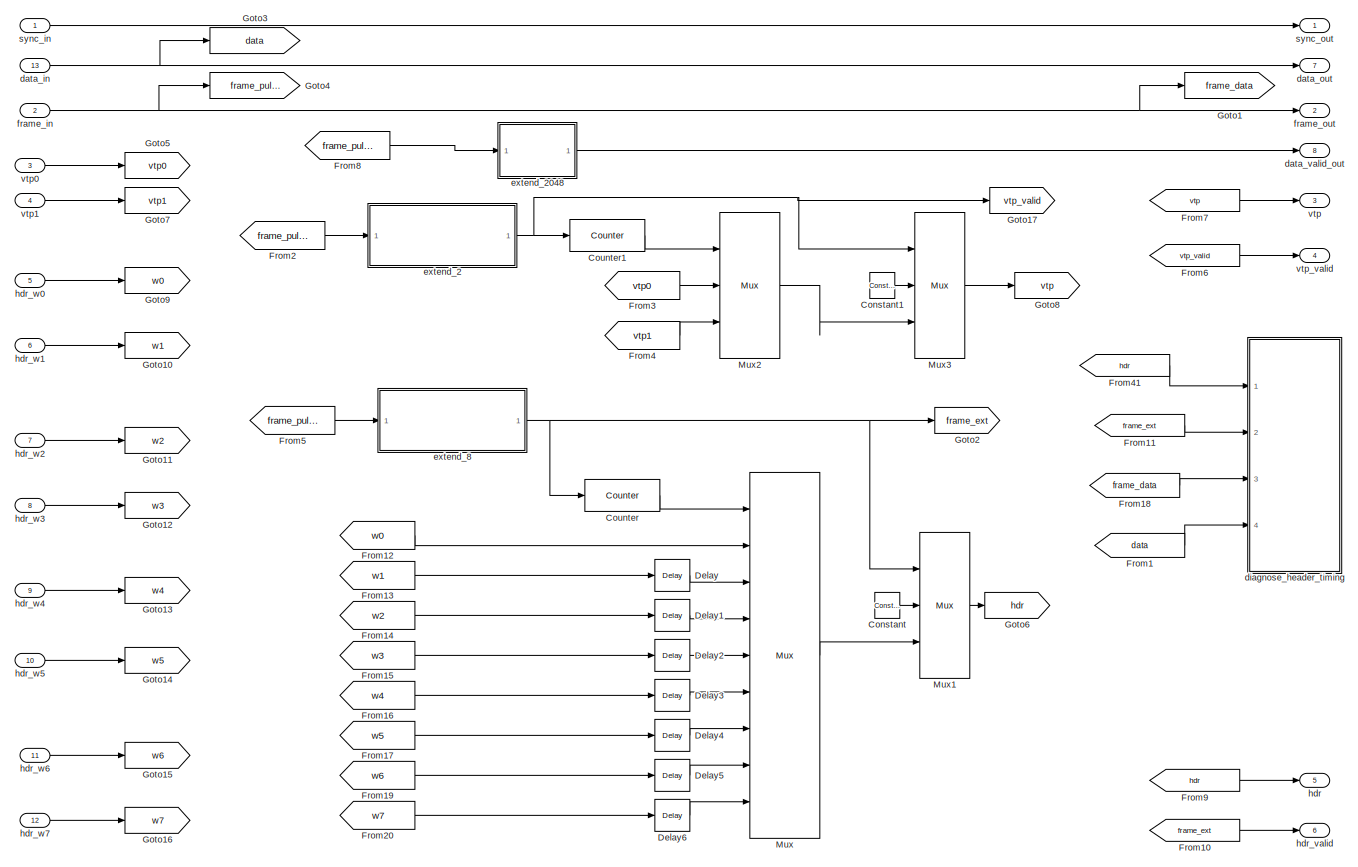
[diagram: vdif/serialize_hdr - part 1/1, most of the canvas]
BLOCK [SubSystem] vdif/serialize_hdr
  FunctionWithSeparateData = off
  MaskHideContents = off
  MinAlgLoopOccurrences = off
  Opaque = off
  Ports = [13, 8]
  PropExecContextOutsideSubsystem = off
  RTWSystemCode = Auto
  RequestExecContextInheritance = off
BLOCK [Inport] vdif/serialize_hdr/ data_in
  IconDisplay = Port number
  Port = 13
BLOCK [Inport] vdif/serialize_hdr/ hdr_w0
  IconDisplay = Port number
  Port = 5
BLOCK [Inport] vdif/serialize_hdr/ hdr_w1
  IconDisplay = Port number
  Port = 6
BLOCK [Inport] vdif/serialize_hdr/ hdr_w2
  IconDisplay = Port number
  Port = 7
BLOCK [Inport] vdif/serialize_hdr/ hdr_w3
  IconDisplay = Port number
  Port = 8
BLOCK [Inport] vdif/serialize_hdr/ hdr_w4
  IconDisplay = Port number
  Port = 9
BLOCK [Inport] vdif/serialize_hdr/ hdr_w5
  IconDisplay = Port number
  Port = 10
BLOCK [Inport] vdif/serialize_hdr/ hdr_w6
  IconDisplay = Port number
  Port = 11
BLOCK [Inport] vdif/serialize_hdr/ hdr_w7
  IconDisplay = Port number
  Port = 12
BLOCK [Reference] vdif/serialize_hdr/Constant  REF=xbsIndex_r4/Constant
  Ports = [0, 1]
  SourceBlock = xbsIndex_r4/Constant
  SourceType = Xilinx Constant Block Block
  arith_type = Unsigned
  bin_pt = 0
  block_type = constant
  carry = CIN
  const = 0
  dbl_ovrd = off
  dsp48_infoedit = The use of this block for DSP48 instructions is deprecated.  Please use the Opmode block.
  equ = P=C
  exp_width = 8
  explicit_period = on
  frac_width = 24
  gui_display_data_type = Fixed-point
  has_advanced_control = 0
  inp1 = P
  inp2 = PCIN>>17
  n_bits = 32
  opr = +
  opselect = C
  period = 1
  preci_type = Single
  sg_icon_stat = 25,26,0,1,white,blue,0,bf4ddd8b,right,,[ ],[ ]
  sg_mask_display = fprintf('','COMMENT: begin icon graphics');\npatch([0 25 25 0 0 ],[0 0 26 26 0 ],[0.77 0.82 0.91 ]);\nplot([0 25 25 0 0 ],[0 0 26 26 0 ]);\npatch([5.325 9.66 12.66 15.66 18.66 12.66 8.325 5.325 ],[16.33 16.33 19.33 16.33 19.33 19.33 19.33 16.33 ],[1 1 1 ]);\npatch([8.325 12.66 9.66 5.325 8.325 ],[13.33 13.33 16.33 16.33 13.33 ],[0.931 0.946 0.973 ]);\npatch([5.325 9.66 12.66 8.325 5.325 ],[10.33 10.33 ...<+307ch>
  sggui_pos = -1,-1,-1,-1
BLOCK [Reference] vdif/serialize_hdr/Constant1  REF=xbsIndex_r4/Constant
  Ports = [0, 1]
  SourceBlock = xbsIndex_r4/Constant
  SourceType = Xilinx Constant Block Block
  arith_type = Unsigned
  bin_pt = 0
  block_type = constant
  carry = CIN
  const = 0
  dbl_ovrd = off
  dsp48_infoedit = The use of this block for DSP48 instructions is deprecated.  Please use the Opmode block.
  equ = P=C
  exp_width = 8
  explicit_period = on
  frac_width = 24
  gui_display_data_type = Fixed-point
  has_advanced_control = 0
  inp1 = P
  inp2 = PCIN>>17
  n_bits = 32
  opr = +
  opselect = C
  period = 1
  preci_type = Single
  sg_icon_stat = 25,26,0,1,white,blue,0,bf4ddd8b,right,,[ ],[ ]
  sg_mask_display = fprintf('','COMMENT: begin icon graphics');\npatch([0 25 25 0 0 ],[0 0 26 26 0 ],[0.77 0.82 0.91 ]);\nplot([0 25 25 0 0 ],[0 0 26 26 0 ]);\npatch([5.325 9.66 12.66 15.66 18.66 12.66 8.325 5.325 ],[16.33 16.33 19.33 16.33 19.33 19.33 19.33 16.33 ],[1 1 1 ]);\npatch([8.325 12.66 9.66 5.325 8.325 ],[13.33 13.33 16.33 16.33 13.33 ],[0.931 0.946 0.973 ]);\npatch([5.325 9.66 12.66 8.325 5.325 ],[10.33 10.33 ...<+307ch>
  sggui_pos = -1,-1,-1,-1
BLOCK [Reference] vdif/serialize_hdr/Counter  REF=xbsIndex_r4/Counter
  Ports = [1, 1]
  SourceBlock = xbsIndex_r4/Counter
  SourceType = Xilinx Counter Block
  arith_type = Unsigned
  bin_pt = 0
  block_type = counter
  cnt_by_val = 1
  cnt_to = Inf
  cnt_type = Free Running
  dbl_ovrd = off
  en = on
  explicit_period = on
  has_advanced_control = 0
  implementation = Fabric
  infoedit = Hardware notes: Free running counters are the least expensive in hardware.  A count limited counter is implemented by combining a counter with a comparator.
  load_pin = off
  n_bits = 3
  operation = Up
  period = 1
  rst = off
  sg_icon_stat = 75,32,1,1,white,blue,0,b089e9c5,right,,[ ],[ ]
  sg_mask_display = fprintf('','COMMENT: begin icon graphics');\npatch([0 75 75 0 0 ],[0 0 32 32 0 ],[0.77 0.82 0.91 ]);\nplot([0 75 75 0 0 ],[0 0 32 32 0 ]);\npatch([28.1 33.88 37.88 41.88 45.88 37.88 32.1 28.1 ],[20.44 20.44 24.44 20.44 24.44 24.44 24.44 20.44 ],[1 1 1 ]);\npatch([32.1 37.88 33.88 28.1 32.1 ],[16.44 16.44 20.44 20.44 16.44 ],[0.931 0.946 0.973 ]);\npatch([28.1 33.88 37.88 32.1 28.1 ],[12.44 12.44 16.44 ...<+360ch>
  sggui_pos = 286,52,451,765
  start_count = 0
  use_behavioral_HDL = off
  xl_area = [0,0,0,0,0,0,0]
  xl_use_area = off
BLOCK [Reference] vdif/serialize_hdr/Counter1  REF=xbsIndex_r4/Counter
  Ports = [1, 1]
  SourceBlock = xbsIndex_r4/Counter
  SourceType = Xilinx Counter Block
  arith_type = Unsigned
  bin_pt = 0
  block_type = counter
  cnt_by_val = 1
  cnt_to = Inf
  cnt_type = Free Running
  dbl_ovrd = off
  en = on
  explicit_period = on
  has_advanced_control = 0
  implementation = Fabric
  infoedit = Hardware notes: Free running counters are the least expensive in hardware.  A count limited counter is implemented by combining a counter with a comparator.
  load_pin = off
  n_bits = 1
  operation = Up
  period = 1
  rst = off
  sg_icon_stat = 75,32,1,1,white,blue,0,b089e9c5,right,,[ ],[ ]
  sg_mask_display = fprintf('','COMMENT: begin icon graphics');\npatch([0 75 75 0 0 ],[0 0 32 32 0 ],[0.77 0.82 0.91 ]);\nplot([0 75 75 0 0 ],[0 0 32 32 0 ]);\npatch([28.1 33.88 37.88 41.88 45.88 37.88 32.1 28.1 ],[20.44 20.44 24.44 20.44 24.44 24.44 24.44 20.44 ],[1 1 1 ]);\npatch([32.1 37.88 33.88 28.1 32.1 ],[16.44 16.44 20.44 20.44 16.44 ],[0.931 0.946 0.973 ]);\npatch([28.1 33.88 37.88 32.1 28.1 ],[12.44 12.44 16.44 ...<+360ch>
  sggui_pos = 286,52,451,765
  start_count = 0
  use_behavioral_HDL = off
  xl_area = [0,0,0,0,0,0,0]
  xl_use_area = off
BLOCK [Reference] vdif/serialize_hdr/Delay  REF=xbsIndex_r4/Delay
  Ports = [1, 1]
  SourceBlock = xbsIndex_r4/Delay
  SourceType = Xilinx Delay Block
  block_type = delay
  dbl_ovrd = off
  en = off
  has_advanced_control = 0
  infoedit = Hardware notes: A delay line is a chain, each link of which is an SRL16 followed by a flip-flop.
  infoeditControl = Selection of Reset will increase slice count due to use of real FFs and instead of SRLs
  latency = 1
  reg_retiming = off
  rst = off
  sg_icon_stat = 35,32,1,1,white,blue,0,07b98262,right,,[ ],[ ]
  sggui_pos = 20,45,451,405
  xl_area = [0,0,0,0,0,0,0]
  xl_use_area = off
BLOCK [Reference] vdif/serialize_hdr/Delay1  REF=xbsIndex_r4/Delay
  Ports = [1, 1]
  SourceBlock = xbsIndex_r4/Delay
  SourceType = Xilinx Delay Block
  block_type = delay
  dbl_ovrd = off
  en = off
  has_advanced_control = 0
  infoedit = Hardware notes: A delay line is a chain, each link of which is an SRL16 followed by a flip-flop.
  infoeditControl = Selection of Reset will increase slice count due to use of real FFs and instead of SRLs
  latency = 2
  reg_retiming = off
  rst = off
  sg_icon_stat = 35,32,1,1,white,blue,0,85ce9542,right,,[ ],[ ]
  sggui_pos = 20,45,451,405
  xl_area = [0,0,0,0,0,0,0]
  xl_use_area = off
BLOCK [Reference] vdif/serialize_hdr/Delay2  REF=xbsIndex_r4/Delay
  Ports = [1, 1]
  SourceBlock = xbsIndex_r4/Delay
  SourceType = Xilinx Delay Block
  block_type = delay
  dbl_ovrd = off
  en = off
  has_advanced_control = 0
  infoedit = Hardware notes: A delay line is a chain, each link of which is an SRL16 followed by a flip-flop.
  infoeditControl = Selection of Reset will increase slice count due to use of real FFs and instead of SRLs
  latency = 3
  reg_retiming = off
  rst = off
  sg_icon_stat = 35,32,1,1,white,blue,0,83e6bb61,right,,[ ],[ ]
  sggui_pos = 20,45,451,405
  xl_area = [0,0,0,0,0,0,0]
  xl_use_area = off
BLOCK [Reference] vdif/serialize_hdr/Delay3  REF=xbsIndex_r4/Delay
  Ports = [1, 1]
  SourceBlock = xbsIndex_r4/Delay
  SourceType = Xilinx Delay Block
  block_type = delay
  dbl_ovrd = off
  en = off
  has_advanced_control = 0
  infoedit = Hardware notes: A delay line is a chain, each link of which is an SRL16 followed by a flip-flop.
  infoeditControl = Selection of Reset will increase slice count due to use of real FFs and instead of SRLs
  latency = 4
  reg_retiming = off
  rst = off
  sg_icon_stat = 35,32,1,1,white,blue,0,d390c2d8,right,,[ ],[ ]
  sggui_pos = 20,45,451,405
  xl_area = [0,0,0,0,0,0,0]
  xl_use_area = off
BLOCK [Reference] vdif/serialize_hdr/Delay4  REF=xbsIndex_r4/Delay
  Ports = [1, 1]
  SourceBlock = xbsIndex_r4/Delay
  SourceType = Xilinx Delay Block
  block_type = delay
  dbl_ovrd = off
  en = off
  has_advanced_control = 0
  infoedit = Hardware notes: A delay line is a chain, each link of which is an SRL16 followed by a flip-flop.
  infoeditControl = Selection of Reset will increase slice count due to use of real FFs and instead of SRLs
  latency = 5
  reg_retiming = off
  rst = off
  sg_icon_stat = 35,32,1,1,white,blue,0,ec356abf,right,,[ ],[ ]
  sggui_pos = 20,45,451,405
  xl_area = [0,0,0,0,0,0,0]
  xl_use_area = off
BLOCK [Reference] vdif/serialize_hdr/Delay5  REF=xbsIndex_r4/Delay
  Ports = [1, 1]
  SourceBlock = xbsIndex_r4/Delay
  SourceType = Xilinx Delay Block
  block_type = delay
  dbl_ovrd = off
  en = off
  has_advanced_control = 0
  infoedit = Hardware notes: A delay line is a chain, each link of which is an SRL16 followed by a flip-flop.
  infoeditControl = Selection of Reset will increase slice count due to use of real FFs and instead of SRLs
  latency = 6
  reg_retiming = off
  rst = off
  sg_icon_stat = 35,32,1,1,white,blue,0,aa5bc30d,right,,[ ],[ ]
  sggui_pos = 20,45,451,405
  xl_area = [0,0,0,0,0,0,0]
  xl_use_area = off
BLOCK [Reference] vdif/serialize_hdr/Delay6  REF=xbsIndex_r4/Delay
  Ports = [1, 1]
  SourceBlock = xbsIndex_r4/Delay
  SourceType = Xilinx Delay Block
  block_type = delay
  dbl_ovrd = off
  en = off
  has_advanced_control = 0
  infoedit = Hardware notes: A delay line is a chain, each link of which is an SRL16 followed by a flip-flop.
  infoeditControl = Selection of Reset will increase slice count due to use of real FFs and instead of SRLs
  latency = 7
  reg_retiming = off
  rst = off
  sg_icon_stat = 35,32,1,1,white,blue,0,d93bb731,right,,[ ],[ ]
  sggui_pos = 20,45,451,405
  xl_area = [0,0,0,0,0,0,0]
  xl_use_area = off
BLOCK [From] vdif/serialize_hdr/From1
  GotoTag = data
BLOCK [From] vdif/serialize_hdr/From10
  GotoTag = frame_ext
BLOCK [From] vdif/serialize_hdr/From11
  GotoTag = frame_ext
BLOCK [From] vdif/serialize_hdr/From12
  GotoTag = w0
BLOCK [From] vdif/serialize_hdr/From13
  GotoTag = w1
BLOCK [From] vdif/serialize_hdr/From14
  GotoTag = w2
BLOCK [From] vdif/serialize_hdr/From15
  GotoTag = w3
BLOCK [From] vdif/serialize_hdr/From16
  GotoTag = w4
BLOCK [From] vdif/serialize_hdr/From17
  GotoTag = w5
BLOCK [From] vdif/serialize_hdr/From18
  GotoTag = frame_data
BLOCK [From] vdif/serialize_hdr/From19
  GotoTag = w6
BLOCK [From] vdif/serialize_hdr/From2
  GotoTag = frame_pulse
BLOCK [From] vdif/serialize_hdr/From20
  GotoTag = w7
BLOCK [From] vdif/serialize_hdr/From3
  GotoTag = vtp0
BLOCK [From] vdif/serialize_hdr/From4
  GotoTag = vtp1
BLOCK [From] vdif/serialize_hdr/From41
  GotoTag = hdr
BLOCK [From] vdif/serialize_hdr/From5
  GotoTag = frame_pulse
BLOCK [From] vdif/serialize_hdr/From6
  GotoTag = vtp_valid
BLOCK [From] vdif/serialize_hdr/From7
  GotoTag = vtp
BLOCK [From] vdif/serialize_hdr/From8
  GotoTag = frame_pulse
BLOCK [From] vdif/serialize_hdr/From9
  GotoTag = hdr
BLOCK [Goto] vdif/serialize_hdr/Goto1
  GotoTag = frame_data
BLOCK [Goto] vdif/serialize_hdr/Goto10
  GotoTag = w1
BLOCK [Goto] vdif/serialize_hdr/Goto11
  GotoTag = w2
BLOCK [Goto] vdif/serialize_hdr/Goto12
  GotoTag = w3
BLOCK [Goto] vdif/serialize_hdr/Goto13
  GotoTag = w4
BLOCK [Goto] vdif/serialize_hdr/Goto14
  GotoTag = w5
BLOCK [Goto] vdif/serialize_hdr/Goto15
  GotoTag = w6
BLOCK [Goto] vdif/serialize_hdr/Goto16
  GotoTag = w7
BLOCK [Goto] vdif/serialize_hdr/Goto17
  GotoTag = vtp_valid
BLOCK [Goto] vdif/serialize_hdr/Goto2
  GotoTag = frame_ext
BLOCK [Goto] vdif/serialize_hdr/Goto3
  GotoTag = data
BLOCK [Goto] vdif/serialize_hdr/Goto4
  GotoTag = frame_pulse
BLOCK [Goto] vdif/serialize_hdr/Goto5
  GotoTag = vtp0
BLOCK [Goto] vdif/serialize_hdr/Goto6
  GotoTag = hdr
BLOCK [Goto] vdif/serialize_hdr/Goto7
  GotoTag = vtp1
BLOCK [Goto] vdif/serialize_hdr/Goto8
  GotoTag = vtp
BLOCK [Goto] vdif/serialize_hdr/Goto9
  GotoTag = w0
BLOCK [Reference] vdif/serialize_hdr/Mux  REF=xbsIndex_r4/Mux
  Ports = [9, 1]
  SourceBlock = xbsIndex_r4/Mux
  SourceType = Xilinx Bus Multiplexer Block
  arith_type = Unsigned
  bin_pt = 14
  block_type = mux
  dbl_ovrd = off
  en = off
  has_advanced_control = 0
  inputs = 8
  latency = 0
  n_bits = 16
  overflow = Wrap
  precision = Full
  quantization = Truncate
  sg_icon_stat = 70,366,9,1,white,blue,3,9717d9a5,right,,[ ],[ ]
  sg_mask_display = fprintf('','COMMENT: begin icon graphics');\npatch([0 70 70 0 0 ],[0 52.2857 313.714 366 0 ],[0.77 0.82 0.91 ]);\nplot([0 70 70 0 0 ],[0 52.2857 313.714 366 0 ]);\npatch([12.75 27.2 37.2 47.2 57.2 37.2 22.75 12.75 ],[194.1 194.1 204.1 194.1 204.1 204.1 204.1 194.1 ],[1 1 1 ]);\npatch([22.75 37.2 27.2 12.75 22.75 ],[184.1 184.1 194.1 194.1 184.1 ],[0.931 0.946 0.973 ]);\npatch([12.75 27.2 37.2 22.75 12....<+717ch>
  sggui_pos = 20,45,451,365
  xl_area = [0,0,0,0,0,0,0]
  xl_use_area = off
BLOCK [Reference] vdif/serialize_hdr/Mux1  REF=xbsIndex_r4/Mux
  Ports = [3, 1]
  SourceBlock = xbsIndex_r4/Mux
  SourceType = Xilinx Bus Multiplexer Block
  arith_type = Unsigned
  bin_pt = 14
  block_type = mux
  dbl_ovrd = off
  en = off
  has_advanced_control = 0
  inputs = 2
  latency = 0
  n_bits = 16
  overflow = Wrap
  precision = Full
  quantization = Truncate
  sg_icon_stat = 50,146,3,1,white,blue,3,eb98d690,right,,[ ],[ ]
  sg_mask_display = fprintf('','COMMENT: begin icon graphics');\npatch([0 50 50 0 0 ],[0 20.8571 125.143 146 0 ],[0.77 0.82 0.91 ]);\nplot([0 50 50 0 0 ],[0 20.8571 125.143 146 0 ]);\npatch([9.425 19.54 26.54 33.54 40.54 26.54 16.425 9.425 ],[80.77 80.77 87.77 80.77 87.77 87.77 87.77 80.77 ],[1 1 1 ]);\npatch([16.425 26.54 19.54 9.425 16.425 ],[73.77 73.77 80.77 80.77 73.77 ],[0.931 0.946 0.973 ]);\npatch([9.425 19.54 26....<+478ch>
  sggui_pos = 20,45,451,365
  xl_area = [0,0,0,0,0,0,0]
  xl_use_area = off
BLOCK [Reference] vdif/serialize_hdr/Mux2  REF=xbsIndex_r4/Mux
  Ports = [3, 1]
  SourceBlock = xbsIndex_r4/Mux
  SourceType = Xilinx Bus Multiplexer Block
  arith_type = Unsigned
  bin_pt = 14
  block_type = mux
  dbl_ovrd = off
  en = off
  has_advanced_control = 0
  inputs = 2
  latency = 0
  n_bits = 16
  overflow = Wrap
  precision = Full
  quantization = Truncate
  sg_icon_stat = 60,146,3,1,white,blue,3,eb98d690,right,,[ ],[ ]
  sg_mask_display = fprintf('','COMMENT: begin icon graphics');\npatch([0 60 60 0 0 ],[0 20.8571 125.143 146 0 ],[0.77 0.82 0.91 ]);\nplot([0 60 60 0 0 ],[0 20.8571 125.143 146 0 ]);\npatch([12.2 23.76 31.76 39.76 47.76 31.76 20.2 12.2 ],[81.88 81.88 89.88 81.88 89.88 89.88 89.88 81.88 ],[1 1 1 ]);\npatch([20.2 31.76 23.76 12.2 20.2 ],[73.88 73.88 81.88 81.88 73.88 ],[0.931 0.946 0.973 ]);\npatch([12.2 23.76 31.76 20.2 12...<+460ch>
  sggui_pos = 20,45,451,365
  xl_area = [0,0,0,0,0,0,0]
  xl_use_area = off
BLOCK [Reference] vdif/serialize_hdr/Mux3  REF=xbsIndex_r4/Mux
  Ports = [3, 1]
  SourceBlock = xbsIndex_r4/Mux
  SourceType = Xilinx Bus Multiplexer Block
  arith_type = Unsigned
  bin_pt = 14
  block_type = mux
  dbl_ovrd = off
  en = off
  has_advanced_control = 0
  inputs = 2
  latency = 0
  n_bits = 16
  overflow = Wrap
  precision = Full
  quantization = Truncate
  sg_icon_stat = 50,146,3,1,white,blue,3,eb98d690,right,,[ ],[ ]
  sg_mask_display = fprintf('','COMMENT: begin icon graphics');\npatch([0 50 50 0 0 ],[0 20.8571 125.143 146 0 ],[0.77 0.82 0.91 ]);\nplot([0 50 50 0 0 ],[0 20.8571 125.143 146 0 ]);\npatch([9.425 19.54 26.54 33.54 40.54 26.54 16.425 9.425 ],[80.77 80.77 87.77 80.77 87.77 87.77 87.77 80.77 ],[1 1 1 ]);\npatch([16.425 26.54 19.54 9.425 16.425 ],[73.77 73.77 80.77 80.77 73.77 ],[0.931 0.946 0.973 ]);\npatch([9.425 19.54 26....<+478ch>
  sggui_pos = 20,45,451,365
  xl_area = [0,0,0,0,0,0,0]
  xl_use_area = off
BLOCK [Outport] vdif/serialize_hdr/data_out
  IconDisplay = Port number
  Port = 7
BLOCK [Outport] vdif/serialize_hdr/data_valid_out
  IconDisplay = Port number
  Port = 8
BLOCK [SubSystem] vdif/serialize_hdr/diagnose_header_timing
  FunctionWithSeparateData = off
  MaskHideContents = off
  MinAlgLoopOccurrences = off
  Opaque = off
  Ports = [4]
  PropExecContextOutsideSubsystem = off
  RTWSystemCode = Auto
  RequestExecContextInheritance = off
BLOCK [Reference] vdif/serialize_hdr/diagnose_header_timing/Disregard Subsystem  REF=xbsIndex_r4/Disregard Subsystem
  AttributesFormatString = Disregard Subsystem\nFor Generation
  Ports = []
  SourceBlock = xbsIndex_r4/Disregard Subsystem
  SourceType = Xilinx Disregard Subsystem For Generation Block
  Tag = discardX
  block_type = disregard
  has_advanced_control = 0
  sg_icon_stat = 58,58,-1,-1,darkgray,black,0,07734,right,,[ ],[ ]
  sggui_pos = -1,-1,-1,-1
BLOCK [Reference] vdif/serialize_hdr/diagnose_header_timing/Gateway Out  REF=xbsIndex_r4/Gateway Out
  DACChannel = '1'
  LOCs = {}
  Ports = [1, 1]
  SourceBlock = xbsIndex_r4/Gateway Out
  SourceType = Xilinx Gateway Out Block
  UseAsDAC = off
  block_type = gatewayout
  has_advanced_control = 0
  hdl_port = on
  inherit_from_input = off
  locs_specified = off
  sg_icon_stat = 35,20,1,1,white,yellow,1,cc31b7ac,right,,[ ],[ ]
  sggui_pos = -1,-1,-1,-1
  timing_constraint = None
  xl_area = [0,0,0,0,0,0,0]
  xl_use_area = off
BLOCK [Reference] vdif/serialize_hdr/diagnose_header_timing/Gateway Out1  REF=xbsIndex_r4/Gateway Out
  DACChannel = '1'
  LOCs = {}
  Ports = [1, 1]
  SourceBlock = xbsIndex_r4/Gateway Out
  SourceType = Xilinx Gateway Out Block
  UseAsDAC = off
  block_type = gatewayout
  has_advanced_control = 0
  hdl_port = on
  inherit_from_input = off
  locs_specified = off
  sg_icon_stat = 35,20,1,1,white,yellow,1,cc31b7ac,right,,[ ],[ ]
  sggui_pos = -1,-1,-1,-1
  timing_constraint = None
  xl_area = [0,0,0,0,0,0,0]
  xl_use_area = off
BLOCK [Reference] vdif/serialize_hdr/diagnose_header_timing/Gateway Out2  REF=xbsIndex_r4/Gateway Out
  DACChannel = '1'
  LOCs = {}
  Ports = [1, 1]
  SourceBlock = xbsIndex_r4/Gateway Out
  SourceType = Xilinx Gateway Out Block
  UseAsDAC = off
  block_type = gatewayout
  has_advanced_control = 0
  hdl_port = on
  inherit_from_input = off
  locs_specified = off
  sg_icon_stat = 35,20,1,1,white,yellow,1,cc31b7ac,right,,[ ],[ ]
  sggui_pos = -1,-1,-1,-1
  timing_constraint = None
  xl_area = [0,0,0,0,0,0,0]
  xl_use_area = off
BLOCK [Reference] vdif/serialize_hdr/diagnose_header_timing/Gateway Out8  REF=xbsIndex_r4/Gateway Out
  DACChannel = '1'
  LOCs = {}
  Ports = [1, 1]
  SourceBlock = xbsIndex_r4/Gateway Out
  SourceType = Xilinx Gateway Out Block
  UseAsDAC = off
  block_type = gatewayout
  has_advanced_control = 0
  hdl_port = on
  inherit_from_input = off
  locs_specified = off
  sg_icon_stat = 35,20,1,1,white,yellow,1,cc31b7ac,right,,[ ],[ ]
  sggui_pos = -1,-1,-1,-1
  timing_constraint = None
  xl_area = [0,0,0,0,0,0,0]
  xl_use_area = off
BLOCK [Scope] vdif/serialize_hdr/diagnose_header_timing/Scope
  DataFormat = StructureWithTime
  Floating = off
  LimitDataPoints = off
  NumInputPorts = 4
  Ports = [4]
  SampleTime = 0
  ShowLegends = off
  TimeRange = 1.649420126233963
  YMax = 3.15~5.8133e+08~1075.2~5
  YMin = 2.85~5.25966e+08~972.8~-5
  ZoomMode = yonly
BLOCK [Inport] vdif/serialize_hdr/diagnose_header_timing/data
  IconDisplay = Port number
  Port = 4
BLOCK [Inport] vdif/serialize_hdr/diagnose_header_timing/frame_pulse
  IconDisplay = Port number
  Port = 3
BLOCK [Inport] vdif/serialize_hdr/diagnose_header_timing/hdr
  IconDisplay = Port number
BLOCK [Inport] vdif/serialize_hdr/diagnose_header_timing/hdr_valid
  IconDisplay = Port number
  Port = 2
BLOCK [SubSystem] vdif/serialize_hdr/extend_2
  FunctionWithSeparateData = off
  MaskHideContents = off
  MinAlgLoopOccurrences = off
  Opaque = off
  Ports = [1, 1]
  PropExecContextOutsideSubsystem = off
  RTWSystemCode = Auto
  RequestExecContextInheritance = off
BLOCK [Reference] vdif/serialize_hdr/extend_2/Delay1  REF=xbsIndex_r4/Delay
  Ports = [1, 1]
  SourceBlock = xbsIndex_r4/Delay
  SourceType = Xilinx Delay Block
  block_type = delay
  dbl_ovrd = off
  en = off
  has_advanced_control = 0
  infoedit = Hardware notes: A delay line is a chain, each link of which is an SRL16 followed by a flip-flop.
  infoeditControl = Selection of Reset will increase slice count due to use of real FFs and instead of SRLs
  latency = 1
  reg_retiming = off
  rst = off
  sg_icon_stat = 35,32,1,1,white,blue,0,07b98262,right,,[ ],[ ]
  sggui_pos = 20,45,451,405
  xl_area = [0,0,0,0,0,0,0]
  xl_use_area = off
BLOCK [Reference] vdif/serialize_hdr/extend_2/Logical1  REF=xbsIndex_r4/Logical
  Ports = [2, 1]
  SourceBlock = xbsIndex_r4/Logical
  SourceType = Xilinx Logical Block Block
  align_bp = on
  arith_type = Unsigned
  bin_pt = 0
  block_type = logical
  dbl_ovrd = off
  en = off
  has_advanced_control = 0
  inputs = 2
  latency = 0
  logical_function = OR
  n_bits = 16
  precision = Full
  sg_icon_stat = 55,60,2,1,white,blue,0,7ede7d88,right,,[ ],[ ]
  sggui_pos = 62,95,451,297
  xl_area = [0,0,0,0,0,0,0]
  xl_use_area = off
BLOCK [Inport] vdif/serialize_hdr/extend_2/frame_pulse
  IconDisplay = Port number
BLOCK [Outport] vdif/serialize_hdr/extend_2/frame_pulse_2
  IconDisplay = Port number
BLOCK [SubSystem] vdif/serialize_hdr/extend_2048
  FunctionWithSeparateData = off
  MaskHideContents = off
  MinAlgLoopOccurrences = off
  Opaque = off
  Ports = [1, 1]
  PropExecContextOutsideSubsystem = off
  RTWSystemCode = Auto
  RequestExecContextInheritance = off
BLOCK [Reference] vdif/serialize_hdr/extend_2048/Delay1  REF=xbsIndex_r4/Delay
  Ports = [1, 1]
  SourceBlock = xbsIndex_r4/Delay
  SourceType = Xilinx Delay Block
  block_type = delay
  dbl_ovrd = off
  en = off
  has_advanced_control = 0
  infoedit = Hardware notes: A delay line is a chain, each link of which is an SRL16 followed by a flip-flop.
  infoeditControl = Selection of Reset will increase slice count due to use of real FFs and instead of SRLs
  latency = 1
  reg_retiming = off
  rst = off
  sg_icon_stat = 35,32,1,1,white,blue,0,07b98262,right,,[ ],[ ]
  sggui_pos = 20,45,451,405
  xl_area = [0,0,0,0,0,0,0]
  xl_use_area = off
BLOCK [Reference] vdif/serialize_hdr/extend_2048/Delay10  REF=xbsIndex_r4/Delay
  Ports = [1, 1]
  SourceBlock = xbsIndex_r4/Delay
  SourceType = Xilinx Delay Block
  block_type = delay
  dbl_ovrd = off
  en = off
  has_advanced_control = 0
  infoedit = Hardware notes: A delay line is a chain, each link of which is an SRL16 followed by a flip-flop.
  infoeditControl = Selection of Reset will increase slice count due to use of real FFs and instead of SRLs
  latency = 512
  reg_retiming = off
  rst = off
  sg_icon_stat = 35,32,1,1,white,blue,0,d2b84bca,right,,[ ],[ ]
  sggui_pos = 20,45,451,405
  xl_area = [0,0,0,0,0,0,0]
  xl_use_area = off
BLOCK [Reference] vdif/serialize_hdr/extend_2048/Delay11  REF=xbsIndex_r4/Delay
  Ports = [1, 1]
  SourceBlock = xbsIndex_r4/Delay
  SourceType = Xilinx Delay Block
  block_type = delay
  dbl_ovrd = off
  en = off
  has_advanced_control = 0
  infoedit = Hardware notes: A delay line is a chain, each link of which is an SRL16 followed by a flip-flop.
  infoeditControl = Selection of Reset will increase slice count due to use of real FFs and instead of SRLs
  latency = 1024
  reg_retiming = off
  rst = off
  sg_icon_stat = 35,32,1,1,white,blue,0,949cb0f6,right,,[ ],[ ]
  sggui_pos = 20,45,451,405
  xl_area = [0,0,0,0,0,0,0]
  xl_use_area = off
BLOCK [Reference] vdif/serialize_hdr/extend_2048/Delay2  REF=xbsIndex_r4/Delay
  Ports = [1, 1]
  SourceBlock = xbsIndex_r4/Delay
  SourceType = Xilinx Delay Block
  block_type = delay
  dbl_ovrd = off
  en = off
  has_advanced_control = 0
  infoedit = Hardware notes: A delay line is a chain, each link of which is an SRL16 followed by a flip-flop.
  infoeditControl = Selection of Reset will increase slice count due to use of real FFs and instead of SRLs
  latency = 2
  reg_retiming = off
  rst = off
  sg_icon_stat = 35,32,1,1,white,blue,0,85ce9542,right,,[ ],[ ]
  sggui_pos = 20,45,451,405
  xl_area = [0,0,0,0,0,0,0]
  xl_use_area = off
BLOCK [Reference] vdif/serialize_hdr/extend_2048/Delay3  REF=xbsIndex_r4/Delay
  Ports = [1, 1]
  SourceBlock = xbsIndex_r4/Delay
  SourceType = Xilinx Delay Block
  block_type = delay
  dbl_ovrd = off
  en = off
  has_advanced_control = 0
  infoedit = Hardware notes: A delay line is a chain, each link of which is an SRL16 followed by a flip-flop.
  infoeditControl = Selection of Reset will increase slice count due to use of real FFs and instead of SRLs
  latency = 4
  reg_retiming = off
  rst = off
  sg_icon_stat = 35,32,1,1,white,blue,0,d390c2d8,right,,[ ],[ ]
  sggui_pos = 20,45,451,405
  xl_area = [0,0,0,0,0,0,0]
  xl_use_area = off
BLOCK [Reference] vdif/serialize_hdr/extend_2048/Delay4  REF=xbsIndex_r4/Delay
  Ports = [1, 1]
  SourceBlock = xbsIndex_r4/Delay
  SourceType = Xilinx Delay Block
  block_type = delay
  dbl_ovrd = off
  en = off
  has_advanced_control = 0
  infoedit = Hardware notes: A delay line is a chain, each link of which is an SRL16 followed by a flip-flop.
  infoeditControl = Selection of Reset will increase slice count due to use of real FFs and instead of SRLs
  latency = 8
  reg_retiming = off
  rst = off
  sg_icon_stat = 35,32,1,1,white,blue,0,e47f993a,right,,[ ],[ ]
  sggui_pos = 20,45,451,405
  xl_area = [0,0,0,0,0,0,0]
  xl_use_area = off
BLOCK [Reference] vdif/serialize_hdr/extend_2048/Delay5  REF=xbsIndex_r4/Delay
  Ports = [1, 1]
  SourceBlock = xbsIndex_r4/Delay
  SourceType = Xilinx Delay Block
  block_type = delay
  dbl_ovrd = off
  en = off
  has_advanced_control = 0
  infoedit = Hardware notes: A delay line is a chain, each link of which is an SRL16 followed by a flip-flop.
  infoeditControl = Selection of Reset will increase slice count due to use of real FFs and instead of SRLs
  latency = 16
  reg_retiming = off
  rst = off
  sg_icon_stat = 35,32,1,1,white,blue,0,f89f7887,right,,[ ],[ ]
  sggui_pos = 20,45,451,405
  xl_area = [0,0,0,0,0,0,0]
  xl_use_area = off
BLOCK [Reference] vdif/serialize_hdr/extend_2048/Delay6  REF=xbsIndex_r4/Delay
  Ports = [1, 1]
  SourceBlock = xbsIndex_r4/Delay
  SourceType = Xilinx Delay Block
  block_type = delay
  dbl_ovrd = off
  en = off
  has_advanced_control = 0
  infoedit = Hardware notes: A delay line is a chain, each link of which is an SRL16 followed by a flip-flop.
  infoeditControl = Selection of Reset will increase slice count due to use of real FFs and instead of SRLs
  latency = 32
  reg_retiming = off
  rst = off
  sg_icon_stat = 35,32,1,1,white,blue,0,05c6467a,right,,[ ],[ ]
  sggui_pos = 20,45,451,405
  xl_area = [0,0,0,0,0,0,0]
  xl_use_area = off
BLOCK [Reference] vdif/serialize_hdr/extend_2048/Delay7  REF=xbsIndex_r4/Delay
  Ports = [1, 1]
  SourceBlock = xbsIndex_r4/Delay
  SourceType = Xilinx Delay Block
  block_type = delay
  dbl_ovrd = off
  en = off
  has_advanced_control = 0
  infoedit = Hardware notes: A delay line is a chain, each link of which is an SRL16 followed by a flip-flop.
  infoeditControl = Selection of Reset will increase slice count due to use of real FFs and instead of SRLs
  latency = 64
  reg_retiming = off
  rst = off
  sg_icon_stat = 35,32,1,1,white,blue,0,0603ebe1,right,,[ ],[ ]
  sggui_pos = 20,45,451,405
  xl_area = [0,0,0,0,0,0,0]
  xl_use_area = off
BLOCK [Reference] vdif/serialize_hdr/extend_2048/Delay8  REF=xbsIndex_r4/Delay
  Ports = [1, 1]
  SourceBlock = xbsIndex_r4/Delay
  SourceType = Xilinx Delay Block
  block_type = delay
  dbl_ovrd = off
  en = off
  has_advanced_control = 0
  infoedit = Hardware notes: A delay line is a chain, each link of which is an SRL16 followed by a flip-flop.
  infoeditControl = Selection of Reset will increase slice count due to use of real FFs and instead of SRLs
  latency = 128
  reg_retiming = off
  rst = off
  sg_icon_stat = 35,32,1,1,white,blue,0,91428c9d,right,,[ ],[ ]
  sggui_pos = 20,45,451,405
  xl_area = [0,0,0,0,0,0,0]
  xl_use_area = off
BLOCK [Reference] vdif/serialize_hdr/extend_2048/Delay9  REF=xbsIndex_r4/Delay
  Ports = [1, 1]
  SourceBlock = xbsIndex_r4/Delay
  SourceType = Xilinx Delay Block
  block_type = delay
  dbl_ovrd = off
  en = off
  has_advanced_control = 0
  infoedit = Hardware notes: A delay line is a chain, each link of which is an SRL16 followed by a flip-flop.
  infoeditControl = Selection of Reset will increase slice count due to use of real FFs and instead of SRLs
  latency = 256
  reg_retiming = off
  rst = off
  sg_icon_stat = 35,32,1,1,white,blue,0,6bb11d99,right,,[ ],[ ]
  sggui_pos = 20,45,451,405
  xl_area = [0,0,0,0,0,0,0]
  xl_use_area = off
BLOCK [Reference] vdif/serialize_hdr/extend_2048/Logical1  REF=xbsIndex_r4/Logical
  Ports = [2, 1]
  SourceBlock = xbsIndex_r4/Logical
  SourceType = Xilinx Logical Block Block
  align_bp = on
  arith_type = Unsigned
  bin_pt = 0
  block_type = logical
  dbl_ovrd = off
  en = off
  has_advanced_control = 0
  inputs = 2
  latency = 0
  logical_function = OR
  n_bits = 16
  precision = Full
  sg_icon_stat = 55,60,2,1,white,blue,0,7ede7d88,right,,[ ],[ ]
  sggui_pos = 62,95,451,297
  xl_area = [0,0,0,0,0,0,0]
  xl_use_area = off
BLOCK [Reference] vdif/serialize_hdr/extend_2048/Logical10  REF=xbsIndex_r4/Logical
  Ports = [2, 1]
  SourceBlock = xbsIndex_r4/Logical
  SourceType = Xilinx Logical Block Block
  align_bp = on
  arith_type = Unsigned
  bin_pt = 0
  block_type = logical
  dbl_ovrd = off
  en = off
  has_advanced_control = 0
  inputs = 2
  latency = 0
  logical_function = OR
  n_bits = 16
  precision = Full
  sg_icon_stat = 55,60,2,1,white,blue,0,7ede7d88,right,,[ ],[ ]
  sggui_pos = 62,95,451,297
  xl_area = [0,0,0,0,0,0,0]
  xl_use_area = off
BLOCK [Reference] vdif/serialize_hdr/extend_2048/Logical11  REF=xbsIndex_r4/Logical
  Ports = [2, 1]
  SourceBlock = xbsIndex_r4/Logical
  SourceType = Xilinx Logical Block Block
  align_bp = on
  arith_type = Unsigned
  bin_pt = 0
  block_type = logical
  dbl_ovrd = off
  en = off
  has_advanced_control = 0
  inputs = 2
  latency = 0
  logical_function = OR
  n_bits = 16
  precision = Full
  sg_icon_stat = 55,60,2,1,white,blue,0,7ede7d88,right,,[ ],[ ]
  sggui_pos = 62,95,451,297
  xl_area = [0,0,0,0,0,0,0]
  xl_use_area = off
BLOCK [Reference] vdif/serialize_hdr/extend_2048/Logical2  REF=xbsIndex_r4/Logical
  Ports = [2, 1]
  SourceBlock = xbsIndex_r4/Logical
  SourceType = Xilinx Logical Block Block
  align_bp = on
  arith_type = Unsigned
  bin_pt = 0
  block_type = logical
  dbl_ovrd = off
  en = off
  has_advanced_control = 0
  inputs = 2
  latency = 0
  logical_function = OR
  n_bits = 16
  precision = Full
  sg_icon_stat = 55,60,2,1,white,blue,0,7ede7d88,right,,[ ],[ ]
  sggui_pos = 62,95,451,297
  xl_area = [0,0,0,0,0,0,0]
  xl_use_area = off
BLOCK [Reference] vdif/serialize_hdr/extend_2048/Logical3  REF=xbsIndex_r4/Logical
  Ports = [2, 1]
  SourceBlock = xbsIndex_r4/Logical
  SourceType = Xilinx Logical Block Block
  align_bp = on
  arith_type = Unsigned
  bin_pt = 0
  block_type = logical
  dbl_ovrd = off
  en = off
  has_advanced_control = 0
  inputs = 2
  latency = 0
  logical_function = OR
  n_bits = 16
  precision = Full
  sg_icon_stat = 55,60,2,1,white,blue,0,7ede7d88,right,,[ ],[ ]
  sggui_pos = 62,95,451,297
  xl_area = [0,0,0,0,0,0,0]
  xl_use_area = off
BLOCK [Reference] vdif/serialize_hdr/extend_2048/Logical4  REF=xbsIndex_r4/Logical
  Ports = [2, 1]
  SourceBlock = xbsIndex_r4/Logical
  SourceType = Xilinx Logical Block Block
  align_bp = on
  arith_type = Unsigned
  bin_pt = 0
  block_type = logical
  dbl_ovrd = off
  en = off
  has_advanced_control = 0
  inputs = 2
  latency = 0
  logical_function = OR
  n_bits = 16
  precision = Full
  sg_icon_stat = 55,60,2,1,white,blue,0,7ede7d88,right,,[ ],[ ]
  sggui_pos = 62,95,451,297
  xl_area = [0,0,0,0,0,0,0]
  xl_use_area = off
BLOCK [Reference] vdif/serialize_hdr/extend_2048/Logical5  REF=xbsIndex_r4/Logical
  Ports = [2, 1]
  SourceBlock = xbsIndex_r4/Logical
  SourceType = Xilinx Logical Block Block
  align_bp = on
  arith_type = Unsigned
  bin_pt = 0
  block_type = logical
  dbl_ovrd = off
  en = off
  has_advanced_control = 0
  inputs = 2
  latency = 0
  logical_function = OR
  n_bits = 16
  precision = Full
  sg_icon_stat = 55,60,2,1,white,blue,0,7ede7d88,right,,[ ],[ ]
  sggui_pos = 62,95,451,297
  xl_area = [0,0,0,0,0,0,0]
  xl_use_area = off
BLOCK [Reference] vdif/serialize_hdr/extend_2048/Logical6  REF=xbsIndex_r4/Logical
  Ports = [2, 1]
  SourceBlock = xbsIndex_r4/Logical
  SourceType = Xilinx Logical Block Block
  align_bp = on
  arith_type = Unsigned
  bin_pt = 0
  block_type = logical
  dbl_ovrd = off
  en = off
  has_advanced_control = 0
  inputs = 2
  latency = 0
  logical_function = OR
  n_bits = 16
  precision = Full
  sg_icon_stat = 55,60,2,1,white,blue,0,7ede7d88,right,,[ ],[ ]
  sggui_pos = 62,95,451,297
  xl_area = [0,0,0,0,0,0,0]
  xl_use_area = off
BLOCK [Reference] vdif/serialize_hdr/extend_2048/Logical7  REF=xbsIndex_r4/Logical
  Ports = [2, 1]
  SourceBlock = xbsIndex_r4/Logical
  SourceType = Xilinx Logical Block Block
  align_bp = on
  arith_type = Unsigned
  bin_pt = 0
  block_type = logical
  dbl_ovrd = off
  en = off
  has_advanced_control = 0
  inputs = 2
  latency = 0
  logical_function = OR
  n_bits = 16
  precision = Full
  sg_icon_stat = 55,60,2,1,white,blue,0,7ede7d88,right,,[ ],[ ]
  sggui_pos = 62,95,451,297
  xl_area = [0,0,0,0,0,0,0]
  xl_use_area = off
BLOCK [Reference] vdif/serialize_hdr/extend_2048/Logical8  REF=xbsIndex_r4/Logical
  Ports = [2, 1]
  SourceBlock = xbsIndex_r4/Logical
  SourceType = Xilinx Logical Block Block
  align_bp = on
  arith_type = Unsigned
  bin_pt = 0
  block_type = logical
  dbl_ovrd = off
  en = off
  has_advanced_control = 0
  inputs = 2
  latency = 0
  logical_function = OR
  n_bits = 16
  precision = Full
  sg_icon_stat = 55,60,2,1,white,blue,0,7ede7d88,right,,[ ],[ ]
  sggui_pos = 62,95,451,297
  xl_area = [0,0,0,0,0,0,0]
  xl_use_area = off
BLOCK [Reference] vdif/serialize_hdr/extend_2048/Logical9  REF=xbsIndex_r4/Logical
  Ports = [2, 1]
  SourceBlock = xbsIndex_r4/Logical
  SourceType = Xilinx Logical Block Block
  align_bp = on
  arith_type = Unsigned
  bin_pt = 0
  block_type = logical
  dbl_ovrd = off
  en = off
  has_advanced_control = 0
  inputs = 2
  latency = 0
  logical_function = OR
  n_bits = 16
  precision = Full
  sg_icon_stat = 55,60,2,1,white,blue,0,7ede7d88,right,,[ ],[ ]
  sggui_pos = 62,95,451,297
  xl_area = [0,0,0,0,0,0,0]
  xl_use_area = off
BLOCK [Outport] vdif/serialize_hdr/extend_2048/p2048
  IconDisplay = Port number
BLOCK [Inport] vdif/serialize_hdr/extend_2048/pulse
  IconDisplay = Port number
BLOCK [SubSystem] vdif/serialize_hdr/extend_8
  FunctionWithSeparateData = off
  MaskHideContents = off
  MinAlgLoopOccurrences = off
  Opaque = off
  Ports = [1, 1]
  PropExecContextOutsideSubsystem = off
  RTWSystemCode = Auto
  RequestExecContextInheritance = off
BLOCK [Reference] vdif/serialize_hdr/extend_8/Delay1  REF=xbsIndex_r4/Delay
  Ports = [1, 1]
  SourceBlock = xbsIndex_r4/Delay
  SourceType = Xilinx Delay Block
  block_type = delay
  dbl_ovrd = off
  en = off
  has_advanced_control = 0
  infoedit = Hardware notes: A delay line is a chain, each link of which is an SRL16 followed by a flip-flop.
  infoeditControl = Selection of Reset will increase slice count due to use of real FFs and instead of SRLs
  latency = 1
  reg_retiming = off
  rst = off
  sg_icon_stat = 35,32,1,1,white,blue,0,07b98262,right,,[ ],[ ]
  sggui_pos = 20,45,451,405
  xl_area = [0,0,0,0,0,0,0]
  xl_use_area = off
BLOCK [Reference] vdif/serialize_hdr/extend_8/Delay2  REF=xbsIndex_r4/Delay
  Ports = [1, 1]
  SourceBlock = xbsIndex_r4/Delay
  SourceType = Xilinx Delay Block
  block_type = delay
  dbl_ovrd = off
  en = off
  has_advanced_control = 0
  infoedit = Hardware notes: A delay line is a chain, each link of which is an SRL16 followed by a flip-flop.
  infoeditControl = Selection of Reset will increase slice count due to use of real FFs and instead of SRLs
  latency = 2
  reg_retiming = off
  rst = off
  sg_icon_stat = 35,32,1,1,white,blue,0,85ce9542,right,,[ ],[ ]
  sggui_pos = 20,45,451,405
  xl_area = [0,0,0,0,0,0,0]
  xl_use_area = off
BLOCK [Reference] vdif/serialize_hdr/extend_8/Delay3  REF=xbsIndex_r4/Delay
  Ports = [1, 1]
  SourceBlock = xbsIndex_r4/Delay
  SourceType = Xilinx Delay Block
  block_type = delay
  dbl_ovrd = off
  en = off
  has_advanced_control = 0
  infoedit = Hardware notes: A delay line is a chain, each link of which is an SRL16 followed by a flip-flop.
  infoeditControl = Selection of Reset will increase slice count due to use of real FFs and instead of SRLs
  latency = 4
  reg_retiming = off
  rst = off
  sg_icon_stat = 35,32,1,1,white,blue,0,d390c2d8,right,,[ ],[ ]
  sggui_pos = 20,45,451,405
  xl_area = [0,0,0,0,0,0,0]
  xl_use_area = off
BLOCK [Reference] vdif/serialize_hdr/extend_8/Logical  REF=xbsIndex_r4/Logical
  Ports = [2, 1]
  SourceBlock = xbsIndex_r4/Logical
  SourceType = Xilinx Logical Block Block
  align_bp = on
  arith_type = Unsigned
  bin_pt = 0
  block_type = logical
  dbl_ovrd = off
  en = off
  has_advanced_control = 0
  inputs = 2
  latency = 0
  logical_function = OR
  n_bits = 16
  precision = Full
  sg_icon_stat = 55,60,2,1,white,blue,0,7ede7d88,right,,[ ],[ ]
  sggui_pos = 62,95,451,297
  xl_area = [0,0,0,0,0,0,0]
  xl_use_area = off
BLOCK [Reference] vdif/serialize_hdr/extend_8/Logical1  REF=xbsIndex_r4/Logical
  Ports = [2, 1]
  SourceBlock = xbsIndex_r4/Logical
  SourceType = Xilinx Logical Block Block
  align_bp = on
  arith_type = Unsigned
  bin_pt = 0
  block_type = logical
  dbl_ovrd = off
  en = off
  has_advanced_control = 0
  inputs = 2
  latency = 0
  logical_function = OR
  n_bits = 16
  precision = Full
  sg_icon_stat = 55,60,2,1,white,blue,0,7ede7d88,right,,[ ],[ ]
  sggui_pos = 62,95,451,297
  xl_area = [0,0,0,0,0,0,0]
  xl_use_area = off
BLOCK [Reference] vdif/serialize_hdr/extend_8/Logical2  REF=xbsIndex_r4/Logical
  Ports = [2, 1]
  SourceBlock = xbsIndex_r4/Logical
  SourceType = Xilinx Logical Block Block
  align_bp = on
  arith_type = Unsigned
  bin_pt = 0
  block_type = logical
  dbl_ovrd = off
  en = off
  has_advanced_control = 0
  inputs = 2
  latency = 0
  logical_function = OR
  n_bits = 16
  precision = Full
  sg_icon_stat = 55,60,2,1,white,blue,0,7ede7d88,right,,[ ],[ ]
  sggui_pos = 62,95,451,297
  xl_area = [0,0,0,0,0,0,0]
  xl_use_area = off
BLOCK [Inport] vdif/serialize_hdr/extend_8/frame_pulse
  IconDisplay = Port number
BLOCK [Outport] vdif/serialize_hdr/extend_8/frame_pulse_8
  IconDisplay = Port number
BLOCK [Inport] vdif/serialize_hdr/frame_in
  IconDisplay = Port number
  Port = 2
BLOCK [Outport] vdif/serialize_hdr/frame_out
  IconDisplay = Port number
  Port = 2
BLOCK [Outport] vdif/serialize_hdr/hdr
  IconDisplay = Port number
  Port = 5
BLOCK [Outport] vdif/serialize_hdr/hdr_valid
  IconDisplay = Port number
  Port = 6
BLOCK [Inport] vdif/serialize_hdr/sync_in
  IconDisplay = Port number
BLOCK [Outport] vdif/serialize_hdr/sync_out
  IconDisplay = Port number
BLOCK [Outport] vdif/serialize_hdr/vtp
  IconDisplay = Port number
  Port = 3
BLOCK [Inport] vdif/serialize_hdr/vtp0
  IconDisplay = Port number
  Port = 3
BLOCK [Inport] vdif/serialize_hdr/vtp1
  IconDisplay = Port number
  Port = 4
BLOCK [Outport] vdif/serialize_hdr/vtp_valid
  IconDisplay = Port number
  Port = 4
BLOCK [Inport] vdif/sync
  IconDisplay = Port number
BLOCK [Reference] vdif/test_data  REF=xbsIndex_r4/Counter
  Ports = [0, 1]
  SourceBlock = xbsIndex_r4/Counter
  SourceType = Xilinx Counter Block
  arith_type = Unsigned
  bin_pt = 0
  block_type = counter
  cnt_by_val = 1
  cnt_to = Inf
  cnt_type = Free Running
  dbl_ovrd = off
  en = off
  explicit_period = on
  has_advanced_control = 0
  implementation = Fabric
  infoedit = Hardware notes: Free running counters are the least expensive in hardware.  A count limited counter is implemented by combining a counter with a comparator.
  load_pin = off
  n_bits = 32
  operation = Up
  period = 1
  rst = off
  sg_icon_stat = 100,28,0,1,white,blue,0,7ac47ef5,right,,[ ],[ ]
  sg_mask_display = fprintf('','COMMENT: begin icon graphics');\npatch([0 100 100 0 0 ],[0 0 28 28 0 ],[0.77 0.82 0.91 ]);\nplot([0 100 100 0 0 ],[0 0 28 28 0 ]);\npatch([41.1 46.88 50.88 54.88 58.88 50.88 45.1 41.1 ],[18.44 18.44 22.44 18.44 22.44 22.44 22.44 18.44 ],[1 1 1 ]);\npatch([45.1 50.88 46.88 41.1 45.1 ],[14.44 14.44 18.44 18.44 14.44 ],[0.931 0.946 0.973 ]);\npatch([41.1 46.88 50.88 45.1 41.1 ],[10.44 10.44 14...<+321ch>
  sggui_pos = 20,50,451,765
  start_count = 0
  use_behavioral_HDL = off
  xl_area = [0,0,0,0,0,0,0]
  xl_use_area = off
BLOCK [SubSystem] vdif/test_sel
  AncestorBlock = xps_library/software register
  AttributesFormatString = 1input
  FunctionWithSeparateData = off
  MaskHideContents = off
  MinAlgLoopOccurrences = off
  Opaque = off
  Ports = [1, 1]
  PropExecContextOutsideSubsystem = off
  RTWSystemCode = Auto
  RequestExecContextInheritance = off
  Tag = xps:sw_reg
BLOCK [Outport] vdif/test_sel/in_reg
  IconDisplay = Port number
BLOCK [Reference] vdif/test_sel/io_delay  REF=xbsIndex_r4/Delay
  Ports = [1, 1]
  SourceBlock = xbsIndex_r4/Delay
  SourceType = Xilinx Delay Block
  block_type = delay
  dbl_ovrd = off
  en = off
  has_advanced_control = 0
  infoedit = Hardware notes: A delay line is a chain, each link of which is an SRL16 followed by a flip-flop.
  infoeditControl = Selection of Reset will increase slice count due to use of real FFs and instead of SRLs
  latency = 0
  reg_retiming = on
  rst = off
  sg_icon_stat = 50,20,1,1,white,blue,0,24450e6f,right,,[ ],[ ]
  sggui_pos = -1,-1,-1,-1
  xl_area = [0,0,0,0,0,0,0]
  xl_use_area = off
BLOCK [Reference] vdif/test_sel/r2dbe_10gbe_f_vdif_test_sel_user_data_out  REF=xbsIndex_r4/Gateway In
  ADCChannel = '1'
  LOCs = {}
  Ports = [1, 1]
  SourceBlock = xbsIndex_r4/Gateway In
  SourceType = Xilinx Gateway In Block
  UseAsADC = off
  arith_type = Unsigned
  bin_pt = 0
  block_type = gatewayin
  dbl_ovrd = off
  exp_width = 8
  frac_width = 24
  gui_display_data_type = Fixed-point
  has_advanced_control = 0
  hdl_port = on
  inherit_from_input = off
  locs_specified = off
  n_bits = 32
  overflow = Saturate
  period = 1
  preci_type = Single
  quantization = Round  (unbiased: +/- Inf)
  sg_icon_stat = 50,20,1,1,white,yellow,1,00d3666e,right,,[ ],[ ]
  sggui_pos = -1,-1,-1,-1
  timing_constraint = None
  xl_area = [0,0,0,0,0,0,0]
  xl_use_area = off
BLOCK [Reference] vdif/test_sel/reint1  REF=xbsIndex_r4/Reinterpret
  Ports = [1, 1]
  SourceBlock = xbsIndex_r4/Reinterpret
  SourceType = Xilinx Type Reinterpreter Block
  arith_type = Unsigned
  bin_pt = 0
  block_type = reinterpret
  force_arith_type = on
  force_bin_pt = on
  has_advanced_control = 0
  sg_icon_stat = 50,20,1,1,white,blue,0,6b04d0b0,right,,[ ],[ ]
  sggui_pos = -1,-1,-1,-1
BLOCK [Inport] vdif/test_sel/sim_1
  IconDisplay = Port number
BLOCK [Reference] vdif/test_sel/slice_reg  REF=xbsIndex_r4/Slice
  Ports = [1, 1]
  SourceBlock = xbsIndex_r4/Slice
  SourceType = Xilinx Bit Slice Extractor Block
  base0 = LSB of Input
  base1 = MSB of Input
  bit0 = 0
  bit1 = 0
  block_type = slice
  boolean_output = off
  dbl_ovrd = off
  has_advanced_control = 0
  mode = Lower Bit Location + Width
  nbits = 32
  sg_icon_stat = 50,20,1,1,white,blue,0,1fd851a7,right,,[ ],[ ]
  sggui_pos = -1,-1,-1,-1
BLOCK [Outport] vdif/tx_data
  IconDisplay = Port number
BLOCK [Outport] vdif/tx_end_of_frame
  IconDisplay = Port number
  Port = 3
BLOCK [Outport] vdif/tx_valid
  IconDisplay = Port number
  Port = 2
ANNOTATION vdif/buffer_data: length 16 (min, only 4 needed)
ANNOTATION vdif/buffer_data: length 1k = 1024
ANNOTATION vdif/hdr: extended user data from ALMA
ANNOTATION vdif/hdr: latency of 1
ANNOTATION vdif/hdr/w0: According to VDIF documentation for W0 bit 31 (MSB): Invalid Data (0 for valid) bit 30: Legacy Mode (0 for standard, not legacy) bits 29-0: Seconds from reference epoch
ANNOTATION vdif/hdr/w0: Seconds since reference epoch (from VDIF doc): Seconds from reference epoch: A 30-bit field in Word 0 that is initially set to second count within 6-month period [i.e. (day number within a 6-month period, starting at zero)*86400+(UTC second number within da y)], and thereafter counts all seconds (including any leap se conds). This field counts sec onds unambiguously for 34 years, then rolls-over b...<+43ch>
ANNOTATION vdif/hdr/w0: increments 1 clock cycle after pps is high
ANNOTATION vdif/hdr/w0: reference epoch will be set at startup in word 1 It is the number of the 6 month period we are currently in (at time of taking data) From VDIF manual: Reference epoch: A 6-bit field in Word 1 that contains the 6-month period in which the VDIF clock was set, with an origin of at 00UTC 1 Jan 2000, such that ‘0’ corresponds to the first 6 months of 2000, ‘1’ corresponds to the 6 months starting 00H 1...<+243ch>
ANNOTATION vdif/hdr/w0: seconds_since_ref_epoch
ANNOTATION vdif/hdr/w1: According to VDIF documentation for W1 bit 31 (MSB): Unassigned bit 30: Unassigned bits 29-24: ref epoch (July1-Dec31 2014 is 29) bits
ANNOTATION vdif/hdr/w1: aligned in time, but start of frame is more frequent
ANNOTATION vdif/hdr/w1: count start of frames , starting with 0
ANNOTATION vdif/hdr/w1: data frame number since last pps
ANNOTATION vdif/hdr/w1: do no increment on reset
ANNOTATION vdif/hdr/w1: reference epoch will be set at startup in word 1 It is the number of the 6 month period we are currently in (at time of taking data) From VDIF manual: Reference epoch: A 6-bit field in Word 1 that contains the 6-month period in which the VDIF clock was set, with an origin of at 00UTC 1 Jan 2000, such that ‘0’ corresponds to the first 6 months of 2000, ‘1’ corresponds to the 6 months starting 00H 1...<+243ch>
ANNOTATION vdif/hdr/w1: reset on rising edge of pps
ANNOTATION vdif/hdr/w2: 3 bits
ANNOTATION vdif/hdr/w2: 5 bits
ANNOTATION vdif/hdr/w2: According to VDIF documentation for W2 bit 31-29 (3): VDIF version number In ALMA EDV it is 0 bits 28-24: log2(nchans) 1 channel, so this will be 0 bits 23-0: Data Frame length in units of 8 bytes Each 64 bit word is 8 bytes, so 1024 of these
ANNOTATION vdif/hdr/w2: V3
ANNOTATION vdif/hdr/w2: data_fram_length_in_8 byte words
ANNOTATION vdif/hdr/w2: log2(nchans) = 0
ANNOTATION vdif/hdr/w3: 1 bits
ANNOTATION vdif/hdr/w3: 10 bits
ANNOTATION vdif/hdr/w3: 16 bits
ANNOTATION vdif/hdr/w3: 5 bits
ANNOTATION vdif/hdr/w3: According to VDIF documentation for W3 bit 31: Real Data or Complex 0 for real data bits 30-26 #bits/sample -1 2 bits per sample -1 =1 bits 25-16: thread ID (0 to 1023) not multi-threaded, so just 0 Bits 15-0: station ID
ANNOTATION vdif/hdr/w3: bits per samp minus 1
ANNOTATION vdif/hdr/w3: real_or_comp
ANNOTATION vdif/hdr/w6_w7: According to VDIF documentation for W5 and EDV doc for ALMA not sure what the packet serial number is, apparently it is appended in front of the packet for transfer, but im not sure where it comes from This uses UDP, so I wonder when it is appended Right now I have a software register in there as a place holder
ANNOTATION vdif/hdr/w6_w7: in simulation because I don't have the fixed point tool kit, the 64 bit counter is messing up so I am getting values starting with 1 rather than 0 I think in compile this will work
ANNOTATION vdif/hdr/w6_w7: start this at 2^64-1, so its the last value of the counter, then when enabled the first value will be 0
ANNOTATION vdif/hdr/w6_w7: word 6 is Least sig
ANNOTATION vdif/hdr/w6_w7: word 7 is MOst sig 32
ANNOTATION vdif/mk_64_from_32/stack_1: 32-bit bus data
ANNOTATION vdif/mk_64_from_32/stack_1: every other clock always after enabled
ANNOTATION vdif/mk_64_from_32/stack_1: rst on start, so that pps can come in on any even or odd clock cycle and this will work
ANNOTATION vdif/mk_64_from_32/stack_1: this delay aligns din with we
ANNOTATION vdif/mk_64_from_32/stack_2: 32-bit bus data
ANNOTATION vdif/mk_64_from_32/stack_2: every other clock always after enabled
ANNOTATION vdif/mk_64_from_32/stack_2: rst on start, so that pps can come in on any even or odd clock cycle and this will work
ANNOTATION vdif/mk_64_from_32/stack_2: this delay aligns din with we
ANNOTATION vdif/mk_64_from_32/stack_3: 32-bit bus data
ANNOTATION vdif/mk_64_from_32/stack_3: every other clock always after enabled
ANNOTATION vdif/mk_64_from_32/stack_3: rst on start, so that pps can come in on any even or odd clock cycle and this will work
ANNOTATION vdif/mk_64_from_32/stack_3: this delay aligns din with we
ANNOTATION vdif/mk_tengbe_sigs: delay to align with negedge
ANNOTATION vdif/mk_tengbe_sigs: logical OR the valid signals so that the tx_valid is held high for 1024+4 = 1028 clocks
LINE vdif/Constant2:1 -> vdif/test_sel:1
LINE vdif/Constant3:1 -> vdif/reorder_2b_samps:1
LINE vdif/Constant:1 -> vdif/little_end:1
LINE vdif/From16:1 -> vdif/hdr:1
LINE vdif/From17:1 -> vdif/hdr:2
LINE vdif/From1:1 -> vdif/tx_valid:1
LINE vdif/From2:1 -> vdif/tx_end_of_frame:1
LINE vdif/From3:1 -> vdif/Mux:2
LINE vdif/From4:1 -> vdif/mk_tengbe_sigs:9
LINE vdif/From52:1 -> vdif/Mux1:1
LINE vdif/From53:1 -> vdif/Mux:1
LINE vdif/From54:1 -> vdif/hdr:3
LINE vdif/From:1 -> vdif/tx_data:1
LINE vdif/Mux1:1 -> vdif/Goto11:1
NET vdif/Mux:1 -> vdif/Mux1:2, vdif/reorder:1
LINE vdif/Pulse Generator:1 -> vdif/enable:1
LINE vdif/Slice1:1 -> vdif/Goto8:1
LINE vdif/Slice3:1 -> vdif/Goto22:1
LINE vdif/Slice4:1 -> vdif/Goto12:1
LINE vdif/Slice6:1 -> vdif/Goto21:1
LINE vdif/buffer_data/Constant1:1 -> vdif/buffer_data/Mux1:2
LINE vdif/buffer_data/Constant2:1 -> vdif/buffer_data/Mux2:2
LINE vdif/buffer_data/Constant3:1 -> vdif/buffer_data/rst:1
LINE vdif/buffer_data/Constant:1 -> vdif/buffer_data/Mux:2
LINE vdif/buffer_data/Delay1:1 -> vdif/buffer_data/Delay5:1
LINE vdif/buffer_data/Delay2:1 -> vdif/buffer_data/Delay6:1
NET vdif/buffer_data/Delay3:1 -> vdif/buffer_data/Goto4:1, vdif/buffer_data/hdr_valid_out:1
NET vdif/buffer_data/Delay4:1 -> vdif/buffer_data/Goto2:1, vdif/buffer_data/data_valid_out:1
NET vdif/buffer_data/Delay5:1 -> vdif/buffer_data/Goto6:1, vdif/buffer_data/frame_out:1
NET vdif/buffer_data/Delay6:1 -> vdif/buffer_data/Goto5:1, vdif/buffer_data/sync_out:1
NET vdif/buffer_data/Delay7:1 -> vdif/buffer_data/Goto11:1, vdif/buffer_data/vtp_valid_out:1
LINE vdif/buffer_data/Delay:1 -> vdif/buffer_data/Goto:1
LINE vdif/buffer_data/FIFO1:1 -> vdif/buffer_data/Mux1:3
LINE vdif/buffer_data/FIFO1:2 -> vdif/buffer_data/Goto13:1
LINE vdif/buffer_data/FIFO1:3 -> vdif/buffer_data/Goto12:1
LINE vdif/buffer_data/FIFO1:4 -> vdif/buffer_data/Goto14:1
LINE vdif/buffer_data/FIFO2:1 -> vdif/buffer_data/Mux2:3
LINE vdif/buffer_data/FIFO2:2 -> vdif/buffer_data/Terminator4:1
LINE vdif/buffer_data/FIFO2:3 -> vdif/buffer_data/Terminator5:1
LINE vdif/buffer_data/FIFO:1 -> vdif/buffer_data/Mux:3
LINE vdif/buffer_data/FIFO:2 -> vdif/buffer_data/Terminator:1
LINE vdif/buffer_data/FIFO:3 -> vdif/buffer_data/Terminator1:1
LINE vdif/buffer_data/From10:1 -> vdif/buffer_data/diagnose_input_data:3
LINE vdif/buffer_data/From11:1 -> vdif/buffer_data/diagnose_input_data:4
LINE vdif/buffer_data/From12:1 -> vdif/buffer_data/Mux:1
LINE vdif/buffer_data/From13:1 -> vdif/buffer_data/Mux1:1
LINE vdif/buffer_data/From14:1 -> vdif/buffer_data/Mux2:1
NET vdif/buffer_data/From15:1 -> vdif/buffer_data/Delay7:1, vdif/buffer_data/FIFO2:3
LINE vdif/buffer_data/From16:1 -> vdif/buffer_data/bus_expand3:1
LINE vdif/buffer_data/From17:1 -> vdif/buffer_data/diagnose_full:3
LINE vdif/buffer_data/From18:1 -> vdif/buffer_data/diagnose_full:4
LINE vdif/buffer_data/From19:1 -> vdif/buffer_data/diagnose_full:5
LINE vdif/buffer_data/From1:1 -> vdif/buffer_data/bus_expand2:1
LINE vdif/buffer_data/From20:1 -> vdif/buffer_data/diagnose_full:6
LINE vdif/buffer_data/From21:1 -> vdif/buffer_data/diagnose_full1:1
LINE vdif/buffer_data/From22:1 -> vdif/buffer_data/diagnose_full1:2
LINE vdif/buffer_data/From23:1 -> vdif/buffer_data/diagnose_full1:3
LINE vdif/buffer_data/From24:1 -> vdif/buffer_data/diagnose_full1:4
LINE vdif/buffer_data/From25:1 -> vdif/buffer_data/diagnose_full1:5
LINE vdif/buffer_data/From2:1 -> vdif/buffer_data/extend_4:1
LINE vdif/buffer_data/From3:1 -> vdif/buffer_data/extend_1024:1
LINE vdif/buffer_data/From4:1 -> vdif/buffer_data/bus_expand:1
LINE vdif/buffer_data/From5:1 -> vdif/buffer_data/diagnose_data_valid:3
LINE vdif/buffer_data/From6:1 -> vdif/buffer_data/diagnose_data_valid:4
LINE vdif/buffer_data/From7:1 -> vdif/buffer_data/bus_expand1:1
LINE vdif/buffer_data/From8:1 -> vdif/buffer_data/diagnose_hdr_valid:3
LINE vdif/buffer_data/From9:1 -> vdif/buffer_data/diagnose_hdr_valid:4
NET vdif/buffer_data/Mux1:1 -> vdif/buffer_data/Goto1:1, vdif/buffer_data/data_out:1
NET vdif/buffer_data/Mux2:1 -> vdif/buffer_data/Goto10:1, vdif/buffer_data/vtp_out:1
NET vdif/buffer_data/Mux:1 -> vdif/buffer_data/Goto3:1, vdif/buffer_data/hdr_out:1
LINE vdif/buffer_data/Slice:1 -> vdif/buffer_data/FIFO1:4
LINE vdif/buffer_data/bus_expand1:1 -> vdif/buffer_data/diagnose_hdr_valid:1
LINE vdif/buffer_data/bus_expand1:2 -> vdif/buffer_data/diagnose_hdr_valid:2
LINE vdif/buffer_data/bus_expand2:1 -> vdif/buffer_data/diagnose_input_data:1
LINE vdif/buffer_data/bus_expand2:2 -> vdif/buffer_data/diagnose_input_data:2
LINE vdif/buffer_data/bus_expand3:1 -> vdif/buffer_data/diagnose_full:1
LINE vdif/buffer_data/bus_expand3:2 -> vdif/buffer_data/diagnose_full:2
LINE vdif/buffer_data/bus_expand:1 -> vdif/buffer_data/diagnose_data_valid:1
LINE vdif/buffer_data/bus_expand:2 -> vdif/buffer_data/diagnose_data_valid:2
NET vdif/buffer_data/data_in:1 -> vdif/buffer_data/FIFO1:1, vdif/buffer_data/Goto7:1
NET vdif/buffer_data/data_valid:1 -> vdif/buffer_data/FIFO1:2, vdif/buffer_data/Goto8:1
LINE vdif/buffer_data/diagnose_data_valid/Gateway Out1:1 -> vdif/buffer_data/diagnose_data_valid/Scope:3
LINE vdif/buffer_data/diagnose_data_valid/Gateway Out2:1 -> vdif/buffer_data/diagnose_data_valid/Scope:1
LINE vdif/buffer_data/diagnose_data_valid/Gateway Out3:1 -> vdif/buffer_data/diagnose_data_valid/Scope:2
LINE vdif/buffer_data/diagnose_data_valid/Gateway Out4:1 -> vdif/buffer_data/diagnose_data_valid/Scope:4
LINE vdif/buffer_data/diagnose_data_valid/data_bott:1 -> vdif/buffer_data/diagnose_data_valid/Gateway Out3:1
LINE vdif/buffer_data/diagnose_data_valid/data_top:1 -> vdif/buffer_data/diagnose_data_valid/Gateway Out2:1
LINE vdif/buffer_data/diagnose_data_valid/frame_start_out:1 -> vdif/buffer_data/diagnose_data_valid/Gateway Out4:1
LINE vdif/buffer_data/diagnose_data_valid/valid:1 -> vdif/buffer_data/diagnose_data_valid/Gateway Out1:1
LINE vdif/buffer_data/diagnose_full/Gateway Out1:1 -> vdif/buffer_data/diagnose_full/Scope:3
LINE vdif/buffer_data/diagnose_full/Gateway Out2:1 -> vdif/buffer_data/diagnose_full/Scope:1
LINE vdif/buffer_data/diagnose_full/Gateway Out3:1 -> vdif/buffer_data/diagnose_full/Scope:2
LINE vdif/buffer_data/diagnose_full/Gateway Out4:1 -> vdif/buffer_data/diagnose_full/Scope:4
LINE vdif/buffer_data/diagnose_full/Gateway Out5:1 -> vdif/buffer_data/diagnose_full/Scope:5
LINE vdif/buffer_data/diagnose_full/Gateway Out6:1 -> vdif/buffer_data/diagnose_full/Scope:6
LINE vdif/buffer_data/diagnose_full/empty:1 -> vdif/buffer_data/diagnose_full/Gateway Out1:1
LINE vdif/buffer_data/diagnose_full/full:1 -> vdif/buffer_data/diagnose_full/Gateway Out4:1
LINE vdif/buffer_data/diagnose_full/input_data_bott:1 -> vdif/buffer_data/diagnose_full/Gateway Out3:1
LINE vdif/buffer_data/diagnose_full/input_data_top:1 -> vdif/buffer_data/diagnose_full/Gateway Out2:1
LINE vdif/buffer_data/diagnose_full/pct_full:1 -> vdif/buffer_data/diagnose_full/Gateway Out5:1
LINE vdif/buffer_data/diagnose_full/we:1 -> vdif/buffer_data/diagnose_full/Gateway Out6:1
LINE vdif/buffer_data/diagnose_full1/Gateway Out1:1 -> vdif/buffer_data/diagnose_full1/Scope:2
LINE vdif/buffer_data/diagnose_full1/Gateway Out2:1 -> vdif/buffer_data/diagnose_full1/Scope:1
LINE vdif/buffer_data/diagnose_full1/Gateway Out4:1 -> vdif/buffer_data/diagnose_full1/Scope:3
LINE vdif/buffer_data/diagnose_full1/Gateway Out5:1 -> vdif/buffer_data/diagnose_full1/Scope:4
LINE vdif/buffer_data/diagnose_full1/Gateway Out6:1 -> vdif/buffer_data/diagnose_full1/Scope:5
LINE vdif/buffer_data/diagnose_full1/empty:1 -> vdif/buffer_data/diagnose_full1/Gateway Out1:1
LINE vdif/buffer_data/diagnose_full1/frame_start:1 -> vdif/buffer_data/diagnose_full1/Gateway Out2:1
LINE vdif/buffer_data/diagnose_full1/full:1 -> vdif/buffer_data/diagnose_full1/Gateway Out4:1
LINE vdif/buffer_data/diagnose_full1/pct_full:1 -> vdif/buffer_data/diagnose_full1/Gateway Out5:1
LINE vdif/buffer_data/diagnose_full1/we:1 -> vdif/buffer_data/diagnose_full1/Gateway Out6:1
LINE vdif/buffer_data/diagnose_hdr_valid/Gateway Out1:1 -> vdif/buffer_data/diagnose_hdr_valid/Scope:3
LINE vdif/buffer_data/diagnose_hdr_valid/Gateway Out2:1 -> vdif/buffer_data/diagnose_hdr_valid/Scope:1
LINE vdif/buffer_data/diagnose_hdr_valid/Gateway Out3:1 -> vdif/buffer_data/diagnose_hdr_valid/Scope:2
LINE vdif/buffer_data/diagnose_hdr_valid/Gateway Out4:1 -> vdif/buffer_data/diagnose_hdr_valid/Scope:4
LINE vdif/buffer_data/diagnose_hdr_valid/hdr_bott:1 -> vdif/buffer_data/diagnose_hdr_valid/Gateway Out3:1
LINE vdif/buffer_data/diagnose_hdr_valid/hdr_top:1 -> vdif/buffer_data/diagnose_hdr_valid/Gateway Out2:1
LINE vdif/buffer_data/diagnose_hdr_valid/sync_out:1 -> vdif/buffer_data/diagnose_hdr_valid/Gateway Out4:1
LINE vdif/buffer_data/diagnose_hdr_valid/valid:1 -> vdif/buffer_data/diagnose_hdr_valid/Gateway Out1:1
LINE vdif/buffer_data/diagnose_input_data/Gateway Out1:1 -> vdif/buffer_data/diagnose_input_data/Scope:3
LINE vdif/buffer_data/diagnose_input_data/Gateway Out2:1 -> vdif/buffer_data/diagnose_input_data/Scope:1
LINE vdif/buffer_data/diagnose_input_data/Gateway Out3:1 -> vdif/buffer_data/diagnose_input_data/Scope:2
LINE vdif/buffer_data/diagnose_input_data/Gateway Out4:1 -> vdif/buffer_data/diagnose_input_data/Scope:4
LINE vdif/buffer_data/diagnose_input_data/frame_start_int:1 -> vdif/buffer_data/diagnose_input_data/Gateway Out4:1
LINE vdif/buffer_data/diagnose_input_data/input_data_bott:1 -> vdif/buffer_data/diagnose_input_data/Gateway Out3:1
LINE vdif/buffer_data/diagnose_input_data/input_data_top:1 -> vdif/buffer_data/diagnose_input_data/Gateway Out2:1
LINE vdif/buffer_data/diagnose_input_data/valid:1 -> vdif/buffer_data/diagnose_input_data/Gateway Out1:1
LINE vdif/buffer_data/extend_1024/Delay10:1 -> vdif/buffer_data/extend_1024/Logical10:2
LINE vdif/buffer_data/extend_1024/Delay1:1 -> vdif/buffer_data/extend_1024/Logical1:2
LINE vdif/buffer_data/extend_1024/Delay2:1 -> vdif/buffer_data/extend_1024/Logical2:2
LINE vdif/buffer_data/extend_1024/Delay3:1 -> vdif/buffer_data/extend_1024/Logical3:2
LINE vdif/buffer_data/extend_1024/Delay4:1 -> vdif/buffer_data/extend_1024/Logical4:2
LINE vdif/buffer_data/extend_1024/Delay5:1 -> vdif/buffer_data/extend_1024/Logical5:2
LINE vdif/buffer_data/extend_1024/Delay6:1 -> vdif/buffer_data/extend_1024/Logical6:2
LINE vdif/buffer_data/extend_1024/Delay7:1 -> vdif/buffer_data/extend_1024/Logical7:2
LINE vdif/buffer_data/extend_1024/Delay8:1 -> vdif/buffer_data/extend_1024/Logical8:2
LINE vdif/buffer_data/extend_1024/Delay9:1 -> vdif/buffer_data/extend_1024/Logical9:2
LINE vdif/buffer_data/extend_1024/Logical10:1 -> vdif/buffer_data/extend_1024/p1024:1
NET vdif/buffer_data/extend_1024/Logical1:1 -> vdif/buffer_data/extend_1024/Delay2:1, vdif/buffer_data/extend_1024/Logical2:1
NET vdif/buffer_data/extend_1024/Logical2:1 -> vdif/buffer_data/extend_1024/Delay3:1, vdif/buffer_data/extend_1024/Logical3:1
NET vdif/buffer_data/extend_1024/Logical3:1 -> vdif/buffer_data/extend_1024/Delay4:1, vdif/buffer_data/extend_1024/Logical4:1
NET vdif/buffer_data/extend_1024/Logical4:1 -> vdif/buffer_data/extend_1024/Delay5:1, vdif/buffer_data/extend_1024/Logical5:1
NET vdif/buffer_data/extend_1024/Logical5:1 -> vdif/buffer_data/extend_1024/Delay6:1, vdif/buffer_data/extend_1024/Logical6:1
NET vdif/buffer_data/extend_1024/Logical6:1 -> vdif/buffer_data/extend_1024/Delay7:1, vdif/buffer_data/extend_1024/Logical7:1
NET vdif/buffer_data/extend_1024/Logical7:1 -> vdif/buffer_data/extend_1024/Delay8:1, vdif/buffer_data/extend_1024/Logical8:1
NET vdif/buffer_data/extend_1024/Logical8:1 -> vdif/buffer_data/extend_1024/Delay9:1, vdif/buffer_data/extend_1024/Logical9:1
NET vdif/buffer_data/extend_1024/Logical9:1 -> vdif/buffer_data/extend_1024/Delay10:1, vdif/buffer_data/extend_1024/Logical10:1
NET vdif/buffer_data/extend_1024/pulse:1 -> vdif/buffer_data/extend_1024/Delay1:1, vdif/buffer_data/extend_1024/Logical1:1
NET vdif/buffer_data/extend_1024:1 -> vdif/buffer_data/Delay4:1, vdif/buffer_data/FIFO1:3
LINE vdif/buffer_data/extend_4/Delay1:1 -> vdif/buffer_data/extend_4/Logical1:2
LINE vdif/buffer_data/extend_4/Delay2:1 -> vdif/buffer_data/extend_4/Logical2:2
NET vdif/buffer_data/extend_4/Logical1:1 -> vdif/buffer_data/extend_4/Delay2:1, vdif/buffer_data/extend_4/Logical2:1
LINE vdif/buffer_data/extend_4/Logical2:1 -> vdif/buffer_data/extend_4/pulse_4:1
NET vdif/buffer_data/extend_4/pulse:1 -> vdif/buffer_data/extend_4/Delay1:1, vdif/buffer_data/extend_4/Logical1:1
NET vdif/buffer_data/extend_4:1 -> vdif/buffer_data/Delay3:1, vdif/buffer_data/FIFO:3
NET vdif/buffer_data/frame_in:1 -> vdif/buffer_data/Delay1:1, vdif/buffer_data/Delay:1, vdif/buffer_data/Goto9:1
LINE vdif/buffer_data/hdr:1 -> vdif/buffer_data/FIFO:1
LINE vdif/buffer_data/hdr_valid:1 -> vdif/buffer_data/FIFO:2
LINE vdif/buffer_data/pipeline:1 -> vdif/buffer_data/Slice:1
LINE vdif/buffer_data/rst:1 -> vdif/buffer_data/pipeline:1
LINE vdif/buffer_data/sync_in:1 -> vdif/buffer_data/Delay2:1
LINE vdif/buffer_data/vtp:1 -> vdif/buffer_data/FIFO2:1
LINE vdif/buffer_data/vtp_valid:1 -> vdif/buffer_data/FIFO2:2
LINE vdif/buffer_data:1 -> vdif/delay_data:1
LINE vdif/buffer_data:2 -> vdif/delay_data:2
LINE vdif/buffer_data:3 -> vdif/delay_data:3
LINE vdif/buffer_data:4 -> vdif/delay_data:4
LINE vdif/buffer_data:5 -> vdif/delay_data:5
LINE vdif/buffer_data:6 -> vdif/delay_data:6
LINE vdif/buffer_data:7 -> vdif/delay_data:7
LINE vdif/buffer_data:8 -> vdif/delay_data:8
LINE vdif/data:1 -> vdif/Goto7:1
NET vdif/delay_data/Delay1:1 -> vdif/delay_data/Goto1:1, vdif/delay_data/data_out_valid:1
NET vdif/delay_data/Delay2:1 -> vdif/delay_data/Goto3:1, vdif/delay_data/hdr_out_valid:1
NET vdif/delay_data/Delay3:1 -> vdif/delay_data/Goto2:1, vdif/delay_data/hdr_out:1
LINE vdif/delay_data/Delay4:1 -> vdif/delay_data/Delay:1
LINE vdif/delay_data/Delay5:1 -> vdif/delay_data/Delay1:1
NET vdif/delay_data/Delay:1 -> vdif/delay_data/Goto:1, vdif/delay_data/data_out:1
LINE vdif/delay_data/From1:1 -> vdif/delay_data/bus_expand1:1
LINE vdif/delay_data/From2:1 -> vdif/delay_data/diagnose_data_valid:6
LINE vdif/delay_data/From3:1 -> vdif/delay_data/diagnose_data_valid:3
LINE vdif/delay_data/From4:1 -> vdif/delay_data/bus_expand:1
LINE vdif/delay_data/From5:1 -> vdif/delay_data/diagnose_data_valid1:1
LINE vdif/delay_data/From6:1 -> vdif/delay_data/diagnose_data_valid1:2
LINE vdif/delay_data/From7:1 -> vdif/delay_data/diagnose_data_valid1:3
LINE vdif/delay_data/From8:1 -> vdif/delay_data/diagnose_data_valid1:4
LINE vdif/delay_data/bus_expand1:1 -> vdif/delay_data/diagnose_data_valid:4
LINE vdif/delay_data/bus_expand1:2 -> vdif/delay_data/diagnose_data_valid:5
LINE vdif/delay_data/bus_expand:1 -> vdif/delay_data/diagnose_data_valid:1
LINE vdif/delay_data/bus_expand:2 -> vdif/delay_data/diagnose_data_valid:2
LINE vdif/delay_data/data:1 -> vdif/delay_data/Delay4:1
LINE vdif/delay_data/data_valid:1 -> vdif/delay_data/Delay5:1
LINE vdif/delay_data/diagnose_data_valid/Gateway Out1:1 -> vdif/delay_data/diagnose_data_valid/Scope:3
LINE vdif/delay_data/diagnose_data_valid/Gateway Out2:1 -> vdif/delay_data/diagnose_data_valid/Scope:1
LINE vdif/delay_data/diagnose_data_valid/Gateway Out3:1 -> vdif/delay_data/diagnose_data_valid/Scope:2
LINE vdif/delay_data/diagnose_data_valid/Gateway Out4:1 -> vdif/delay_data/diagnose_data_valid/Scope:4
LINE vdif/delay_data/diagnose_data_valid/Gateway Out5:1 -> vdif/delay_data/diagnose_data_valid/Scope:5
LINE vdif/delay_data/diagnose_data_valid/Gateway Out6:1 -> vdif/delay_data/diagnose_data_valid/Scope:6
LINE vdif/delay_data/diagnose_data_valid/data_bott:1 -> vdif/delay_data/diagnose_data_valid/Gateway Out3:1
LINE vdif/delay_data/diagnose_data_valid/data_top:1 -> vdif/delay_data/diagnose_data_valid/Gateway Out2:1
LINE vdif/delay_data/diagnose_data_valid/data_valid:1 -> vdif/delay_data/diagnose_data_valid/Gateway Out1:1
LINE vdif/delay_data/diagnose_data_valid/hdr_bott:1 -> vdif/delay_data/diagnose_data_valid/Gateway Out5:1
LINE vdif/delay_data/diagnose_data_valid/hdr_top:1 -> vdif/delay_data/diagnose_data_valid/Gateway Out4:1
LINE vdif/delay_data/diagnose_data_valid/hdr_valid:1 -> vdif/delay_data/diagnose_data_valid/Gateway Out6:1
LINE vdif/delay_data/diagnose_data_valid1/Gateway Out1:1 -> vdif/delay_data/diagnose_data_valid1/Scope:3
LINE vdif/delay_data/diagnose_data_valid1/Gateway Out2:1 -> vdif/delay_data/diagnose_data_valid1/Scope:1
LINE vdif/delay_data/diagnose_data_valid1/Gateway Out3:1 -> vdif/delay_data/diagnose_data_valid1/Scope:2
LINE vdif/delay_data/diagnose_data_valid1/Gateway Out4:1 -> vdif/delay_data/diagnose_data_valid1/Scope:4
LINE vdif/delay_data/diagnose_data_valid1/data_valid:1 -> vdif/delay_data/diagnose_data_valid1/Gateway Out1:1
LINE vdif/delay_data/diagnose_data_valid1/frame:1 -> vdif/delay_data/diagnose_data_valid1/Gateway Out3:1
LINE vdif/delay_data/diagnose_data_valid1/hdr_valid:1 -> vdif/delay_data/diagnose_data_valid1/Gateway Out4:1
LINE vdif/delay_data/diagnose_data_valid1/sync:1 -> vdif/delay_data/diagnose_data_valid1/Gateway Out2:1
NET vdif/delay_data/frame_in:1 -> vdif/delay_data/Goto5:1, vdif/delay_data/frame_out:1
LINE vdif/delay_data/hdr:1 -> vdif/delay_data/Delay3:1
LINE vdif/delay_data/hdr_valid:1 -> vdif/delay_data/Delay2:1
NET vdif/delay_data/sync_in:1 -> vdif/delay_data/Goto4:1, vdif/delay_data/sync_out:1
NET vdif/delay_data/vtp:1 -> vdif/delay_data/Goto6:1, vdif/delay_data/vtp_out:1
NET vdif/delay_data/vtp_valid:1 -> vdif/delay_data/Goto7:1, vdif/delay_data/vtp_valid_out:1
LINE vdif/delay_data:1 -> vdif/mk_tengbe_sigs:1
LINE vdif/delay_data:2 -> vdif/mk_tengbe_sigs:2
LINE vdif/delay_data:3 -> vdif/mk_tengbe_sigs:3
LINE vdif/delay_data:4 -> vdif/mk_tengbe_sigs:4
LINE vdif/delay_data:5 -> vdif/mk_tengbe_sigs:5
LINE vdif/delay_data:6 -> vdif/mk_tengbe_sigs:6
LINE vdif/delay_data:7 -> vdif/mk_tengbe_sigs:7
LINE vdif/delay_data:8 -> vdif/mk_tengbe_sigs:8
LINE vdif/enable:1 -> vdif/pipeline1:1
LINE vdif/hdr/Constant1:1 -> vdif/hdr/w5:1
LINE vdif/hdr/Constant4:1 -> vdif/hdr/w4:1
LINE vdif/hdr/Counter:1 -> vdif/hdr/diagnose_input_timing2:2
NET vdif/hdr/Delay1:1 -> vdif/hdr/Delay3:1, vdif/hdr/Goto7:1
NET vdif/hdr/Delay2:1 -> vdif/hdr/Goto4:1, vdif/hdr/data_out:1
NET vdif/hdr/Delay3:1 -> vdif/hdr/Goto6:1, vdif/hdr/sync_out:1
LINE vdif/hdr/Delay4:1 -> vdif/hdr/frame_out:1
NET vdif/hdr/Delay:1 -> vdif/hdr/Delay2:1, vdif/hdr/Goto2:1
NET vdif/hdr/From10:1 -> vdif/hdr/Counter:1, vdif/hdr/w6_w7:1
LINE vdif/hdr/From11:1 -> vdif/hdr/diagnose_input_timing:2
LINE vdif/hdr/From12:1 -> vdif/hdr/Slice1:1
LINE vdif/hdr/From13:1 -> vdif/hdr/vtp0:1
LINE vdif/hdr/From14:1 -> vdif/hdr/diagnose_input_timing2:1
LINE vdif/hdr/From15:1 -> vdif/hdr/diagnose_input_timing2:4
LINE vdif/hdr/From16:1 -> vdif/hdr/diagnose_input_timing2:3
LINE vdif/hdr/From17:1 -> vdif/hdr/vtp1:1
LINE vdif/hdr/From18:1 -> vdif/hdr/diagnose_input_timing:3
LINE vdif/hdr/From1:1 -> vdif/hdr/diagnose_input_timing:4
LINE vdif/hdr/From2:1 -> vdif/hdr/diagnose_input_timing:5
LINE vdif/hdr/From3:1 -> vdif/hdr/Register:2
LINE vdif/hdr/From41:1 -> vdif/hdr/diagnose_input_timing:1
LINE vdif/hdr/From4:1 -> vdif/hdr/Slice:1
LINE vdif/hdr/From5:1 -> vdif/hdr/diagnose_input_timing1:4
LINE vdif/hdr/From6:1 -> vdif/hdr/diagnose_input_timing1:3
LINE vdif/hdr/From7:1 -> vdif/hdr/w0:1
LINE vdif/hdr/From8:1 -> vdif/hdr/w1:1
LINE vdif/hdr/From9:1 -> vdif/hdr/w1:2
NET vdif/hdr/Register:1 -> vdif/hdr/Goto1:1, vdif/hdr/pulse_every_2048:1
LINE vdif/hdr/Slice1:1 -> vdif/hdr/diagnose_input_timing1:2
LINE vdif/hdr/Slice:1 -> vdif/hdr/diagnose_input_timing1:1
LINE vdif/hdr/data_in:1 -> vdif/hdr/Delay:1
LINE vdif/hdr/diagnose_input_timing/Gateway Out1:1 -> vdif/hdr/diagnose_input_timing/Scope:2
LINE vdif/hdr/diagnose_input_timing/Gateway Out2:1 -> vdif/hdr/diagnose_input_timing/Scope:3
LINE vdif/hdr/diagnose_input_timing/Gateway Out3:1 -> vdif/hdr/diagnose_input_timing/Scope:4
LINE vdif/hdr/diagnose_input_timing/Gateway Out4:1 -> vdif/hdr/diagnose_input_timing/Scope:5
LINE vdif/hdr/diagnose_input_timing/Gateway Out:1 -> vdif/hdr/diagnose_input_timing/Scope:1
LINE vdif/hdr/diagnose_input_timing/data:1 -> vdif/hdr/diagnose_input_timing/Gateway Out4:1
LINE vdif/hdr/diagnose_input_timing/en_input:1 -> vdif/hdr/diagnose_input_timing/Gateway Out2:1
LINE vdif/hdr/diagnose_input_timing/enable:1 -> vdif/hdr/diagnose_input_timing/Gateway Out1:1
LINE vdif/hdr/diagnose_input_timing/start_frame:1 -> vdif/hdr/diagnose_input_timing/Gateway Out3:1
LINE vdif/hdr/diagnose_input_timing/sync:1 -> vdif/hdr/diagnose_input_timing/Gateway Out:1
LINE vdif/hdr/diagnose_input_timing1/Gateway Out1:1 -> vdif/hdr/diagnose_input_timing1/Scope:2
LINE vdif/hdr/diagnose_input_timing1/Gateway Out3:1 -> vdif/hdr/diagnose_input_timing1/Scope:3
LINE vdif/hdr/diagnose_input_timing1/Gateway Out4:1 -> vdif/hdr/diagnose_input_timing1/Scope:4
LINE vdif/hdr/diagnose_input_timing1/Gateway Out:1 -> vdif/hdr/diagnose_input_timing1/Scope:1
LINE vdif/hdr/diagnose_input_timing1/data:1 -> vdif/hdr/diagnose_input_timing1/Gateway Out3:1
LINE vdif/hdr/diagnose_input_timing1/frame:1 -> vdif/hdr/diagnose_input_timing1/Gateway Out1:1
LINE vdif/hdr/diagnose_input_timing1/pps:1 -> vdif/hdr/diagnose_input_timing1/Gateway Out4:1
LINE vdif/hdr/diagnose_input_timing1/secs:1 -> vdif/hdr/diagnose_input_timing1/Gateway Out:1
LINE vdif/hdr/diagnose_input_timing2/Gateway Out1:1 -> vdif/hdr/diagnose_input_timing2/Scope:2
LINE vdif/hdr/diagnose_input_timing2/Gateway Out3:1 -> vdif/hdr/diagnose_input_timing2/Scope:3
LINE vdif/hdr/diagnose_input_timing2/Gateway Out4:1 -> vdif/hdr/diagnose_input_timing2/Scope:4
LINE vdif/hdr/diagnose_input_timing2/Gateway Out:1 -> vdif/hdr/diagnose_input_timing2/Scope:1
LINE vdif/hdr/diagnose_input_timing2/data:1 -> vdif/hdr/diagnose_input_timing2/Gateway Out3:1
LINE vdif/hdr/diagnose_input_timing2/pps:1 -> vdif/hdr/diagnose_input_timing2/Gateway Out4:1
LINE vdif/hdr/diagnose_input_timing2/w6:1 -> vdif/hdr/diagnose_input_timing2/Gateway Out:1
LINE vdif/hdr/diagnose_input_timing2/w7:1 -> vdif/hdr/diagnose_input_timing2/Gateway Out1:1
NET vdif/hdr/enable:1 -> vdif/hdr/Goto12:1, vdif/hdr/Register:1
LINE vdif/hdr/pipeline1:1 -> vdif/hdr/hdr_w5:1
LINE vdif/hdr/pipeline2:1 -> vdif/hdr/hdr_w4:1
LINE vdif/hdr/pulse_every_2048/Constant:1 -> vdif/hdr/pulse_every_2048/Relational:2
LINE vdif/hdr/pulse_every_2048/Counter:1 -> vdif/hdr/pulse_every_2048/Relational:1
LINE vdif/hdr/pulse_every_2048/Logical:1 -> vdif/hdr/pulse_every_2048/pulse:1
LINE vdif/hdr/pulse_every_2048/Relational:1 -> vdif/hdr/pulse_every_2048/Logical:1
NET vdif/hdr/pulse_every_2048/en:1 -> vdif/hdr/pulse_every_2048/Counter:1, vdif/hdr/pulse_every_2048/Logical:2
NET vdif/hdr/pulse_every_2048:1 -> vdif/hdr/Delay4:1, vdif/hdr/Goto5:1
NET vdif/hdr/sync_in:1 -> vdif/hdr/Delay1:1, vdif/hdr/Goto3:1
LINE vdif/hdr/w0/29_1:1 -> vdif/hdr/w0/AddSub1:2
LINE vdif/hdr/w0/AddSub1:1 -> vdif/hdr/w0/Convert:1
LINE vdif/hdr/w0/Constant1:1 -> vdif/hdr/w0/bus_create:2
LINE vdif/hdr/w0/Constant2:1 -> vdif/hdr/w0/sec_ref_ep:1
LINE vdif/hdr/w0/Constant4:1 -> vdif/hdr/w0/reset:1
LINE vdif/hdr/w0/Constant:1 -> vdif/hdr/w0/bus_create:1
LINE vdif/hdr/w0/Convert:1 -> vdif/hdr/w0/bus_create:3
LINE vdif/hdr/w0/Counter:1 -> vdif/hdr/w0/AddSub1:1
LINE vdif/hdr/w0/From2:1 -> vdif/hdr/w0/Counter:1
LINE vdif/hdr/w0/b_1:1 -> vdif/hdr/w0/rst:1
LINE vdif/hdr/w0/bus_create/concatenate:1 -> vdif/hdr/w0/bus_create/bus_out:1
LINE vdif/hdr/w0/bus_create/in1:1 -> vdif/hdr/w0/bus_create/reinterpret1:1
LINE vdif/hdr/w0/bus_create/in2:1 -> vdif/hdr/w0/bus_create/reinterpret2:1
LINE vdif/hdr/w0/bus_create/in3:1 -> vdif/hdr/w0/bus_create/reinterpret3:1
LINE vdif/hdr/w0/bus_create/reinterpret1:1 -> vdif/hdr/w0/bus_create/concatenate:1
LINE vdif/hdr/w0/bus_create/reinterpret2:1 -> vdif/hdr/w0/bus_create/concatenate:2
LINE vdif/hdr/w0/bus_create/reinterpret3:1 -> vdif/hdr/w0/bus_create/concatenate:3
LINE vdif/hdr/w0/bus_create:1 -> vdif/hdr/w0/w0:1
LINE vdif/hdr/w0/pipeline2:1 -> vdif/hdr/w0/b_1:1
LINE vdif/hdr/w0/pipeline3:1 -> vdif/hdr/w0/29_1:1
LINE vdif/hdr/w0/pps:1 -> vdif/hdr/w0/Counter:2
LINE vdif/hdr/w0/reset:1 -> vdif/hdr/w0/pipeline2:1
LINE vdif/hdr/w0/sec_ref_ep:1 -> vdif/hdr/w0/pipeline3:1
NET vdif/hdr/w0:1 -> vdif/hdr/Goto8:1, vdif/hdr/hdr_w0:1
LINE vdif/hdr/w1/Constant1:1 -> vdif/hdr/w1/bus_create3:2
LINE vdif/hdr/w1/Constant2:1 -> vdif/hdr/w1/ref_ep:1
LINE vdif/hdr/w1/Constant:1 -> vdif/hdr/w1/bus_create3:1
LINE vdif/hdr/w1/From3:1 -> vdif/hdr/w1/bus_create3:3
LINE vdif/hdr/w1/Logical:1 -> vdif/hdr/w1/data_frame_ctr:2
LINE vdif/hdr/w1/bott:1 -> vdif/hdr/w1/Goto:1
LINE vdif/hdr/w1/bus_create3/concatenate:1 -> vdif/hdr/w1/bus_create3/bus_out:1
LINE vdif/hdr/w1/bus_create3/in1:1 -> vdif/hdr/w1/bus_create3/reinterpret1:1
LINE vdif/hdr/w1/bus_create3/in2:1 -> vdif/hdr/w1/bus_create3/reinterpret2:1
LINE vdif/hdr/w1/bus_create3/in3:1 -> vdif/hdr/w1/bus_create3/reinterpret3:1
LINE vdif/hdr/w1/bus_create3/in4:1 -> vdif/hdr/w1/bus_create3/reinterpret4:1
LINE vdif/hdr/w1/bus_create3/reinterpret1:1 -> vdif/hdr/w1/bus_create3/concatenate:1
LINE vdif/hdr/w1/bus_create3/reinterpret2:1 -> vdif/hdr/w1/bus_create3/concatenate:2
LINE vdif/hdr/w1/bus_create3/reinterpret3:1 -> vdif/hdr/w1/bus_create3/concatenate:3
LINE vdif/hdr/w1/bus_create3/reinterpret4:1 -> vdif/hdr/w1/bus_create3/concatenate:4
LINE vdif/hdr/w1/bus_create3:1 -> vdif/hdr/w1/w1:1
LINE vdif/hdr/w1/data_frame_ctr:1 -> vdif/hdr/w1/bus_create3:4
LINE vdif/hdr/w1/pipeline:1 -> vdif/hdr/w1/bott:1
NET vdif/hdr/w1/pps:1 -> vdif/hdr/w1/Logical:1, vdif/hdr/w1/data_frame_ctr:1
LINE vdif/hdr/w1/ref_ep:1 -> vdif/hdr/w1/pipeline:1
LINE vdif/hdr/w1/start_of_frame:1 -> vdif/hdr/w1/Logical:2
NET vdif/hdr/w1:1 -> vdif/hdr/Goto9:1, vdif/hdr/hdr_w1:1
LINE vdif/hdr/w2/Constant1:1 -> vdif/hdr/w2/bus_create:2
LINE vdif/hdr/w2/Constant2:1 -> vdif/hdr/w2/bus_create:3
LINE vdif/hdr/w2/Constant:1 -> vdif/hdr/w2/bus_create:1
LINE vdif/hdr/w2/bus_create/concatenate:1 -> vdif/hdr/w2/bus_create/bus_out:1
LINE vdif/hdr/w2/bus_create/in1:1 -> vdif/hdr/w2/bus_create/reinterpret1:1
LINE vdif/hdr/w2/bus_create/in2:1 -> vdif/hdr/w2/bus_create/reinterpret2:1
LINE vdif/hdr/w2/bus_create/in3:1 -> vdif/hdr/w2/bus_create/reinterpret3:1
LINE vdif/hdr/w2/bus_create/reinterpret1:1 -> vdif/hdr/w2/bus_create/concatenate:1
LINE vdif/hdr/w2/bus_create/reinterpret2:1 -> vdif/hdr/w2/bus_create/concatenate:2
LINE vdif/hdr/w2/bus_create/reinterpret3:1 -> vdif/hdr/w2/bus_create/concatenate:3
LINE vdif/hdr/w2/bus_create:1 -> vdif/hdr/w2/w2:1
LINE vdif/hdr/w2:1 -> vdif/hdr/hdr_w2:1
LINE vdif/hdr/w3/Constant1:1 -> vdif/hdr/w3/bus_create3:2
LINE vdif/hdr/w3/Constant2:1 -> vdif/hdr/w3/thread_id:1
LINE vdif/hdr/w3/Constant3:1 -> vdif/hdr/w3/station_id:1
LINE vdif/hdr/w3/Constant:1 -> vdif/hdr/w3/bus_create3:1
LINE vdif/hdr/w3/Slice1:1 -> vdif/hdr/w3/bus_create3:3
LINE vdif/hdr/w3/Slice:1 -> vdif/hdr/w3/bus_create3:4
LINE vdif/hdr/w3/bus_create3/concatenate:1 -> vdif/hdr/w3/bus_create3/bus_out:1
LINE vdif/hdr/w3/bus_create3/in1:1 -> vdif/hdr/w3/bus_create3/reinterpret1:1
LINE vdif/hdr/w3/bus_create3/in2:1 -> vdif/hdr/w3/bus_create3/reinterpret2:1
LINE vdif/hdr/w3/bus_create3/in3:1 -> vdif/hdr/w3/bus_create3/reinterpret3:1
LINE vdif/hdr/w3/bus_create3/in4:1 -> vdif/hdr/w3/bus_create3/reinterpret4:1
LINE vdif/hdr/w3/bus_create3/reinterpret1:1 -> vdif/hdr/w3/bus_create3/concatenate:1
LINE vdif/hdr/w3/bus_create3/reinterpret2:1 -> vdif/hdr/w3/bus_create3/concatenate:2
LINE vdif/hdr/w3/bus_create3/reinterpret3:1 -> vdif/hdr/w3/bus_create3/concatenate:3
LINE vdif/hdr/w3/bus_create3/reinterpret4:1 -> vdif/hdr/w3/bus_create3/concatenate:4
LINE vdif/hdr/w3/bus_create3:1 -> vdif/hdr/w3/w3:1
LINE vdif/hdr/w3/pipeline1:1 -> vdif/hdr/w3/Slice:1
LINE vdif/hdr/w3/pipeline:1 -> vdif/hdr/w3/Slice1:1
LINE vdif/hdr/w3/station_id:1 -> vdif/hdr/w3/pipeline1:1
LINE vdif/hdr/w3/thread_id:1 -> vdif/hdr/w3/pipeline:1
LINE vdif/hdr/w3:1 -> vdif/hdr/hdr_w3:1
LINE vdif/hdr/w4:1 -> vdif/hdr/pipeline2:1
LINE vdif/hdr/w5:1 -> vdif/hdr/pipeline1:1
NET vdif/hdr/w6_w7/Counter:1 -> vdif/hdr/w6_w7/lower_32:1, vdif/hdr/w6_w7/upper_32:1
LINE vdif/hdr/w6_w7/lower_32:1 -> vdif/hdr/w6_w7/w6:1
LINE vdif/hdr/w6_w7/start_of_frame:1 -> vdif/hdr/w6_w7/Counter:1
LINE vdif/hdr/w6_w7/upper_32:1 -> vdif/hdr/w6_w7/w7:1
NET vdif/hdr/w6_w7:1 -> vdif/hdr/Goto10:1, vdif/hdr/hdr_w6:1
NET vdif/hdr/w6_w7:2 -> vdif/hdr/Goto11:1, vdif/hdr/hdr_w7:1
LINE vdif/hdr:1 -> vdif/serialize_hdr:1
LINE vdif/hdr:10 -> vdif/serialize_hdr:10
LINE vdif/hdr:11 -> vdif/serialize_hdr:11
LINE vdif/hdr:12 -> vdif/serialize_hdr:12
LINE vdif/hdr:13 -> vdif/serialize_hdr:13
LINE vdif/hdr:2 -> vdif/serialize_hdr:2
LINE vdif/hdr:3 -> vdif/serialize_hdr:3
LINE vdif/hdr:4 -> vdif/serialize_hdr:4
LINE vdif/hdr:5 -> vdif/serialize_hdr:5
LINE vdif/hdr:6 -> vdif/serialize_hdr:6
LINE vdif/hdr:7 -> vdif/serialize_hdr:7
LINE vdif/hdr:8 -> vdif/serialize_hdr:8
LINE vdif/hdr:9 -> vdif/serialize_hdr:9
LINE vdif/little_end:1 -> vdif/pipeline4:1
LINE vdif/mk_64_from_32/Delay1:1 -> vdif/mk_64_from_32/Logical:2
NET vdif/mk_64_from_32/Delay2:1 -> vdif/mk_64_from_32/Goto6:1, vdif/mk_64_from_32/sync_out:1
LINE vdif/mk_64_from_32/Delay3:1 -> vdif/mk_64_from_32/Logical1:2
LINE vdif/mk_64_from_32/Delay4:1 -> vdif/mk_64_from_32/Logical2:2
NET vdif/mk_64_from_32/Delay:1 -> vdif/mk_64_from_32/Goto3:1, vdif/mk_64_from_32/frame_out:1
LINE vdif/mk_64_from_32/From1:1 -> vdif/mk_64_from_32/stack_1:2
LINE vdif/mk_64_from_32/From2:1 -> vdif/mk_64_from_32/stack_3:2
LINE vdif/mk_64_from_32/From3:1 -> vdif/mk_64_from_32/bus_expand:1
LINE vdif/mk_64_from_32/From4:1 -> vdif/mk_64_from_32/diagnose_data_valid:3
LINE vdif/mk_64_from_32/From5:1 -> vdif/mk_64_from_32/diagnose_data_valid:4
LINE vdif/mk_64_from_32/From6:1 -> vdif/mk_64_from_32/bus_expand1:1
LINE vdif/mk_64_from_32/From7:1 -> vdif/mk_64_from_32/diagnose_hdr_valid:3
LINE vdif/mk_64_from_32/From8:1 -> vdif/mk_64_from_32/diagnose_hdr_valid:4
LINE vdif/mk_64_from_32/From:1 -> vdif/mk_64_from_32/stack_2:2
NET vdif/mk_64_from_32/Logical1:1 -> vdif/mk_64_from_32/Goto8:1, vdif/mk_64_from_32/vtp_valid_out:1
NET vdif/mk_64_from_32/Logical2:1 -> vdif/mk_64_from_32/Goto2:1, vdif/mk_64_from_32/data_valid_out:1
NET vdif/mk_64_from_32/Logical:1 -> vdif/mk_64_from_32/Goto5:1, vdif/mk_64_from_32/hdr_valid_out:1
LINE vdif/mk_64_from_32/bus_expand1:1 -> vdif/mk_64_from_32/diagnose_hdr_valid:1
LINE vdif/mk_64_from_32/bus_expand1:2 -> vdif/mk_64_from_32/diagnose_hdr_valid:2
LINE vdif/mk_64_from_32/bus_expand:1 -> vdif/mk_64_from_32/diagnose_data_valid:1
LINE vdif/mk_64_from_32/bus_expand:2 -> vdif/mk_64_from_32/diagnose_data_valid:2
LINE vdif/mk_64_from_32/data_in:1 -> vdif/mk_64_from_32/stack_2:1
LINE vdif/mk_64_from_32/data_valid:1 -> vdif/mk_64_from_32/Delay4:1
LINE vdif/mk_64_from_32/diagnose_data_valid/Gateway Out1:1 -> vdif/mk_64_from_32/diagnose_data_valid/Scope:3
LINE vdif/mk_64_from_32/diagnose_data_valid/Gateway Out2:1 -> vdif/mk_64_from_32/diagnose_data_valid/Scope:1
LINE vdif/mk_64_from_32/diagnose_data_valid/Gateway Out3:1 -> vdif/mk_64_from_32/diagnose_data_valid/Scope:2
LINE vdif/mk_64_from_32/diagnose_data_valid/Gateway Out4:1 -> vdif/mk_64_from_32/diagnose_data_valid/Scope:4
LINE vdif/mk_64_from_32/diagnose_data_valid/data_bott:1 -> vdif/mk_64_from_32/diagnose_data_valid/Gateway Out3:1
LINE vdif/mk_64_from_32/diagnose_data_valid/data_top:1 -> vdif/mk_64_from_32/diagnose_data_valid/Gateway Out2:1
LINE vdif/mk_64_from_32/diagnose_data_valid/frame_start_out:1 -> vdif/mk_64_from_32/diagnose_data_valid/Gateway Out4:1
LINE vdif/mk_64_from_32/diagnose_data_valid/valid:1 -> vdif/mk_64_from_32/diagnose_data_valid/Gateway Out1:1
LINE vdif/mk_64_from_32/diagnose_hdr_valid/Gateway Out1:1 -> vdif/mk_64_from_32/diagnose_hdr_valid/Scope:3
LINE vdif/mk_64_from_32/diagnose_hdr_valid/Gateway Out2:1 -> vdif/mk_64_from_32/diagnose_hdr_valid/Scope:1
LINE vdif/mk_64_from_32/diagnose_hdr_valid/Gateway Out3:1 -> vdif/mk_64_from_32/diagnose_hdr_valid/Scope:2
LINE vdif/mk_64_from_32/diagnose_hdr_valid/Gateway Out4:1 -> vdif/mk_64_from_32/diagnose_hdr_valid/Scope:4
LINE vdif/mk_64_from_32/diagnose_hdr_valid/data_bott:1 -> vdif/mk_64_from_32/diagnose_hdr_valid/Gateway Out3:1
LINE vdif/mk_64_from_32/diagnose_hdr_valid/data_top:1 -> vdif/mk_64_from_32/diagnose_hdr_valid/Gateway Out2:1
LINE vdif/mk_64_from_32/diagnose_hdr_valid/sync_out:1 -> vdif/mk_64_from_32/diagnose_hdr_valid/Gateway Out4:1
LINE vdif/mk_64_from_32/diagnose_hdr_valid/valid:1 -> vdif/mk_64_from_32/diagnose_hdr_valid/Gateway Out1:1
NET vdif/mk_64_from_32/frame_start:1 -> vdif/mk_64_from_32/Delay:1, vdif/mk_64_from_32/Goto:1
LINE vdif/mk_64_from_32/hdr:1 -> vdif/mk_64_from_32/stack_1:1
LINE vdif/mk_64_from_32/hdr_valid:1 -> vdif/mk_64_from_32/Delay1:1
LINE vdif/mk_64_from_32/stack_1/Constant1:1 -> vdif/mk_64_from_32/stack_1/Register:1
LINE vdif/mk_64_from_32/stack_1/Constant2:1 -> vdif/mk_64_from_32/stack_1/Mux1:2
LINE vdif/mk_64_from_32/stack_1/Constant:1 -> vdif/mk_64_from_32/stack_1/Mux:2
LINE vdif/mk_64_from_32/stack_1/Convert:1 -> vdif/mk_64_from_32/stack_1/Mux1:3
LINE vdif/mk_64_from_32/stack_1/Counter:1 -> vdif/mk_64_from_32/stack_1/Convert:1
LINE vdif/mk_64_from_32/stack_1/Delay6:1 -> vdif/mk_64_from_32/stack_1/Mux:3
LINE vdif/mk_64_from_32/stack_1/Delay:1 -> vdif/mk_64_from_32/stack_1/bus_create:1
LINE vdif/mk_64_from_32/stack_1/From3:1 -> vdif/mk_64_from_32/stack_1/Mux:1
NET vdif/mk_64_from_32/stack_1/Mux1:1 -> vdif/mk_64_from_32/stack_1/Goto3:1, vdif/mk_64_from_32/stack_1/valid:1
LINE vdif/mk_64_from_32/stack_1/Mux:1 -> vdif/mk_64_from_32/stack_1/value_2:1
LINE vdif/mk_64_from_32/stack_1/Register:1 -> vdif/mk_64_from_32/stack_1/Mux1:1
LINE vdif/mk_64_from_32/stack_1/bus_create/concatenate:1 -> vdif/mk_64_from_32/stack_1/bus_create/bus_out:1
LINE vdif/mk_64_from_32/stack_1/bus_create/in1:1 -> vdif/mk_64_from_32/stack_1/bus_create/reinterpret1:1
LINE vdif/mk_64_from_32/stack_1/bus_create/in2:1 -> vdif/mk_64_from_32/stack_1/bus_create/reinterpret2:1
LINE vdif/mk_64_from_32/stack_1/bus_create/reinterpret1:1 -> vdif/mk_64_from_32/stack_1/bus_create/concatenate:1
LINE vdif/mk_64_from_32/stack_1/bus_create/reinterpret2:1 -> vdif/mk_64_from_32/stack_1/bus_create/concatenate:2
LINE vdif/mk_64_from_32/stack_1/bus_create:1 -> vdif/mk_64_from_32/stack_1/Delay6:1
NET vdif/mk_64_from_32/stack_1/start:1 -> vdif/mk_64_from_32/stack_1/Counter:1, vdif/mk_64_from_32/stack_1/Register:2
NET vdif/mk_64_from_32/stack_1/value:1 -> vdif/mk_64_from_32/stack_1/Delay:1, vdif/mk_64_from_32/stack_1/bus_create:2
NET vdif/mk_64_from_32/stack_1:1 -> vdif/mk_64_from_32/Goto4:1, vdif/mk_64_from_32/hdr_out:1
LINE vdif/mk_64_from_32/stack_1:2 -> vdif/mk_64_from_32/Logical:1
LINE vdif/mk_64_from_32/stack_2/Constant1:1 -> vdif/mk_64_from_32/stack_2/Register:1
LINE vdif/mk_64_from_32/stack_2/Constant2:1 -> vdif/mk_64_from_32/stack_2/Mux1:2
LINE vdif/mk_64_from_32/stack_2/Constant:1 -> vdif/mk_64_from_32/stack_2/Mux:2
LINE vdif/mk_64_from_32/stack_2/Convert:1 -> vdif/mk_64_from_32/stack_2/Mux1:3
LINE vdif/mk_64_from_32/stack_2/Counter:1 -> vdif/mk_64_from_32/stack_2/Convert:1
LINE vdif/mk_64_from_32/stack_2/Delay6:1 -> vdif/mk_64_from_32/stack_2/Mux:3
LINE vdif/mk_64_from_32/stack_2/Delay:1 -> vdif/mk_64_from_32/stack_2/bus_create:1
LINE vdif/mk_64_from_32/stack_2/From3:1 -> vdif/mk_64_from_32/stack_2/Mux:1
NET vdif/mk_64_from_32/stack_2/Mux1:1 -> vdif/mk_64_from_32/stack_2/Goto3:1, vdif/mk_64_from_32/stack_2/valid:1
LINE vdif/mk_64_from_32/stack_2/Mux:1 -> vdif/mk_64_from_32/stack_2/value_2:1
LINE vdif/mk_64_from_32/stack_2/Register:1 -> vdif/mk_64_from_32/stack_2/Mux1:1
LINE vdif/mk_64_from_32/stack_2/bus_create/concatenate:1 -> vdif/mk_64_from_32/stack_2/bus_create/bus_out:1
LINE vdif/mk_64_from_32/stack_2/bus_create/in1:1 -> vdif/mk_64_from_32/stack_2/bus_create/reinterpret1:1
LINE vdif/mk_64_from_32/stack_2/bus_create/in2:1 -> vdif/mk_64_from_32/stack_2/bus_create/reinterpret2:1
LINE vdif/mk_64_from_32/stack_2/bus_create/reinterpret1:1 -> vdif/mk_64_from_32/stack_2/bus_create/concatenate:1
LINE vdif/mk_64_from_32/stack_2/bus_create/reinterpret2:1 -> vdif/mk_64_from_32/stack_2/bus_create/concatenate:2
LINE vdif/mk_64_from_32/stack_2/bus_create:1 -> vdif/mk_64_from_32/stack_2/Delay6:1
NET vdif/mk_64_from_32/stack_2/start:1 -> vdif/mk_64_from_32/stack_2/Counter:1, vdif/mk_64_from_32/stack_2/Register:2
NET vdif/mk_64_from_32/stack_2/value:1 -> vdif/mk_64_from_32/stack_2/Delay:1, vdif/mk_64_from_32/stack_2/bus_create:2
NET vdif/mk_64_from_32/stack_2:1 -> vdif/mk_64_from_32/Goto1:1, vdif/mk_64_from_32/data_out:1
LINE vdif/mk_64_from_32/stack_2:2 -> vdif/mk_64_from_32/Logical2:1
LINE vdif/mk_64_from_32/stack_3/Constant1:1 -> vdif/mk_64_from_32/stack_3/Register:1
LINE vdif/mk_64_from_32/stack_3/Constant2:1 -> vdif/mk_64_from_32/stack_3/Mux1:2
LINE vdif/mk_64_from_32/stack_3/Constant:1 -> vdif/mk_64_from_32/stack_3/Mux:2
LINE vdif/mk_64_from_32/stack_3/Convert:1 -> vdif/mk_64_from_32/stack_3/Mux1:3
LINE vdif/mk_64_from_32/stack_3/Counter:1 -> vdif/mk_64_from_32/stack_3/Convert:1
LINE vdif/mk_64_from_32/stack_3/Delay6:1 -> vdif/mk_64_from_32/stack_3/Mux:3
LINE vdif/mk_64_from_32/stack_3/Delay:1 -> vdif/mk_64_from_32/stack_3/bus_create:1
LINE vdif/mk_64_from_32/stack_3/From3:1 -> vdif/mk_64_from_32/stack_3/Mux:1
NET vdif/mk_64_from_32/stack_3/Mux1:1 -> vdif/mk_64_from_32/stack_3/Goto3:1, vdif/mk_64_from_32/stack_3/valid:1
LINE vdif/mk_64_from_32/stack_3/Mux:1 -> vdif/mk_64_from_32/stack_3/value_2:1
LINE vdif/mk_64_from_32/stack_3/Register:1 -> vdif/mk_64_from_32/stack_3/Mux1:1
LINE vdif/mk_64_from_32/stack_3/bus_create/concatenate:1 -> vdif/mk_64_from_32/stack_3/bus_create/bus_out:1
LINE vdif/mk_64_from_32/stack_3/bus_create/in1:1 -> vdif/mk_64_from_32/stack_3/bus_create/reinterpret1:1
LINE vdif/mk_64_from_32/stack_3/bus_create/in2:1 -> vdif/mk_64_from_32/stack_3/bus_create/reinterpret2:1
LINE vdif/mk_64_from_32/stack_3/bus_create/reinterpret1:1 -> vdif/mk_64_from_32/stack_3/bus_create/concatenate:1
LINE vdif/mk_64_from_32/stack_3/bus_create/reinterpret2:1 -> vdif/mk_64_from_32/stack_3/bus_create/concatenate:2
LINE vdif/mk_64_from_32/stack_3/bus_create:1 -> vdif/mk_64_from_32/stack_3/Delay6:1
NET vdif/mk_64_from_32/stack_3/start:1 -> vdif/mk_64_from_32/stack_3/Counter:1, vdif/mk_64_from_32/stack_3/Register:2
NET vdif/mk_64_from_32/stack_3/value:1 -> vdif/mk_64_from_32/stack_3/Delay:1, vdif/mk_64_from_32/stack_3/bus_create:2
NET vdif/mk_64_from_32/stack_3:1 -> vdif/mk_64_from_32/Goto7:1, vdif/mk_64_from_32/vpt_out:1
LINE vdif/mk_64_from_32/stack_3:2 -> vdif/mk_64_from_32/Logical1:1
LINE vdif/mk_64_from_32/sync_in:1 -> vdif/mk_64_from_32/Delay2:1
LINE vdif/mk_64_from_32/vtp:1 -> vdif/mk_64_from_32/stack_3:1
LINE vdif/mk_64_from_32/vtp_valid:1 -> vdif/mk_64_from_32/Delay3:1
LINE vdif/mk_64_from_32:1 -> vdif/buffer_data:1
LINE vdif/mk_64_from_32:2 -> vdif/buffer_data:2
LINE vdif/mk_64_from_32:3 -> vdif/buffer_data:3
LINE vdif/mk_64_from_32:4 -> vdif/buffer_data:4
LINE vdif/mk_64_from_32:5 -> vdif/buffer_data:5
LINE vdif/mk_64_from_32:6 -> vdif/buffer_data:6
LINE vdif/mk_64_from_32:7 -> vdif/buffer_data:7
LINE vdif/mk_64_from_32:8 -> vdif/buffer_data:8
NET vdif/mk_tengbe_sigs/Delay1:1 -> vdif/mk_tengbe_sigs/Goto5:1, vdif/mk_tengbe_sigs/tx_data:1
LINE vdif/mk_tengbe_sigs/Delay2:1 -> vdif/mk_tengbe_sigs/Terminator1:1
NET vdif/mk_tengbe_sigs/Delay3:1 -> vdif/mk_tengbe_sigs/Goto7:1, vdif/mk_tengbe_sigs/Terminator:1
NET vdif/mk_tengbe_sigs/Delay:1 -> vdif/mk_tengbe_sigs/Goto6:1, vdif/mk_tengbe_sigs/tx_valid:1
LINE vdif/mk_tengbe_sigs/From1:1 -> vdif/mk_tengbe_sigs/diagnose_data_valid:3
LINE vdif/mk_tengbe_sigs/From4:1 -> vdif/mk_tengbe_sigs/bus_expand:1
LINE vdif/mk_tengbe_sigs/From5:1 -> vdif/mk_tengbe_sigs/change_endianness:2
LINE vdif/mk_tengbe_sigs/From6:1 -> vdif/mk_tengbe_sigs/diagnose_data_valid:4
NET vdif/mk_tengbe_sigs/Logical1:1 -> vdif/mk_tengbe_sigs/Delay:1, vdif/mk_tengbe_sigs/edge_detect:1
LINE vdif/mk_tengbe_sigs/Logical:1 -> vdif/mk_tengbe_sigs/change_endianness:1
LINE vdif/mk_tengbe_sigs/bus_expand:1 -> vdif/mk_tengbe_sigs/diagnose_data_valid:1
LINE vdif/mk_tengbe_sigs/bus_expand:2 -> vdif/mk_tengbe_sigs/diagnose_data_valid:2
NET vdif/mk_tengbe_sigs/change_endianness/Concat1:1 -> vdif/mk_tengbe_sigs/change_endianness/Goto1:1, vdif/mk_tengbe_sigs/change_endianness/Mux2:3
LINE vdif/mk_tengbe_sigs/change_endianness/From26:1 -> vdif/mk_tengbe_sigs/change_endianness/diagnose_end:1
LINE vdif/mk_tengbe_sigs/change_endianness/From28:1 -> vdif/mk_tengbe_sigs/change_endianness/diagnose_end:2
LINE vdif/mk_tengbe_sigs/change_endianness/Mux2:1 -> vdif/mk_tengbe_sigs/change_endianness/data_out:1
NET vdif/mk_tengbe_sigs/change_endianness/be:1 -> vdif/mk_tengbe_sigs/change_endianness/Goto:1, vdif/mk_tengbe_sigs/change_endianness/Mux2:2, vdif/mk_tengbe_sigs/change_endianness/bott:1, vdif/mk_tengbe_sigs/change_endianness/top:1
LINE vdif/mk_tengbe_sigs/change_endianness/bott:1 -> vdif/mk_tengbe_sigs/change_endianness/swap_bytes_in_word32_0:1
LINE vdif/mk_tengbe_sigs/change_endianness/diagnose_end/Gateway Out2:1 -> vdif/mk_tengbe_sigs/change_endianness/diagnose_end/Scope:1
LINE vdif/mk_tengbe_sigs/change_endianness/diagnose_end/Gateway Out3:1 -> vdif/mk_tengbe_sigs/change_endianness/diagnose_end/Scope:2
LINE vdif/mk_tengbe_sigs/change_endianness/diagnose_end/be:1 -> vdif/mk_tengbe_sigs/change_endianness/diagnose_end/Gateway Out2:1
LINE vdif/mk_tengbe_sigs/change_endianness/diagnose_end/le:1 -> vdif/mk_tengbe_sigs/change_endianness/diagnose_end/Gateway Out3:1
LINE vdif/mk_tengbe_sigs/change_endianness/little_end:1 -> vdif/mk_tengbe_sigs/change_endianness/Mux2:1
LINE vdif/mk_tengbe_sigs/change_endianness/swap_bytes_in_word32_0/Concat:1 -> vdif/mk_tengbe_sigs/change_endianness/swap_bytes_in_word32_0/le:1
NET vdif/mk_tengbe_sigs/change_endianness/swap_bytes_in_word32_0/be:1 -> vdif/mk_tengbe_sigs/change_endianness/swap_bytes_in_word32_0/hi:1, vdif/mk_tengbe_sigs/change_endianness/swap_bytes_in_word32_0/low:1, vdif/mk_tengbe_sigs/change_endianness/swap_bytes_in_word32_0/midhi:1, vdif/mk_tengbe_sigs/change_endianness/swap_bytes_in_word32_0/midlow:1
LINE vdif/mk_tengbe_sigs/change_endianness/swap_bytes_in_word32_0/hi:1 -> vdif/mk_tengbe_sigs/change_endianness/swap_bytes_in_word32_0/Concat:4
LINE vdif/mk_tengbe_sigs/change_endianness/swap_bytes_in_word32_0/low:1 -> vdif/mk_tengbe_sigs/change_endianness/swap_bytes_in_word32_0/Concat:1
LINE vdif/mk_tengbe_sigs/change_endianness/swap_bytes_in_word32_0/midhi:1 -> vdif/mk_tengbe_sigs/change_endianness/swap_bytes_in_word32_0/Concat:3
LINE vdif/mk_tengbe_sigs/change_endianness/swap_bytes_in_word32_0/midlow:1 -> vdif/mk_tengbe_sigs/change_endianness/swap_bytes_in_word32_0/Concat:2
LINE vdif/mk_tengbe_sigs/change_endianness/swap_bytes_in_word32_0:1 -> vdif/mk_tengbe_sigs/change_endianness/Concat1:2
LINE vdif/mk_tengbe_sigs/change_endianness/swap_bytes_in_word32_1/Concat:1 -> vdif/mk_tengbe_sigs/change_endianness/swap_bytes_in_word32_1/le:1
NET vdif/mk_tengbe_sigs/change_endianness/swap_bytes_in_word32_1/be:1 -> vdif/mk_tengbe_sigs/change_endianness/swap_bytes_in_word32_1/hi:1, vdif/mk_tengbe_sigs/change_endianness/swap_bytes_in_word32_1/low:1, vdif/mk_tengbe_sigs/change_endianness/swap_bytes_in_word32_1/midhi:1, vdif/mk_tengbe_sigs/change_endianness/swap_bytes_in_word32_1/midlow:1
LINE vdif/mk_tengbe_sigs/change_endianness/swap_bytes_in_word32_1/hi:1 -> vdif/mk_tengbe_sigs/change_endianness/swap_bytes_in_word32_1/Concat:4
LINE vdif/mk_tengbe_sigs/change_endianness/swap_bytes_in_word32_1/low:1 -> vdif/mk_tengbe_sigs/change_endianness/swap_bytes_in_word32_1/Concat:1
LINE vdif/mk_tengbe_sigs/change_endianness/swap_bytes_in_word32_1/midhi:1 -> vdif/mk_tengbe_sigs/change_endianness/swap_bytes_in_word32_1/Concat:3
LINE vdif/mk_tengbe_sigs/change_endianness/swap_bytes_in_word32_1/midlow:1 -> vdif/mk_tengbe_sigs/change_endianness/swap_bytes_in_word32_1/Concat:2
LINE vdif/mk_tengbe_sigs/change_endianness/swap_bytes_in_word32_1:1 -> vdif/mk_tengbe_sigs/change_endianness/Concat1:1
LINE vdif/mk_tengbe_sigs/change_endianness/top:1 -> vdif/mk_tengbe_sigs/change_endianness/swap_bytes_in_word32_1:1
LINE vdif/mk_tengbe_sigs/change_endianness:1 -> vdif/mk_tengbe_sigs/Delay1:1
LINE vdif/mk_tengbe_sigs/data:1 -> vdif/mk_tengbe_sigs/Logical:3
LINE vdif/mk_tengbe_sigs/data_valid:1 -> vdif/mk_tengbe_sigs/Logical1:3
LINE vdif/mk_tengbe_sigs/diagnose_data_valid/Gateway Out1:1 -> vdif/mk_tengbe_sigs/diagnose_data_valid/Scope:3
LINE vdif/mk_tengbe_sigs/diagnose_data_valid/Gateway Out2:1 -> vdif/mk_tengbe_sigs/diagnose_data_valid/Scope:1
LINE vdif/mk_tengbe_sigs/diagnose_data_valid/Gateway Out3:1 -> vdif/mk_tengbe_sigs/diagnose_data_valid/Scope:2
LINE vdif/mk_tengbe_sigs/diagnose_data_valid/Gateway Out4:1 -> vdif/mk_tengbe_sigs/diagnose_data_valid/Scope:4
LINE vdif/mk_tengbe_sigs/diagnose_data_valid/data_bott:1 -> vdif/mk_tengbe_sigs/diagnose_data_valid/Gateway Out3:1
LINE vdif/mk_tengbe_sigs/diagnose_data_valid/data_top:1 -> vdif/mk_tengbe_sigs/diagnose_data_valid/Gateway Out2:1
LINE vdif/mk_tengbe_sigs/diagnose_data_valid/frame_start_out:1 -> vdif/mk_tengbe_sigs/diagnose_data_valid/Gateway Out4:1
LINE vdif/mk_tengbe_sigs/diagnose_data_valid/valid:1 -> vdif/mk_tengbe_sigs/diagnose_data_valid/Gateway Out1:1
LINE vdif/mk_tengbe_sigs/edge_detect:1 -> vdif/mk_tengbe_sigs/tx_eof:1
LINE vdif/mk_tengbe_sigs/frame_start:1 -> vdif/mk_tengbe_sigs/Delay3:1
LINE vdif/mk_tengbe_sigs/hdr:1 -> vdif/mk_tengbe_sigs/Logical:2
LINE vdif/mk_tengbe_sigs/hdr_valid:1 -> vdif/mk_tengbe_sigs/Logical1:2
LINE vdif/mk_tengbe_sigs/le:1 -> vdif/mk_tengbe_sigs/Goto4:1
LINE vdif/mk_tengbe_sigs/sync:1 -> vdif/mk_tengbe_sigs/Delay2:1
LINE vdif/mk_tengbe_sigs/vtp:1 -> vdif/mk_tengbe_sigs/Logical:1
LINE vdif/mk_tengbe_sigs/vtp_valid:1 -> vdif/mk_tengbe_sigs/Logical1:1
LINE vdif/mk_tengbe_sigs:1 -> vdif/Goto1:1
LINE vdif/mk_tengbe_sigs:2 -> vdif/Goto2:1
LINE vdif/mk_tengbe_sigs:3 -> vdif/Goto3:1
LINE vdif/pipeline1:1 -> vdif/Slice1:1
LINE vdif/pipeline2:1 -> vdif/Slice3:1
LINE vdif/pipeline4:1 -> vdif/Slice4:1
LINE vdif/pipeline6:1 -> vdif/Slice6:1
LINE vdif/reorder/Concat:1 -> vdif/reorder/d_ordered:1
NET vdif/reorder/Subsystem/bus_in:1 -> vdif/reorder/Subsystem/slice10:1, vdif/reorder/Subsystem/slice11:1, vdif/reorder/Subsystem/slice12:1, vdif/reorder/Subsystem/slice13:1, vdif/reorder/Subsystem/slice14:1, vdif/reorder/Subsystem/slice15:1, vdif/reorder/Subsystem/slice16:1, vdif/reorder/Subsystem/slice1:1, vdif/reorder/Subsystem/slice2:1, vdif/reorder/Subsystem/slice3:1, vdif/reorder/Subsystem/slice4:1, vdif/reorder/Subsystem/slice5:1, vdif/reorder/Subsystem/slice6:1, vdif/reorder/Subsystem/slice7:1, vdif/reorder/Subsystem/slice8:1, vdif/reorder/Subsystem/slice9:1
LINE vdif/reorder/Subsystem/reinterpret10:1 -> vdif/reorder/Subsystem/out10:1
LINE vdif/reorder/Subsystem/reinterpret11:1 -> vdif/reorder/Subsystem/out11:1
LINE vdif/reorder/Subsystem/reinterpret12:1 -> vdif/reorder/Subsystem/out12:1
LINE vdif/reorder/Subsystem/reinterpret13:1 -> vdif/reorder/Subsystem/out13:1
LINE vdif/reorder/Subsystem/reinterpret14:1 -> vdif/reorder/Subsystem/out14:1
LINE vdif/reorder/Subsystem/reinterpret15:1 -> vdif/reorder/Subsystem/out15:1
LINE vdif/reorder/Subsystem/reinterpret16:1 -> vdif/reorder/Subsystem/msb_out16:1
LINE vdif/reorder/Subsystem/reinterpret1:1 -> vdif/reorder/Subsystem/lsb_out1:1
LINE vdif/reorder/Subsystem/reinterpret2:1 -> vdif/reorder/Subsystem/out2:1
LINE vdif/reorder/Subsystem/reinterpret3:1 -> vdif/reorder/Subsystem/out3:1
LINE vdif/reorder/Subsystem/reinterpret4:1 -> vdif/reorder/Subsystem/out4:1
LINE vdif/reorder/Subsystem/reinterpret5:1 -> vdif/reorder/Subsystem/out5:1
LINE vdif/reorder/Subsystem/reinterpret6:1 -> vdif/reorder/Subsystem/out6:1
LINE vdif/reorder/Subsystem/reinterpret7:1 -> vdif/reorder/Subsystem/out7:1
LINE vdif/reorder/Subsystem/reinterpret8:1 -> vdif/reorder/Subsystem/out8:1
LINE vdif/reorder/Subsystem/reinterpret9:1 -> vdif/reorder/Subsystem/out9:1
LINE vdif/reorder/Subsystem/slice10:1 -> vdif/reorder/Subsystem/reinterpret10:1
LINE vdif/reorder/Subsystem/slice11:1 -> vdif/reorder/Subsystem/reinterpret11:1
LINE vdif/reorder/Subsystem/slice12:1 -> vdif/reorder/Subsystem/reinterpret12:1
LINE vdif/reorder/Subsystem/slice13:1 -> vdif/reorder/Subsystem/reinterpret13:1
LINE vdif/reorder/Subsystem/slice14:1 -> vdif/reorder/Subsystem/reinterpret14:1
LINE vdif/reorder/Subsystem/slice15:1 -> vdif/reorder/Subsystem/reinterpret15:1
LINE vdif/reorder/Subsystem/slice16:1 -> vdif/reorder/Subsystem/reinterpret16:1
LINE vdif/reorder/Subsystem/slice1:1 -> vdif/reorder/Subsystem/reinterpret1:1
LINE vdif/reorder/Subsystem/slice2:1 -> vdif/reorder/Subsystem/reinterpret2:1
LINE vdif/reorder/Subsystem/slice3:1 -> vdif/reorder/Subsystem/reinterpret3:1
LINE vdif/reorder/Subsystem/slice4:1 -> vdif/reorder/Subsystem/reinterpret4:1
LINE vdif/reorder/Subsystem/slice5:1 -> vdif/reorder/Subsystem/reinterpret5:1
LINE vdif/reorder/Subsystem/slice6:1 -> vdif/reorder/Subsystem/reinterpret6:1
LINE vdif/reorder/Subsystem/slice7:1 -> vdif/reorder/Subsystem/reinterpret7:1
LINE vdif/reorder/Subsystem/slice8:1 -> vdif/reorder/Subsystem/reinterpret8:1
LINE vdif/reorder/Subsystem/slice9:1 -> vdif/reorder/Subsystem/reinterpret9:1
LINE vdif/reorder/Subsystem:1 -> vdif/reorder/Concat:16
LINE vdif/reorder/Subsystem:10 -> vdif/reorder/Concat:7
LINE vdif/reorder/Subsystem:11 -> vdif/reorder/Concat:6
LINE vdif/reorder/Subsystem:12 -> vdif/reorder/Concat:5
LINE vdif/reorder/Subsystem:13 -> vdif/reorder/Concat:4
LINE vdif/reorder/Subsystem:14 -> vdif/reorder/Concat:3
LINE vdif/reorder/Subsystem:15 -> vdif/reorder/Concat:2
LINE vdif/reorder/Subsystem:16 -> vdif/reorder/Concat:1
LINE vdif/reorder/Subsystem:2 -> vdif/reorder/Concat:15
LINE vdif/reorder/Subsystem:3 -> vdif/reorder/Concat:14
LINE vdif/reorder/Subsystem:4 -> vdif/reorder/Concat:13
LINE vdif/reorder/Subsystem:5 -> vdif/reorder/Concat:12
LINE vdif/reorder/Subsystem:6 -> vdif/reorder/Concat:11
LINE vdif/reorder/Subsystem:7 -> vdif/reorder/Concat:10
LINE vdif/reorder/Subsystem:8 -> vdif/reorder/Concat:9
LINE vdif/reorder/Subsystem:9 -> vdif/reorder/Concat:8
LINE vdif/reorder/d_native:1 -> vdif/reorder/Subsystem:1
LINE vdif/reorder:1 -> vdif/Mux1:3
LINE vdif/reorder_2b_samps:1 -> vdif/pipeline6:1
NET vdif/serialize_hdr/ data_in:1 -> vdif/serialize_hdr/Goto3:1, vdif/serialize_hdr/data_out:1
LINE vdif/serialize_hdr/ hdr_w0:1 -> vdif/serialize_hdr/Goto9:1
LINE vdif/serialize_hdr/ hdr_w1:1 -> vdif/serialize_hdr/Goto10:1
LINE vdif/serialize_hdr/ hdr_w2:1 -> vdif/serialize_hdr/Goto11:1
LINE vdif/serialize_hdr/ hdr_w3:1 -> vdif/serialize_hdr/Goto12:1
LINE vdif/serialize_hdr/ hdr_w4:1 -> vdif/serialize_hdr/Goto13:1
LINE vdif/serialize_hdr/ hdr_w5:1 -> vdif/serialize_hdr/Goto14:1
LINE vdif/serialize_hdr/ hdr_w6:1 -> vdif/serialize_hdr/Goto15:1
LINE vdif/serialize_hdr/ hdr_w7:1 -> vdif/serialize_hdr/Goto16:1
LINE vdif/serialize_hdr/Constant1:1 -> vdif/serialize_hdr/Mux3:2
LINE vdif/serialize_hdr/Constant:1 -> vdif/serialize_hdr/Mux1:2
LINE vdif/serialize_hdr/Counter1:1 -> vdif/serialize_hdr/Mux2:1
LINE vdif/serialize_hdr/Counter:1 -> vdif/serialize_hdr/Mux:1
LINE vdif/serialize_hdr/Delay1:1 -> vdif/serialize_hdr/Mux:4
LINE vdif/serialize_hdr/Delay2:1 -> vdif/serialize_hdr/Mux:5
LINE vdif/serialize_hdr/Delay3:1 -> vdif/serialize_hdr/Mux:6
LINE vdif/serialize_hdr/Delay4:1 -> vdif/serialize_hdr/Mux:7
LINE vdif/serialize_hdr/Delay5:1 -> vdif/serialize_hdr/Mux:8
LINE vdif/serialize_hdr/Delay6:1 -> vdif/serialize_hdr/Mux:9
LINE vdif/serialize_hdr/Delay:1 -> vdif/serialize_hdr/Mux:3
LINE vdif/serialize_hdr/From10:1 -> vdif/serialize_hdr/hdr_valid:1
LINE vdif/serialize_hdr/From11:1 -> vdif/serialize_hdr/diagnose_header_timing:2
LINE vdif/serialize_hdr/From12:1 -> vdif/serialize_hdr/Mux:2
LINE vdif/serialize_hdr/From13:1 -> vdif/serialize_hdr/Delay:1
LINE vdif/serialize_hdr/From14:1 -> vdif/serialize_hdr/Delay1:1
LINE vdif/serialize_hdr/From15:1 -> vdif/serialize_hdr/Delay2:1
LINE vdif/serialize_hdr/From16:1 -> vdif/serialize_hdr/Delay3:1
LINE vdif/serialize_hdr/From17:1 -> vdif/serialize_hdr/Delay4:1
LINE vdif/serialize_hdr/From18:1 -> vdif/serialize_hdr/diagnose_header_timing:3
LINE vdif/serialize_hdr/From19:1 -> vdif/serialize_hdr/Delay5:1
LINE vdif/serialize_hdr/From1:1 -> vdif/serialize_hdr/diagnose_header_timing:4
LINE vdif/serialize_hdr/From20:1 -> vdif/serialize_hdr/Delay6:1
LINE vdif/serialize_hdr/From2:1 -> vdif/serialize_hdr/extend_2:1
LINE vdif/serialize_hdr/From3:1 -> vdif/serialize_hdr/Mux2:2
LINE vdif/serialize_hdr/From41:1 -> vdif/serialize_hdr/diagnose_header_timing:1
LINE vdif/serialize_hdr/From4:1 -> vdif/serialize_hdr/Mux2:3
LINE vdif/serialize_hdr/From5:1 -> vdif/serialize_hdr/extend_8:1
LINE vdif/serialize_hdr/From6:1 -> vdif/serialize_hdr/vtp_valid:1
LINE vdif/serialize_hdr/From7:1 -> vdif/serialize_hdr/vtp:1
LINE vdif/serialize_hdr/From8:1 -> vdif/serialize_hdr/extend_2048:1
LINE vdif/serialize_hdr/From9:1 -> vdif/serialize_hdr/hdr:1
LINE vdif/serialize_hdr/Mux1:1 -> vdif/serialize_hdr/Goto6:1
LINE vdif/serialize_hdr/Mux2:1 -> vdif/serialize_hdr/Mux3:3
LINE vdif/serialize_hdr/Mux3:1 -> vdif/serialize_hdr/Goto8:1
LINE vdif/serialize_hdr/Mux:1 -> vdif/serialize_hdr/Mux1:3
LINE vdif/serialize_hdr/diagnose_header_timing/Gateway Out1:1 -> vdif/serialize_hdr/diagnose_header_timing/Scope:2
LINE vdif/serialize_hdr/diagnose_header_timing/Gateway Out2:1 -> vdif/serialize_hdr/diagnose_header_timing/Scope:4
LINE vdif/serialize_hdr/diagnose_header_timing/Gateway Out8:1 -> vdif/serialize_hdr/diagnose_header_timing/Scope:3
LINE vdif/serialize_hdr/diagnose_header_timing/Gateway Out:1 -> vdif/serialize_hdr/diagnose_header_timing/Scope:1
LINE vdif/serialize_hdr/diagnose_header_timing/data:1 -> vdif/serialize_hdr/diagnose_header_timing/Gateway Out2:1
LINE vdif/serialize_hdr/diagnose_header_timing/frame_pulse:1 -> vdif/serialize_hdr/diagnose_header_timing/Gateway Out8:1
LINE vdif/serialize_hdr/diagnose_header_timing/hdr:1 -> vdif/serialize_hdr/diagnose_header_timing/Gateway Out:1
LINE vdif/serialize_hdr/diagnose_header_timing/hdr_valid:1 -> vdif/serialize_hdr/diagnose_header_timing/Gateway Out1:1
LINE vdif/serialize_hdr/extend_2/Delay1:1 -> vdif/serialize_hdr/extend_2/Logical1:2
LINE vdif/serialize_hdr/extend_2/Logical1:1 -> vdif/serialize_hdr/extend_2/frame_pulse_2:1
NET vdif/serialize_hdr/extend_2/frame_pulse:1 -> vdif/serialize_hdr/extend_2/Delay1:1, vdif/serialize_hdr/extend_2/Logical1:1
LINE vdif/serialize_hdr/extend_2048/Delay10:1 -> vdif/serialize_hdr/extend_2048/Logical10:2
LINE vdif/serialize_hdr/extend_2048/Delay11:1 -> vdif/serialize_hdr/extend_2048/Logical11:2
LINE vdif/serialize_hdr/extend_2048/Delay1:1 -> vdif/serialize_hdr/extend_2048/Logical1:2
LINE vdif/serialize_hdr/extend_2048/Delay2:1 -> vdif/serialize_hdr/extend_2048/Logical2:2
LINE vdif/serialize_hdr/extend_2048/Delay3:1 -> vdif/serialize_hdr/extend_2048/Logical3:2
LINE vdif/serialize_hdr/extend_2048/Delay4:1 -> vdif/serialize_hdr/extend_2048/Logical4:2
LINE vdif/serialize_hdr/extend_2048/Delay5:1 -> vdif/serialize_hdr/extend_2048/Logical5:2
LINE vdif/serialize_hdr/extend_2048/Delay6:1 -> vdif/serialize_hdr/extend_2048/Logical6:2
LINE vdif/serialize_hdr/extend_2048/Delay7:1 -> vdif/serialize_hdr/extend_2048/Logical7:2
LINE vdif/serialize_hdr/extend_2048/Delay8:1 -> vdif/serialize_hdr/extend_2048/Logical8:2
LINE vdif/serialize_hdr/extend_2048/Delay9:1 -> vdif/serialize_hdr/extend_2048/Logical9:2
NET vdif/serialize_hdr/extend_2048/Logical10:1 -> vdif/serialize_hdr/extend_2048/Delay11:1, vdif/serialize_hdr/extend_2048/Logical11:1
LINE vdif/serialize_hdr/extend_2048/Logical11:1 -> vdif/serialize_hdr/extend_2048/p2048:1
NET vdif/serialize_hdr/extend_2048/Logical1:1 -> vdif/serialize_hdr/extend_2048/Delay2:1, vdif/serialize_hdr/extend_2048/Logical2:1
NET vdif/serialize_hdr/extend_2048/Logical2:1 -> vdif/serialize_hdr/extend_2048/Delay3:1, vdif/serialize_hdr/extend_2048/Logical3:1
NET vdif/serialize_hdr/extend_2048/Logical3:1 -> vdif/serialize_hdr/extend_2048/Delay4:1, vdif/serialize_hdr/extend_2048/Logical4:1
NET vdif/serialize_hdr/extend_2048/Logical4:1 -> vdif/serialize_hdr/extend_2048/Delay5:1, vdif/serialize_hdr/extend_2048/Logical5:1
NET vdif/serialize_hdr/extend_2048/Logical5:1 -> vdif/serialize_hdr/extend_2048/Delay6:1, vdif/serialize_hdr/extend_2048/Logical6:1
NET vdif/serialize_hdr/extend_2048/Logical6:1 -> vdif/serialize_hdr/extend_2048/Delay7:1, vdif/serialize_hdr/extend_2048/Logical7:1
NET vdif/serialize_hdr/extend_2048/Logical7:1 -> vdif/serialize_hdr/extend_2048/Delay8:1, vdif/serialize_hdr/extend_2048/Logical8:1
NET vdif/serialize_hdr/extend_2048/Logical8:1 -> vdif/serialize_hdr/extend_2048/Delay9:1, vdif/serialize_hdr/extend_2048/Logical9:1
NET vdif/serialize_hdr/extend_2048/Logical9:1 -> vdif/serialize_hdr/extend_2048/Delay10:1, vdif/serialize_hdr/extend_2048/Logical10:1
NET vdif/serialize_hdr/extend_2048/pulse:1 -> vdif/serialize_hdr/extend_2048/Delay1:1, vdif/serialize_hdr/extend_2048/Logical1:1
LINE vdif/serialize_hdr/extend_2048:1 -> vdif/serialize_hdr/data_valid_out:1
NET vdif/serialize_hdr/extend_2:1 -> vdif/serialize_hdr/Counter1:1, vdif/serialize_hdr/Goto17:1, vdif/serialize_hdr/Mux3:1
LINE vdif/serialize_hdr/extend_8/Delay1:1 -> vdif/serialize_hdr/extend_8/Logical1:2
LINE vdif/serialize_hdr/extend_8/Delay2:1 -> vdif/serialize_hdr/extend_8/Logical2:2
LINE vdif/serialize_hdr/extend_8/Delay3:1 -> vdif/serialize_hdr/extend_8/Logical:2
NET vdif/serialize_hdr/extend_8/Logical1:1 -> vdif/serialize_hdr/extend_8/Delay2:1, vdif/serialize_hdr/extend_8/Logical2:1
NET vdif/serialize_hdr/extend_8/Logical2:1 -> vdif/serialize_hdr/extend_8/Delay3:1, vdif/serialize_hdr/extend_8/Logical:1
LINE vdif/serialize_hdr/extend_8/Logical:1 -> vdif/serialize_hdr/extend_8/frame_pulse_8:1
NET vdif/serialize_hdr/extend_8/frame_pulse:1 -> vdif/serialize_hdr/extend_8/Delay1:1, vdif/serialize_hdr/extend_8/Logical1:1
NET vdif/serialize_hdr/extend_8:1 -> vdif/serialize_hdr/Counter:1, vdif/serialize_hdr/Goto2:1, vdif/serialize_hdr/Mux1:1
NET vdif/serialize_hdr/frame_in:1 -> vdif/serialize_hdr/Goto1:1, vdif/serialize_hdr/Goto4:1, vdif/serialize_hdr/frame_out:1
LINE vdif/serialize_hdr/sync_in:1 -> vdif/serialize_hdr/sync_out:1
LINE vdif/serialize_hdr/vtp0:1 -> vdif/serialize_hdr/Goto5:1
LINE vdif/serialize_hdr/vtp1:1 -> vdif/serialize_hdr/Goto7:1
LINE vdif/serialize_hdr:1 -> vdif/mk_64_from_32:1
LINE vdif/serialize_hdr:2 -> vdif/mk_64_from_32:2
LINE vdif/serialize_hdr:3 -> vdif/mk_64_from_32:3
LINE vdif/serialize_hdr:4 -> vdif/mk_64_from_32:4
LINE vdif/serialize_hdr:5 -> vdif/mk_64_from_32:5
LINE vdif/serialize_hdr:6 -> vdif/mk_64_from_32:6
LINE vdif/serialize_hdr:7 -> vdif/mk_64_from_32:7
LINE vdif/serialize_hdr:8 -> vdif/mk_64_from_32:8
LINE vdif/sync:1 -> vdif/Goto13:1
LINE vdif/test_data:1 -> vdif/Mux:3
LINE vdif/test_sel:1 -> vdif/pipeline2:1
note: NET lines group one-source signal fan-out (src -> all destinations, sorted); 1:1 wires keep LINE
